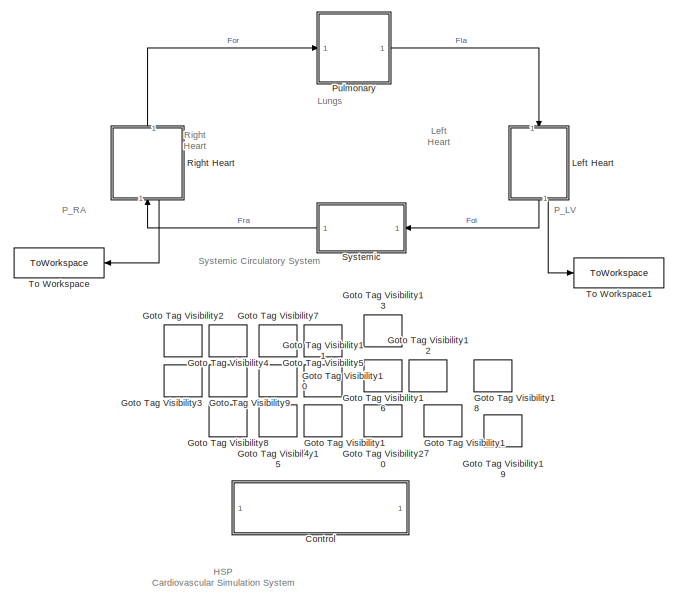
[diagram: root canvas - part 1/10, top left region]
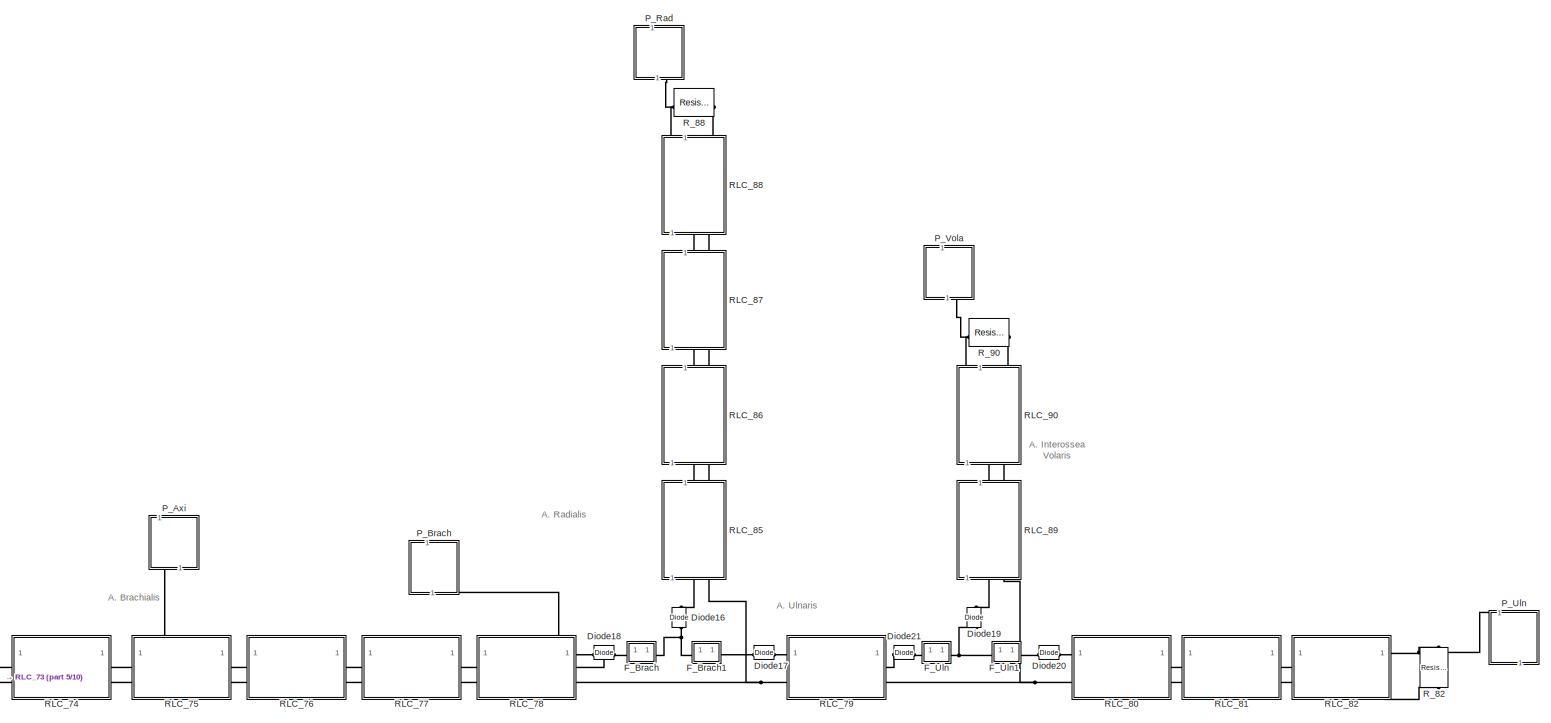
[diagram: root canvas - part 2/10, top right region]
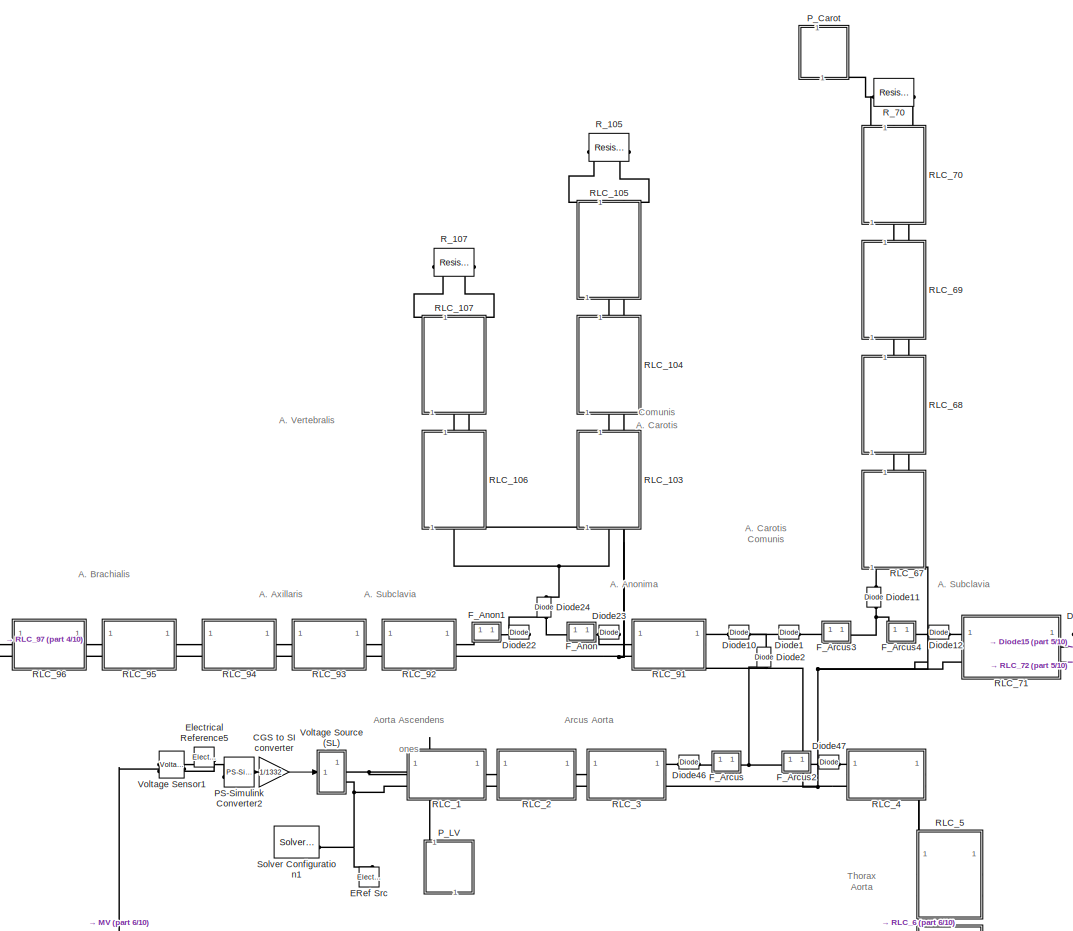
[diagram: root canvas - part 3/10, top center region]
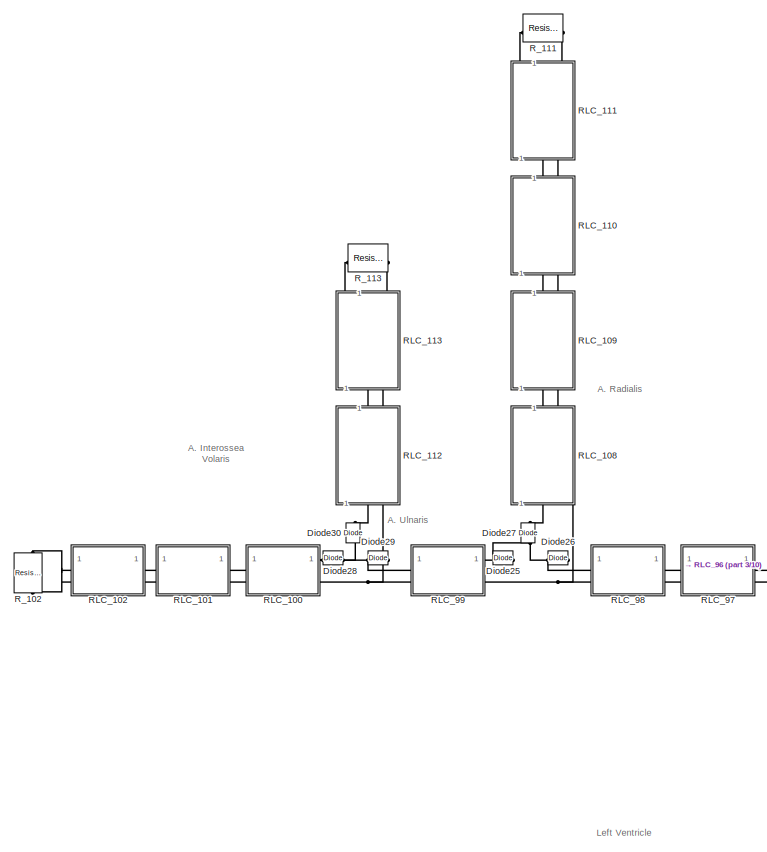
[diagram: root canvas - part 4/10, top left region]
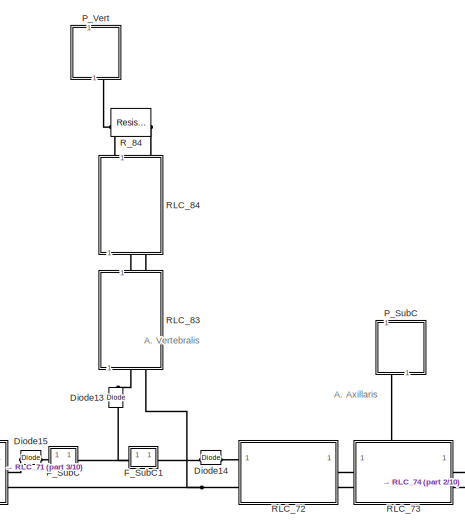
[diagram: root canvas - part 5/10, top center region]
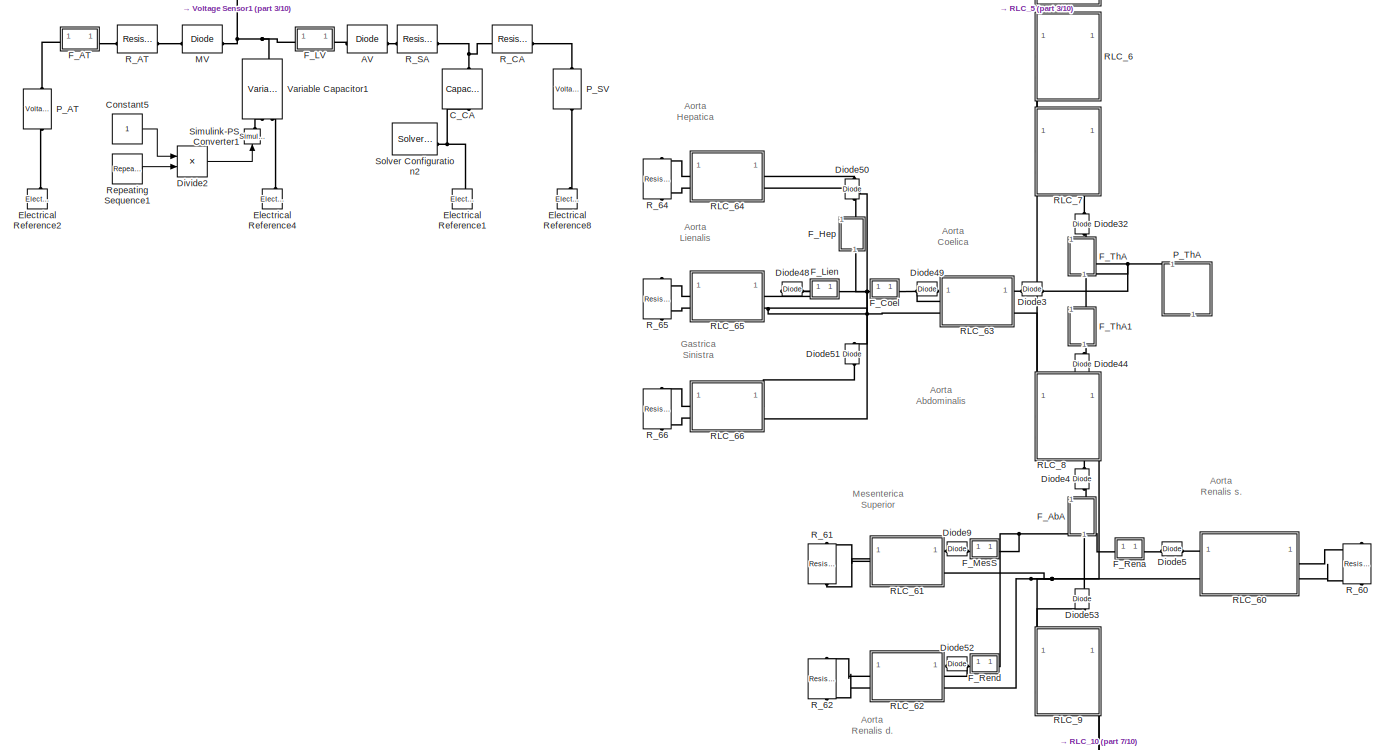
[diagram: root canvas - part 6/10, central region]
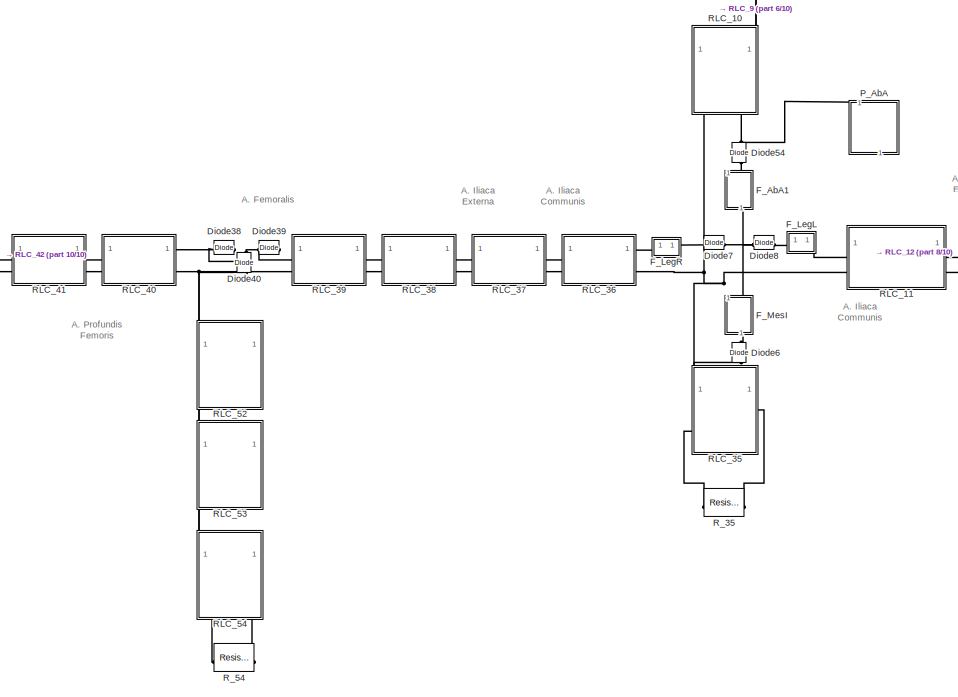
[diagram: root canvas - part 7/10, bottom center region]
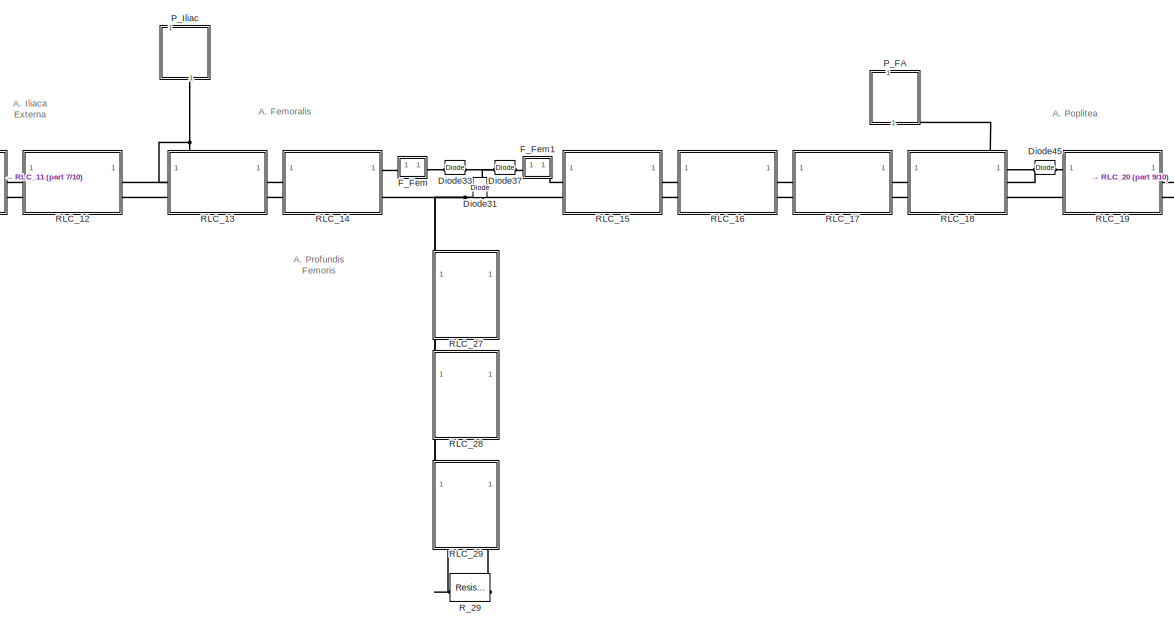
[diagram: root canvas - part 8/10, bottom center region]
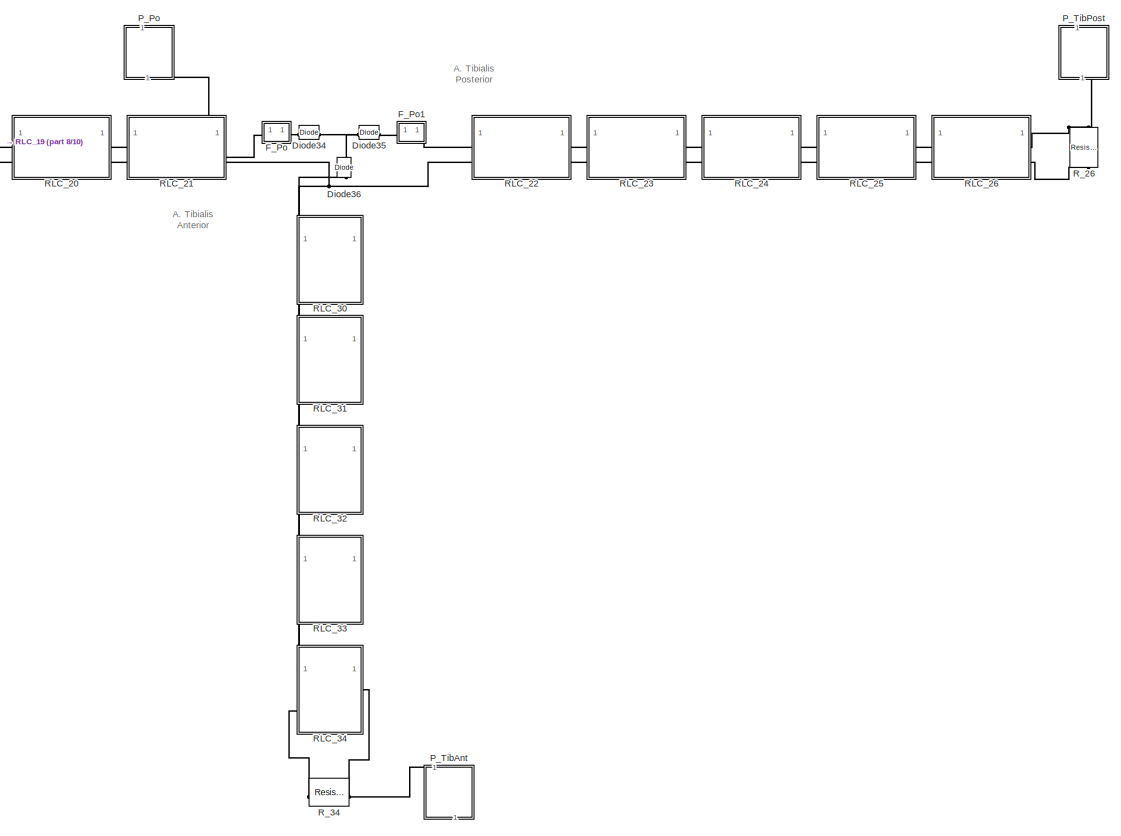
[diagram: root canvas - part 9/10, bottom right region]
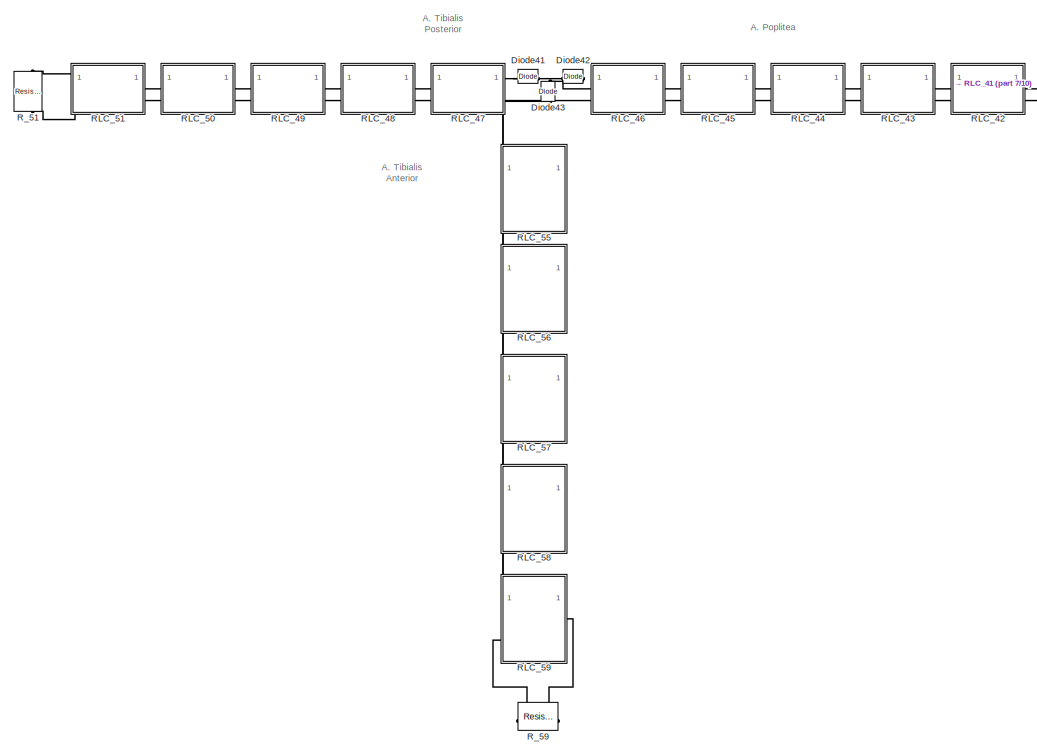
[diagram: root canvas - part 10/10, bottom left region]
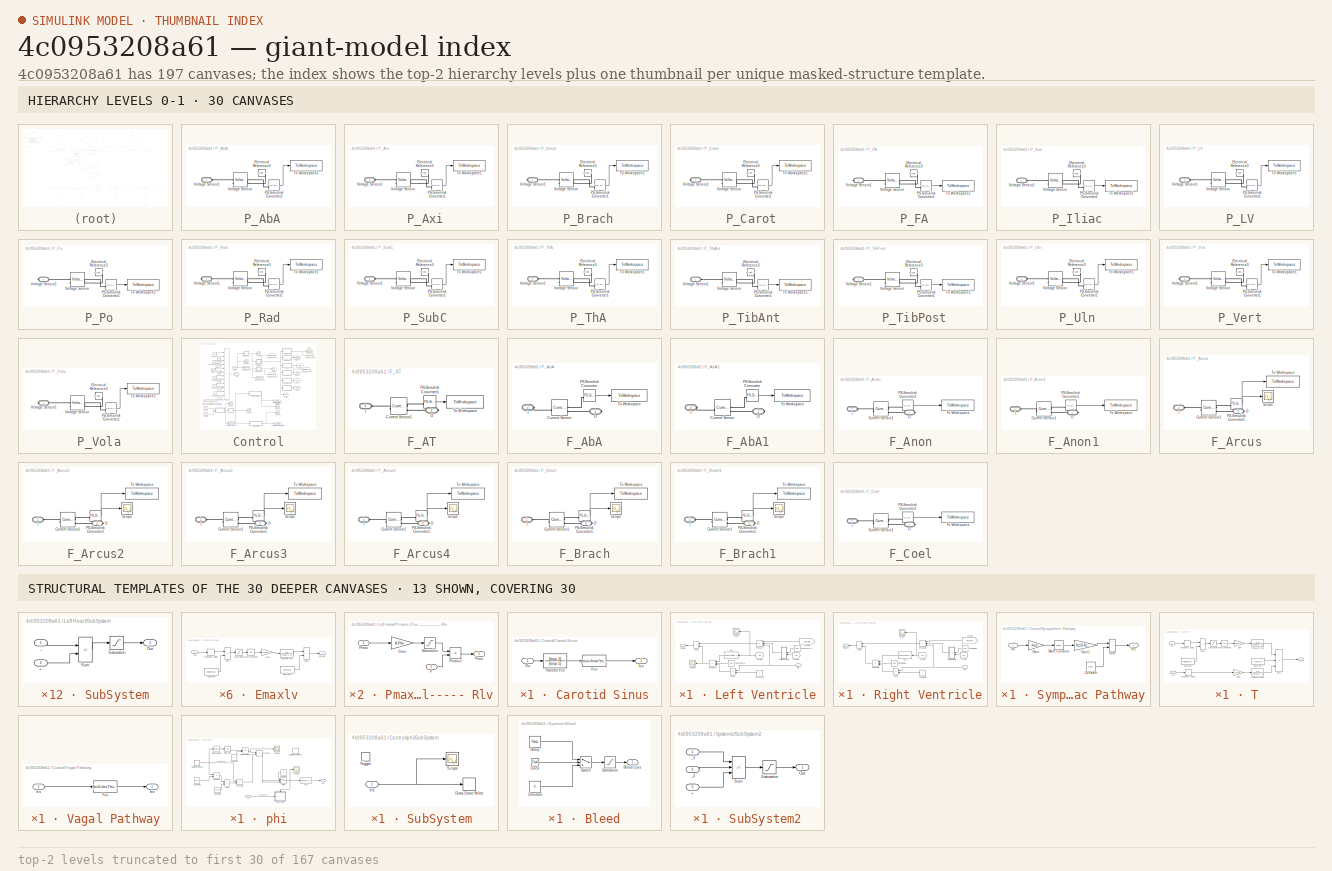
[diagram: thumbnail index - top-2 hierarchy levels (167 canvases (first 30 of 167 shown)) + 13 structural-template representatives of the remaining 30 canvases]
MODEL slx_4c0953208a61
KIND model
CONFIG AbsTol = auto
CONFIG EnableMultiTasking = off
CONFIG FixedStep = sample_time
CONFIG InitFcn = init_fcn_noordergraaf_rideout
CONFIG MaxStep = auto
CONFIG MinStep = auto
CONFIG RelTol = 1e-3
CONFIG SampleTimeConstraint = Unconstrained
CONFIG SolverName = FixedStepAuto
CONFIG StartTime = 0.0
CONFIG StopFcn = stop_fcn_noordergraaf_rideout
CONFIG StopTime = stop_time
BLOCK [SubSystem]  P_AbA
  NameLocation = top
  PortSchema = {"entries":[{"content":{"sides":[{"content":{"connectorIds":[]},"type":"ConnectorPlacement.EquallySpacedRectSide","uuid":"a76c572b-3baf-4a16-ab2f-87d419d93200"},{"content":{"connectorIds":[],"side":"RIGHT"},"type":"ConnectorPlacement.EquallySpacedRectSide","uuid":"88de64cb-36a9-4b54-8774-bd24fb5aa84a"},{"content":{"connectorIds":["LConn1"],"side":"TOP"},"type":"ConnectorPlacement.EquallySpacedRect...<+381ch>  <repeated x3 — deduplicated; at blocks: P_AbA, P_LV, P_ThA>
BLOCK [Reference]  P_AbA/Electrical Reference3  REF=fl_lib/Electrical/Electrical Elements/Electrical Reference
  NameLocation = top
  SourceBlock = fl_lib/Electrical/Electrical Elements/Electrical Reference
  SourceType = Electrical Reference
BLOCK [Reference]  P_AbA/PS-Simulink Converter1  REF=nesl_utility/PS-Simulink
Converter
  NameLocation = top
  SourceBlock = nesl_utility/PS-Simulink\nConverter
  SourceType = PS-Simulink\nConverter
BLOCK [ToWorkspace]  P_AbA/To Workspace1
  FixptAsFi = on
  MaxDataPoints = inf
  SampleTime = -1
  SaveFormat = Timeseries
  VariableName = P_AbA
BLOCK [Reference]  P_AbA/Voltage Sensor  REF=fl_lib/Electrical/Electrical Sensors/Voltage Sensor
  NameLocation = top
  SourceBlock = fl_lib/Electrical/Electrical Sensors/Voltage Sensor
  SourceType = Voltage Sensor
BLOCK [PMIOPort]  P_AbA/Voltage Sensor1
  Side = Left
BLOCK [SubSystem]  P_Axi
  NameLocation = top
  PortSchema = {"entries":[{"content":{"sides":[{"content":{"connectorIds":[]},"type":"ConnectorPlacement.EquallySpacedRectSide","uuid":"a76c572b-3baf-4a16-ab2f-87d419d93200"},{"content":{"connectorIds":[],"side":"RIGHT"},"type":"ConnectorPlacement.EquallySpacedRectSide","uuid":"88de64cb-36a9-4b54-8774-bd24fb5aa84a"},{"content":{"connectorIds":["LConn1"],"side":"TOP"},"type":"ConnectorPlacement.EquallySpacedRect...<+525ch>  <repeated x4 — deduplicated; at blocks: P_Axi, P_Iliac, P_SubC, P_Uln>
BLOCK [Reference]  P_Axi/Electrical Reference3  REF=fl_lib/Electrical/Electrical Elements/Electrical Reference
  NameLocation = top
  SourceBlock = fl_lib/Electrical/Electrical Elements/Electrical Reference
  SourceType = Electrical Reference
BLOCK [Reference]  P_Axi/PS-Simulink Converter1  REF=nesl_utility/PS-Simulink
Converter
  NameLocation = top
  SourceBlock = nesl_utility/PS-Simulink\nConverter
  SourceType = PS-Simulink\nConverter
BLOCK [ToWorkspace]  P_Axi/To Workspace1
  FixptAsFi = on
  MaxDataPoints = inf
  SampleTime = -1
  SaveFormat = Timeseries
  VariableName = P_Axi
BLOCK [Reference]  P_Axi/Voltage Sensor  REF=fl_lib/Electrical/Electrical Sensors/Voltage Sensor
  NameLocation = top
  SourceBlock = fl_lib/Electrical/Electrical Sensors/Voltage Sensor
  SourceType = Voltage Sensor
BLOCK [PMIOPort]  P_Axi/Voltage Sensor1
  Side = Left
BLOCK [SubSystem]  P_Brach
  NameLocation = top
  PortSchema = {"entries":[{"content":{"sides":[{"content":{"connectorIds":[]},"type":"ConnectorPlacement.EquallySpacedRectSide","uuid":"a76c572b-3baf-4a16-ab2f-87d419d93200"},{"content":{"connectorIds":[],"side":"RIGHT"},"type":"ConnectorPlacement.EquallySpacedRectSide","uuid":"88de64cb-36a9-4b54-8774-bd24fb5aa84a"},{"content":{"connectorIds":[],"side":"TOP"},"type":"ConnectorPlacement.EquallySpacedRectSide","u...<+525ch>  <repeated x3 — deduplicated; at blocks: P_Brach, P_FA, P_Po>
BLOCK [Reference]  P_Brach/Electrical Reference3  REF=fl_lib/Electrical/Electrical Elements/Electrical Reference
  NameLocation = top
  SourceBlock = fl_lib/Electrical/Electrical Elements/Electrical Reference
  SourceType = Electrical Reference
BLOCK [Reference]  P_Brach/PS-Simulink Converter1  REF=nesl_utility/PS-Simulink
Converter
  NameLocation = top
  SourceBlock = nesl_utility/PS-Simulink\nConverter
  SourceType = PS-Simulink\nConverter
BLOCK [ToWorkspace]  P_Brach/To Workspace1
  FixptAsFi = on
  MaxDataPoints = inf
  SampleTime = -1
  SaveFormat = Timeseries
  VariableName = P_Brach
BLOCK [Reference]  P_Brach/Voltage Sensor  REF=fl_lib/Electrical/Electrical Sensors/Voltage Sensor
  NameLocation = top
  SourceBlock = fl_lib/Electrical/Electrical Sensors/Voltage Sensor
  SourceType = Voltage Sensor
BLOCK [PMIOPort]  P_Brach/Voltage Sensor1
  Side = Right
BLOCK [SubSystem]  P_Carot
  NameLocation = top
BLOCK [Reference]  P_Carot/Electrical Reference3  REF=fl_lib/Electrical/Electrical Elements/Electrical Reference
  NameLocation = top
  SourceBlock = fl_lib/Electrical/Electrical Elements/Electrical Reference
  SourceType = Electrical Reference
BLOCK [Reference]  P_Carot/PS-Simulink Converter1  REF=nesl_utility/PS-Simulink
Converter
  NameLocation = top
  SourceBlock = nesl_utility/PS-Simulink\nConverter
  SourceType = PS-Simulink\nConverter
BLOCK [ToWorkspace]  P_Carot/To Workspace1
  FixptAsFi = on
  MaxDataPoints = inf
  SampleTime = -1
  SaveFormat = Timeseries
  VariableName = P_Carot
BLOCK [Reference]  P_Carot/Voltage Sensor  REF=fl_lib/Electrical/Electrical Sensors/Voltage Sensor
  NameLocation = top
  SourceBlock = fl_lib/Electrical/Electrical Sensors/Voltage Sensor
  SourceType = Voltage Sensor
BLOCK [PMIOPort]  P_Carot/Voltage Sensor1
  Side = Right
BLOCK [SubSystem]  P_FA
  NameLocation = top
BLOCK [Reference]  P_FA/Electrical Reference3  REF=fl_lib/Electrical/Electrical Elements/Electrical Reference
  NameLocation = top
  SourceBlock = fl_lib/Electrical/Electrical Elements/Electrical Reference
  SourceType = Electrical Reference
BLOCK [Reference]  P_FA/PS-Simulink Converter1  REF=nesl_utility/PS-Simulink
Converter
  NameLocation = top
  SourceBlock = nesl_utility/PS-Simulink\nConverter
  SourceType = PS-Simulink\nConverter
BLOCK [ToWorkspace]  P_FA/To Workspace1
  FixptAsFi = on
  MaxDataPoints = inf
  SampleTime = -1
  SaveFormat = Timeseries
  VariableName = P_FA
BLOCK [Reference]  P_FA/Voltage Sensor  REF=fl_lib/Electrical/Electrical Sensors/Voltage Sensor
  NameLocation = top
  SourceBlock = fl_lib/Electrical/Electrical Sensors/Voltage Sensor
  SourceType = Voltage Sensor
BLOCK [PMIOPort]  P_FA/Voltage Sensor1
  Side = Right
BLOCK [SubSystem]  P_Iliac
  NameLocation = top
BLOCK [Reference]  P_Iliac/Electrical Reference3  REF=fl_lib/Electrical/Electrical Elements/Electrical Reference
  NameLocation = top
  SourceBlock = fl_lib/Electrical/Electrical Elements/Electrical Reference
  SourceType = Electrical Reference
BLOCK [Reference]  P_Iliac/PS-Simulink Converter1  REF=nesl_utility/PS-Simulink
Converter
  NameLocation = top
  SourceBlock = nesl_utility/PS-Simulink\nConverter
  SourceType = PS-Simulink\nConverter
BLOCK [ToWorkspace]  P_Iliac/To Workspace1
  FixptAsFi = on
  MaxDataPoints = inf
  SampleTime = -1
  SaveFormat = Timeseries
  VariableName = P_Iliac
BLOCK [Reference]  P_Iliac/Voltage Sensor  REF=fl_lib/Electrical/Electrical Sensors/Voltage Sensor
  NameLocation = top
  SourceBlock = fl_lib/Electrical/Electrical Sensors/Voltage Sensor
  SourceType = Voltage Sensor
BLOCK [PMIOPort]  P_Iliac/Voltage Sensor1
  Side = Left
BLOCK [SubSystem]  P_LV
  NameLocation = top
BLOCK [Reference]  P_LV/Electrical Reference3  REF=fl_lib/Electrical/Electrical Elements/Electrical Reference
  NameLocation = top
  SourceBlock = fl_lib/Electrical/Electrical Elements/Electrical Reference
  SourceType = Electrical Reference
BLOCK [Reference]  P_LV/PS-Simulink Converter1  REF=nesl_utility/PS-Simulink
Converter
  NameLocation = top
  SourceBlock = nesl_utility/PS-Simulink\nConverter
  SourceType = PS-Simulink\nConverter
BLOCK [ToWorkspace]  P_LV/To Workspace1
  FixptAsFi = on
  MaxDataPoints = inf
  SampleTime = -1
  SaveFormat = Timeseries
  VariableName = P_LV
BLOCK [Reference]  P_LV/Voltage Sensor  REF=fl_lib/Electrical/Electrical Sensors/Voltage Sensor
  NameLocation = top
  SourceBlock = fl_lib/Electrical/Electrical Sensors/Voltage Sensor
  SourceType = Voltage Sensor
BLOCK [PMIOPort]  P_LV/Voltage Sensor1
  Side = Left
BLOCK [SubSystem]  P_Po
  NameLocation = top
BLOCK [Reference]  P_Po/Electrical Reference3  REF=fl_lib/Electrical/Electrical Elements/Electrical Reference
  NameLocation = top
  SourceBlock = fl_lib/Electrical/Electrical Elements/Electrical Reference
  SourceType = Electrical Reference
BLOCK [Reference]  P_Po/PS-Simulink Converter1  REF=nesl_utility/PS-Simulink
Converter
  NameLocation = top
  SourceBlock = nesl_utility/PS-Simulink\nConverter
  SourceType = PS-Simulink\nConverter
BLOCK [ToWorkspace]  P_Po/To Workspace1
  FixptAsFi = on
  MaxDataPoints = inf
  SampleTime = -1
  SaveFormat = Timeseries
  VariableName = P_Po
BLOCK [Reference]  P_Po/Voltage Sensor  REF=fl_lib/Electrical/Electrical Sensors/Voltage Sensor
  NameLocation = top
  SourceBlock = fl_lib/Electrical/Electrical Sensors/Voltage Sensor
  SourceType = Voltage Sensor
BLOCK [PMIOPort]  P_Po/Voltage Sensor1
  Side = Right
BLOCK [SubSystem]  P_Rad
  NameLocation = top
BLOCK [Reference]  P_Rad/Electrical Reference3  REF=fl_lib/Electrical/Electrical Elements/Electrical Reference
  NameLocation = top
  SourceBlock = fl_lib/Electrical/Electrical Elements/Electrical Reference
  SourceType = Electrical Reference
BLOCK [Reference]  P_Rad/PS-Simulink Converter1  REF=nesl_utility/PS-Simulink
Converter
  NameLocation = top
  SourceBlock = nesl_utility/PS-Simulink\nConverter
  SourceType = PS-Simulink\nConverter
BLOCK [ToWorkspace]  P_Rad/To Workspace1
  FixptAsFi = on
  MaxDataPoints = inf
  SampleTime = -1
  SaveFormat = Timeseries
  VariableName = P_Rad
BLOCK [Reference]  P_Rad/Voltage Sensor  REF=fl_lib/Electrical/Electrical Sensors/Voltage Sensor
  NameLocation = top
  SourceBlock = fl_lib/Electrical/Electrical Sensors/Voltage Sensor
  SourceType = Voltage Sensor
BLOCK [PMIOPort]  P_Rad/Voltage Sensor1
  Side = Right
BLOCK [SubSystem]  P_SubC
  NameLocation = top
BLOCK [Reference]  P_SubC/Electrical Reference3  REF=fl_lib/Electrical/Electrical Elements/Electrical Reference
  NameLocation = top
  SourceBlock = fl_lib/Electrical/Electrical Elements/Electrical Reference
  SourceType = Electrical Reference
BLOCK [Reference]  P_SubC/PS-Simulink Converter1  REF=nesl_utility/PS-Simulink
Converter
  NameLocation = top
  SourceBlock = nesl_utility/PS-Simulink\nConverter
  SourceType = PS-Simulink\nConverter
BLOCK [ToWorkspace]  P_SubC/To Workspace1
  FixptAsFi = on
  MaxDataPoints = inf
  SampleTime = -1
  SaveFormat = Timeseries
  VariableName = P_SubC
BLOCK [Reference]  P_SubC/Voltage Sensor  REF=fl_lib/Electrical/Electrical Sensors/Voltage Sensor
  NameLocation = top
  SourceBlock = fl_lib/Electrical/Electrical Sensors/Voltage Sensor
  SourceType = Voltage Sensor
BLOCK [PMIOPort]  P_SubC/Voltage Sensor1
  Side = Left
BLOCK [SubSystem]  P_ThA
  NameLocation = top
BLOCK [Reference]  P_ThA/Electrical Reference3  REF=fl_lib/Electrical/Electrical Elements/Electrical Reference
  NameLocation = top
  SourceBlock = fl_lib/Electrical/Electrical Elements/Electrical Reference
  SourceType = Electrical Reference
BLOCK [Reference]  P_ThA/PS-Simulink Converter1  REF=nesl_utility/PS-Simulink
Converter
  NameLocation = top
  SourceBlock = nesl_utility/PS-Simulink\nConverter
  SourceType = PS-Simulink\nConverter
BLOCK [ToWorkspace]  P_ThA/To Workspace1
  FixptAsFi = on
  MaxDataPoints = inf
  SampleTime = -1
  SaveFormat = Timeseries
  VariableName = P_ThA
BLOCK [Reference]  P_ThA/Voltage Sensor  REF=fl_lib/Electrical/Electrical Sensors/Voltage Sensor
  NameLocation = top
  SourceBlock = fl_lib/Electrical/Electrical Sensors/Voltage Sensor
  SourceType = Voltage Sensor
BLOCK [PMIOPort]  P_ThA/Voltage Sensor1
  Side = Left
BLOCK [SubSystem]  P_TibAnt
  NameLocation = top
  PortSchema = {"entries":[{"content":{"sides":[{"content":{"connectorIds":[]},"type":"ConnectorPlacement.EquallySpacedRectSide","uuid":"efa007d6-45f4-4edc-b08d-571edfadacea"},{"content":{"connectorIds":[],"side":"RIGHT"},"type":"ConnectorPlacement.EquallySpacedRectSide","uuid":"9590d5ff-e9bb-4f62-8234-4beabe73ec5b"},{"content":{"connectorIds":["LConn1"],"side":"TOP"},"type":"ConnectorPlacement.EquallySpacedRect...<+237ch>
BLOCK [Reference]  P_TibAnt/Electrical Reference3  REF=fl_lib/Electrical/Electrical Elements/Electrical Reference
  NameLocation = top
  SourceBlock = fl_lib/Electrical/Electrical Elements/Electrical Reference
  SourceType = Electrical Reference
BLOCK [Reference]  P_TibAnt/PS-Simulink Converter1  REF=nesl_utility/PS-Simulink
Converter
  NameLocation = top
  SourceBlock = nesl_utility/PS-Simulink\nConverter
  SourceType = PS-Simulink\nConverter
BLOCK [ToWorkspace]  P_TibAnt/To Workspace1
  FixptAsFi = on
  MaxDataPoints = inf
  SampleTime = -1
  SaveFormat = Timeseries
  VariableName = P_TibAnt
BLOCK [Reference]  P_TibAnt/Voltage Sensor  REF=fl_lib/Electrical/Electrical Sensors/Voltage Sensor
  NameLocation = top
  SourceBlock = fl_lib/Electrical/Electrical Sensors/Voltage Sensor
  SourceType = Voltage Sensor
BLOCK [PMIOPort]  P_TibAnt/Voltage Sensor1
  Side = Left
BLOCK [SubSystem]  P_TibPost
  NameLocation = top
BLOCK [Reference]  P_TibPost/Electrical Reference3  REF=fl_lib/Electrical/Electrical Elements/Electrical Reference
  NameLocation = top
  SourceBlock = fl_lib/Electrical/Electrical Elements/Electrical Reference
  SourceType = Electrical Reference
BLOCK [Reference]  P_TibPost/PS-Simulink Converter1  REF=nesl_utility/PS-Simulink
Converter
  NameLocation = top
  SourceBlock = nesl_utility/PS-Simulink\nConverter
  SourceType = PS-Simulink\nConverter
BLOCK [ToWorkspace]  P_TibPost/To Workspace1
  FixptAsFi = on
  MaxDataPoints = inf
  SampleTime = -1
  SaveFormat = Timeseries
  VariableName = P_TibPost
BLOCK [Reference]  P_TibPost/Voltage Sensor  REF=fl_lib/Electrical/Electrical Sensors/Voltage Sensor
  NameLocation = top
  SourceBlock = fl_lib/Electrical/Electrical Sensors/Voltage Sensor
  SourceType = Voltage Sensor
BLOCK [PMIOPort]  P_TibPost/Voltage Sensor1
  Side = Right
BLOCK [SubSystem]  P_Uln
  NameLocation = top
BLOCK [Reference]  P_Uln/Electrical Reference3  REF=fl_lib/Electrical/Electrical Elements/Electrical Reference
  NameLocation = top
  SourceBlock = fl_lib/Electrical/Electrical Elements/Electrical Reference
  SourceType = Electrical Reference
BLOCK [Reference]  P_Uln/PS-Simulink Converter1  REF=nesl_utility/PS-Simulink
Converter
  NameLocation = top
  SourceBlock = nesl_utility/PS-Simulink\nConverter
  SourceType = PS-Simulink\nConverter
BLOCK [ToWorkspace]  P_Uln/To Workspace1
  FixptAsFi = on
  MaxDataPoints = inf
  SampleTime = -1
  SaveFormat = Timeseries
  VariableName = P_Uln
BLOCK [Reference]  P_Uln/Voltage Sensor  REF=fl_lib/Electrical/Electrical Sensors/Voltage Sensor
  NameLocation = top
  SourceBlock = fl_lib/Electrical/Electrical Sensors/Voltage Sensor
  SourceType = Voltage Sensor
BLOCK [PMIOPort]  P_Uln/Voltage Sensor1
  Side = Left
BLOCK [SubSystem]  P_Vert
  NameLocation = top
BLOCK [Reference]  P_Vert/Electrical Reference3  REF=fl_lib/Electrical/Electrical Elements/Electrical Reference
  NameLocation = top
  SourceBlock = fl_lib/Electrical/Electrical Elements/Electrical Reference
  SourceType = Electrical Reference
BLOCK [Reference]  P_Vert/PS-Simulink Converter1  REF=nesl_utility/PS-Simulink
Converter
  NameLocation = top
  SourceBlock = nesl_utility/PS-Simulink\nConverter
  SourceType = PS-Simulink\nConverter
BLOCK [ToWorkspace]  P_Vert/To Workspace1
  FixptAsFi = on
  MaxDataPoints = inf
  SampleTime = -1
  SaveFormat = Timeseries
  VariableName = P_Vert
BLOCK [Reference]  P_Vert/Voltage Sensor  REF=fl_lib/Electrical/Electrical Sensors/Voltage Sensor
  NameLocation = top
  SourceBlock = fl_lib/Electrical/Electrical Sensors/Voltage Sensor
  SourceType = Voltage Sensor
BLOCK [PMIOPort]  P_Vert/Voltage Sensor1
  Side = Right
BLOCK [SubSystem]  P_Vola
  NameLocation = top
BLOCK [Reference]  P_Vola/Electrical Reference3  REF=fl_lib/Electrical/Electrical Elements/Electrical Reference
  NameLocation = top
  SourceBlock = fl_lib/Electrical/Electrical Elements/Electrical Reference
  SourceType = Electrical Reference
BLOCK [Reference]  P_Vola/PS-Simulink Converter1  REF=nesl_utility/PS-Simulink
Converter
  NameLocation = top
  SourceBlock = nesl_utility/PS-Simulink\nConverter
  SourceType = PS-Simulink\nConverter
BLOCK [ToWorkspace]  P_Vola/To Workspace1
  FixptAsFi = on
  MaxDataPoints = inf
  SampleTime = -1
  SaveFormat = Timeseries
  VariableName = P_Vola
BLOCK [Reference]  P_Vola/Voltage Sensor  REF=fl_lib/Electrical/Electrical Sensors/Voltage Sensor
  NameLocation = top
  SourceBlock = fl_lib/Electrical/Electrical Sensors/Voltage Sensor
  SourceType = Voltage Sensor
BLOCK [PMIOPort]  P_Vola/Voltage Sensor1
  Side = Right
BLOCK [Reference] AV  REF=fl_lib/Electrical/Electrical Elements/Diode
  NameLocation = top
  SourceBlock = fl_lib/Electrical/Electrical Elements/Diode
  SourceType = Diode
BLOCK [Gain] CGS to SI converter
  Gain = 1/1332
  NameLocation = top
BLOCK [Reference] C_CA  REF=fl_lib/Electrical/Electrical Elements/Capacitor
  NameLocation = left
  SourceBlock = fl_lib/Electrical/Electrical Elements/Capacitor
  SourceType = Capacitor
BLOCK [Constant] Constant5
  SampleTime = sample_time
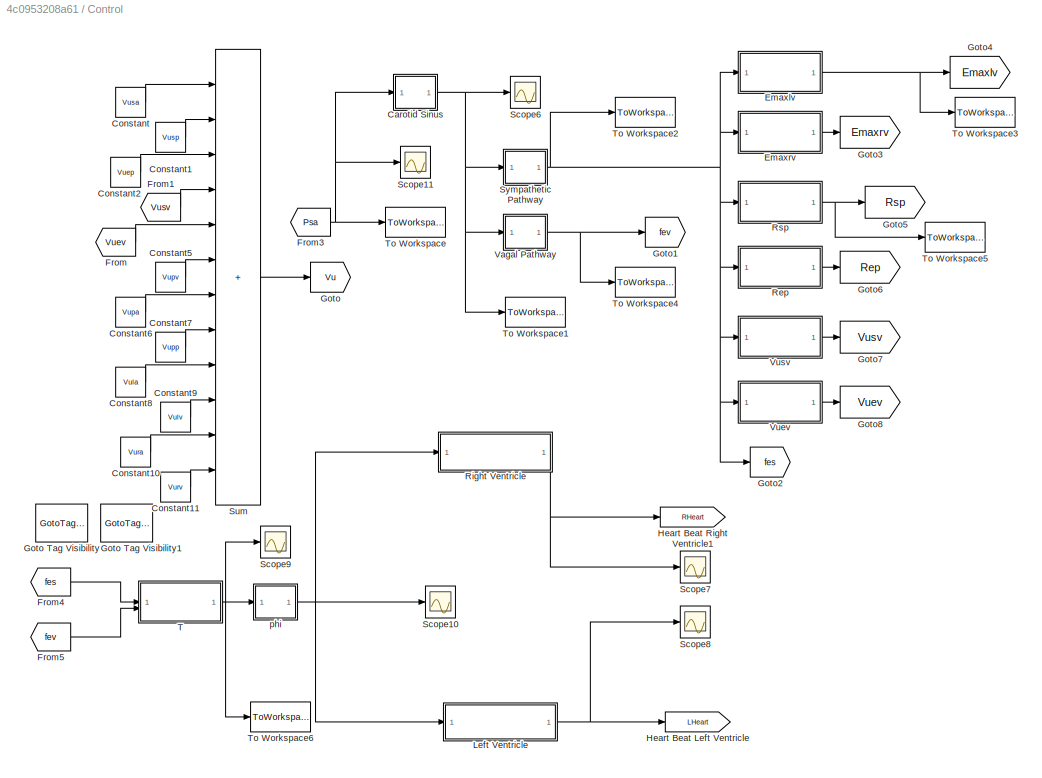
BLOCK [SubSystem] Control
  Commented = on
BLOCK [SubSystem] Control/Carotid Sinus
BLOCK [Fcn] Control/Carotid Sinus/Fcn
  Expr = (fmin+fmax*exp((u-Pn)/ka))/(1+exp((u-Pn)/ka))
BLOCK [Inport] Control/Carotid Sinus/Pin
BLOCK [TransferFcn] Control/Carotid Sinus/Transfer Fcn
  Denominator = [toup 1]
  Numerator = [touz 1]
BLOCK [Outport] Control/Carotid Sinus/fcs
BLOCK [Constant] Control/Constant
  Value = Vusa
BLOCK [Constant] Control/Constant1
  Value = Vusp
BLOCK [Constant] Control/Constant10
  Value = Vura
BLOCK [Constant] Control/Constant11
  Value = Vurv
BLOCK [Constant] Control/Constant2
  Value = Vuep
BLOCK [Constant] Control/Constant5
  Value = Vupv
BLOCK [Constant] Control/Constant6
  Value = Vupa
BLOCK [Constant] Control/Constant7
  Value = Vupp
BLOCK [Constant] Control/Constant8
  Value = Vula
BLOCK [Constant] Control/Constant9
  Value = Vulv
BLOCK [SubSystem] Control/Emaxlv
BLOCK [Constant] Control/Emaxlv/Constant
  Value = fesmin-1
BLOCK [Constant] Control/Emaxlv/Constant1
  Value = initx(1)
BLOCK [Outport] Control/Emaxlv/Emaxlv
BLOCK [Gain] Control/Emaxlv/Gain
  Gain = Gx(1)
  SaturateOnIntegerOverflow = on
BLOCK [Math] Control/Emaxlv/Math Function
  Operator = log
BLOCK [Saturate] Control/Emaxlv/Saturation
  LowerLimit = 1
  UpperLimit = inf
BLOCK [Sum] Control/Emaxlv/Sum
  IconShape = rectangular
  Inputs = |+-
  SaturateOnIntegerOverflow = on
BLOCK [Sum] Control/Emaxlv/Sum1
  IconShape = rectangular
  Inputs = |++
  SaturateOnIntegerOverflow = on
BLOCK [TransferFcn] Control/Emaxlv/Transfer Fcn
  Denominator = [toux(1) 1]
BLOCK [TransportDelay] Control/Emaxlv/Transport Delay
  DelayTime = Dx(1)
BLOCK [Inport] Control/Emaxlv/fes
BLOCK [SubSystem] Control/Emaxrv
BLOCK [Constant] Control/Emaxrv/Constant
  Value = fesmin-1
BLOCK [Constant] Control/Emaxrv/Constant1
  Value = initx(2)
BLOCK [Outport] Control/Emaxrv/Emaxrv
BLOCK [Gain] Control/Emaxrv/Gain
  Gain = Gx(2)
  SaturateOnIntegerOverflow = on
BLOCK [Math] Control/Emaxrv/Math Function
  Operator = log
BLOCK [Saturate] Control/Emaxrv/Saturation
  LowerLimit = 1
  UpperLimit = inf
BLOCK [Sum] Control/Emaxrv/Sum
  IconShape = rectangular
  Inputs = |+-
  SaturateOnIntegerOverflow = on
BLOCK [Sum] Control/Emaxrv/Sum1
  IconShape = rectangular
  Inputs = |++
  SaturateOnIntegerOverflow = on
BLOCK [TransferFcn] Control/Emaxrv/Transfer Fcn
  Denominator = [toux(2) 1]
BLOCK [TransportDelay] Control/Emaxrv/Transport Delay
  DelayTime = Dx(2)
BLOCK [Inport] Control/Emaxrv/fes
BLOCK [From] Control/From
  CloseFcn = tagdialog Close
  GotoTag = Vuev
  TagVisibility = scoped
BLOCK [From] Control/From1
  CloseFcn = tagdialog Close
  GotoTag = Vusv
  TagVisibility = scoped
BLOCK [From] Control/From3
  CloseFcn = tagdialog Close
  GotoTag = Psa
  TagVisibility = scoped
BLOCK [From] Control/From4
  CloseFcn = tagdialog Close
  GotoTag = fes
BLOCK [From] Control/From5
  CloseFcn = tagdialog Close
  GotoTag = fev
BLOCK [Goto] Control/Goto
  GotoTag = Vu
  TagVisibility = scoped
BLOCK [GotoTagVisibility] Control/Goto Tag Visibility
  GotoTag = Emaxrv
BLOCK [GotoTagVisibility] Control/Goto Tag Visibility1
  GotoTag = Emaxlv
BLOCK [Goto] Control/Goto1
  GotoTag = fev
BLOCK [Goto] Control/Goto2
  GotoTag = fes
BLOCK [Goto] Control/Goto3
  GotoTag = Emaxrv
  TagVisibility = scoped
BLOCK [Goto] Control/Goto4
  GotoTag = Emaxlv
  TagVisibility = scoped
BLOCK [Goto] Control/Goto5
  GotoTag = Rsp
  TagVisibility = scoped
BLOCK [Goto] Control/Goto6
  GotoTag = Rep
  TagVisibility = scoped
BLOCK [Goto] Control/Goto7
  GotoTag = Vusv
  TagVisibility = scoped
BLOCK [Goto] Control/Goto8
  GotoTag = Vuev
  TagVisibility = scoped
BLOCK [Goto] Control/Heart Beat Left Ventricle
  GotoTag = LHeart
  NameLocation = top
  TagVisibility = scoped
BLOCK [Goto] Control/Heart Beat Right Ventricle1
  GotoTag = RHeart
  NameLocation = top
  TagVisibility = scoped
BLOCK [SubSystem] Control/Left Ventricle
BLOCK [Constant] Control/Left Ventricle/Constant13
  NameLocation = top
  Value = Vulv
BLOCK [Constant] Control/Left Ventricle/Constant14
  NameLocation = top
  Value = P0lv
BLOCK [Constant] Control/Left Ventricle/Constant6
BLOCK [Fcn] Control/Left Ventricle/Fcn
  Expr = exp(u*KElv)-1
BLOCK [From] Control/Left Ventricle/From2
  CloseFcn = tagdialog Close
  GotoTag = Vlv
  NameLocation = top
  TagVisibility = scoped
BLOCK [From] Control/Left Ventricle/From3
  CloseFcn = tagdialog Close
  GotoTag = Emaxlv
  NameLocation = top
  TagVisibility = scoped
BLOCK [From] Control/Left Ventricle/From6
  CloseFcn = tagdialog Close
  GotoTag = Vlv
  NameLocation = top
  TagVisibility = scoped
BLOCK [Outport] Control/Left Ventricle/Pmaxlv
BLOCK [Product] Control/Left Ventricle/Product4
  Inputs = 3
  NameLocation = top
  SaturateOnIntegerOverflow = on
BLOCK [Product] Control/Left Ventricle/Product5
  Inputs = 3
  NameLocation = top
  SaturateOnIntegerOverflow = on
BLOCK [Scope] Control/Left Ventricle/Scope
  Floating = off
  NumInputPorts = 1
  ScopeSpecificationString = C++SS(StrPVP('Location','[348, 275, 672, 514]'),StrPVP('Open','off'),StrPVP('TickLabels','OneTimeTick'),StrPVP('ZoomMode','xonly'),MxPVP('AxesTitles',54,'struct(''axes1'',''%<SignalLabel>'')'),StrPVP('Grid','on'),StrPVP('TimeRange','auto'),StrPVP('YMin','0'),StrPVP('YMax','250'),StrPVP('SaveToWorkspace','off'),StrPVP('SaveName','ScopeData'),StrPVP('DataFormat','StructureWithTime'),StrPVP('LimitDat...<+144ch>
BLOCK [Scope] Control/Left Ventricle/Scope1
  Floating = off
  NumInputPorts = 1
  ScopeSpecificationString = C++SS(StrPVP('Location','[348, 275, 672, 514]'),StrPVP('Open','off'),StrPVP('TickLabels','OneTimeTick'),StrPVP('ZoomMode','xonly'),MxPVP('AxesTitles',54,'struct(''axes1'',''%<SignalLabel>'')'),StrPVP('Grid','on'),StrPVP('TimeRange','auto'),StrPVP('YMin','0'),StrPVP('YMax','35'),StrPVP('SaveToWorkspace','off'),StrPVP('SaveName','ScopeData1'),StrPVP('DataFormat','StructureWithTime'),StrPVP('LimitDat...<+144ch>
BLOCK [SubSystem] Control/Left Ventricle/SubSystem1
  NameLocation = top
BLOCK [Inport] Control/Left Ventricle/SubSystem1/+
  Port = 2
BLOCK [Outport] Control/Left Ventricle/SubSystem1/Out
BLOCK [Saturate] Control/Left Ventricle/SubSystem1/Saturation
  LowerLimit = 0
  UpperLimit = 10000
BLOCK [Sum] Control/Left Ventricle/SubSystem1/Sum
  IconShape = rectangular
  Inputs = |-+
  SaturateOnIntegerOverflow = on
BLOCK [Inport] Control/Left Ventricle/SubSystem1/_
BLOCK [Sum] Control/Left Ventricle/Sum2
  IconShape = rectangular
  SaturateOnIntegerOverflow = on
BLOCK [Sum] Control/Left Ventricle/Sum3
  IconShape = rectangular
  Inputs = -+
  SaturateOnIntegerOverflow = on
BLOCK [Inport] Control/Left Ventricle/phi
BLOCK [SubSystem] Control/Rep
BLOCK [Constant] Control/Rep/Constant
  Value = fesmin-1
BLOCK [Constant] Control/Rep/Constant1
  Value = initx(4)
BLOCK [Gain] Control/Rep/Gain
  Gain = Gx(4)
  SaturateOnIntegerOverflow = on
BLOCK [Math] Control/Rep/Math Function
  Operator = log
BLOCK [Outport] Control/Rep/Rep
BLOCK [Saturate] Control/Rep/Saturation
  LowerLimit = 1
  UpperLimit = inf
BLOCK [Sum] Control/Rep/Sum
  IconShape = rectangular
  Inputs = |+-
  SaturateOnIntegerOverflow = on
BLOCK [Sum] Control/Rep/Sum1
  IconShape = rectangular
  Inputs = |++
  SaturateOnIntegerOverflow = on
BLOCK [TransferFcn] Control/Rep/Transfer Fcn
  Denominator = [toux(4) 1]
BLOCK [TransportDelay] Control/Rep/Transport Delay
  DelayTime = Dx(4)
BLOCK [Inport] Control/Rep/fes
BLOCK [SubSystem] Control/Right Ventricle
BLOCK [Constant] Control/Right Ventricle/Constant13
  NameLocation = top
  Value = Vurv
BLOCK [Constant] Control/Right Ventricle/Constant14
  NameLocation = top
  Value = P0rv
BLOCK [Constant] Control/Right Ventricle/Constant6
BLOCK [Fcn] Control/Right Ventricle/Fcn
  Expr = exp(u*KErv)-1
BLOCK [From] Control/Right Ventricle/From2
  CloseFcn = tagdialog Close
  GotoTag = Vrv
  NameLocation = top
  TagVisibility = scoped
BLOCK [From] Control/Right Ventricle/From3
  CloseFcn = tagdialog Close
  GotoTag = Emaxrv
  NameLocation = top
  TagVisibility = scoped
BLOCK [From] Control/Right Ventricle/From6
  CloseFcn = tagdialog Close
  GotoTag = Vrv
  NameLocation = top
  TagVisibility = scoped
BLOCK [Outport] Control/Right Ventricle/Pmaxrv
BLOCK [Product] Control/Right Ventricle/Product4
  Inputs = 3
  NameLocation = top
  SaturateOnIntegerOverflow = on
BLOCK [Product] Control/Right Ventricle/Product5
  Inputs = 3
  NameLocation = top
  SaturateOnIntegerOverflow = on
BLOCK [Scope] Control/Right Ventricle/Scope
  Floating = off
  NumInputPorts = 1
  ScopeSpecificationString = C++SS(StrPVP('Location','[274, 301, 598, 540]'),StrPVP('Open','off'),StrPVP('TickLabels','OneTimeTick'),StrPVP('ZoomMode','xonly'),MxPVP('AxesTitles',54,'struct(''axes1'',''%<SignalLabel>'')'),StrPVP('Grid','on'),StrPVP('TimeRange','auto'),StrPVP('YMin','45'),StrPVP('YMax','85'),StrPVP('SaveToWorkspace','off'),StrPVP('SaveName','ScopeData'),StrPVP('DataFormat','StructureWithTime'),StrPVP('LimitDat...<+144ch>
BLOCK [SubSystem] Control/Right Ventricle/SubSystem1
  NameLocation = top
BLOCK [Inport] Control/Right Ventricle/SubSystem1/+
  Port = 2
BLOCK [Outport] Control/Right Ventricle/SubSystem1/Out
BLOCK [Saturate] Control/Right Ventricle/SubSystem1/Saturation
  LowerLimit = 0
  UpperLimit = 10000
BLOCK [Sum] Control/Right Ventricle/SubSystem1/Sum
  IconShape = rectangular
  Inputs = |-+
  SaturateOnIntegerOverflow = on
BLOCK [Inport] Control/Right Ventricle/SubSystem1/_
BLOCK [Sum] Control/Right Ventricle/Sum2
  IconShape = rectangular
  SaturateOnIntegerOverflow = on
BLOCK [Sum] Control/Right Ventricle/Sum3
  IconShape = rectangular
  Inputs = -+
  SaturateOnIntegerOverflow = on
BLOCK [Inport] Control/Right Ventricle/phi
BLOCK [SubSystem] Control/Rsp
BLOCK [Constant] Control/Rsp/Constant
  Value = fesmin-1
BLOCK [Constant] Control/Rsp/Constant1
  Value = initx(3)
BLOCK [Gain] Control/Rsp/Gain
  Gain = Gx(3)
  SaturateOnIntegerOverflow = on
BLOCK [Math] Control/Rsp/Math Function
  Operator = log
BLOCK [Outport] Control/Rsp/Rsp
BLOCK [Saturate] Control/Rsp/Saturation
  LowerLimit = 1
  UpperLimit = inf
BLOCK [Sum] Control/Rsp/Sum
  IconShape = rectangular
  Inputs = |+-
  SaturateOnIntegerOverflow = on
BLOCK [Sum] Control/Rsp/Sum1
  IconShape = rectangular
  Inputs = |++
  SaturateOnIntegerOverflow = on
BLOCK [TransferFcn] Control/Rsp/Transfer Fcn
  Denominator = [toux(3) 1]
BLOCK [TransportDelay] Control/Rsp/Transport Delay
  DelayTime = Dx(3)
BLOCK [Inport] Control/Rsp/fes
BLOCK [Scope] Control/Scope10
  Floating = off
  NumInputPorts = 1
  ScopeSpecificationString = Simulink.scopes.TimeScopeBlockCfg('CurrentConfiguration', extmgr.ConfigurationSet(extmgr.Configuration('Core','General UI',true),extmgr.Configuration('Core','Source UI',true),extmgr.Configuration('Sources','WiredSimulink',true,'DataLoggingSaveFormat','StructureWithTime','DataLoggingLimitDataPoints',true,'DataLoggingDecimation','1','DataLoggingDecimateData',true),extmgr.Configuration('Visuals','Tim...<+1710ch>
BLOCK [Scope] Control/Scope11
  Floating = off
  NumInputPorts = 1
  ScopeSpecificationString = C++SS(StrPVP('Location','[5, 58, 805, 601]'),StrPVP('Open','off'),StrPVP('TickLabels','OneTimeTick'),StrPVP('ZoomMode','xonly'),MxPVP('AxesTitles',54,'struct(''axes1'',''%<SignalLabel>'')'),StrPVP('Grid','on'),StrPVP('TimeRange','auto'),StrPVP('YMin','0'),StrPVP('YMax','150'),StrPVP('SaveToWorkspace','off'),StrPVP('SaveName','ScopeData'),StrPVP('DataFormat','StructureWithTime'),StrPVP('LimitDataPo...<+141ch>
BLOCK [Scope] Control/Scope6
  Floating = off
  NumInputPorts = 1
  ScopeSpecificationString = Simulink.scopes.TimeScopeBlockCfg('CurrentConfiguration', extmgr.ConfigurationSet(extmgr.Configuration('Core','General UI',true),extmgr.Configuration('Core','Source UI',true),extmgr.Configuration('Sources','WiredSimulink',true,'DataLoggingSaveFormat','StructureWithTime','DataLoggingLimitDataPoints',true,'DataLoggingDecimation','1','DataLoggingDecimateData',true),extmgr.Configuration('Visuals','Tim...<+1709ch>
BLOCK [Scope] Control/Scope7
  Floating = off
  NumInputPorts = 1
  ScopeSpecificationString = Simulink.scopes.TimeScopeBlockCfg('CurrentConfiguration', extmgr.ConfigurationSet(extmgr.Configuration('Core','General UI',true),extmgr.Configuration('Core','Source UI',true),extmgr.Configuration('Sources','WiredSimulink',true,'DataLoggingSaveFormat','StructureWithTime','DataLoggingLimitDataPoints',true,'DataLoggingDecimation','1','DataLoggingDecimateData',true),extmgr.Configuration('Visuals','Tim...<+1734ch>
BLOCK [Scope] Control/Scope8
  Floating = off
  NumInputPorts = 1
  ScopeSpecificationString = Simulink.scopes.TimeScopeBlockCfg('CurrentConfiguration', extmgr.ConfigurationSet(extmgr.Configuration('Core','General UI',true),extmgr.Configuration('Core','Source UI',true),extmgr.Configuration('Sources','WiredSimulink',true,'DataLoggingSaveFormat','StructureWithTime','DataLoggingLimitDataPoints',true,'DataLoggingDecimation','1','DataLoggingDecimateData',true),extmgr.Configuration('Visuals','Tim...<+1720ch>
BLOCK [Scope] Control/Scope9
  Floating = off
  NumInputPorts = 1
  ScopeSpecificationString = Simulink.scopes.TimeScopeBlockCfg('CurrentConfiguration', extmgr.ConfigurationSet(extmgr.Configuration('Core','General UI',true),extmgr.Configuration('Core','Source UI',true),extmgr.Configuration('Sources','WiredSimulink',true,'DataLoggingSaveFormat','StructureWithTime','DataLoggingLimitDataPoints',true,'DataLoggingDecimation','1','DataLoggingDecimateData',true),extmgr.Configuration('Visuals','Tim...<+1704ch>
BLOCK [Sum] Control/Sum
  IconShape = rectangular
  Inputs = |++++++++++++
  SaturateOnIntegerOverflow = on
BLOCK [SubSystem] Control/Sympathetic Pathway
BLOCK [Constant] Control/Sympathetic Pathway/Constant
  Value = fes1
BLOCK [Gain] Control/Sympathetic Pathway/Gain
  Gain = -kes
  SaturateOnIntegerOverflow = on
BLOCK [Gain] Control/Sympathetic Pathway/Gain1
  Gain = fes0-fes1
  SaturateOnIntegerOverflow = on
BLOCK [Math] Control/Sympathetic Pathway/Math Function
BLOCK [Sum] Control/Sympathetic Pathway/Sum
  IconShape = rectangular
  Inputs = |++
  SaturateOnIntegerOverflow = on
BLOCK [Inport] Control/Sympathetic Pathway/fcs
BLOCK [Outport] Control/Sympathetic Pathway/fes
BLOCK [SubSystem] Control/T
BLOCK [Constant] Control/T/Constant
  Value = fesmin-1
BLOCK [Constant] Control/T/Constant1
  Value = initx(7)
BLOCK [Gain] Control/T/Gain
  Gain = Gx(7)
  SaturateOnIntegerOverflow = on
BLOCK [Gain] Control/T/Gain1
  Gain = Gx(8)
  SaturateOnIntegerOverflow = on
BLOCK [Math] Control/T/Math Function
  Operator = log
BLOCK [Saturate] Control/T/Saturation
  LowerLimit = 1
  UpperLimit = inf
BLOCK [Sum] Control/T/Sum
  IconShape = rectangular
  Inputs = |+-
  SaturateOnIntegerOverflow = on
BLOCK [Sum] Control/T/Sum1
  IconShape = rectangular
  Inputs = |+++
  SaturateOnIntegerOverflow = on
BLOCK [Outport] Control/T/T
BLOCK [TransferFcn] Control/T/Transfer Fcn
  Denominator = [toux(7) 1]
BLOCK [TransferFcn] Control/T/Transfer Fcn1
  Denominator = [toux(8) 1]
BLOCK [TransportDelay] Control/T/Transport Delay
  DelayTime = Dx(7)
BLOCK [TransportDelay] Control/T/Transport Delay1
  DelayTime = Dx(8)
BLOCK [Inport] Control/T/fes
BLOCK [Inport] Control/T/fev
  Port = 2
BLOCK [ToWorkspace] Control/To Workspace
  MaxDataPoints = inf
  SampleTime = -1
  VariableName = Psa
BLOCK [ToWorkspace] Control/To Workspace1
  MaxDataPoints = inf
  SampleTime = -1
  VariableName = fcs
BLOCK [ToWorkspace] Control/To Workspace2
  MaxDataPoints = inf
  SampleTime = -1
  VariableName = fes
BLOCK [ToWorkspace] Control/To Workspace3
  MaxDataPoints = inf
  SampleTime = -1
  VariableName = wEmaxlv
BLOCK [ToWorkspace] Control/To Workspace4
  MaxDataPoints = inf
  SampleTime = -1
  VariableName = fev
BLOCK [ToWorkspace] Control/To Workspace5
  MaxDataPoints = inf
  SampleTime = -1
  VariableName = wRsp
BLOCK [ToWorkspace] Control/To Workspace6
  MaxDataPoints = inf
  SampleTime = -1
  VariableName = wT
BLOCK [SubSystem] Control/Vagal Pathway
BLOCK [Fcn] Control/Vagal Pathway/Fcn
  Expr = (fev0+fev1*exp((u-fcs0)/kev))/(1+exp((u-fcs0)/kev))
BLOCK [Inport] Control/Vagal Pathway/fcs
BLOCK [Outport] Control/Vagal Pathway/fev
BLOCK [SubSystem] Control/Vuev
BLOCK [Constant] Control/Vuev/Constant
  Value = fesmin-1
BLOCK [Constant] Control/Vuev/Constant1
  Value = initx(6)
BLOCK [Gain] Control/Vuev/Gain
  Gain = Gx(6)
  SaturateOnIntegerOverflow = on
BLOCK [Math] Control/Vuev/Math Function
  Operator = log
BLOCK [Saturate] Control/Vuev/Saturation
  LowerLimit = 1
  UpperLimit = inf
BLOCK [Sum] Control/Vuev/Sum
  IconShape = rectangular
  Inputs = |+-
  SaturateOnIntegerOverflow = on
BLOCK [Sum] Control/Vuev/Sum1
  IconShape = rectangular
  Inputs = |++
  SaturateOnIntegerOverflow = on
BLOCK [TransferFcn] Control/Vuev/Transfer Fcn
  Denominator = [toux(6) 1]
BLOCK [TransportDelay] Control/Vuev/Transport Delay
  DelayTime = Dx(6)
BLOCK [Outport] Control/Vuev/Vuev
BLOCK [Inport] Control/Vuev/fes
BLOCK [SubSystem] Control/Vusv
BLOCK [Constant] Control/Vusv/Constant
  Value = fesmin-1
BLOCK [Constant] Control/Vusv/Constant1
  Value = initx(5)
BLOCK [Gain] Control/Vusv/Gain
  Gain = Gx(5)
  SaturateOnIntegerOverflow = on
BLOCK [Math] Control/Vusv/Math Function
  Operator = log
BLOCK [Saturate] Control/Vusv/Saturation
  LowerLimit = 1
  UpperLimit = inf
BLOCK [Sum] Control/Vusv/Sum
  IconShape = rectangular
  Inputs = |+-
  SaturateOnIntegerOverflow = on
BLOCK [Sum] Control/Vusv/Sum1
  IconShape = rectangular
  Inputs = |++
  SaturateOnIntegerOverflow = on
BLOCK [TransferFcn] Control/Vusv/Transfer Fcn
  Denominator = [toux(5) 1]
BLOCK [TransportDelay] Control/Vusv/Transport Delay
  DelayTime = Dx(5)
BLOCK [Outport] Control/Vusv/Vusv
BLOCK [Inport] Control/Vusv/fes
BLOCK [SubSystem] Control/phi
BLOCK [Constant] Control/phi/Constant3
  Value = 0
BLOCK [Constant] Control/phi/Constant4
  Value = ksys
BLOCK [Constant] Control/phi/Constant5
  Value = Tsys0
BLOCK [Constant] Control/phi/Constant6
BLOCK [DataStoreMemory] Control/phi/Data Store Memory
  InitialValue = initx(7)
  ShowAdditionalParam = off
BLOCK [DataStoreRead] Control/phi/Data Store Read
  IndexOptions = Index vector (dialog)
  Indices = 1
  OutputSizes = 1
  SampleTime = 0
BLOCK [Fcn] Control/phi/Fcn1
  Expr = sin(pi*u)^2
BLOCK [Integrator] Control/phi/Integrator
BLOCK [Math] Control/phi/Math Function2
  Operator = rem
BLOCK [Math] Control/phi/Math Function3
  Operator = reciprocal
BLOCK [Product] Control/phi/Product
  SaturateOnIntegerOverflow = on
BLOCK [Product] Control/phi/Product2
  Inputs = /*
  SaturateOnIntegerOverflow = on
BLOCK [Product] Control/phi/Product3
  Inputs = */
  SaturateOnIntegerOverflow = on
BLOCK [Scope] Control/phi/Scope
  Floating = off
  NumInputPorts = 1
  ScopeSpecificationString = C++SS(StrPVP('Location','[5, 30, 805, 573]'),StrPVP('Open','off'),StrPVP('TickLabels','OneTimeTick'),StrPVP('ZoomMode','xonly'),MxPVP('AxesTitles',54,'struct(''axes1'',''%<SignalLabel>'')'),StrPVP('Grid','on'),StrPVP('TimeRange','auto'),StrPVP('YMin','0'),StrPVP('YMax','1'),StrPVP('SaveToWorkspace','off'),StrPVP('SaveName','ScopeData'),StrPVP('DataFormat','StructureWithTime'),StrPVP('LimitDataPoin...<+139ch>
BLOCK [Scope] Control/phi/Scope1
  Floating = off
  NumInputPorts = 1
  ScopeSpecificationString = C++SS(StrPVP('Location','[5, 30, 805, 573]'),StrPVP('Open','off'),StrPVP('TickLabels','OneTimeTick'),StrPVP('ZoomMode','xonly'),MxPVP('AxesTitles',54,'struct(''axes1'',''%<SignalLabel>'')'),StrPVP('Grid','on'),StrPVP('TimeRange','auto'),StrPVP('YMin','5.55112e-017'),StrPVP('YMax','1'),StrPVP('SaveToWorkspace','off'),StrPVP('SaveName','ScopeData'),StrPVP('DataFormat','StructureWithTime'),StrPVP('Li...<+150ch>
BLOCK [SubSystem] Control/phi/SubSystem
  TreatAsAtomicUnit = on
BLOCK [DataStoreWrite] Control/phi/SubSystem/Data Store Write
  IndexOptions = Index vector (dialog)
  Indices = 1
  OutputSizes = 1
BLOCK [Inport] Control/phi/SubSystem/In1
BLOCK [Scope] Control/phi/SubSystem/Scope
  Floating = off
  NumInputPorts = 1
  ScopeSpecificationString = C++SS(StrPVP('Location','[1, 23, 801, 566]'),StrPVP('Open','off'),StrPVP('TickLabels','OneTimeTick'),StrPVP('ZoomMode','on'),MxPVP('AxesTitles',54,'struct(''axes1'',''%<SignalLabel>'')'),StrPVP('Grid','on'),StrPVP('TimeRange','auto'),StrPVP('YMin','-5'),StrPVP('YMax','5'),StrPVP('SaveToWorkspace','off'),StrPVP('SaveName','ScopeData'),StrPVP('DataFormat','StructureWithTime'),StrPVP('LimitDataPoints...<+137ch>
BLOCK [TriggerPort] Control/phi/SubSystem/Trigger
  VariantControl = (inherit)
BLOCK [Sum] Control/phi/Sum1
  IconShape = rectangular
  Inputs = -+
  SaturateOnIntegerOverflow = on
BLOCK [Switch] Control/phi/Switch
  Threshold = 1
BLOCK [Inport] Control/phi/T
BLOCK [Outport] Control/phi/phi
BLOCK [Reference] Diode1  REF=ee_lib/Semiconductors &
Converters/Diode
  SourceBlock = ee_lib/Semiconductors &\nConverters/Diode
  SourceType = Diode
BLOCK [Reference] Diode10  REF=ee_lib/Semiconductors &
Converters/Diode
  NameLocation = top
  SourceBlock = ee_lib/Semiconductors &\nConverters/Diode
  SourceType = Diode
BLOCK [Reference] Diode11  REF=ee_lib/Semiconductors &
Converters/Diode
  NameLocation = right
  SourceBlock = ee_lib/Semiconductors &\nConverters/Diode
  SourceType = Diode
BLOCK [Reference] Diode12  REF=ee_lib/Semiconductors &
Converters/Diode
  SourceBlock = ee_lib/Semiconductors &\nConverters/Diode
  SourceType = Diode
BLOCK [Reference] Diode13  REF=ee_lib/Semiconductors &
Converters/Diode
  NameLocation = right
  SourceBlock = ee_lib/Semiconductors &\nConverters/Diode
  SourceType = Diode
BLOCK [Reference] Diode14  REF=ee_lib/Semiconductors &
Converters/Diode
  SourceBlock = ee_lib/Semiconductors &\nConverters/Diode
  SourceType = Diode
BLOCK [Reference] Diode15  REF=ee_lib/Semiconductors &
Converters/Diode
  SourceBlock = ee_lib/Semiconductors &\nConverters/Diode
  SourceType = Diode
BLOCK [Reference] Diode16  REF=ee_lib/Semiconductors &
Converters/Diode
  NameLocation = right
  SourceBlock = ee_lib/Semiconductors &\nConverters/Diode
  SourceType = Diode
BLOCK [Reference] Diode17  REF=ee_lib/Semiconductors &
Converters/Diode
  SourceBlock = ee_lib/Semiconductors &\nConverters/Diode
  SourceType = Diode
BLOCK [Reference] Diode18  REF=ee_lib/Semiconductors &
Converters/Diode
  SourceBlock = ee_lib/Semiconductors &\nConverters/Diode
  SourceType = Diode
BLOCK [Reference] Diode19  REF=ee_lib/Semiconductors &
Converters/Diode
  NameLocation = right
  SourceBlock = ee_lib/Semiconductors &\nConverters/Diode
  SourceType = Diode
BLOCK [Reference] Diode2  REF=ee_lib/Semiconductors &
Converters/Diode
  NameLocation = right
  SourceBlock = ee_lib/Semiconductors &\nConverters/Diode
  SourceType = Diode
BLOCK [Reference] Diode20  REF=ee_lib/Semiconductors &
Converters/Diode
  SourceBlock = ee_lib/Semiconductors &\nConverters/Diode
  SourceType = Diode
BLOCK [Reference] Diode21  REF=ee_lib/Semiconductors &
Converters/Diode
  SourceBlock = ee_lib/Semiconductors &\nConverters/Diode
  SourceType = Diode
BLOCK [Reference] Diode22  REF=ee_lib/Semiconductors &
Converters/Diode
  NameLocation = top
  SourceBlock = ee_lib/Semiconductors &\nConverters/Diode
  SourceType = Diode
BLOCK [Reference] Diode23  REF=ee_lib/Semiconductors &
Converters/Diode
  NameLocation = top
  SourceBlock = ee_lib/Semiconductors &\nConverters/Diode
  SourceType = Diode
BLOCK [Reference] Diode24  REF=ee_lib/Semiconductors &
Converters/Diode
  NameLocation = right
  SourceBlock = ee_lib/Semiconductors &\nConverters/Diode
  SourceType = Diode
BLOCK [Reference] Diode25  REF=ee_lib/Semiconductors &
Converters/Diode
  NameLocation = top
  SourceBlock = ee_lib/Semiconductors &\nConverters/Diode
  SourceType = Diode
BLOCK [Reference] Diode26  REF=ee_lib/Semiconductors &
Converters/Diode
  NameLocation = top
  SourceBlock = ee_lib/Semiconductors &\nConverters/Diode
  SourceType = Diode
BLOCK [Reference] Diode27  REF=ee_lib/Semiconductors &
Converters/Diode
  NameLocation = right
  SourceBlock = ee_lib/Semiconductors &\nConverters/Diode
  SourceType = Diode
BLOCK [Reference] Diode28  REF=ee_lib/Semiconductors &
Converters/Diode
  NameLocation = top
  SourceBlock = ee_lib/Semiconductors &\nConverters/Diode
  SourceType = Diode
BLOCK [Reference] Diode29  REF=ee_lib/Semiconductors &
Converters/Diode
  NameLocation = top
  SourceBlock = ee_lib/Semiconductors &\nConverters/Diode
  SourceType = Diode
BLOCK [Reference] Diode3  REF=ee_lib/Semiconductors &
Converters/Diode
  NameLocation = top
  SourceBlock = ee_lib/Semiconductors &\nConverters/Diode
  SourceType = Diode
BLOCK [Reference] Diode30  REF=ee_lib/Semiconductors &
Converters/Diode
  NameLocation = right
  SourceBlock = ee_lib/Semiconductors &\nConverters/Diode
  SourceType = Diode
BLOCK [Reference] Diode31  REF=ee_lib/Semiconductors &
Converters/Diode
  NameLocation = left
  SourceBlock = ee_lib/Semiconductors &\nConverters/Diode
  SourceType = Diode
BLOCK [Reference] Diode32  REF=ee_lib/Semiconductors &
Converters/Diode
  NameLocation = left
  SourceBlock = ee_lib/Semiconductors &\nConverters/Diode
  SourceType = Diode
BLOCK [Reference] Diode33  REF=ee_lib/Semiconductors &
Converters/Diode
  SourceBlock = ee_lib/Semiconductors &\nConverters/Diode
  SourceType = Diode
BLOCK [Reference] Diode34  REF=ee_lib/Semiconductors &
Converters/Diode
  SourceBlock = ee_lib/Semiconductors &\nConverters/Diode
  SourceType = Diode
BLOCK [Reference] Diode35  REF=ee_lib/Semiconductors &
Converters/Diode
  SourceBlock = ee_lib/Semiconductors &\nConverters/Diode
  SourceType = Diode
BLOCK [Reference] Diode36  REF=ee_lib/Semiconductors &
Converters/Diode
  NameLocation = left
  SourceBlock = ee_lib/Semiconductors &\nConverters/Diode
  SourceType = Diode
BLOCK [Reference] Diode37  REF=ee_lib/Semiconductors &
Converters/Diode
  SourceBlock = ee_lib/Semiconductors &\nConverters/Diode
  SourceType = Diode
BLOCK [Reference] Diode38  REF=ee_lib/Semiconductors &
Converters/Diode
  NameLocation = top
  SourceBlock = ee_lib/Semiconductors &\nConverters/Diode
  SourceType = Diode
BLOCK [Reference] Diode39  REF=ee_lib/Semiconductors &
Converters/Diode
  NameLocation = top
  SourceBlock = ee_lib/Semiconductors &\nConverters/Diode
  SourceType = Diode
BLOCK [Reference] Diode4  REF=ee_lib/Semiconductors &
Converters/Diode
  NameLocation = left
  SourceBlock = ee_lib/Semiconductors &\nConverters/Diode
  SourceType = Diode
BLOCK [Reference] Diode40  REF=ee_lib/Semiconductors &
Converters/Diode
  NameLocation = left
  SourceBlock = ee_lib/Semiconductors &\nConverters/Diode
  SourceType = Diode
BLOCK [Reference] Diode41  REF=ee_lib/Semiconductors &
Converters/Diode
  NameLocation = top
  SourceBlock = ee_lib/Semiconductors &\nConverters/Diode
  SourceType = Diode
BLOCK [Reference] Diode42  REF=ee_lib/Semiconductors &
Converters/Diode
  NameLocation = top
  SourceBlock = ee_lib/Semiconductors &\nConverters/Diode
  SourceType = Diode
BLOCK [Reference] Diode43  REF=ee_lib/Semiconductors &
Converters/Diode
  NameLocation = left
  SourceBlock = ee_lib/Semiconductors &\nConverters/Diode
  SourceType = Diode
BLOCK [Reference] Diode44  REF=ee_lib/Semiconductors &
Converters/Diode
  NameLocation = left
  SourceBlock = ee_lib/Semiconductors &\nConverters/Diode
  SourceType = Diode
BLOCK [Reference] Diode45  REF=ee_lib/Semiconductors &
Converters/Diode
  SourceBlock = ee_lib/Semiconductors &\nConverters/Diode
  SourceType = Diode
BLOCK [Reference] Diode46  REF=ee_lib/Semiconductors &
Converters/Diode
  SourceBlock = ee_lib/Semiconductors &\nConverters/Diode
  SourceType = Diode
BLOCK [Reference] Diode47  REF=ee_lib/Semiconductors &
Converters/Diode
  SourceBlock = ee_lib/Semiconductors &\nConverters/Diode
  SourceType = Diode
BLOCK [Reference] Diode48  REF=ee_lib/Semiconductors &
Converters/Diode
  NameLocation = top
  SourceBlock = ee_lib/Semiconductors &\nConverters/Diode
  SourceType = Diode
BLOCK [Reference] Diode49  REF=ee_lib/Semiconductors &
Converters/Diode
  NameLocation = top
  SourceBlock = ee_lib/Semiconductors &\nConverters/Diode
  SourceType = Diode
BLOCK [Reference] Diode5  REF=ee_lib/Semiconductors &
Converters/Diode
  SourceBlock = ee_lib/Semiconductors &\nConverters/Diode
  SourceType = Diode
BLOCK [Reference] Diode50  REF=ee_lib/Semiconductors &
Converters/Diode
  NameLocation = right
  SourceBlock = ee_lib/Semiconductors &\nConverters/Diode
  SourceType = Diode
BLOCK [Reference] Diode51  REF=ee_lib/Semiconductors &
Converters/Diode
  NameLocation = left
  SourceBlock = ee_lib/Semiconductors &\nConverters/Diode
  SourceType = Diode
BLOCK [Reference] Diode52  REF=ee_lib/Semiconductors &
Converters/Diode
  NameLocation = top
  SourceBlock = ee_lib/Semiconductors &\nConverters/Diode
  SourceType = Diode
BLOCK [Reference] Diode53  REF=ee_lib/Semiconductors &
Converters/Diode
  NameLocation = left
  SourceBlock = ee_lib/Semiconductors &\nConverters/Diode
  SourceType = Diode
BLOCK [Reference] Diode54  REF=ee_lib/Semiconductors &
Converters/Diode
  NameLocation = left
  SourceBlock = ee_lib/Semiconductors &\nConverters/Diode
  SourceType = Diode
BLOCK [Reference] Diode6  REF=ee_lib/Semiconductors &
Converters/Diode
  NameLocation = left
  SourceBlock = ee_lib/Semiconductors &\nConverters/Diode
  SourceType = Diode
BLOCK [Reference] Diode7  REF=ee_lib/Semiconductors &
Converters/Diode
  NameLocation = top
  SourceBlock = ee_lib/Semiconductors &\nConverters/Diode
  SourceType = Diode
BLOCK [Reference] Diode8  REF=ee_lib/Semiconductors &
Converters/Diode
  SourceBlock = ee_lib/Semiconductors &\nConverters/Diode
  SourceType = Diode
BLOCK [Reference] Diode9  REF=ee_lib/Semiconductors &
Converters/Diode
  NameLocation = top
  SourceBlock = ee_lib/Semiconductors &\nConverters/Diode
  SourceType = Diode
BLOCK [Product] Divide2
  Inputs = */
BLOCK [Reference] ERef Src  REF=fl_lib/Electrical/Electrical Elements/Electrical Reference
  NameLocation = right
  SourceBlock = fl_lib/Electrical/Electrical Elements/Electrical Reference
  SourceType = Electrical Reference
BLOCK [Reference] Electrical Reference1  REF=fl_lib/Electrical/Electrical Elements/Electrical Reference
  NameLocation = right
  SourceBlock = fl_lib/Electrical/Electrical Elements/Electrical Reference
  SourceType = Electrical Reference
BLOCK [Reference] Electrical Reference2  REF=fl_lib/Electrical/Electrical Elements/Electrical Reference
  NameLocation = right
  SourceBlock = fl_lib/Electrical/Electrical Elements/Electrical Reference
  SourceType = Electrical Reference
BLOCK [Reference] Electrical Reference4  REF=fl_lib/Electrical/Electrical Elements/Electrical Reference
  NameLocation = right
  SourceBlock = fl_lib/Electrical/Electrical Elements/Electrical Reference
  SourceType = Electrical Reference
BLOCK [Reference] Electrical Reference5  REF=fl_lib/Electrical/Electrical Elements/Electrical Reference
  NameLocation = top
  SourceBlock = fl_lib/Electrical/Electrical Elements/Electrical Reference
  SourceType = Electrical Reference
BLOCK [Reference] Electrical Reference8  REF=fl_lib/Electrical/Electrical Elements/Electrical Reference
  NameLocation = right
  SourceBlock = fl_lib/Electrical/Electrical Elements/Electrical Reference
  SourceType = Electrical Reference
BLOCK [SubSystem] F_AT
BLOCK [Reference] F_AT/Current Sensor1  REF=fl_lib/Electrical/Electrical Sensors/Current Sensor
  SourceBlock = fl_lib/Electrical/Electrical Sensors/Current Sensor
  SourceType = Current Sensor
BLOCK [PMIOPort] F_AT/I
  Side = Left
BLOCK [PMIOPort] F_AT/O
  Port = 2
  Side = Right
BLOCK [Reference] F_AT/PS-Simulink Converter1  REF=nesl_utility/PS-Simulink
Converter
  NameLocation = top
  SourceBlock = nesl_utility/PS-Simulink\nConverter
  SourceType = PS-Simulink\nConverter
BLOCK [ToWorkspace] F_AT/To Workspace
  FixptAsFi = on
  MaxDataPoints = inf
  SampleTime = -1
  SaveFormat = Timeseries
  VariableName = F_AT
BLOCK [SubSystem] F_AbA
  NameLocation = right
BLOCK [Reference] F_AbA/Current Sensor  REF=fl_lib/Electrical/Electrical Sensors/Current Sensor
  SourceBlock = fl_lib/Electrical/Electrical Sensors/Current Sensor
  SourceType = Current Sensor
BLOCK [PMIOPort] F_AbA/I
  Port = 2
  Side = Left
BLOCK [PMIOPort] F_AbA/O
  Side = Right
BLOCK [Reference] F_AbA/PS-Simulink Converter  REF=nesl_utility/PS-Simulink
Converter
  NameLocation = top
  SourceBlock = nesl_utility/PS-Simulink\nConverter
  SourceType = PS-Simulink\nConverter
BLOCK [ToWorkspace] F_AbA/To Workspace
  FixptAsFi = on
  MaxDataPoints = inf
  SampleTime = -1
  SaveFormat = Timeseries
  VariableName = F_AbA
BLOCK [SubSystem] F_AbA1
  NameLocation = right
BLOCK [Reference] F_AbA1/Current Sensor  REF=fl_lib/Electrical/Electrical Sensors/Current Sensor
  SourceBlock = fl_lib/Electrical/Electrical Sensors/Current Sensor
  SourceType = Current Sensor
BLOCK [PMIOPort] F_AbA1/I
  Port = 2
  Side = Left
BLOCK [PMIOPort] F_AbA1/O
  Side = Right
BLOCK [Reference] F_AbA1/PS-Simulink Converter  REF=nesl_utility/PS-Simulink
Converter
  NameLocation = top
  SourceBlock = nesl_utility/PS-Simulink\nConverter
  SourceType = PS-Simulink\nConverter
BLOCK [ToWorkspace] F_AbA1/To Workspace
  FixptAsFi = on
  MaxDataPoints = inf
  SampleTime = -1
  SaveFormat = Timeseries
  VariableName = F_AbA1
BLOCK [SubSystem] F_Anon
BLOCK [Reference] F_Anon/Current Sensor1  REF=fl_lib/Electrical/Electrical Sensors/Current Sensor
  SourceBlock = fl_lib/Electrical/Electrical Sensors/Current Sensor
  SourceType = Current Sensor
BLOCK [PMIOPort] F_Anon/I
  Side = Left
BLOCK [PMIOPort] F_Anon/O
  Port = 2
  Side = Right
BLOCK [Reference] F_Anon/PS-Simulink Converter1  REF=nesl_utility/PS-Simulink
Converter
  NameLocation = top
  SourceBlock = nesl_utility/PS-Simulink\nConverter
  SourceType = PS-Simulink\nConverter
BLOCK [ToWorkspace] F_Anon/To Workspace
  FixptAsFi = on
  MaxDataPoints = inf
  SampleTime = -1
  SaveFormat = Timeseries
  VariableName = F_Anon
BLOCK [SubSystem] F_Anon1
BLOCK [Reference] F_Anon1/Current Sensor1  REF=fl_lib/Electrical/Electrical Sensors/Current Sensor
  SourceBlock = fl_lib/Electrical/Electrical Sensors/Current Sensor
  SourceType = Current Sensor
BLOCK [PMIOPort] F_Anon1/I
  Side = Left
BLOCK [PMIOPort] F_Anon1/O
  Port = 2
  Side = Right
BLOCK [Reference] F_Anon1/PS-Simulink Converter1  REF=nesl_utility/PS-Simulink
Converter
  NameLocation = top
  SourceBlock = nesl_utility/PS-Simulink\nConverter
  SourceType = PS-Simulink\nConverter
BLOCK [ToWorkspace] F_Anon1/To Workspace
  FixptAsFi = on
  MaxDataPoints = inf
  SampleTime = -1
  SaveFormat = Timeseries
  VariableName = F_Anon1
BLOCK [SubSystem] F_Arcus
  NameLocation = top
BLOCK [Reference] F_Arcus/Current Sensor1  REF=fl_lib/Electrical/Electrical Sensors/Current Sensor
  SourceBlock = fl_lib/Electrical/Electrical Sensors/Current Sensor
  SourceType = Current Sensor
BLOCK [PMIOPort] F_Arcus/I
  Side = Left
BLOCK [PMIOPort] F_Arcus/O
  Port = 2
  Side = Right
BLOCK [Reference] F_Arcus/PS-Simulink Converter1  REF=nesl_utility/PS-Simulink
Converter
  NameLocation = top
  SourceBlock = nesl_utility/PS-Simulink\nConverter
  SourceType = PS-Simulink\nConverter
BLOCK [Scope] F_Arcus/Scope
  Floating = off
  NumInputPorts = 1
  ScopeSpecificationString = Simulink.scopes.TimeScopeBlockCfg('CurrentConfiguration', extmgr.ConfigurationSet(extmgr.Configuration('Core','General UI',true),extmgr.Configuration('Core','Source UI',true),extmgr.Configuration('Sources','WiredSimulink',true,'DataLoggingVariableName','ScopeData1'),extmgr.Configuration('Visuals','Time Domain',true),extmgr.Configuration('Tools','Plot Navigation',true),extmgr.Configuration('Tools',...<+40ch>  <repeated x15 — deduplicated; at blocks: Scope>
BLOCK [ToWorkspace] F_Arcus/To Workspace
  FixptAsFi = on
  MaxDataPoints = inf
  SampleTime = -1
  SaveFormat = Timeseries
  VariableName = F_Arcus
BLOCK [SubSystem] F_Arcus2
  NameLocation = top
BLOCK [Reference] F_Arcus2/Current Sensor1  REF=fl_lib/Electrical/Electrical Sensors/Current Sensor
  SourceBlock = fl_lib/Electrical/Electrical Sensors/Current Sensor
  SourceType = Current Sensor
BLOCK [PMIOPort] F_Arcus2/I
  Side = Left
BLOCK [PMIOPort] F_Arcus2/O
  Port = 2
  Side = Right
BLOCK [Reference] F_Arcus2/PS-Simulink Converter1  REF=nesl_utility/PS-Simulink
Converter
  NameLocation = top
  SourceBlock = nesl_utility/PS-Simulink\nConverter
  SourceType = PS-Simulink\nConverter
BLOCK [Scope] F_Arcus2/Scope
  Floating = off
  NumInputPorts = 1
BLOCK [ToWorkspace] F_Arcus2/To Workspace
  FixptAsFi = on
  MaxDataPoints = inf
  SampleTime = -1
  SaveFormat = Timeseries
  VariableName = F_Arcus2
BLOCK [SubSystem] F_Arcus3
BLOCK [Reference] F_Arcus3/Current Sensor1  REF=fl_lib/Electrical/Electrical Sensors/Current Sensor
  SourceBlock = fl_lib/Electrical/Electrical Sensors/Current Sensor
  SourceType = Current Sensor
BLOCK [PMIOPort] F_Arcus3/I
  Side = Left
BLOCK [PMIOPort] F_Arcus3/O
  Port = 2
  Side = Right
BLOCK [Reference] F_Arcus3/PS-Simulink Converter1  REF=nesl_utility/PS-Simulink
Converter
  NameLocation = top
  SourceBlock = nesl_utility/PS-Simulink\nConverter
  SourceType = PS-Simulink\nConverter
BLOCK [Scope] F_Arcus3/Scope
  Floating = off
  NumInputPorts = 1
  ScopeSpecificationString = Simulink.scopes.TimeScopeBlockCfg('CurrentConfiguration', extmgr.ConfigurationSet(extmgr.Configuration('Core','General UI',true),extmgr.Configuration('Core','Source UI',true),extmgr.Configuration('Sources','WiredSimulink',true,'DataLoggingVariableName','ScopeData1'),extmgr.Configuration('Visuals','Time Domain',true,'SerializedDisplays',{struct('MinYLimReal','-0.0289','MaxYLimReal','0.0812','YLabel...<+1415ch>
BLOCK [ToWorkspace] F_Arcus3/To Workspace
  FixptAsFi = on
  MaxDataPoints = inf
  SampleTime = -1
  SaveFormat = Timeseries
  VariableName = F_Arcus3
BLOCK [SubSystem] F_Arcus4
  NameLocation = top
BLOCK [Reference] F_Arcus4/Current Sensor1  REF=fl_lib/Electrical/Electrical Sensors/Current Sensor
  SourceBlock = fl_lib/Electrical/Electrical Sensors/Current Sensor
  SourceType = Current Sensor
BLOCK [PMIOPort] F_Arcus4/I
  Side = Left
BLOCK [PMIOPort] F_Arcus4/O
  Port = 2
  Side = Right
BLOCK [Reference] F_Arcus4/PS-Simulink Converter1  REF=nesl_utility/PS-Simulink
Converter
  NameLocation = top
  SourceBlock = nesl_utility/PS-Simulink\nConverter
  SourceType = PS-Simulink\nConverter
BLOCK [Scope] F_Arcus4/Scope
  Floating = off
  NumInputPorts = 1
BLOCK [ToWorkspace] F_Arcus4/To Workspace
  FixptAsFi = on
  MaxDataPoints = inf
  SampleTime = -1
  SaveFormat = Timeseries
  VariableName = F_Arcus4
BLOCK [SubSystem] F_Brach
  NameLocation = top
BLOCK [Reference] F_Brach/Current Sensor1  REF=fl_lib/Electrical/Electrical Sensors/Current Sensor
  SourceBlock = fl_lib/Electrical/Electrical Sensors/Current Sensor
  SourceType = Current Sensor
BLOCK [PMIOPort] F_Brach/I
  Side = Left
BLOCK [PMIOPort] F_Brach/O
  Port = 2
  Side = Right
BLOCK [Reference] F_Brach/PS-Simulink Converter1  REF=nesl_utility/PS-Simulink
Converter
  NameLocation = top
  SourceBlock = nesl_utility/PS-Simulink\nConverter
  SourceType = PS-Simulink\nConverter
BLOCK [Scope] F_Brach/Scope
  Floating = off
  NumInputPorts = 1
BLOCK [ToWorkspace] F_Brach/To Workspace
  FixptAsFi = on
  MaxDataPoints = inf
  SampleTime = -1
  SaveFormat = Timeseries
  VariableName = F_Brach
BLOCK [SubSystem] F_Brach1
  NameLocation = top
BLOCK [Reference] F_Brach1/Current Sensor1  REF=fl_lib/Electrical/Electrical Sensors/Current Sensor
  SourceBlock = fl_lib/Electrical/Electrical Sensors/Current Sensor
  SourceType = Current Sensor
BLOCK [PMIOPort] F_Brach1/I
  Side = Left
BLOCK [PMIOPort] F_Brach1/O
  Port = 2
  Side = Right
BLOCK [Reference] F_Brach1/PS-Simulink Converter1  REF=nesl_utility/PS-Simulink
Converter
  NameLocation = top
  SourceBlock = nesl_utility/PS-Simulink\nConverter
  SourceType = PS-Simulink\nConverter
BLOCK [Scope] F_Brach1/Scope
  Floating = off
  NumInputPorts = 1
BLOCK [ToWorkspace] F_Brach1/To Workspace
  FixptAsFi = on
  MaxDataPoints = inf
  SampleTime = -1
  SaveFormat = Timeseries
  VariableName = F_Brach1
BLOCK [SubSystem] F_Coel
  NameLocation = top
BLOCK [Reference] F_Coel/Current Sensor1  REF=fl_lib/Electrical/Electrical Sensors/Current Sensor
  SourceBlock = fl_lib/Electrical/Electrical Sensors/Current Sensor
  SourceType = Current Sensor
BLOCK [PMIOPort] F_Coel/I
  Side = Left
BLOCK [PMIOPort] F_Coel/O
  Port = 2
  Side = Right
BLOCK [Reference] F_Coel/PS-Simulink Converter1  REF=nesl_utility/PS-Simulink
Converter
  NameLocation = top
  SourceBlock = nesl_utility/PS-Simulink\nConverter
  SourceType = PS-Simulink\nConverter
BLOCK [ToWorkspace] F_Coel/To Workspace
  FixptAsFi = on
  MaxDataPoints = inf
  SampleTime = -1
  SaveFormat = Timeseries
  VariableName = F_Coel
BLOCK [SubSystem] F_Fem
BLOCK [Reference] F_Fem/Current Sensor1  REF=fl_lib/Electrical/Electrical Sensors/Current Sensor
  SourceBlock = fl_lib/Electrical/Electrical Sensors/Current Sensor
  SourceType = Current Sensor
BLOCK [PMIOPort] F_Fem/I
  Side = Left
BLOCK [PMIOPort] F_Fem/O
  Port = 2
  Side = Right
BLOCK [Reference] F_Fem/PS-Simulink Converter1  REF=nesl_utility/PS-Simulink
Converter
  NameLocation = top
  SourceBlock = nesl_utility/PS-Simulink\nConverter
  SourceType = PS-Simulink\nConverter
BLOCK [Scope] F_Fem/Scope
  Floating = off
  NumInputPorts = 1
BLOCK [ToWorkspace] F_Fem/To Workspace
  FixptAsFi = on
  MaxDataPoints = inf
  SampleTime = -1
  SaveFormat = Timeseries
  VariableName = F_Fem
BLOCK [SubSystem] F_Fem1
BLOCK [Reference] F_Fem1/Current Sensor1  REF=fl_lib/Electrical/Electrical Sensors/Current Sensor
  SourceBlock = fl_lib/Electrical/Electrical Sensors/Current Sensor
  SourceType = Current Sensor
BLOCK [PMIOPort] F_Fem1/I
  Side = Left
BLOCK [PMIOPort] F_Fem1/O
  Port = 2
  Side = Right
BLOCK [Reference] F_Fem1/PS-Simulink Converter1  REF=nesl_utility/PS-Simulink
Converter
  NameLocation = top
  SourceBlock = nesl_utility/PS-Simulink\nConverter
  SourceType = PS-Simulink\nConverter
BLOCK [Scope] F_Fem1/Scope
  Floating = off
  NumInputPorts = 1
BLOCK [ToWorkspace] F_Fem1/To Workspace
  FixptAsFi = on
  MaxDataPoints = inf
  SampleTime = -1
  SaveFormat = Timeseries
  VariableName = F_Fem1
BLOCK [SubSystem] F_Hep
  NameLocation = right
BLOCK [Reference] F_Hep/Current Sensor  REF=fl_lib/Electrical/Electrical Sensors/Current Sensor
  SourceBlock = fl_lib/Electrical/Electrical Sensors/Current Sensor
  SourceType = Current Sensor
BLOCK [PMIOPort] F_Hep/I
  Port = 2
  Side = Left
BLOCK [PMIOPort] F_Hep/O
  Side = Right
BLOCK [Reference] F_Hep/PS-Simulink Converter  REF=nesl_utility/PS-Simulink
Converter
  NameLocation = top
  SourceBlock = nesl_utility/PS-Simulink\nConverter
  SourceType = PS-Simulink\nConverter
BLOCK [ToWorkspace] F_Hep/To Workspace
  FixptAsFi = on
  MaxDataPoints = inf
  SampleTime = -1
  SaveFormat = Timeseries
  VariableName = F_Hep
BLOCK [SubSystem] F_LV
BLOCK [Reference] F_LV/Current Sensor1  REF=fl_lib/Electrical/Electrical Sensors/Current Sensor
  SourceBlock = fl_lib/Electrical/Electrical Sensors/Current Sensor
  SourceType = Current Sensor
BLOCK [PMIOPort] F_LV/I
  Side = Left
BLOCK [PMIOPort] F_LV/O
  Port = 2
  Side = Right
BLOCK [Reference] F_LV/PS-Simulink Converter1  REF=nesl_utility/PS-Simulink
Converter
  NameLocation = top
  SourceBlock = nesl_utility/PS-Simulink\nConverter
  SourceType = PS-Simulink\nConverter
BLOCK [ToWorkspace] F_LV/To Workspace
  FixptAsFi = on
  MaxDataPoints = inf
  SampleTime = -1
  SaveFormat = Timeseries
  VariableName = F_LV
BLOCK [SubSystem] F_LegL
BLOCK [Reference] F_LegL/Current Sensor1  REF=fl_lib/Electrical/Electrical Sensors/Current Sensor
  SourceBlock = fl_lib/Electrical/Electrical Sensors/Current Sensor
  SourceType = Current Sensor
BLOCK [PMIOPort] F_LegL/I
  Side = Left
BLOCK [PMIOPort] F_LegL/O
  Port = 2
  Side = Right
BLOCK [Reference] F_LegL/PS-Simulink Converter1  REF=nesl_utility/PS-Simulink
Converter
  NameLocation = top
  SourceBlock = nesl_utility/PS-Simulink\nConverter
  SourceType = PS-Simulink\nConverter
BLOCK [Scope] F_LegL/Scope
  Floating = off
  NumInputPorts = 1
BLOCK [ToWorkspace] F_LegL/To Workspace
  FixptAsFi = on
  MaxDataPoints = inf
  SampleTime = -1
  SaveFormat = Timeseries
  VariableName = F_LegL
BLOCK [SubSystem] F_LegR
  NameLocation = top
BLOCK [Reference] F_LegR/Current Sensor1  REF=fl_lib/Electrical/Electrical Sensors/Current Sensor
  SourceBlock = fl_lib/Electrical/Electrical Sensors/Current Sensor
  SourceType = Current Sensor
BLOCK [PMIOPort] F_LegR/I
  Side = Left
BLOCK [PMIOPort] F_LegR/O
  Port = 2
  Side = Right
BLOCK [Reference] F_LegR/PS-Simulink Converter1  REF=nesl_utility/PS-Simulink
Converter
  NameLocation = top
  SourceBlock = nesl_utility/PS-Simulink\nConverter
  SourceType = PS-Simulink\nConverter
BLOCK [ToWorkspace] F_LegR/To Workspace
  FixptAsFi = on
  MaxDataPoints = inf
  SampleTime = -1
  SaveFormat = Timeseries
  VariableName = F_LegR
BLOCK [SubSystem] F_Lien
  NameLocation = top
BLOCK [Reference] F_Lien/Current Sensor1  REF=fl_lib/Electrical/Electrical Sensors/Current Sensor
  SourceBlock = fl_lib/Electrical/Electrical Sensors/Current Sensor
  SourceType = Current Sensor
BLOCK [PMIOPort] F_Lien/I
  Side = Left
BLOCK [PMIOPort] F_Lien/O
  Port = 2
  Side = Right
BLOCK [Reference] F_Lien/PS-Simulink Converter1  REF=nesl_utility/PS-Simulink
Converter
  NameLocation = top
  SourceBlock = nesl_utility/PS-Simulink\nConverter
  SourceType = PS-Simulink\nConverter
BLOCK [ToWorkspace] F_Lien/To Workspace
  FixptAsFi = on
  MaxDataPoints = inf
  SampleTime = -1
  SaveFormat = Timeseries
  VariableName = F_Lien
BLOCK [SubSystem] F_MesI
  NameLocation = right
BLOCK [Reference] F_MesI/Current Sensor  REF=fl_lib/Electrical/Electrical Sensors/Current Sensor
  SourceBlock = fl_lib/Electrical/Electrical Sensors/Current Sensor
  SourceType = Current Sensor
BLOCK [PMIOPort] F_MesI/I
  Port = 2
  Side = Left
BLOCK [PMIOPort] F_MesI/O
  Side = Right
BLOCK [Reference] F_MesI/PS-Simulink Converter  REF=nesl_utility/PS-Simulink
Converter
  NameLocation = top
  SourceBlock = nesl_utility/PS-Simulink\nConverter
  SourceType = PS-Simulink\nConverter
BLOCK [ToWorkspace] F_MesI/To Workspace
  FixptAsFi = on
  MaxDataPoints = inf
  SampleTime = -1
  SaveFormat = Timeseries
  VariableName = F_MesI
BLOCK [SubSystem] F_MesS
  NameLocation = top
BLOCK [Reference] F_MesS/Current Sensor1  REF=fl_lib/Electrical/Electrical Sensors/Current Sensor
  SourceBlock = fl_lib/Electrical/Electrical Sensors/Current Sensor
  SourceType = Current Sensor
BLOCK [PMIOPort] F_MesS/I
  Side = Left
BLOCK [PMIOPort] F_MesS/O
  Port = 2
  Side = Right
BLOCK [Reference] F_MesS/PS-Simulink Converter1  REF=nesl_utility/PS-Simulink
Converter
  NameLocation = top
  SourceBlock = nesl_utility/PS-Simulink\nConverter
  SourceType = PS-Simulink\nConverter
BLOCK [ToWorkspace] F_MesS/To Workspace
  FixptAsFi = on
  MaxDataPoints = inf
  SampleTime = -1
  SaveFormat = Timeseries
  VariableName = F_MesS
BLOCK [SubSystem] F_Po
BLOCK [Reference] F_Po/Current Sensor1  REF=fl_lib/Electrical/Electrical Sensors/Current Sensor
  SourceBlock = fl_lib/Electrical/Electrical Sensors/Current Sensor
  SourceType = Current Sensor
BLOCK [PMIOPort] F_Po/I
  Side = Left
BLOCK [PMIOPort] F_Po/O
  Port = 2
  Side = Right
BLOCK [Reference] F_Po/PS-Simulink Converter1  REF=nesl_utility/PS-Simulink
Converter
  NameLocation = top
  SourceBlock = nesl_utility/PS-Simulink\nConverter
  SourceType = PS-Simulink\nConverter
BLOCK [Scope] F_Po/Scope
  Floating = off
  NumInputPorts = 1
BLOCK [ToWorkspace] F_Po/To Workspace
  FixptAsFi = on
  MaxDataPoints = inf
  SampleTime = -1
  SaveFormat = Timeseries
  VariableName = F_Po
BLOCK [SubSystem] F_Po1
BLOCK [Reference] F_Po1/Current Sensor1  REF=fl_lib/Electrical/Electrical Sensors/Current Sensor
  SourceBlock = fl_lib/Electrical/Electrical Sensors/Current Sensor
  SourceType = Current Sensor
BLOCK [PMIOPort] F_Po1/I
  Side = Left
BLOCK [PMIOPort] F_Po1/O
  Port = 2
  Side = Right
BLOCK [Reference] F_Po1/PS-Simulink Converter1  REF=nesl_utility/PS-Simulink
Converter
  NameLocation = top
  SourceBlock = nesl_utility/PS-Simulink\nConverter
  SourceType = PS-Simulink\nConverter
BLOCK [Scope] F_Po1/Scope
  Floating = off
  NumInputPorts = 1
BLOCK [ToWorkspace] F_Po1/To Workspace
  FixptAsFi = on
  MaxDataPoints = inf
  SampleTime = -1
  SaveFormat = Timeseries
  VariableName = F_Po1
BLOCK [SubSystem] F_Rena
BLOCK [Reference] F_Rena/Current Sensor1  REF=fl_lib/Electrical/Electrical Sensors/Current Sensor
  SourceBlock = fl_lib/Electrical/Electrical Sensors/Current Sensor
  SourceType = Current Sensor
BLOCK [PMIOPort] F_Rena/I
  Side = Left
BLOCK [PMIOPort] F_Rena/O
  Port = 2
  Side = Right
BLOCK [Reference] F_Rena/PS-Simulink Converter1  REF=nesl_utility/PS-Simulink
Converter
  NameLocation = top
  SourceBlock = nesl_utility/PS-Simulink\nConverter
  SourceType = PS-Simulink\nConverter
BLOCK [Scope] F_Rena/Scope
  Floating = off
  NumInputPorts = 1
BLOCK [ToWorkspace] F_Rena/To Workspace
  FixptAsFi = on
  MaxDataPoints = inf
  SampleTime = -1
  SaveFormat = Timeseries
  VariableName = F_Rena
BLOCK [SubSystem] F_Rend
  NameLocation = top
BLOCK [Reference] F_Rend/Current Sensor1  REF=fl_lib/Electrical/Electrical Sensors/Current Sensor
  SourceBlock = fl_lib/Electrical/Electrical Sensors/Current Sensor
  SourceType = Current Sensor
BLOCK [PMIOPort] F_Rend/I
  Side = Left
BLOCK [PMIOPort] F_Rend/O
  Port = 2
  Side = Right
BLOCK [Reference] F_Rend/PS-Simulink Converter1  REF=nesl_utility/PS-Simulink
Converter
  NameLocation = top
  SourceBlock = nesl_utility/PS-Simulink\nConverter
  SourceType = PS-Simulink\nConverter
BLOCK [ToWorkspace] F_Rend/To Workspace
  FixptAsFi = on
  MaxDataPoints = inf
  SampleTime = -1
  SaveFormat = Timeseries
  VariableName = F_Rend
BLOCK [SubSystem] F_SubC
  NameLocation = top
BLOCK [Reference] F_SubC/Current Sensor1  REF=fl_lib/Electrical/Electrical Sensors/Current Sensor
  SourceBlock = fl_lib/Electrical/Electrical Sensors/Current Sensor
  SourceType = Current Sensor
BLOCK [PMIOPort] F_SubC/I
  Side = Left
BLOCK [PMIOPort] F_SubC/O
  Port = 2
  Side = Right
BLOCK [Reference] F_SubC/PS-Simulink Converter1  REF=nesl_utility/PS-Simulink
Converter
  NameLocation = top
  SourceBlock = nesl_utility/PS-Simulink\nConverter
  SourceType = PS-Simulink\nConverter
BLOCK [Scope] F_SubC/Scope
  Floating = off
  NumInputPorts = 1
BLOCK [ToWorkspace] F_SubC/To Workspace
  FixptAsFi = on
  MaxDataPoints = inf
  SampleTime = -1
  SaveFormat = Timeseries
  VariableName = F_SubC
BLOCK [SubSystem] F_SubC1
BLOCK [Reference] F_SubC1/Current Sensor1  REF=fl_lib/Electrical/Electrical Sensors/Current Sensor
  SourceBlock = fl_lib/Electrical/Electrical Sensors/Current Sensor
  SourceType = Current Sensor
BLOCK [PMIOPort] F_SubC1/I
  Side = Left
BLOCK [PMIOPort] F_SubC1/O
  Port = 2
  Side = Right
BLOCK [Reference] F_SubC1/PS-Simulink Converter1  REF=nesl_utility/PS-Simulink
Converter
  NameLocation = top
  SourceBlock = nesl_utility/PS-Simulink\nConverter
  SourceType = PS-Simulink\nConverter
BLOCK [Scope] F_SubC1/Scope
  Floating = off
  NumInputPorts = 1
BLOCK [ToWorkspace] F_SubC1/To Workspace
  FixptAsFi = on
  MaxDataPoints = inf
  SampleTime = -1
  SaveFormat = Timeseries
  VariableName = F_SubC1
BLOCK [SubSystem] F_ThA
  NameLocation = right
BLOCK [Reference] F_ThA/Current Sensor  REF=fl_lib/Electrical/Electrical Sensors/Current Sensor
  SourceBlock = fl_lib/Electrical/Electrical Sensors/Current Sensor
  SourceType = Current Sensor
BLOCK [PMIOPort] F_ThA/I
  Port = 2
  Side = Left
BLOCK [PMIOPort] F_ThA/O
  Side = Right
BLOCK [Reference] F_ThA/PS-Simulink Converter  REF=nesl_utility/PS-Simulink
Converter
  NameLocation = top
  SourceBlock = nesl_utility/PS-Simulink\nConverter
  SourceType = PS-Simulink\nConverter
BLOCK [ToWorkspace] F_ThA/To Workspace
  FixptAsFi = on
  MaxDataPoints = inf
  SampleTime = -1
  SaveFormat = Timeseries
  VariableName = F_ThA
BLOCK [SubSystem] F_ThA1
  NameLocation = right
BLOCK [Reference] F_ThA1/Current Sensor  REF=fl_lib/Electrical/Electrical Sensors/Current Sensor
  SourceBlock = fl_lib/Electrical/Electrical Sensors/Current Sensor
  SourceType = Current Sensor
BLOCK [PMIOPort] F_ThA1/I
  Port = 2
  Side = Left
BLOCK [PMIOPort] F_ThA1/O
  Side = Right
BLOCK [Reference] F_ThA1/PS-Simulink Converter  REF=nesl_utility/PS-Simulink
Converter
  NameLocation = top
  SourceBlock = nesl_utility/PS-Simulink\nConverter
  SourceType = PS-Simulink\nConverter
BLOCK [ToWorkspace] F_ThA1/To Workspace
  FixptAsFi = on
  MaxDataPoints = inf
  SampleTime = -1
  SaveFormat = Timeseries
  VariableName = F_ThA1
BLOCK [SubSystem] F_Uln
  NameLocation = top
BLOCK [Reference] F_Uln/Current Sensor1  REF=fl_lib/Electrical/Electrical Sensors/Current Sensor
  SourceBlock = fl_lib/Electrical/Electrical Sensors/Current Sensor
  SourceType = Current Sensor
BLOCK [PMIOPort] F_Uln/I
  Side = Left
BLOCK [PMIOPort] F_Uln/O
  Port = 2
  Side = Right
BLOCK [Reference] F_Uln/PS-Simulink Converter1  REF=nesl_utility/PS-Simulink
Converter
  NameLocation = top
  SourceBlock = nesl_utility/PS-Simulink\nConverter
  SourceType = PS-Simulink\nConverter
BLOCK [Scope] F_Uln/Scope
  Floating = off
  NumInputPorts = 1
BLOCK [ToWorkspace] F_Uln/To Workspace
  FixptAsFi = on
  MaxDataPoints = inf
  SampleTime = -1
  SaveFormat = Timeseries
  VariableName = F_Uln
BLOCK [SubSystem] F_Uln1
  NameLocation = top
BLOCK [Reference] F_Uln1/Current Sensor1  REF=fl_lib/Electrical/Electrical Sensors/Current Sensor
  SourceBlock = fl_lib/Electrical/Electrical Sensors/Current Sensor
  SourceType = Current Sensor
BLOCK [PMIOPort] F_Uln1/I
  Side = Left
BLOCK [PMIOPort] F_Uln1/O
  Port = 2
  Side = Right
BLOCK [Reference] F_Uln1/PS-Simulink Converter1  REF=nesl_utility/PS-Simulink
Converter
  NameLocation = top
  SourceBlock = nesl_utility/PS-Simulink\nConverter
  SourceType = PS-Simulink\nConverter
BLOCK [Scope] F_Uln1/Scope
  Floating = off
  NumInputPorts = 1
BLOCK [ToWorkspace] F_Uln1/To Workspace
  FixptAsFi = on
  MaxDataPoints = inf
  SampleTime = -1
  SaveFormat = Timeseries
  VariableName = F_Uln1
BLOCK [GotoTagVisibility] Goto Tag Visibility10
  GotoTag = Vrv
BLOCK [GotoTagVisibility] Goto Tag Visibility11
  GotoTag = Vlv
BLOCK [GotoTagVisibility] Goto Tag Visibility12
  GotoTag = Vu
BLOCK [GotoTagVisibility] Goto Tag Visibility13
  GotoTag = Vpp
BLOCK [GotoTagVisibility] Goto Tag Visibility14
  GotoTag = LHeart
BLOCK [GotoTagVisibility] Goto Tag Visibility15
  GotoTag = RHeart
BLOCK [GotoTagVisibility] Goto Tag Visibility16
  GotoTag = Vpv
BLOCK [GotoTagVisibility] Goto Tag Visibility17
  GotoTag = Rsp
BLOCK [GotoTagVisibility] Goto Tag Visibility18
  GotoTag = Rep
BLOCK [GotoTagVisibility] Goto Tag Visibility19
  GotoTag = Vusv
BLOCK [GotoTagVisibility] Goto Tag Visibility2
  GotoTag = Ppa
BLOCK [GotoTagVisibility] Goto Tag Visibility20
  GotoTag = Vuev
BLOCK [GotoTagVisibility] Goto Tag Visibility3
  GotoTag = Vpa
BLOCK [GotoTagVisibility] Goto Tag Visibility4
  GotoTag = Pla
BLOCK [GotoTagVisibility] Goto Tag Visibility5
  GotoTag = Vla
BLOCK [GotoTagVisibility] Goto Tag Visibility7
  GotoTag = Vra
BLOCK [GotoTagVisibility] Goto Tag Visibility8
  GotoTag = Pra
BLOCK [GotoTagVisibility] Goto Tag Visibility9
  GotoTag = Psa
BLOCK [SubSystem] Left Heart
  Commented = on
  NameLocation = left
  PortSchema = {"entries":[{"content":{"sides":[{"content":{"connectorIds":["In1"]},"type":"ConnectorPlacement.EquallySpacedRectSide","uuid":"147da59e-7dba-45f9-a683-60812c0d159b"},{"content":{"connectorIds":["Out1","Out2"],"side":"RIGHT"},"type":"ConnectorPlacement.EquallySpacedRectSide","uuid":"58dd3fe0-934b-451a-ade0-3b8a45e5e398"},{"content":{"connectorIds":[],"side":"TOP"},"type":"ConnectorPlacement.Equally...<+397ch>
BLOCK [Constant] Left Heart/Constant2
  Value = Vula
BLOCK [Constant] Left Heart/Constant3
  Value = Vulv
BLOCK [From] Left Heart/From
  CloseFcn = tagdialog Close
  GotoTag = Psa
  TagVisibility = scoped
BLOCK [From] Left Heart/From1
  CloseFcn = tagdialog Close
  GotoTag = LHeart
  TagVisibility = scoped
BLOCK [From] Left Heart/From2
  CloseFcn = tagdialog Close
  GotoTag = LHeart
  TagVisibility = scoped
BLOCK [From] Left Heart/From3
  CloseFcn = tagdialog Close
  GotoTag = Psa
  NameLocation = top
  TagVisibility = scoped
BLOCK [Gain] Left Heart/Gain
  Gain = 1/Cla
  SaturateOnIntegerOverflow = on
BLOCK [Gain] Left Heart/Gain2
  Gain = 1/Rla
  SaturateOnIntegerOverflow = on
BLOCK [Goto] Left Heart/Goto
  GotoTag = Pla
  TagVisibility = scoped
BLOCK [Goto] Left Heart/Goto1
  GotoTag = Vlv
  TagVisibility = scoped
BLOCK [Goto] Left Heart/Goto2
  GotoTag = Vla
  TagVisibility = scoped
BLOCK [Inport] Left Heart/In1
BLOCK [Integrator] Left Heart/Integrator
BLOCK [Integrator] Left Heart/Integrator1
BLOCK [Outport] Left Heart/Out1
BLOCK [Outport] Left Heart/P_LA
  Port = 2
BLOCK [Outport] Left Heart/P_LV
  Port = 3
BLOCK [SubSystem] Left Heart/Pmaxlv--Psa ---------------------- Rlv
BLOCK [Outport] Left Heart/Pmaxlv--Psa ---------------------- Rlv/Flow
BLOCK [Gain] Left Heart/Pmaxlv--Psa ---------------------- Rlv/Gain
  Gain = KRlv
  SaturateOnIntegerOverflow = on
BLOCK [Inport] Left Heart/Pmaxlv--Psa ---------------------- Rlv/P
  Port = 2
BLOCK [Inport] Left Heart/Pmaxlv--Psa ---------------------- Rlv/Pmax
BLOCK [Product] Left Heart/Pmaxlv--Psa ---------------------- Rlv/Product
  Inputs = /*
  SaturateOnIntegerOverflow = on
BLOCK [Saturate] Left Heart/Pmaxlv--Psa ---------------------- Rlv/Saturation
  LowerLimit = 0.01
  UpperLimit = inf
BLOCK [Scope] Left Heart/Scope1
  Floating = off
  NumInputPorts = 2
  ScopeSpecificationString = Simulink.scopes.TimeScopeBlockCfg('CurrentConfiguration', extmgr.ConfigurationSet(extmgr.Configuration('Core','General UI',true),extmgr.Configuration('Core','Source UI',true),extmgr.Configuration('Sources','WiredSimulink',true,'DataLoggingVariableName','ScopeData3'),extmgr.Configuration('Visuals','Time Domain',true,'SerializedDisplays',{struct('MinYLimReal','-12.41924','MaxYLimReal','111.77315','Y...<+2092ch>
BLOCK [SubSystem] Left Heart/SubSystem
BLOCK [Inport] Left Heart/SubSystem/+
  Port = 2
BLOCK [Outport] Left Heart/SubSystem/Out
BLOCK [Saturate] Left Heart/SubSystem/Saturation
  LowerLimit = 0
  UpperLimit = 10000
BLOCK [Sum] Left Heart/SubSystem/Sum
  IconShape = rectangular
  Inputs = |-+
  SaturateOnIntegerOverflow = on
BLOCK [Inport] Left Heart/SubSystem/_
BLOCK [SubSystem] Left Heart/SubSystem1
BLOCK [Inport] Left Heart/SubSystem1/+
  Port = 2
BLOCK [Outport] Left Heart/SubSystem1/Out
BLOCK [Saturate] Left Heart/SubSystem1/Saturation
  LowerLimit = 0
  UpperLimit = 10000
BLOCK [Sum] Left Heart/SubSystem1/Sum
  IconShape = rectangular
  Inputs = |-+
  SaturateOnIntegerOverflow = on
BLOCK [Inport] Left Heart/SubSystem1/_
BLOCK [Sum] Left Heart/Sum
  IconShape = rectangular
  Inputs = |+-
  SaturateOnIntegerOverflow = on
BLOCK [Sum] Left Heart/Sum1
  IconShape = rectangular
  Inputs = |+-
  SaturateOnIntegerOverflow = on
BLOCK [Sum] Left Heart/Sum3
  IconShape = rectangular
  Inputs = +-
  SaturateOnIntegerOverflow = on
BLOCK [Sum] Left Heart/Sum4
  IconShape = rectangular
  Inputs = +-
  SaturateOnIntegerOverflow = on
BLOCK [Switch] Left Heart/Switch2
BLOCK [ToWorkspace] Left Heart/To Workspace
  MaxDataPoints = inf
  SampleTime = -1
  VariableName = PLeft
BLOCK [ToWorkspace] Left Heart/To Workspace1
  MaxDataPoints = inf
  SampleTime = -1
  VariableName = VLeft
BLOCK [ToWorkspace] Left Heart/To Workspace2
  MaxDataPoints = inf
  SampleTime = -1
  VariableName = Fol
BLOCK [Saturate] Left Heart/aortic valve
  LowerLimit = 0
  UpperLimit = inf
BLOCK [Saturate] Left Heart/mitral valve
  LowerLimit = 0
  UpperLimit = inf
BLOCK [Reference] MV  REF=fl_lib/Electrical/Electrical Elements/Diode
  NameLocation = top
  SourceBlock = fl_lib/Electrical/Electrical Elements/Diode
  SourceType = Diode
BLOCK [Reference] PS-Simulink Converter2  REF=nesl_utility/PS-Simulink
Converter
  NameLocation = top
  SourceBlock = nesl_utility/PS-Simulink\nConverter
  SourceType = PS-Simulink\nConverter
BLOCK [Reference] P_AT  REF=ee_lib/Sources/Voltage Source
  NameLocation = left
  SourceBlock = ee_lib/Sources/Voltage Source
  SourceType = Voltage Source
BLOCK [Reference] P_SV  REF=ee_lib/Sources/Voltage Source
  NameLocation = left
  SourceBlock = ee_lib/Sources/Voltage Source
  SourceType = Voltage Source
BLOCK [SubSystem] Pulmonary
  Commented = on
BLOCK [Constant] Pulmonary/Constant
  Value = Vupa
BLOCK [Constant] Pulmonary/Constant1
  Value = Vupp
BLOCK [Constant] Pulmonary/Constant3
  Value = Vupv
BLOCK [Inport] Pulmonary/For
BLOCK [From] Pulmonary/From
  CloseFcn = tagdialog Close
  GotoTag = Pla
  TagVisibility = scoped
BLOCK [Gain] Pulmonary/Gain
  Gain = 1/Cpa
  SaturateOnIntegerOverflow = on
BLOCK [Gain] Pulmonary/Gain1
  Gain = 1/Lpa
  SaturateOnIntegerOverflow = on
BLOCK [Gain] Pulmonary/Gain2
  Gain = Rpa
  SaturateOnIntegerOverflow = on
BLOCK [Gain] Pulmonary/Gain4
  Gain = 1/Rpp
  SaturateOnIntegerOverflow = on
BLOCK [Gain] Pulmonary/Gain5
  Gain = 1/Cpp
  SaturateOnIntegerOverflow = on
BLOCK [Gain] Pulmonary/Gain6
  Gain = 1/Cpv
  SaturateOnIntegerOverflow = on
BLOCK [Gain] Pulmonary/Gain7
  Gain = 1/Rpv
  SaturateOnIntegerOverflow = on
BLOCK [Goto] Pulmonary/Goto
  GotoTag = Ppa
  TagVisibility = scoped
BLOCK [Goto] Pulmonary/Goto1
  GotoTag = Vpa
  TagVisibility = scoped
BLOCK [Goto] Pulmonary/Goto2
  GotoTag = Vpp
  TagVisibility = scoped
BLOCK [Goto] Pulmonary/Goto3
  GotoTag = Vpv
  TagVisibility = scoped
BLOCK [Integrator] Pulmonary/Integrator
  InitialCondition = 100
BLOCK [Integrator] Pulmonary/Integrator1
BLOCK [Integrator] Pulmonary/Integrator2
  InitialCondition = 100
BLOCK [Integrator] Pulmonary/Integrator3
BLOCK [Outport] Pulmonary/Out1
BLOCK [SubSystem] Pulmonary/SubSystem
BLOCK [Inport] Pulmonary/SubSystem/+
  Port = 2
BLOCK [Outport] Pulmonary/SubSystem/Out
BLOCK [Saturate] Pulmonary/SubSystem/Saturation
  LowerLimit = 0
  UpperLimit = 10000
BLOCK [Sum] Pulmonary/SubSystem/Sum
  IconShape = rectangular
  Inputs = |-+
  SaturateOnIntegerOverflow = on
BLOCK [Inport] Pulmonary/SubSystem/_
BLOCK [SubSystem] Pulmonary/SubSystem1
BLOCK [Inport] Pulmonary/SubSystem1/+
  Port = 2
BLOCK [Outport] Pulmonary/SubSystem1/Out
BLOCK [Saturate] Pulmonary/SubSystem1/Saturation
  LowerLimit = 0
  UpperLimit = 10000
BLOCK [Sum] Pulmonary/SubSystem1/Sum
  IconShape = rectangular
  Inputs = |-+
  SaturateOnIntegerOverflow = on
BLOCK [Inport] Pulmonary/SubSystem1/_
BLOCK [SubSystem] Pulmonary/SubSystem2
BLOCK [Inport] Pulmonary/SubSystem2/+
  Port = 2
BLOCK [Outport] Pulmonary/SubSystem2/Out
BLOCK [Saturate] Pulmonary/SubSystem2/Saturation
  LowerLimit = 0
  UpperLimit = 10000
BLOCK [Sum] Pulmonary/SubSystem2/Sum
  IconShape = rectangular
  Inputs = |-+
  SaturateOnIntegerOverflow = on
BLOCK [Inport] Pulmonary/SubSystem2/_
BLOCK [Sum] Pulmonary/Sum
  IconShape = rectangular
  Inputs = |+-
  SaturateOnIntegerOverflow = on
BLOCK [Sum] Pulmonary/Sum1
  IconShape = rectangular
  Inputs = |-+-
  SaturateOnIntegerOverflow = on
BLOCK [Sum] Pulmonary/Sum2
  IconShape = rectangular
  Inputs = |+-
  SaturateOnIntegerOverflow = on
BLOCK [Sum] Pulmonary/Sum3
  IconShape = rectangular
  Inputs = |+-
  SaturateOnIntegerOverflow = on
BLOCK [Sum] Pulmonary/Sum4
  IconShape = rectangular
  Inputs = |+-
  SaturateOnIntegerOverflow = on
BLOCK [Sum] Pulmonary/Sum5
  IconShape = rectangular
  Inputs = |+-
  SaturateOnIntegerOverflow = on
BLOCK [ToWorkspace] Pulmonary/To Workspace1
  MaxDataPoints = inf
  SampleTime = -1
  VariableName = wPv
BLOCK [SubSystem] RLC_1
BLOCK [Reference] RLC_1/Capacitor  REF=ee_lib/Passive/Capacitor
  NameLocation = left
  SourceBlock = ee_lib/Passive/Capacitor
  SourceType = Capacitor
BLOCK [PMIOPort] RLC_1/In_A
  Side = Left
BLOCK [PMIOPort] RLC_1/In_B
  Port = 2
  Side = Left
BLOCK [Reference] RLC_1/Inductor  REF=ee_lib/Passive/Inductor
  SourceBlock = ee_lib/Passive/Inductor
  SourceType = Inductor
BLOCK [PMIOPort] RLC_1/Out_A
  Port = 3
  Side = Right
BLOCK [PMIOPort] RLC_1/Out_B
  Port = 4
  Side = Right
BLOCK [Reference] RLC_1/Resistor  REF=ee_lib/Passive/Resistor
  SourceBlock = ee_lib/Passive/Resistor
  SourceType = Resistor
BLOCK [SubSystem] RLC_10
  NameLocation = right
  PortSchema = {"entries":[{"content":{"sides":[{"content":{"connectorIds":[]},"type":"ConnectorPlacement.EquallySpacedRectSide","uuid":"60dc27b1-37aa-45ee-bf60-4a562adeaebe"},{"content":{"connectorIds":[],"side":"RIGHT"},"type":"ConnectorPlacement.EquallySpacedRectSide","uuid":"71f27a35-0868-434d-9527-40ce9dc69a44"},{"content":{"connectorIds":["LConn1","LConn2"],"side":"TOP"},"type":"ConnectorPlacement.EquallyS...<+407ch>  <repeated x23 — deduplicated; at blocks: RLC_10, RLC_27, RLC_28, RLC_29, RLC_30, RLC_31, RLC_32, RLC_33, RLC_34, RLC_35, RLC_5, RLC_52, RLC_53, RLC_54, RLC_55, RLC_56, +7 more>
BLOCK [Reference] RLC_10/Capacitor  REF=ee_lib/Passive/Capacitor
  NameLocation = top
  SourceBlock = ee_lib/Passive/Capacitor
  SourceType = Capacitor
BLOCK [PMIOPort] RLC_10/In_A
  NameLocation = left
  Port = 2
  Side = Left
BLOCK [PMIOPort] RLC_10/In_B
  NameLocation = left
  Side = Left
BLOCK [Reference] RLC_10/Inductor  REF=ee_lib/Passive/Inductor
  NameLocation = left
  SourceBlock = ee_lib/Passive/Inductor
  SourceType = Inductor
BLOCK [PMIOPort] RLC_10/Out_A
  NameLocation = right
  Port = 4
  Side = Right
BLOCK [PMIOPort] RLC_10/Out_B
  NameLocation = right
  Port = 3
  Side = Right
BLOCK [Reference] RLC_10/Resistor1  REF=ee_lib/Passive/Resistor
  NameLocation = left
  SourceBlock = ee_lib/Passive/Resistor
  SourceType = Resistor
BLOCK [SubSystem] RLC_100
BLOCK [Reference] RLC_100/Capacitor  REF=ee_lib/Passive/Capacitor
  NameLocation = left
  SourceBlock = ee_lib/Passive/Capacitor
  SourceType = Capacitor
BLOCK [PMIOPort] RLC_100/In_A
  Port = 3
  Side = Right
BLOCK [PMIOPort] RLC_100/In_B
  Port = 4
  Side = Right
BLOCK [Reference] RLC_100/Inductor  REF=ee_lib/Passive/Inductor
  SourceBlock = ee_lib/Passive/Inductor
  SourceType = Inductor
BLOCK [PMIOPort] RLC_100/Out_A
  Side = Left
BLOCK [PMIOPort] RLC_100/Out_B
  Port = 2
  Side = Left
BLOCK [Reference] RLC_100/Resistor1  REF=ee_lib/Passive/Resistor
  SourceBlock = ee_lib/Passive/Resistor
  SourceType = Resistor
BLOCK [SubSystem] RLC_101
BLOCK [Reference] RLC_101/Capacitor  REF=ee_lib/Passive/Capacitor
  NameLocation = left
  SourceBlock = ee_lib/Passive/Capacitor
  SourceType = Capacitor
BLOCK [PMIOPort] RLC_101/In_A
  Port = 3
  Side = Right
BLOCK [PMIOPort] RLC_101/In_B
  Port = 4
  Side = Right
BLOCK [Reference] RLC_101/Inductor  REF=ee_lib/Passive/Inductor
  SourceBlock = ee_lib/Passive/Inductor
  SourceType = Inductor
BLOCK [PMIOPort] RLC_101/Out_A
  Side = Left
BLOCK [PMIOPort] RLC_101/Out_B
  Port = 2
  Side = Left
BLOCK [Reference] RLC_101/Resistor1  REF=ee_lib/Passive/Resistor
  SourceBlock = ee_lib/Passive/Resistor
  SourceType = Resistor
BLOCK [SubSystem] RLC_102
BLOCK [Reference] RLC_102/Capacitor  REF=ee_lib/Passive/Capacitor
  NameLocation = left
  SourceBlock = ee_lib/Passive/Capacitor
  SourceType = Capacitor
BLOCK [PMIOPort] RLC_102/In_A
  Port = 3
  Side = Right
BLOCK [PMIOPort] RLC_102/In_B
  Port = 4
  Side = Right
BLOCK [Reference] RLC_102/Inductor  REF=ee_lib/Passive/Inductor
  SourceBlock = ee_lib/Passive/Inductor
  SourceType = Inductor
BLOCK [PMIOPort] RLC_102/Out_A
  Side = Left
BLOCK [PMIOPort] RLC_102/Out_B
  Port = 2
  Side = Left
BLOCK [Reference] RLC_102/Resistor1  REF=ee_lib/Passive/Resistor
  SourceBlock = ee_lib/Passive/Resistor
  SourceType = Resistor
BLOCK [SubSystem] RLC_103
  NameLocation = right
BLOCK [Reference] RLC_103/Capacitor  REF=ee_lib/Passive/Capacitor
  NameLocation = left
  SourceBlock = ee_lib/Passive/Capacitor
  SourceType = Capacitor
BLOCK [PMIOPort] RLC_103/In_A
  Side = Left
BLOCK [PMIOPort] RLC_103/In_B
  Port = 4
  Side = Left
BLOCK [Reference] RLC_103/Inductor  REF=ee_lib/Passive/Inductor
  SourceBlock = ee_lib/Passive/Inductor
  SourceType = Inductor
BLOCK [PMIOPort] RLC_103/Out_A
  Port = 2
  Side = Right
BLOCK [PMIOPort] RLC_103/Out_B
  Port = 3
  Side = Right
BLOCK [Reference] RLC_103/Resistor1  REF=ee_lib/Passive/Resistor
  SourceBlock = ee_lib/Passive/Resistor
  SourceType = Resistor
BLOCK [SubSystem] RLC_104
  NameLocation = right
BLOCK [Reference] RLC_104/Capacitor  REF=ee_lib/Passive/Capacitor
  NameLocation = left
  SourceBlock = ee_lib/Passive/Capacitor
  SourceType = Capacitor
BLOCK [PMIOPort] RLC_104/In_A
  Side = Left
BLOCK [PMIOPort] RLC_104/In_B
  Port = 4
  Side = Left
BLOCK [Reference] RLC_104/Inductor  REF=ee_lib/Passive/Inductor
  SourceBlock = ee_lib/Passive/Inductor
  SourceType = Inductor
BLOCK [PMIOPort] RLC_104/Out_A
  Port = 2
  Side = Right
BLOCK [PMIOPort] RLC_104/Out_B
  Port = 3
  Side = Right
BLOCK [Reference] RLC_104/Resistor1  REF=ee_lib/Passive/Resistor
  SourceBlock = ee_lib/Passive/Resistor
  SourceType = Resistor
BLOCK [SubSystem] RLC_105
  NameLocation = right
BLOCK [Reference] RLC_105/Capacitor  REF=ee_lib/Passive/Capacitor
  NameLocation = left
  SourceBlock = ee_lib/Passive/Capacitor
  SourceType = Capacitor
BLOCK [PMIOPort] RLC_105/In_A
  Side = Left
BLOCK [PMIOPort] RLC_105/In_B
  Port = 4
  Side = Left
BLOCK [Reference] RLC_105/Inductor  REF=ee_lib/Passive/Inductor
  SourceBlock = ee_lib/Passive/Inductor
  SourceType = Inductor
BLOCK [PMIOPort] RLC_105/Out_A
  Port = 2
  Side = Right
BLOCK [PMIOPort] RLC_105/Out_B
  Port = 3
  Side = Right
BLOCK [Reference] RLC_105/Resistor1  REF=ee_lib/Passive/Resistor
  SourceBlock = ee_lib/Passive/Resistor
  SourceType = Resistor
BLOCK [SubSystem] RLC_106
  NameLocation = right
BLOCK [Reference] RLC_106/Capacitor  REF=ee_lib/Passive/Capacitor
  NameLocation = left
  SourceBlock = ee_lib/Passive/Capacitor
  SourceType = Capacitor
BLOCK [PMIOPort] RLC_106/In_A
  Side = Left
BLOCK [PMIOPort] RLC_106/In_B
  Port = 4
  Side = Left
BLOCK [Reference] RLC_106/Inductor  REF=ee_lib/Passive/Inductor
  SourceBlock = ee_lib/Passive/Inductor
  SourceType = Inductor
BLOCK [PMIOPort] RLC_106/Out_A
  Port = 2
  Side = Right
BLOCK [PMIOPort] RLC_106/Out_B
  Port = 3
  Side = Right
BLOCK [Reference] RLC_106/Resistor1  REF=ee_lib/Passive/Resistor
  SourceBlock = ee_lib/Passive/Resistor
  SourceType = Resistor
BLOCK [SubSystem] RLC_107
  NameLocation = right
BLOCK [Reference] RLC_107/Capacitor  REF=ee_lib/Passive/Capacitor
  NameLocation = left
  SourceBlock = ee_lib/Passive/Capacitor
  SourceType = Capacitor
BLOCK [PMIOPort] RLC_107/In_A
  Side = Left
BLOCK [PMIOPort] RLC_107/In_B
  Port = 4
  Side = Left
BLOCK [Reference] RLC_107/Inductor  REF=ee_lib/Passive/Inductor
  SourceBlock = ee_lib/Passive/Inductor
  SourceType = Inductor
BLOCK [PMIOPort] RLC_107/Out_A
  Port = 2
  Side = Right
BLOCK [PMIOPort] RLC_107/Out_B
  Port = 3
  Side = Right
BLOCK [Reference] RLC_107/Resistor1  REF=ee_lib/Passive/Resistor
  SourceBlock = ee_lib/Passive/Resistor
  SourceType = Resistor
BLOCK [SubSystem] RLC_108
  NameLocation = right
BLOCK [Reference] RLC_108/Capacitor  REF=ee_lib/Passive/Capacitor
  NameLocation = left
  SourceBlock = ee_lib/Passive/Capacitor
  SourceType = Capacitor
BLOCK [PMIOPort] RLC_108/In_A
  Side = Left
BLOCK [PMIOPort] RLC_108/In_B
  Port = 4
  Side = Left
BLOCK [Reference] RLC_108/Inductor  REF=ee_lib/Passive/Inductor
  SourceBlock = ee_lib/Passive/Inductor
  SourceType = Inductor
BLOCK [PMIOPort] RLC_108/Out_A
  Port = 2
  Side = Right
BLOCK [PMIOPort] RLC_108/Out_B
  Port = 3
  Side = Right
BLOCK [Reference] RLC_108/Resistor1  REF=ee_lib/Passive/Resistor
  SourceBlock = ee_lib/Passive/Resistor
  SourceType = Resistor
BLOCK [SubSystem] RLC_109
  NameLocation = right
BLOCK [Reference] RLC_109/Capacitor  REF=ee_lib/Passive/Capacitor
  NameLocation = left
  SourceBlock = ee_lib/Passive/Capacitor
  SourceType = Capacitor
BLOCK [PMIOPort] RLC_109/In_A
  Side = Left
BLOCK [PMIOPort] RLC_109/In_B
  Port = 4
  Side = Left
BLOCK [Reference] RLC_109/Inductor  REF=ee_lib/Passive/Inductor
  SourceBlock = ee_lib/Passive/Inductor
  SourceType = Inductor
BLOCK [PMIOPort] RLC_109/Out_A
  Port = 2
  Side = Right
BLOCK [PMIOPort] RLC_109/Out_B
  Port = 3
  Side = Right
BLOCK [Reference] RLC_109/Resistor1  REF=ee_lib/Passive/Resistor
  SourceBlock = ee_lib/Passive/Resistor
  SourceType = Resistor
BLOCK [SubSystem] RLC_11
BLOCK [Reference] RLC_11/Capacitor  REF=ee_lib/Passive/Capacitor
  NameLocation = left
  SourceBlock = ee_lib/Passive/Capacitor
  SourceType = Capacitor
BLOCK [PMIOPort] RLC_11/In_A
  Side = Left
BLOCK [PMIOPort] RLC_11/In_B
  Port = 4
  Side = Left
BLOCK [Reference] RLC_11/Inductor  REF=ee_lib/Passive/Inductor
  SourceBlock = ee_lib/Passive/Inductor
  SourceType = Inductor
BLOCK [PMIOPort] RLC_11/Out_A
  Port = 2
  Side = Right
BLOCK [PMIOPort] RLC_11/Out_B
  Port = 3
  Side = Right
BLOCK [Reference] RLC_11/Resistor1  REF=ee_lib/Passive/Resistor
  SourceBlock = ee_lib/Passive/Resistor
  SourceType = Resistor
BLOCK [SubSystem] RLC_110
  NameLocation = right
BLOCK [Reference] RLC_110/Capacitor  REF=ee_lib/Passive/Capacitor
  NameLocation = left
  SourceBlock = ee_lib/Passive/Capacitor
  SourceType = Capacitor
BLOCK [PMIOPort] RLC_110/In_A
  Side = Left
BLOCK [PMIOPort] RLC_110/In_B
  Port = 4
  Side = Left
BLOCK [Reference] RLC_110/Inductor  REF=ee_lib/Passive/Inductor
  SourceBlock = ee_lib/Passive/Inductor
  SourceType = Inductor
BLOCK [PMIOPort] RLC_110/Out_A
  Port = 2
  Side = Right
BLOCK [PMIOPort] RLC_110/Out_B
  Port = 3
  Side = Right
BLOCK [Reference] RLC_110/Resistor1  REF=ee_lib/Passive/Resistor
  SourceBlock = ee_lib/Passive/Resistor
  SourceType = Resistor
BLOCK [SubSystem] RLC_111
  NameLocation = right
BLOCK [Reference] RLC_111/Capacitor  REF=ee_lib/Passive/Capacitor
  NameLocation = left
  SourceBlock = ee_lib/Passive/Capacitor
  SourceType = Capacitor
BLOCK [PMIOPort] RLC_111/In_A
  Side = Left
BLOCK [PMIOPort] RLC_111/In_B
  Port = 4
  Side = Left
BLOCK [Reference] RLC_111/Inductor  REF=ee_lib/Passive/Inductor
  SourceBlock = ee_lib/Passive/Inductor
  SourceType = Inductor
BLOCK [PMIOPort] RLC_111/Out_A
  Port = 2
  Side = Right
BLOCK [PMIOPort] RLC_111/Out_B
  Port = 3
  Side = Right
BLOCK [Reference] RLC_111/Resistor1  REF=ee_lib/Passive/Resistor
  SourceBlock = ee_lib/Passive/Resistor
  SourceType = Resistor
BLOCK [SubSystem] RLC_112
  NameLocation = right
BLOCK [Reference] RLC_112/Capacitor  REF=ee_lib/Passive/Capacitor
  NameLocation = left
  SourceBlock = ee_lib/Passive/Capacitor
  SourceType = Capacitor
BLOCK [PMIOPort] RLC_112/In_A
  Side = Left
BLOCK [PMIOPort] RLC_112/In_B
  Port = 4
  Side = Left
BLOCK [Reference] RLC_112/Inductor  REF=ee_lib/Passive/Inductor
  SourceBlock = ee_lib/Passive/Inductor
  SourceType = Inductor
BLOCK [PMIOPort] RLC_112/Out_A
  Port = 2
  Side = Right
BLOCK [PMIOPort] RLC_112/Out_B
  Port = 3
  Side = Right
BLOCK [Reference] RLC_112/Resistor1  REF=ee_lib/Passive/Resistor
  SourceBlock = ee_lib/Passive/Resistor
  SourceType = Resistor
BLOCK [SubSystem] RLC_113
  NameLocation = right
BLOCK [Reference] RLC_113/Capacitor  REF=ee_lib/Passive/Capacitor
  NameLocation = left
  SourceBlock = ee_lib/Passive/Capacitor
  SourceType = Capacitor
BLOCK [PMIOPort] RLC_113/In_A
  Side = Left
BLOCK [PMIOPort] RLC_113/In_B
  Port = 4
  Side = Left
BLOCK [Reference] RLC_113/Inductor  REF=ee_lib/Passive/Inductor
  SourceBlock = ee_lib/Passive/Inductor
  SourceType = Inductor
BLOCK [PMIOPort] RLC_113/Out_A
  Port = 2
  Side = Right
BLOCK [PMIOPort] RLC_113/Out_B
  Port = 3
  Side = Right
BLOCK [Reference] RLC_113/Resistor1  REF=ee_lib/Passive/Resistor
  SourceBlock = ee_lib/Passive/Resistor
  SourceType = Resistor
BLOCK [SubSystem] RLC_12
BLOCK [Reference] RLC_12/Capacitor  REF=ee_lib/Passive/Capacitor
  NameLocation = left
  SourceBlock = ee_lib/Passive/Capacitor
  SourceType = Capacitor
BLOCK [PMIOPort] RLC_12/In_A
  Side = Left
BLOCK [PMIOPort] RLC_12/In_B
  Port = 4
  Side = Left
BLOCK [Reference] RLC_12/Inductor  REF=ee_lib/Passive/Inductor
  SourceBlock = ee_lib/Passive/Inductor
  SourceType = Inductor
BLOCK [PMIOPort] RLC_12/Out_A
  Port = 2
  Side = Right
BLOCK [PMIOPort] RLC_12/Out_B
  Port = 3
  Side = Right
BLOCK [Reference] RLC_12/Resistor1  REF=ee_lib/Passive/Resistor
  SourceBlock = ee_lib/Passive/Resistor
  SourceType = Resistor
BLOCK [SubSystem] RLC_13
BLOCK [Reference] RLC_13/Capacitor  REF=ee_lib/Passive/Capacitor
  NameLocation = left
  SourceBlock = ee_lib/Passive/Capacitor
  SourceType = Capacitor
BLOCK [PMIOPort] RLC_13/In_A
  Side = Left
BLOCK [PMIOPort] RLC_13/In_B
  Port = 4
  Side = Left
BLOCK [Reference] RLC_13/Inductor  REF=ee_lib/Passive/Inductor
  SourceBlock = ee_lib/Passive/Inductor
  SourceType = Inductor
BLOCK [PMIOPort] RLC_13/Out_A
  Port = 2
  Side = Right
BLOCK [PMIOPort] RLC_13/Out_B
  Port = 3
  Side = Right
BLOCK [Reference] RLC_13/Resistor1  REF=ee_lib/Passive/Resistor
  SourceBlock = ee_lib/Passive/Resistor
  SourceType = Resistor
BLOCK [SubSystem] RLC_14
BLOCK [Reference] RLC_14/Capacitor  REF=ee_lib/Passive/Capacitor
  NameLocation = left
  SourceBlock = ee_lib/Passive/Capacitor
  SourceType = Capacitor
BLOCK [PMIOPort] RLC_14/In_A
  Side = Left
BLOCK [PMIOPort] RLC_14/In_B
  Port = 4
  Side = Left
BLOCK [Reference] RLC_14/Inductor  REF=ee_lib/Passive/Inductor
  SourceBlock = ee_lib/Passive/Inductor
  SourceType = Inductor
BLOCK [PMIOPort] RLC_14/Out_A
  Port = 2
  Side = Right
BLOCK [PMIOPort] RLC_14/Out_B
  Port = 3
  Side = Right
BLOCK [Reference] RLC_14/Resistor1  REF=ee_lib/Passive/Resistor
  SourceBlock = ee_lib/Passive/Resistor
  SourceType = Resistor
BLOCK [SubSystem] RLC_15
BLOCK [Reference] RLC_15/Capacitor  REF=ee_lib/Passive/Capacitor
  NameLocation = left
  SourceBlock = ee_lib/Passive/Capacitor
  SourceType = Capacitor
BLOCK [PMIOPort] RLC_15/In_A
  Side = Left
BLOCK [PMIOPort] RLC_15/In_B
  Port = 4
  Side = Left
BLOCK [Reference] RLC_15/Inductor  REF=ee_lib/Passive/Inductor
  SourceBlock = ee_lib/Passive/Inductor
  SourceType = Inductor
BLOCK [PMIOPort] RLC_15/Out_A
  Port = 2
  Side = Right
BLOCK [PMIOPort] RLC_15/Out_B
  Port = 3
  Side = Right
BLOCK [Reference] RLC_15/Resistor1  REF=ee_lib/Passive/Resistor
  SourceBlock = ee_lib/Passive/Resistor
  SourceType = Resistor
BLOCK [SubSystem] RLC_16
BLOCK [Reference] RLC_16/Capacitor  REF=ee_lib/Passive/Capacitor
  NameLocation = left
  SourceBlock = ee_lib/Passive/Capacitor
  SourceType = Capacitor
BLOCK [PMIOPort] RLC_16/In_A
  Side = Left
BLOCK [PMIOPort] RLC_16/In_B
  Port = 4
  Side = Left
BLOCK [Reference] RLC_16/Inductor  REF=ee_lib/Passive/Inductor
  SourceBlock = ee_lib/Passive/Inductor
  SourceType = Inductor
BLOCK [PMIOPort] RLC_16/Out_A
  Port = 2
  Side = Right
BLOCK [PMIOPort] RLC_16/Out_B
  Port = 3
  Side = Right
BLOCK [Reference] RLC_16/Resistor1  REF=ee_lib/Passive/Resistor
  SourceBlock = ee_lib/Passive/Resistor
  SourceType = Resistor
BLOCK [SubSystem] RLC_17
BLOCK [Reference] RLC_17/Capacitor  REF=ee_lib/Passive/Capacitor
  NameLocation = left
  SourceBlock = ee_lib/Passive/Capacitor
  SourceType = Capacitor
BLOCK [PMIOPort] RLC_17/In_A
  Side = Left
BLOCK [PMIOPort] RLC_17/In_B
  Port = 4
  Side = Left
BLOCK [Reference] RLC_17/Inductor  REF=ee_lib/Passive/Inductor
  SourceBlock = ee_lib/Passive/Inductor
  SourceType = Inductor
BLOCK [PMIOPort] RLC_17/Out_A
  Port = 2
  Side = Right
BLOCK [PMIOPort] RLC_17/Out_B
  Port = 3
  Side = Right
BLOCK [Reference] RLC_17/Resistor1  REF=ee_lib/Passive/Resistor
  SourceBlock = ee_lib/Passive/Resistor
  SourceType = Resistor
BLOCK [SubSystem] RLC_18
BLOCK [Reference] RLC_18/Capacitor  REF=ee_lib/Passive/Capacitor
  NameLocation = left
  SourceBlock = ee_lib/Passive/Capacitor
  SourceType = Capacitor
BLOCK [PMIOPort] RLC_18/In_A
  Side = Left
BLOCK [PMIOPort] RLC_18/In_B
  Port = 4
  Side = Left
BLOCK [Reference] RLC_18/Inductor  REF=ee_lib/Passive/Inductor
  SourceBlock = ee_lib/Passive/Inductor
  SourceType = Inductor
BLOCK [PMIOPort] RLC_18/Out_A
  Port = 2
  Side = Right
BLOCK [PMIOPort] RLC_18/Out_B
  Port = 3
  Side = Right
BLOCK [Reference] RLC_18/Resistor1  REF=ee_lib/Passive/Resistor
  SourceBlock = ee_lib/Passive/Resistor
  SourceType = Resistor
BLOCK [SubSystem] RLC_19
BLOCK [Reference] RLC_19/Capacitor  REF=ee_lib/Passive/Capacitor
  NameLocation = left
  SourceBlock = ee_lib/Passive/Capacitor
  SourceType = Capacitor
BLOCK [PMIOPort] RLC_19/In_A
  Side = Left
BLOCK [PMIOPort] RLC_19/In_B
  Port = 4
  Side = Left
BLOCK [Reference] RLC_19/Inductor  REF=ee_lib/Passive/Inductor
  SourceBlock = ee_lib/Passive/Inductor
  SourceType = Inductor
BLOCK [PMIOPort] RLC_19/Out_A
  Port = 2
  Side = Right
BLOCK [PMIOPort] RLC_19/Out_B
  Port = 3
  Side = Right
BLOCK [Reference] RLC_19/Resistor1  REF=ee_lib/Passive/Resistor
  SourceBlock = ee_lib/Passive/Resistor
  SourceType = Resistor
BLOCK [SubSystem] RLC_2
BLOCK [Reference] RLC_2/Capacitor  REF=ee_lib/Passive/Capacitor
  NameLocation = left
  SourceBlock = ee_lib/Passive/Capacitor
  SourceType = Capacitor
BLOCK [PMIOPort] RLC_2/In_A
  Side = Left
BLOCK [PMIOPort] RLC_2/In_B
  Port = 2
  Side = Left
BLOCK [Reference] RLC_2/Inductor  REF=ee_lib/Passive/Inductor
  SourceBlock = ee_lib/Passive/Inductor
  SourceType = Inductor
BLOCK [PMIOPort] RLC_2/Out_A
  Port = 3
  Side = Right
BLOCK [PMIOPort] RLC_2/Out_B
  Port = 4
  Side = Right
BLOCK [Reference] RLC_2/Resistor  REF=ee_lib/Passive/Resistor
  SourceBlock = ee_lib/Passive/Resistor
  SourceType = Resistor
BLOCK [SubSystem] RLC_20
BLOCK [Reference] RLC_20/Capacitor  REF=ee_lib/Passive/Capacitor
  NameLocation = left
  SourceBlock = ee_lib/Passive/Capacitor
  SourceType = Capacitor
BLOCK [PMIOPort] RLC_20/In_A
  Side = Left
BLOCK [PMIOPort] RLC_20/In_B
  Port = 4
  Side = Left
BLOCK [Reference] RLC_20/Inductor  REF=ee_lib/Passive/Inductor
  SourceBlock = ee_lib/Passive/Inductor
  SourceType = Inductor
BLOCK [PMIOPort] RLC_20/Out_A
  Port = 2
  Side = Right
BLOCK [PMIOPort] RLC_20/Out_B
  Port = 3
  Side = Right
BLOCK [Reference] RLC_20/Resistor1  REF=ee_lib/Passive/Resistor
  SourceBlock = ee_lib/Passive/Resistor
  SourceType = Resistor
BLOCK [SubSystem] RLC_21
BLOCK [Reference] RLC_21/Capacitor  REF=ee_lib/Passive/Capacitor
  NameLocation = left
  SourceBlock = ee_lib/Passive/Capacitor
  SourceType = Capacitor
BLOCK [PMIOPort] RLC_21/In_A
  Side = Left
BLOCK [PMIOPort] RLC_21/In_B
  Port = 4
  Side = Left
BLOCK [Reference] RLC_21/Inductor  REF=ee_lib/Passive/Inductor
  SourceBlock = ee_lib/Passive/Inductor
  SourceType = Inductor
BLOCK [PMIOPort] RLC_21/Out_A
  Port = 2
  Side = Right
BLOCK [PMIOPort] RLC_21/Out_B
  Port = 3
  Side = Right
BLOCK [Reference] RLC_21/Resistor1  REF=ee_lib/Passive/Resistor
  SourceBlock = ee_lib/Passive/Resistor
  SourceType = Resistor
BLOCK [SubSystem] RLC_22
BLOCK [Reference] RLC_22/Capacitor  REF=ee_lib/Passive/Capacitor
  NameLocation = left
  SourceBlock = ee_lib/Passive/Capacitor
  SourceType = Capacitor
BLOCK [PMIOPort] RLC_22/In_A
  Side = Left
BLOCK [PMIOPort] RLC_22/In_B
  Port = 4
  Side = Left
BLOCK [Reference] RLC_22/Inductor  REF=ee_lib/Passive/Inductor
  SourceBlock = ee_lib/Passive/Inductor
  SourceType = Inductor
BLOCK [PMIOPort] RLC_22/Out_A
  Port = 2
  Side = Right
BLOCK [PMIOPort] RLC_22/Out_B
  Port = 3
  Side = Right
BLOCK [Reference] RLC_22/Resistor1  REF=ee_lib/Passive/Resistor
  SourceBlock = ee_lib/Passive/Resistor
  SourceType = Resistor
BLOCK [SubSystem] RLC_23
BLOCK [Reference] RLC_23/Capacitor  REF=ee_lib/Passive/Capacitor
  NameLocation = left
  SourceBlock = ee_lib/Passive/Capacitor
  SourceType = Capacitor
BLOCK [PMIOPort] RLC_23/In_A
  Side = Left
BLOCK [PMIOPort] RLC_23/In_B
  Port = 4
  Side = Left
BLOCK [Reference] RLC_23/Inductor  REF=ee_lib/Passive/Inductor
  SourceBlock = ee_lib/Passive/Inductor
  SourceType = Inductor
BLOCK [PMIOPort] RLC_23/Out_A
  Port = 2
  Side = Right
BLOCK [PMIOPort] RLC_23/Out_B
  Port = 3
  Side = Right
BLOCK [Reference] RLC_23/Resistor1  REF=ee_lib/Passive/Resistor
  SourceBlock = ee_lib/Passive/Resistor
  SourceType = Resistor
BLOCK [SubSystem] RLC_24
BLOCK [Reference] RLC_24/Capacitor  REF=ee_lib/Passive/Capacitor
  NameLocation = left
  SourceBlock = ee_lib/Passive/Capacitor
  SourceType = Capacitor
BLOCK [PMIOPort] RLC_24/In_A
  Side = Left
BLOCK [PMIOPort] RLC_24/In_B
  Port = 4
  Side = Left
BLOCK [Reference] RLC_24/Inductor  REF=ee_lib/Passive/Inductor
  SourceBlock = ee_lib/Passive/Inductor
  SourceType = Inductor
BLOCK [PMIOPort] RLC_24/Out_A
  Port = 2
  Side = Right
BLOCK [PMIOPort] RLC_24/Out_B
  Port = 3
  Side = Right
BLOCK [Reference] RLC_24/Resistor1  REF=ee_lib/Passive/Resistor
  SourceBlock = ee_lib/Passive/Resistor
  SourceType = Resistor
BLOCK [SubSystem] RLC_25
BLOCK [Reference] RLC_25/Capacitor  REF=ee_lib/Passive/Capacitor
  NameLocation = left
  SourceBlock = ee_lib/Passive/Capacitor
  SourceType = Capacitor
BLOCK [PMIOPort] RLC_25/In_A
  Side = Left
BLOCK [PMIOPort] RLC_25/In_B
  Port = 4
  Side = Left
BLOCK [Reference] RLC_25/Inductor  REF=ee_lib/Passive/Inductor
  SourceBlock = ee_lib/Passive/Inductor
  SourceType = Inductor
BLOCK [PMIOPort] RLC_25/Out_A
  Port = 2
  Side = Right
BLOCK [PMIOPort] RLC_25/Out_B
  Port = 3
  Side = Right
BLOCK [Reference] RLC_25/Resistor1  REF=ee_lib/Passive/Resistor
  SourceBlock = ee_lib/Passive/Resistor
  SourceType = Resistor
BLOCK [SubSystem] RLC_26
BLOCK [Reference] RLC_26/Capacitor  REF=ee_lib/Passive/Capacitor
  NameLocation = left
  SourceBlock = ee_lib/Passive/Capacitor
  SourceType = Capacitor
BLOCK [PMIOPort] RLC_26/In_A
  Side = Left
BLOCK [PMIOPort] RLC_26/In_B
  Port = 4
  Side = Left
BLOCK [Reference] RLC_26/Inductor  REF=ee_lib/Passive/Inductor
  SourceBlock = ee_lib/Passive/Inductor
  SourceType = Inductor
BLOCK [PMIOPort] RLC_26/Out_A
  Port = 2
  Side = Right
BLOCK [PMIOPort] RLC_26/Out_B
  Port = 3
  Side = Right
BLOCK [Reference] RLC_26/Resistor1  REF=ee_lib/Passive/Resistor
  SourceBlock = ee_lib/Passive/Resistor
  SourceType = Resistor
BLOCK [SubSystem] RLC_27
  NameLocation = right
BLOCK [Reference] RLC_27/Capacitor  REF=ee_lib/Passive/Capacitor
  NameLocation = top
  SourceBlock = ee_lib/Passive/Capacitor
  SourceType = Capacitor
BLOCK [PMIOPort] RLC_27/In_A
  NameLocation = left
  Port = 2
  Side = Left
BLOCK [PMIOPort] RLC_27/In_B
  NameLocation = left
  Side = Left
BLOCK [Reference] RLC_27/Inductor  REF=ee_lib/Passive/Inductor
  NameLocation = left
  SourceBlock = ee_lib/Passive/Inductor
  SourceType = Inductor
BLOCK [PMIOPort] RLC_27/Out_A
  NameLocation = right
  Port = 4
  Side = Right
BLOCK [PMIOPort] RLC_27/Out_B
  NameLocation = right
  Port = 3
  Side = Right
BLOCK [Reference] RLC_27/Resistor1  REF=ee_lib/Passive/Resistor
  NameLocation = left
  SourceBlock = ee_lib/Passive/Resistor
  SourceType = Resistor
BLOCK [SubSystem] RLC_28
  NameLocation = right
BLOCK [Reference] RLC_28/Capacitor  REF=ee_lib/Passive/Capacitor
  NameLocation = top
  SourceBlock = ee_lib/Passive/Capacitor
  SourceType = Capacitor
BLOCK [PMIOPort] RLC_28/In_A
  NameLocation = left
  Port = 2
  Side = Left
BLOCK [PMIOPort] RLC_28/In_B
  NameLocation = left
  Side = Left
BLOCK [Reference] RLC_28/Inductor  REF=ee_lib/Passive/Inductor
  NameLocation = left
  SourceBlock = ee_lib/Passive/Inductor
  SourceType = Inductor
BLOCK [PMIOPort] RLC_28/Out_A
  NameLocation = right
  Port = 4
  Side = Right
BLOCK [PMIOPort] RLC_28/Out_B
  NameLocation = right
  Port = 3
  Side = Right
BLOCK [Reference] RLC_28/Resistor1  REF=ee_lib/Passive/Resistor
  NameLocation = left
  SourceBlock = ee_lib/Passive/Resistor
  SourceType = Resistor
BLOCK [SubSystem] RLC_29
  NameLocation = right
BLOCK [Reference] RLC_29/Capacitor  REF=ee_lib/Passive/Capacitor
  NameLocation = top
  SourceBlock = ee_lib/Passive/Capacitor
  SourceType = Capacitor
BLOCK [PMIOPort] RLC_29/In_A
  NameLocation = left
  Port = 2
  Side = Left
BLOCK [PMIOPort] RLC_29/In_B
  NameLocation = left
  Side = Left
BLOCK [Reference] RLC_29/Inductor  REF=ee_lib/Passive/Inductor
  NameLocation = left
  SourceBlock = ee_lib/Passive/Inductor
  SourceType = Inductor
BLOCK [PMIOPort] RLC_29/Out_A
  NameLocation = right
  Port = 4
  Side = Right
BLOCK [PMIOPort] RLC_29/Out_B
  NameLocation = right
  Port = 3
  Side = Right
BLOCK [Reference] RLC_29/Resistor1  REF=ee_lib/Passive/Resistor
  NameLocation = left
  SourceBlock = ee_lib/Passive/Resistor
  SourceType = Resistor
BLOCK [SubSystem] RLC_3
BLOCK [Reference] RLC_3/Capacitor  REF=ee_lib/Passive/Capacitor
  NameLocation = left
  SourceBlock = ee_lib/Passive/Capacitor
  SourceType = Capacitor
BLOCK [PMIOPort] RLC_3/In_A
  Side = Left
BLOCK [PMIOPort] RLC_3/In_B
  Port = 2
  Side = Left
BLOCK [Reference] RLC_3/Inductor  REF=ee_lib/Passive/Inductor
  SourceBlock = ee_lib/Passive/Inductor
  SourceType = Inductor
BLOCK [PMIOPort] RLC_3/Out_A
  Port = 3
  Side = Right
BLOCK [PMIOPort] RLC_3/Out_B
  Port = 4
  Side = Right
BLOCK [Reference] RLC_3/Resistor  REF=ee_lib/Passive/Resistor
  SourceBlock = ee_lib/Passive/Resistor
  SourceType = Resistor
BLOCK [SubSystem] RLC_30
  NameLocation = right
BLOCK [Reference] RLC_30/Capacitor  REF=ee_lib/Passive/Capacitor
  NameLocation = top
  SourceBlock = ee_lib/Passive/Capacitor
  SourceType = Capacitor
BLOCK [PMIOPort] RLC_30/In_A
  NameLocation = left
  Port = 2
  Side = Left
BLOCK [PMIOPort] RLC_30/In_B
  NameLocation = left
  Side = Left
BLOCK [Reference] RLC_30/Inductor  REF=ee_lib/Passive/Inductor
  NameLocation = left
  SourceBlock = ee_lib/Passive/Inductor
  SourceType = Inductor
BLOCK [PMIOPort] RLC_30/Out_A
  NameLocation = right
  Port = 4
  Side = Right
BLOCK [PMIOPort] RLC_30/Out_B
  NameLocation = right
  Port = 3
  Side = Right
BLOCK [Reference] RLC_30/Resistor1  REF=ee_lib/Passive/Resistor
  NameLocation = left
  SourceBlock = ee_lib/Passive/Resistor
  SourceType = Resistor
BLOCK [SubSystem] RLC_31
  NameLocation = right
BLOCK [Reference] RLC_31/Capacitor  REF=ee_lib/Passive/Capacitor
  NameLocation = top
  SourceBlock = ee_lib/Passive/Capacitor
  SourceType = Capacitor
BLOCK [PMIOPort] RLC_31/In_A
  NameLocation = left
  Port = 2
  Side = Left
BLOCK [PMIOPort] RLC_31/In_B
  NameLocation = left
  Side = Left
BLOCK [Reference] RLC_31/Inductor  REF=ee_lib/Passive/Inductor
  NameLocation = left
  SourceBlock = ee_lib/Passive/Inductor
  SourceType = Inductor
BLOCK [PMIOPort] RLC_31/Out_A
  NameLocation = right
  Port = 4
  Side = Right
BLOCK [PMIOPort] RLC_31/Out_B
  NameLocation = right
  Port = 3
  Side = Right
BLOCK [Reference] RLC_31/Resistor1  REF=ee_lib/Passive/Resistor
  NameLocation = left
  SourceBlock = ee_lib/Passive/Resistor
  SourceType = Resistor
BLOCK [SubSystem] RLC_32
  NameLocation = right
BLOCK [Reference] RLC_32/Capacitor  REF=ee_lib/Passive/Capacitor
  NameLocation = top
  SourceBlock = ee_lib/Passive/Capacitor
  SourceType = Capacitor
BLOCK [PMIOPort] RLC_32/In_A
  NameLocation = left
  Port = 2
  Side = Left
BLOCK [PMIOPort] RLC_32/In_B
  NameLocation = left
  Side = Left
BLOCK [Reference] RLC_32/Inductor  REF=ee_lib/Passive/Inductor
  NameLocation = left
  SourceBlock = ee_lib/Passive/Inductor
  SourceType = Inductor
BLOCK [PMIOPort] RLC_32/Out_A
  NameLocation = right
  Port = 4
  Side = Right
BLOCK [PMIOPort] RLC_32/Out_B
  NameLocation = right
  Port = 3
  Side = Right
BLOCK [Reference] RLC_32/Resistor1  REF=ee_lib/Passive/Resistor
  NameLocation = left
  SourceBlock = ee_lib/Passive/Resistor
  SourceType = Resistor
BLOCK [SubSystem] RLC_33
  NameLocation = right
BLOCK [Reference] RLC_33/Capacitor  REF=ee_lib/Passive/Capacitor
  NameLocation = top
  SourceBlock = ee_lib/Passive/Capacitor
  SourceType = Capacitor
BLOCK [PMIOPort] RLC_33/In_A
  NameLocation = left
  Port = 2
  Side = Left
BLOCK [PMIOPort] RLC_33/In_B
  NameLocation = left
  Side = Left
BLOCK [Reference] RLC_33/Inductor  REF=ee_lib/Passive/Inductor
  NameLocation = left
  SourceBlock = ee_lib/Passive/Inductor
  SourceType = Inductor
BLOCK [PMIOPort] RLC_33/Out_A
  NameLocation = right
  Port = 4
  Side = Right
BLOCK [PMIOPort] RLC_33/Out_B
  NameLocation = right
  Port = 3
  Side = Right
BLOCK [Reference] RLC_33/Resistor1  REF=ee_lib/Passive/Resistor
  NameLocation = left
  SourceBlock = ee_lib/Passive/Resistor
  SourceType = Resistor
BLOCK [SubSystem] RLC_34
  NameLocation = right
BLOCK [Reference] RLC_34/Capacitor  REF=ee_lib/Passive/Capacitor
  NameLocation = top
  SourceBlock = ee_lib/Passive/Capacitor
  SourceType = Capacitor
BLOCK [PMIOPort] RLC_34/In_A
  NameLocation = left
  Port = 2
  Side = Left
BLOCK [PMIOPort] RLC_34/In_B
  NameLocation = left
  Side = Left
BLOCK [Reference] RLC_34/Inductor  REF=ee_lib/Passive/Inductor
  NameLocation = left
  SourceBlock = ee_lib/Passive/Inductor
  SourceType = Inductor
BLOCK [PMIOPort] RLC_34/Out_A
  NameLocation = right
  Port = 4
  Side = Right
BLOCK [PMIOPort] RLC_34/Out_B
  NameLocation = right
  Port = 3
  Side = Right
BLOCK [Reference] RLC_34/Resistor1  REF=ee_lib/Passive/Resistor
  NameLocation = left
  SourceBlock = ee_lib/Passive/Resistor
  SourceType = Resistor
BLOCK [SubSystem] RLC_35
  NameLocation = right
BLOCK [Reference] RLC_35/Capacitor  REF=ee_lib/Passive/Capacitor
  NameLocation = top
  SourceBlock = ee_lib/Passive/Capacitor
  SourceType = Capacitor
BLOCK [PMIOPort] RLC_35/In_A
  NameLocation = left
  Port = 2
  Side = Left
BLOCK [PMIOPort] RLC_35/In_B
  NameLocation = left
  Side = Left
BLOCK [Reference] RLC_35/Inductor  REF=ee_lib/Passive/Inductor
  NameLocation = left
  SourceBlock = ee_lib/Passive/Inductor
  SourceType = Inductor
BLOCK [PMIOPort] RLC_35/Out_A
  NameLocation = right
  Port = 4
  Side = Right
BLOCK [PMIOPort] RLC_35/Out_B
  NameLocation = right
  Port = 3
  Side = Right
BLOCK [Reference] RLC_35/Resistor1  REF=ee_lib/Passive/Resistor
  NameLocation = left
  SourceBlock = ee_lib/Passive/Resistor
  SourceType = Resistor
BLOCK [SubSystem] RLC_36
BLOCK [Reference] RLC_36/Capacitor  REF=ee_lib/Passive/Capacitor
  NameLocation = left
  SourceBlock = ee_lib/Passive/Capacitor
  SourceType = Capacitor
BLOCK [PMIOPort] RLC_36/In_A
  Port = 3
  Side = Right
BLOCK [PMIOPort] RLC_36/In_B
  Port = 4
  Side = Right
BLOCK [Reference] RLC_36/Inductor  REF=ee_lib/Passive/Inductor
  SourceBlock = ee_lib/Passive/Inductor
  SourceType = Inductor
BLOCK [PMIOPort] RLC_36/Out_A
  Side = Left
BLOCK [PMIOPort] RLC_36/Out_B
  Port = 2
  Side = Left
BLOCK [Reference] RLC_36/Resistor1  REF=ee_lib/Passive/Resistor
  SourceBlock = ee_lib/Passive/Resistor
  SourceType = Resistor
BLOCK [SubSystem] RLC_37
BLOCK [Reference] RLC_37/Capacitor  REF=ee_lib/Passive/Capacitor
  NameLocation = left
  SourceBlock = ee_lib/Passive/Capacitor
  SourceType = Capacitor
BLOCK [PMIOPort] RLC_37/In_A
  Port = 3
  Side = Right
BLOCK [PMIOPort] RLC_37/In_B
  Port = 4
  Side = Right
BLOCK [Reference] RLC_37/Inductor  REF=ee_lib/Passive/Inductor
  SourceBlock = ee_lib/Passive/Inductor
  SourceType = Inductor
BLOCK [PMIOPort] RLC_37/Out_A
  Side = Left
BLOCK [PMIOPort] RLC_37/Out_B
  Port = 2
  Side = Left
BLOCK [Reference] RLC_37/Resistor1  REF=ee_lib/Passive/Resistor
  SourceBlock = ee_lib/Passive/Resistor
  SourceType = Resistor
BLOCK [SubSystem] RLC_38
BLOCK [Reference] RLC_38/Capacitor  REF=ee_lib/Passive/Capacitor
  NameLocation = left
  SourceBlock = ee_lib/Passive/Capacitor
  SourceType = Capacitor
BLOCK [PMIOPort] RLC_38/In_A
  Port = 3
  Side = Right
BLOCK [PMIOPort] RLC_38/In_B
  Port = 4
  Side = Right
BLOCK [Reference] RLC_38/Inductor  REF=ee_lib/Passive/Inductor
  SourceBlock = ee_lib/Passive/Inductor
  SourceType = Inductor
BLOCK [PMIOPort] RLC_38/Out_A
  Side = Left
BLOCK [PMIOPort] RLC_38/Out_B
  Port = 2
  Side = Left
BLOCK [Reference] RLC_38/Resistor1  REF=ee_lib/Passive/Resistor
  SourceBlock = ee_lib/Passive/Resistor
  SourceType = Resistor
BLOCK [SubSystem] RLC_39
BLOCK [Reference] RLC_39/Capacitor  REF=ee_lib/Passive/Capacitor
  NameLocation = left
  SourceBlock = ee_lib/Passive/Capacitor
  SourceType = Capacitor
BLOCK [PMIOPort] RLC_39/In_A
  Port = 3
  Side = Right
BLOCK [PMIOPort] RLC_39/In_B
  Port = 4
  Side = Right
BLOCK [Reference] RLC_39/Inductor  REF=ee_lib/Passive/Inductor
  SourceBlock = ee_lib/Passive/Inductor
  SourceType = Inductor
BLOCK [PMIOPort] RLC_39/Out_A
  Side = Left
BLOCK [PMIOPort] RLC_39/Out_B
  Port = 2
  Side = Left
BLOCK [Reference] RLC_39/Resistor1  REF=ee_lib/Passive/Resistor
  SourceBlock = ee_lib/Passive/Resistor
  SourceType = Resistor
BLOCK [SubSystem] RLC_4
BLOCK [Reference] RLC_4/Capacitor  REF=ee_lib/Passive/Capacitor
  NameLocation = left
  SourceBlock = ee_lib/Passive/Capacitor
  SourceType = Capacitor
BLOCK [PMIOPort] RLC_4/In_A
  Side = Left
BLOCK [PMIOPort] RLC_4/In_B
  Port = 2
  Side = Left
BLOCK [Reference] RLC_4/Inductor  REF=ee_lib/Passive/Inductor
  SourceBlock = ee_lib/Passive/Inductor
  SourceType = Inductor
BLOCK [PMIOPort] RLC_4/Out_A
  Port = 3
  Side = Right
BLOCK [PMIOPort] RLC_4/Out_B
  Port = 4
  Side = Right
BLOCK [Reference] RLC_4/Resistor  REF=ee_lib/Passive/Resistor
  SourceBlock = ee_lib/Passive/Resistor
  SourceType = Resistor
BLOCK [SubSystem] RLC_40
BLOCK [Reference] RLC_40/Capacitor  REF=ee_lib/Passive/Capacitor
  NameLocation = left
  SourceBlock = ee_lib/Passive/Capacitor
  SourceType = Capacitor
BLOCK [PMIOPort] RLC_40/In_A
  Port = 3
  Side = Right
BLOCK [PMIOPort] RLC_40/In_B
  Port = 4
  Side = Right
BLOCK [Reference] RLC_40/Inductor  REF=ee_lib/Passive/Inductor
  SourceBlock = ee_lib/Passive/Inductor
  SourceType = Inductor
BLOCK [PMIOPort] RLC_40/Out_A
  Side = Left
BLOCK [PMIOPort] RLC_40/Out_B
  Port = 2
  Side = Left
BLOCK [Reference] RLC_40/Resistor1  REF=ee_lib/Passive/Resistor
  SourceBlock = ee_lib/Passive/Resistor
  SourceType = Resistor
BLOCK [SubSystem] RLC_41
BLOCK [Reference] RLC_41/Capacitor  REF=ee_lib/Passive/Capacitor
  NameLocation = left
  SourceBlock = ee_lib/Passive/Capacitor
  SourceType = Capacitor
BLOCK [PMIOPort] RLC_41/In_A
  Port = 3
  Side = Right
BLOCK [PMIOPort] RLC_41/In_B
  Port = 4
  Side = Right
BLOCK [Reference] RLC_41/Inductor  REF=ee_lib/Passive/Inductor
  SourceBlock = ee_lib/Passive/Inductor
  SourceType = Inductor
BLOCK [PMIOPort] RLC_41/Out_A
  Side = Left
BLOCK [PMIOPort] RLC_41/Out_B
  Port = 2
  Side = Left
BLOCK [Reference] RLC_41/Resistor1  REF=ee_lib/Passive/Resistor
  SourceBlock = ee_lib/Passive/Resistor
  SourceType = Resistor
BLOCK [SubSystem] RLC_42
BLOCK [Reference] RLC_42/Capacitor  REF=ee_lib/Passive/Capacitor
  NameLocation = left
  SourceBlock = ee_lib/Passive/Capacitor
  SourceType = Capacitor
BLOCK [PMIOPort] RLC_42/In_A
  Port = 3
  Side = Right
BLOCK [PMIOPort] RLC_42/In_B
  Port = 4
  Side = Right
BLOCK [Reference] RLC_42/Inductor  REF=ee_lib/Passive/Inductor
  SourceBlock = ee_lib/Passive/Inductor
  SourceType = Inductor
BLOCK [PMIOPort] RLC_42/Out_A
  Side = Left
BLOCK [PMIOPort] RLC_42/Out_B
  Port = 2
  Side = Left
BLOCK [Reference] RLC_42/Resistor1  REF=ee_lib/Passive/Resistor
  SourceBlock = ee_lib/Passive/Resistor
  SourceType = Resistor
BLOCK [SubSystem] RLC_43
BLOCK [Reference] RLC_43/Capacitor  REF=ee_lib/Passive/Capacitor
  NameLocation = left
  SourceBlock = ee_lib/Passive/Capacitor
  SourceType = Capacitor
BLOCK [PMIOPort] RLC_43/In_A
  Port = 3
  Side = Right
BLOCK [PMIOPort] RLC_43/In_B
  Port = 4
  Side = Right
BLOCK [Reference] RLC_43/Inductor  REF=ee_lib/Passive/Inductor
  SourceBlock = ee_lib/Passive/Inductor
  SourceType = Inductor
BLOCK [PMIOPort] RLC_43/Out_A
  Side = Left
BLOCK [PMIOPort] RLC_43/Out_B
  Port = 2
  Side = Left
BLOCK [Reference] RLC_43/Resistor1  REF=ee_lib/Passive/Resistor
  SourceBlock = ee_lib/Passive/Resistor
  SourceType = Resistor
BLOCK [SubSystem] RLC_44
BLOCK [Reference] RLC_44/Capacitor  REF=ee_lib/Passive/Capacitor
  NameLocation = left
  SourceBlock = ee_lib/Passive/Capacitor
  SourceType = Capacitor
BLOCK [PMIOPort] RLC_44/In_A
  Port = 3
  Side = Right
BLOCK [PMIOPort] RLC_44/In_B
  Port = 4
  Side = Right
BLOCK [Reference] RLC_44/Inductor  REF=ee_lib/Passive/Inductor
  SourceBlock = ee_lib/Passive/Inductor
  SourceType = Inductor
BLOCK [PMIOPort] RLC_44/Out_A
  Side = Left
BLOCK [PMIOPort] RLC_44/Out_B
  Port = 2
  Side = Left
BLOCK [Reference] RLC_44/Resistor1  REF=ee_lib/Passive/Resistor
  SourceBlock = ee_lib/Passive/Resistor
  SourceType = Resistor
BLOCK [SubSystem] RLC_45
BLOCK [Reference] RLC_45/Capacitor  REF=ee_lib/Passive/Capacitor
  NameLocation = left
  SourceBlock = ee_lib/Passive/Capacitor
  SourceType = Capacitor
BLOCK [PMIOPort] RLC_45/In_A
  Port = 3
  Side = Right
BLOCK [PMIOPort] RLC_45/In_B
  Port = 4
  Side = Right
BLOCK [Reference] RLC_45/Inductor  REF=ee_lib/Passive/Inductor
  SourceBlock = ee_lib/Passive/Inductor
  SourceType = Inductor
BLOCK [PMIOPort] RLC_45/Out_A
  Side = Left
BLOCK [PMIOPort] RLC_45/Out_B
  Port = 2
  Side = Left
BLOCK [Reference] RLC_45/Resistor1  REF=ee_lib/Passive/Resistor
  SourceBlock = ee_lib/Passive/Resistor
  SourceType = Resistor
BLOCK [SubSystem] RLC_46
BLOCK [Reference] RLC_46/Capacitor  REF=ee_lib/Passive/Capacitor
  NameLocation = left
  SourceBlock = ee_lib/Passive/Capacitor
  SourceType = Capacitor
BLOCK [PMIOPort] RLC_46/In_A
  Port = 3
  Side = Right
BLOCK [PMIOPort] RLC_46/In_B
  Port = 4
  Side = Right
BLOCK [Reference] RLC_46/Inductor  REF=ee_lib/Passive/Inductor
  SourceBlock = ee_lib/Passive/Inductor
  SourceType = Inductor
BLOCK [PMIOPort] RLC_46/Out_A
  Side = Left
BLOCK [PMIOPort] RLC_46/Out_B
  Port = 2
  Side = Left
BLOCK [Reference] RLC_46/Resistor1  REF=ee_lib/Passive/Resistor
  SourceBlock = ee_lib/Passive/Resistor
  SourceType = Resistor
BLOCK [SubSystem] RLC_47
BLOCK [Reference] RLC_47/Capacitor  REF=ee_lib/Passive/Capacitor
  NameLocation = left
  SourceBlock = ee_lib/Passive/Capacitor
  SourceType = Capacitor
BLOCK [PMIOPort] RLC_47/In_A
  Port = 3
  Side = Right
BLOCK [PMIOPort] RLC_47/In_B
  Port = 4
  Side = Right
BLOCK [Reference] RLC_47/Inductor  REF=ee_lib/Passive/Inductor
  SourceBlock = ee_lib/Passive/Inductor
  SourceType = Inductor
BLOCK [PMIOPort] RLC_47/Out_A
  Side = Left
BLOCK [PMIOPort] RLC_47/Out_B
  Port = 2
  Side = Left
BLOCK [Reference] RLC_47/Resistor1  REF=ee_lib/Passive/Resistor
  SourceBlock = ee_lib/Passive/Resistor
  SourceType = Resistor
BLOCK [SubSystem] RLC_48
BLOCK [Reference] RLC_48/Capacitor  REF=ee_lib/Passive/Capacitor
  NameLocation = left
  SourceBlock = ee_lib/Passive/Capacitor
  SourceType = Capacitor
BLOCK [PMIOPort] RLC_48/In_A
  Port = 3
  Side = Right
BLOCK [PMIOPort] RLC_48/In_B
  Port = 4
  Side = Right
BLOCK [Reference] RLC_48/Inductor  REF=ee_lib/Passive/Inductor
  SourceBlock = ee_lib/Passive/Inductor
  SourceType = Inductor
BLOCK [PMIOPort] RLC_48/Out_A
  Side = Left
BLOCK [PMIOPort] RLC_48/Out_B
  Port = 2
  Side = Left
BLOCK [Reference] RLC_48/Resistor1  REF=ee_lib/Passive/Resistor
  SourceBlock = ee_lib/Passive/Resistor
  SourceType = Resistor
BLOCK [SubSystem] RLC_49
BLOCK [Reference] RLC_49/Capacitor  REF=ee_lib/Passive/Capacitor
  NameLocation = left
  SourceBlock = ee_lib/Passive/Capacitor
  SourceType = Capacitor
BLOCK [PMIOPort] RLC_49/In_A
  Port = 3
  Side = Right
BLOCK [PMIOPort] RLC_49/In_B
  Port = 4
  Side = Right
BLOCK [Reference] RLC_49/Inductor  REF=ee_lib/Passive/Inductor
  SourceBlock = ee_lib/Passive/Inductor
  SourceType = Inductor
BLOCK [PMIOPort] RLC_49/Out_A
  Side = Left
BLOCK [PMIOPort] RLC_49/Out_B
  Port = 2
  Side = Left
BLOCK [Reference] RLC_49/Resistor1  REF=ee_lib/Passive/Resistor
  SourceBlock = ee_lib/Passive/Resistor
  SourceType = Resistor
BLOCK [SubSystem] RLC_5
  NameLocation = right
BLOCK [Reference] RLC_5/Capacitor  REF=ee_lib/Passive/Capacitor
  NameLocation = top
  SourceBlock = ee_lib/Passive/Capacitor
  SourceType = Capacitor
BLOCK [PMIOPort] RLC_5/In_A
  NameLocation = left
  Port = 2
  Side = Left
BLOCK [PMIOPort] RLC_5/In_B
  NameLocation = left
  Side = Left
BLOCK [Reference] RLC_5/Inductor  REF=ee_lib/Passive/Inductor
  NameLocation = left
  SourceBlock = ee_lib/Passive/Inductor
  SourceType = Inductor
BLOCK [PMIOPort] RLC_5/Out_A
  NameLocation = right
  Port = 4
  Side = Right
BLOCK [PMIOPort] RLC_5/Out_B
  NameLocation = right
  Port = 3
  Side = Right
BLOCK [Reference] RLC_5/Resistor1  REF=ee_lib/Passive/Resistor
  NameLocation = left
  SourceBlock = ee_lib/Passive/Resistor
  SourceType = Resistor
BLOCK [SubSystem] RLC_50
BLOCK [Reference] RLC_50/Capacitor  REF=ee_lib/Passive/Capacitor
  NameLocation = left
  SourceBlock = ee_lib/Passive/Capacitor
  SourceType = Capacitor
BLOCK [PMIOPort] RLC_50/In_A
  Port = 3
  Side = Right
BLOCK [PMIOPort] RLC_50/In_B
  Port = 4
  Side = Right
BLOCK [Reference] RLC_50/Inductor  REF=ee_lib/Passive/Inductor
  SourceBlock = ee_lib/Passive/Inductor
  SourceType = Inductor
BLOCK [PMIOPort] RLC_50/Out_A
  Side = Left
BLOCK [PMIOPort] RLC_50/Out_B
  Port = 2
  Side = Left
BLOCK [Reference] RLC_50/Resistor1  REF=ee_lib/Passive/Resistor
  SourceBlock = ee_lib/Passive/Resistor
  SourceType = Resistor
BLOCK [SubSystem] RLC_51
BLOCK [Reference] RLC_51/Capacitor  REF=ee_lib/Passive/Capacitor
  NameLocation = left
  SourceBlock = ee_lib/Passive/Capacitor
  SourceType = Capacitor
BLOCK [PMIOPort] RLC_51/In_A
  Port = 3
  Side = Right
BLOCK [PMIOPort] RLC_51/In_B
  Port = 4
  Side = Right
BLOCK [Reference] RLC_51/Inductor  REF=ee_lib/Passive/Inductor
  SourceBlock = ee_lib/Passive/Inductor
  SourceType = Inductor
BLOCK [PMIOPort] RLC_51/Out_A
  Side = Left
BLOCK [PMIOPort] RLC_51/Out_B
  Port = 2
  Side = Left
BLOCK [Reference] RLC_51/Resistor1  REF=ee_lib/Passive/Resistor
  SourceBlock = ee_lib/Passive/Resistor
  SourceType = Resistor
BLOCK [SubSystem] RLC_52
  NameLocation = right
BLOCK [Reference] RLC_52/Capacitor  REF=ee_lib/Passive/Capacitor
  NameLocation = top
  SourceBlock = ee_lib/Passive/Capacitor
  SourceType = Capacitor
BLOCK [PMIOPort] RLC_52/In_A
  NameLocation = left
  Port = 2
  Side = Left
BLOCK [PMIOPort] RLC_52/In_B
  NameLocation = left
  Side = Left
BLOCK [Reference] RLC_52/Inductor  REF=ee_lib/Passive/Inductor
  NameLocation = left
  SourceBlock = ee_lib/Passive/Inductor
  SourceType = Inductor
BLOCK [PMIOPort] RLC_52/Out_A
  NameLocation = right
  Port = 4
  Side = Right
BLOCK [PMIOPort] RLC_52/Out_B
  NameLocation = right
  Port = 3
  Side = Right
BLOCK [Reference] RLC_52/Resistor1  REF=ee_lib/Passive/Resistor
  NameLocation = left
  SourceBlock = ee_lib/Passive/Resistor
  SourceType = Resistor
BLOCK [SubSystem] RLC_53
  NameLocation = right
BLOCK [Reference] RLC_53/Capacitor  REF=ee_lib/Passive/Capacitor
  NameLocation = top
  SourceBlock = ee_lib/Passive/Capacitor
  SourceType = Capacitor
BLOCK [PMIOPort] RLC_53/In_A
  NameLocation = left
  Port = 2
  Side = Left
BLOCK [PMIOPort] RLC_53/In_B
  NameLocation = left
  Side = Left
BLOCK [Reference] RLC_53/Inductor  REF=ee_lib/Passive/Inductor
  NameLocation = left
  SourceBlock = ee_lib/Passive/Inductor
  SourceType = Inductor
BLOCK [PMIOPort] RLC_53/Out_A
  NameLocation = right
  Port = 4
  Side = Right
BLOCK [PMIOPort] RLC_53/Out_B
  NameLocation = right
  Port = 3
  Side = Right
BLOCK [Reference] RLC_53/Resistor1  REF=ee_lib/Passive/Resistor
  NameLocation = left
  SourceBlock = ee_lib/Passive/Resistor
  SourceType = Resistor
BLOCK [SubSystem] RLC_54
  NameLocation = right
BLOCK [Reference] RLC_54/Capacitor  REF=ee_lib/Passive/Capacitor
  NameLocation = top
  SourceBlock = ee_lib/Passive/Capacitor
  SourceType = Capacitor
BLOCK [PMIOPort] RLC_54/In_A
  NameLocation = left
  Port = 2
  Side = Left
BLOCK [PMIOPort] RLC_54/In_B
  NameLocation = left
  Side = Left
BLOCK [Reference] RLC_54/Inductor  REF=ee_lib/Passive/Inductor
  NameLocation = left
  SourceBlock = ee_lib/Passive/Inductor
  SourceType = Inductor
BLOCK [PMIOPort] RLC_54/Out_A
  NameLocation = right
  Port = 4
  Side = Right
BLOCK [PMIOPort] RLC_54/Out_B
  NameLocation = right
  Port = 3
  Side = Right
BLOCK [Reference] RLC_54/Resistor1  REF=ee_lib/Passive/Resistor
  NameLocation = left
  SourceBlock = ee_lib/Passive/Resistor
  SourceType = Resistor
BLOCK [SubSystem] RLC_55
  NameLocation = right
BLOCK [Reference] RLC_55/Capacitor  REF=ee_lib/Passive/Capacitor
  NameLocation = top
  SourceBlock = ee_lib/Passive/Capacitor
  SourceType = Capacitor
BLOCK [PMIOPort] RLC_55/In_A
  NameLocation = left
  Port = 2
  Side = Left
BLOCK [PMIOPort] RLC_55/In_B
  NameLocation = left
  Side = Left
BLOCK [Reference] RLC_55/Inductor  REF=ee_lib/Passive/Inductor
  NameLocation = left
  SourceBlock = ee_lib/Passive/Inductor
  SourceType = Inductor
BLOCK [PMIOPort] RLC_55/Out_A
  NameLocation = right
  Port = 4
  Side = Right
BLOCK [PMIOPort] RLC_55/Out_B
  NameLocation = right
  Port = 3
  Side = Right
BLOCK [Reference] RLC_55/Resistor1  REF=ee_lib/Passive/Resistor
  NameLocation = left
  SourceBlock = ee_lib/Passive/Resistor
  SourceType = Resistor
BLOCK [SubSystem] RLC_56
  NameLocation = right
BLOCK [Reference] RLC_56/Capacitor  REF=ee_lib/Passive/Capacitor
  NameLocation = top
  SourceBlock = ee_lib/Passive/Capacitor
  SourceType = Capacitor
BLOCK [PMIOPort] RLC_56/In_A
  NameLocation = left
  Port = 2
  Side = Left
BLOCK [PMIOPort] RLC_56/In_B
  NameLocation = left
  Side = Left
BLOCK [Reference] RLC_56/Inductor  REF=ee_lib/Passive/Inductor
  NameLocation = left
  SourceBlock = ee_lib/Passive/Inductor
  SourceType = Inductor
BLOCK [PMIOPort] RLC_56/Out_A
  NameLocation = right
  Port = 4
  Side = Right
BLOCK [PMIOPort] RLC_56/Out_B
  NameLocation = right
  Port = 3
  Side = Right
BLOCK [Reference] RLC_56/Resistor1  REF=ee_lib/Passive/Resistor
  NameLocation = left
  SourceBlock = ee_lib/Passive/Resistor
  SourceType = Resistor
BLOCK [SubSystem] RLC_57
  NameLocation = right
BLOCK [Reference] RLC_57/Capacitor  REF=ee_lib/Passive/Capacitor
  NameLocation = top
  SourceBlock = ee_lib/Passive/Capacitor
  SourceType = Capacitor
BLOCK [PMIOPort] RLC_57/In_A
  NameLocation = left
  Port = 2
  Side = Left
BLOCK [PMIOPort] RLC_57/In_B
  NameLocation = left
  Side = Left
BLOCK [Reference] RLC_57/Inductor  REF=ee_lib/Passive/Inductor
  NameLocation = left
  SourceBlock = ee_lib/Passive/Inductor
  SourceType = Inductor
BLOCK [PMIOPort] RLC_57/Out_A
  NameLocation = right
  Port = 4
  Side = Right
BLOCK [PMIOPort] RLC_57/Out_B
  NameLocation = right
  Port = 3
  Side = Right
BLOCK [Reference] RLC_57/Resistor1  REF=ee_lib/Passive/Resistor
  NameLocation = left
  SourceBlock = ee_lib/Passive/Resistor
  SourceType = Resistor
BLOCK [SubSystem] RLC_58
  NameLocation = right
BLOCK [Reference] RLC_58/Capacitor  REF=ee_lib/Passive/Capacitor
  NameLocation = top
  SourceBlock = ee_lib/Passive/Capacitor
  SourceType = Capacitor
BLOCK [PMIOPort] RLC_58/In_A
  NameLocation = left
  Port = 2
  Side = Left
BLOCK [PMIOPort] RLC_58/In_B
  NameLocation = left
  Side = Left
BLOCK [Reference] RLC_58/Inductor  REF=ee_lib/Passive/Inductor
  NameLocation = left
  SourceBlock = ee_lib/Passive/Inductor
  SourceType = Inductor
BLOCK [PMIOPort] RLC_58/Out_A
  NameLocation = right
  Port = 4
  Side = Right
BLOCK [PMIOPort] RLC_58/Out_B
  NameLocation = right
  Port = 3
  Side = Right
BLOCK [Reference] RLC_58/Resistor1  REF=ee_lib/Passive/Resistor
  NameLocation = left
  SourceBlock = ee_lib/Passive/Resistor
  SourceType = Resistor
BLOCK [SubSystem] RLC_59
  NameLocation = right
BLOCK [Reference] RLC_59/Capacitor  REF=ee_lib/Passive/Capacitor
  NameLocation = top
  SourceBlock = ee_lib/Passive/Capacitor
  SourceType = Capacitor
BLOCK [PMIOPort] RLC_59/In_A
  NameLocation = left
  Port = 2
  Side = Left
BLOCK [PMIOPort] RLC_59/In_B
  NameLocation = left
  Side = Left
BLOCK [Reference] RLC_59/Inductor  REF=ee_lib/Passive/Inductor
  NameLocation = left
  SourceBlock = ee_lib/Passive/Inductor
  SourceType = Inductor
BLOCK [PMIOPort] RLC_59/Out_A
  NameLocation = right
  Port = 4
  Side = Right
BLOCK [PMIOPort] RLC_59/Out_B
  NameLocation = right
  Port = 3
  Side = Right
BLOCK [Reference] RLC_59/Resistor1  REF=ee_lib/Passive/Resistor
  NameLocation = left
  SourceBlock = ee_lib/Passive/Resistor
  SourceType = Resistor
BLOCK [SubSystem] RLC_6
  NameLocation = right
BLOCK [Reference] RLC_6/Capacitor  REF=ee_lib/Passive/Capacitor
  NameLocation = top
  SourceBlock = ee_lib/Passive/Capacitor
  SourceType = Capacitor
BLOCK [PMIOPort] RLC_6/In_A
  NameLocation = left
  Port = 2
  Side = Left
BLOCK [PMIOPort] RLC_6/In_B
  NameLocation = left
  Side = Left
BLOCK [Reference] RLC_6/Inductor  REF=ee_lib/Passive/Inductor
  NameLocation = left
  SourceBlock = ee_lib/Passive/Inductor
  SourceType = Inductor
BLOCK [PMIOPort] RLC_6/Out_A
  NameLocation = right
  Port = 4
  Side = Right
BLOCK [PMIOPort] RLC_6/Out_B
  NameLocation = right
  Port = 3
  Side = Right
BLOCK [Reference] RLC_6/Resistor1  REF=ee_lib/Passive/Resistor
  NameLocation = left
  SourceBlock = ee_lib/Passive/Resistor
  SourceType = Resistor
BLOCK [SubSystem] RLC_60
BLOCK [Reference] RLC_60/Capacitor  REF=ee_lib/Passive/Capacitor
  NameLocation = left
  SourceBlock = ee_lib/Passive/Capacitor
  SourceType = Capacitor
BLOCK [PMIOPort] RLC_60/In_A
  Side = Left
BLOCK [PMIOPort] RLC_60/In_B
  Port = 4
  Side = Left
BLOCK [Reference] RLC_60/Inductor  REF=ee_lib/Passive/Inductor
  SourceBlock = ee_lib/Passive/Inductor
  SourceType = Inductor
BLOCK [PMIOPort] RLC_60/Out_A
  Port = 2
  Side = Right
BLOCK [PMIOPort] RLC_60/Out_B
  Port = 3
  Side = Right
BLOCK [Reference] RLC_60/Resistor1  REF=ee_lib/Passive/Resistor
  SourceBlock = ee_lib/Passive/Resistor
  SourceType = Resistor
BLOCK [SubSystem] RLC_61
BLOCK [Reference] RLC_61/Capacitor  REF=ee_lib/Passive/Capacitor
  NameLocation = left
  SourceBlock = ee_lib/Passive/Capacitor
  SourceType = Capacitor
BLOCK [PMIOPort] RLC_61/In_A
  Port = 3
  Side = Right
BLOCK [PMIOPort] RLC_61/In_B
  Port = 4
  Side = Right
BLOCK [Reference] RLC_61/Inductor  REF=ee_lib/Passive/Inductor
  SourceBlock = ee_lib/Passive/Inductor
  SourceType = Inductor
BLOCK [PMIOPort] RLC_61/Out_A
  Side = Left
BLOCK [PMIOPort] RLC_61/Out_B
  Port = 2
  Side = Left
BLOCK [Reference] RLC_61/Resistor1  REF=ee_lib/Passive/Resistor
  SourceBlock = ee_lib/Passive/Resistor
  SourceType = Resistor
BLOCK [SubSystem] RLC_62
BLOCK [Reference] RLC_62/Capacitor  REF=ee_lib/Passive/Capacitor
  NameLocation = left
  SourceBlock = ee_lib/Passive/Capacitor
  SourceType = Capacitor
BLOCK [PMIOPort] RLC_62/In_A
  Port = 3
  Side = Right
BLOCK [PMIOPort] RLC_62/In_B
  Port = 4
  Side = Right
BLOCK [Reference] RLC_62/Inductor  REF=ee_lib/Passive/Inductor
  SourceBlock = ee_lib/Passive/Inductor
  SourceType = Inductor
BLOCK [PMIOPort] RLC_62/Out_A
  Side = Left
BLOCK [PMIOPort] RLC_62/Out_B
  Port = 2
  Side = Left
BLOCK [Reference] RLC_62/Resistor1  REF=ee_lib/Passive/Resistor
  SourceBlock = ee_lib/Passive/Resistor
  SourceType = Resistor
BLOCK [SubSystem] RLC_63
BLOCK [Reference] RLC_63/Capacitor  REF=ee_lib/Passive/Capacitor
  NameLocation = left
  SourceBlock = ee_lib/Passive/Capacitor
  SourceType = Capacitor
BLOCK [PMIOPort] RLC_63/In_A
  Port = 3
  Side = Right
BLOCK [PMIOPort] RLC_63/In_B
  Port = 4
  Side = Right
BLOCK [Reference] RLC_63/Inductor  REF=ee_lib/Passive/Inductor
  SourceBlock = ee_lib/Passive/Inductor
  SourceType = Inductor
BLOCK [PMIOPort] RLC_63/Out_A
  Side = Left
BLOCK [PMIOPort] RLC_63/Out_B
  Port = 2
  Side = Left
BLOCK [Reference] RLC_63/Resistor1  REF=ee_lib/Passive/Resistor
  SourceBlock = ee_lib/Passive/Resistor
  SourceType = Resistor
BLOCK [SubSystem] RLC_64
BLOCK [Reference] RLC_64/Capacitor  REF=ee_lib/Passive/Capacitor
  NameLocation = left
  SourceBlock = ee_lib/Passive/Capacitor
  SourceType = Capacitor
BLOCK [PMIOPort] RLC_64/In_A
  Port = 3
  Side = Right
BLOCK [PMIOPort] RLC_64/In_B
  Port = 4
  Side = Right
BLOCK [Reference] RLC_64/Inductor  REF=ee_lib/Passive/Inductor
  SourceBlock = ee_lib/Passive/Inductor
  SourceType = Inductor
BLOCK [PMIOPort] RLC_64/Out_A
  Side = Left
BLOCK [PMIOPort] RLC_64/Out_B
  Port = 2
  Side = Left
BLOCK [Reference] RLC_64/Resistor1  REF=ee_lib/Passive/Resistor
  SourceBlock = ee_lib/Passive/Resistor
  SourceType = Resistor
BLOCK [SubSystem] RLC_65
BLOCK [Reference] RLC_65/Capacitor  REF=ee_lib/Passive/Capacitor
  NameLocation = left
  SourceBlock = ee_lib/Passive/Capacitor
  SourceType = Capacitor
BLOCK [PMIOPort] RLC_65/In_A
  Port = 3
  Side = Right
BLOCK [PMIOPort] RLC_65/In_B
  Port = 4
  Side = Right
BLOCK [Reference] RLC_65/Inductor  REF=ee_lib/Passive/Inductor
  SourceBlock = ee_lib/Passive/Inductor
  SourceType = Inductor
BLOCK [PMIOPort] RLC_65/Out_A
  Side = Left
BLOCK [PMIOPort] RLC_65/Out_B
  Port = 2
  Side = Left
BLOCK [Reference] RLC_65/Resistor1  REF=ee_lib/Passive/Resistor
  SourceBlock = ee_lib/Passive/Resistor
  SourceType = Resistor
BLOCK [SubSystem] RLC_66
BLOCK [Reference] RLC_66/Capacitor  REF=ee_lib/Passive/Capacitor
  NameLocation = left
  SourceBlock = ee_lib/Passive/Capacitor
  SourceType = Capacitor
BLOCK [PMIOPort] RLC_66/In_A
  Port = 3
  Side = Right
BLOCK [PMIOPort] RLC_66/In_B
  Port = 4
  Side = Right
BLOCK [Reference] RLC_66/Inductor  REF=ee_lib/Passive/Inductor
  SourceBlock = ee_lib/Passive/Inductor
  SourceType = Inductor
BLOCK [PMIOPort] RLC_66/Out_A
  Side = Left
BLOCK [PMIOPort] RLC_66/Out_B
  Port = 2
  Side = Left
BLOCK [Reference] RLC_66/Resistor1  REF=ee_lib/Passive/Resistor
  SourceBlock = ee_lib/Passive/Resistor
  SourceType = Resistor
BLOCK [SubSystem] RLC_67
  NameLocation = right
BLOCK [Reference] RLC_67/Capacitor  REF=ee_lib/Passive/Capacitor
  NameLocation = left
  SourceBlock = ee_lib/Passive/Capacitor
  SourceType = Capacitor
BLOCK [PMIOPort] RLC_67/In_A
  Side = Left
BLOCK [PMIOPort] RLC_67/In_B
  Port = 4
  Side = Left
BLOCK [Reference] RLC_67/Inductor  REF=ee_lib/Passive/Inductor
  SourceBlock = ee_lib/Passive/Inductor
  SourceType = Inductor
BLOCK [PMIOPort] RLC_67/Out_A
  Port = 2
  Side = Right
BLOCK [PMIOPort] RLC_67/Out_B
  Port = 3
  Side = Right
BLOCK [Reference] RLC_67/Resistor1  REF=ee_lib/Passive/Resistor
  SourceBlock = ee_lib/Passive/Resistor
  SourceType = Resistor
BLOCK [SubSystem] RLC_68
  NameLocation = right
BLOCK [Reference] RLC_68/Capacitor  REF=ee_lib/Passive/Capacitor
  NameLocation = left
  SourceBlock = ee_lib/Passive/Capacitor
  SourceType = Capacitor
BLOCK [PMIOPort] RLC_68/In_A
  Side = Left
BLOCK [PMIOPort] RLC_68/In_B
  Port = 4
  Side = Left
BLOCK [Reference] RLC_68/Inductor  REF=ee_lib/Passive/Inductor
  SourceBlock = ee_lib/Passive/Inductor
  SourceType = Inductor
BLOCK [PMIOPort] RLC_68/Out_A
  Port = 2
  Side = Right
BLOCK [PMIOPort] RLC_68/Out_B
  Port = 3
  Side = Right
BLOCK [Reference] RLC_68/Resistor1  REF=ee_lib/Passive/Resistor
  SourceBlock = ee_lib/Passive/Resistor
  SourceType = Resistor
BLOCK [SubSystem] RLC_69
  NameLocation = right
BLOCK [Reference] RLC_69/Capacitor  REF=ee_lib/Passive/Capacitor
  NameLocation = left
  SourceBlock = ee_lib/Passive/Capacitor
  SourceType = Capacitor
BLOCK [PMIOPort] RLC_69/In_A
  Side = Left
BLOCK [PMIOPort] RLC_69/In_B
  Port = 4
  Side = Left
BLOCK [Reference] RLC_69/Inductor  REF=ee_lib/Passive/Inductor
  SourceBlock = ee_lib/Passive/Inductor
  SourceType = Inductor
BLOCK [PMIOPort] RLC_69/Out_A
  Port = 2
  Side = Right
BLOCK [PMIOPort] RLC_69/Out_B
  Port = 3
  Side = Right
BLOCK [Reference] RLC_69/Resistor1  REF=ee_lib/Passive/Resistor
  SourceBlock = ee_lib/Passive/Resistor
  SourceType = Resistor
BLOCK [SubSystem] RLC_7
  NameLocation = right
BLOCK [Reference] RLC_7/Capacitor  REF=ee_lib/Passive/Capacitor
  NameLocation = top
  SourceBlock = ee_lib/Passive/Capacitor
  SourceType = Capacitor
BLOCK [PMIOPort] RLC_7/In_A
  NameLocation = left
  Port = 2
  Side = Left
BLOCK [PMIOPort] RLC_7/In_B
  NameLocation = left
  Side = Left
BLOCK [Reference] RLC_7/Inductor  REF=ee_lib/Passive/Inductor
  NameLocation = left
  SourceBlock = ee_lib/Passive/Inductor
  SourceType = Inductor
BLOCK [PMIOPort] RLC_7/Out_A
  NameLocation = right
  Port = 4
  Side = Right
BLOCK [PMIOPort] RLC_7/Out_B
  NameLocation = right
  Port = 3
  Side = Right
BLOCK [Reference] RLC_7/Resistor1  REF=ee_lib/Passive/Resistor
  NameLocation = left
  SourceBlock = ee_lib/Passive/Resistor
  SourceType = Resistor
BLOCK [SubSystem] RLC_70
  NameLocation = right
BLOCK [Reference] RLC_70/Capacitor  REF=ee_lib/Passive/Capacitor
  NameLocation = left
  SourceBlock = ee_lib/Passive/Capacitor
  SourceType = Capacitor
BLOCK [PMIOPort] RLC_70/In_A
  Side = Left
BLOCK [PMIOPort] RLC_70/In_B
  Port = 4
  Side = Left
BLOCK [Reference] RLC_70/Inductor  REF=ee_lib/Passive/Inductor
  SourceBlock = ee_lib/Passive/Inductor
  SourceType = Inductor
BLOCK [PMIOPort] RLC_70/Out_A
  Port = 2
  Side = Right
BLOCK [PMIOPort] RLC_70/Out_B
  Port = 3
  Side = Right
BLOCK [Reference] RLC_70/Resistor1  REF=ee_lib/Passive/Resistor
  SourceBlock = ee_lib/Passive/Resistor
  SourceType = Resistor
BLOCK [SubSystem] RLC_71
BLOCK [Reference] RLC_71/Capacitor  REF=ee_lib/Passive/Capacitor
  NameLocation = left
  SourceBlock = ee_lib/Passive/Capacitor
  SourceType = Capacitor
BLOCK [PMIOPort] RLC_71/In_A
  Side = Left
BLOCK [PMIOPort] RLC_71/In_B
  Port = 4
  Side = Left
BLOCK [Reference] RLC_71/Inductor  REF=ee_lib/Passive/Inductor
  SourceBlock = ee_lib/Passive/Inductor
  SourceType = Inductor
BLOCK [PMIOPort] RLC_71/Out_A
  Port = 2
  Side = Right
BLOCK [PMIOPort] RLC_71/Out_B
  Port = 3
  Side = Right
BLOCK [Reference] RLC_71/Resistor1  REF=ee_lib/Passive/Resistor
  SourceBlock = ee_lib/Passive/Resistor
  SourceType = Resistor
BLOCK [SubSystem] RLC_72
BLOCK [Reference] RLC_72/Capacitor  REF=ee_lib/Passive/Capacitor
  NameLocation = left
  SourceBlock = ee_lib/Passive/Capacitor
  SourceType = Capacitor
BLOCK [PMIOPort] RLC_72/In_A
  Side = Left
BLOCK [PMIOPort] RLC_72/In_B
  Port = 4
  Side = Left
BLOCK [Reference] RLC_72/Inductor  REF=ee_lib/Passive/Inductor
  SourceBlock = ee_lib/Passive/Inductor
  SourceType = Inductor
BLOCK [PMIOPort] RLC_72/Out_A
  Port = 2
  Side = Right
BLOCK [PMIOPort] RLC_72/Out_B
  Port = 3
  Side = Right
BLOCK [Reference] RLC_72/Resistor1  REF=ee_lib/Passive/Resistor
  SourceBlock = ee_lib/Passive/Resistor
  SourceType = Resistor
BLOCK [SubSystem] RLC_73
BLOCK [Reference] RLC_73/Capacitor  REF=ee_lib/Passive/Capacitor
  NameLocation = left
  SourceBlock = ee_lib/Passive/Capacitor
  SourceType = Capacitor
BLOCK [PMIOPort] RLC_73/In_A
  Side = Left
BLOCK [PMIOPort] RLC_73/In_B
  Port = 4
  Side = Left
BLOCK [Reference] RLC_73/Inductor  REF=ee_lib/Passive/Inductor
  SourceBlock = ee_lib/Passive/Inductor
  SourceType = Inductor
BLOCK [PMIOPort] RLC_73/Out_A
  Port = 2
  Side = Right
BLOCK [PMIOPort] RLC_73/Out_B
  Port = 3
  Side = Right
BLOCK [Reference] RLC_73/Resistor1  REF=ee_lib/Passive/Resistor
  SourceBlock = ee_lib/Passive/Resistor
  SourceType = Resistor
BLOCK [SubSystem] RLC_74
BLOCK [Reference] RLC_74/Capacitor  REF=ee_lib/Passive/Capacitor
  NameLocation = left
  SourceBlock = ee_lib/Passive/Capacitor
  SourceType = Capacitor
BLOCK [PMIOPort] RLC_74/In_A
  Side = Left
BLOCK [PMIOPort] RLC_74/In_B
  Port = 4
  Side = Left
BLOCK [Reference] RLC_74/Inductor  REF=ee_lib/Passive/Inductor
  SourceBlock = ee_lib/Passive/Inductor
  SourceType = Inductor
BLOCK [PMIOPort] RLC_74/Out_A
  Port = 2
  Side = Right
BLOCK [PMIOPort] RLC_74/Out_B
  Port = 3
  Side = Right
BLOCK [Reference] RLC_74/Resistor1  REF=ee_lib/Passive/Resistor
  SourceBlock = ee_lib/Passive/Resistor
  SourceType = Resistor
BLOCK [SubSystem] RLC_75
BLOCK [Reference] RLC_75/Capacitor  REF=ee_lib/Passive/Capacitor
  NameLocation = left
  SourceBlock = ee_lib/Passive/Capacitor
  SourceType = Capacitor
BLOCK [PMIOPort] RLC_75/In_A
  Side = Left
BLOCK [PMIOPort] RLC_75/In_B
  Port = 4
  Side = Left
BLOCK [Reference] RLC_75/Inductor  REF=ee_lib/Passive/Inductor
  SourceBlock = ee_lib/Passive/Inductor
  SourceType = Inductor
BLOCK [PMIOPort] RLC_75/Out_A
  Port = 2
  Side = Right
BLOCK [PMIOPort] RLC_75/Out_B
  Port = 3
  Side = Right
BLOCK [Reference] RLC_75/Resistor1  REF=ee_lib/Passive/Resistor
  SourceBlock = ee_lib/Passive/Resistor
  SourceType = Resistor
BLOCK [SubSystem] RLC_76
BLOCK [Reference] RLC_76/Capacitor  REF=ee_lib/Passive/Capacitor
  NameLocation = left
  SourceBlock = ee_lib/Passive/Capacitor
  SourceType = Capacitor
BLOCK [PMIOPort] RLC_76/In_A
  Side = Left
BLOCK [PMIOPort] RLC_76/In_B
  Port = 4
  Side = Left
BLOCK [Reference] RLC_76/Inductor  REF=ee_lib/Passive/Inductor
  SourceBlock = ee_lib/Passive/Inductor
  SourceType = Inductor
BLOCK [PMIOPort] RLC_76/Out_A
  Port = 2
  Side = Right
BLOCK [PMIOPort] RLC_76/Out_B
  Port = 3
  Side = Right
BLOCK [Reference] RLC_76/Resistor1  REF=ee_lib/Passive/Resistor
  SourceBlock = ee_lib/Passive/Resistor
  SourceType = Resistor
BLOCK [SubSystem] RLC_77
BLOCK [Reference] RLC_77/Capacitor  REF=ee_lib/Passive/Capacitor
  NameLocation = left
  SourceBlock = ee_lib/Passive/Capacitor
  SourceType = Capacitor
BLOCK [PMIOPort] RLC_77/In_A
  Side = Left
BLOCK [PMIOPort] RLC_77/In_B
  Port = 4
  Side = Left
BLOCK [Reference] RLC_77/Inductor  REF=ee_lib/Passive/Inductor
  SourceBlock = ee_lib/Passive/Inductor
  SourceType = Inductor
BLOCK [PMIOPort] RLC_77/Out_A
  Port = 2
  Side = Right
BLOCK [PMIOPort] RLC_77/Out_B
  Port = 3
  Side = Right
BLOCK [Reference] RLC_77/Resistor1  REF=ee_lib/Passive/Resistor
  SourceBlock = ee_lib/Passive/Resistor
  SourceType = Resistor
BLOCK [SubSystem] RLC_78
BLOCK [Reference] RLC_78/Capacitor  REF=ee_lib/Passive/Capacitor
  NameLocation = left
  SourceBlock = ee_lib/Passive/Capacitor
  SourceType = Capacitor
BLOCK [PMIOPort] RLC_78/In_A
  Side = Left
BLOCK [PMIOPort] RLC_78/In_B
  Port = 4
  Side = Left
BLOCK [Reference] RLC_78/Inductor  REF=ee_lib/Passive/Inductor
  SourceBlock = ee_lib/Passive/Inductor
  SourceType = Inductor
BLOCK [PMIOPort] RLC_78/Out_A
  Port = 2
  Side = Right
BLOCK [PMIOPort] RLC_78/Out_B
  Port = 3
  Side = Right
BLOCK [Reference] RLC_78/Resistor1  REF=ee_lib/Passive/Resistor
  SourceBlock = ee_lib/Passive/Resistor
  SourceType = Resistor
BLOCK [SubSystem] RLC_79
BLOCK [Reference] RLC_79/Capacitor  REF=ee_lib/Passive/Capacitor
  NameLocation = left
  SourceBlock = ee_lib/Passive/Capacitor
  SourceType = Capacitor
BLOCK [PMIOPort] RLC_79/In_A
  Side = Left
BLOCK [PMIOPort] RLC_79/In_B
  Port = 4
  Side = Left
BLOCK [Reference] RLC_79/Inductor  REF=ee_lib/Passive/Inductor
  SourceBlock = ee_lib/Passive/Inductor
  SourceType = Inductor
BLOCK [PMIOPort] RLC_79/Out_A
  Port = 2
  Side = Right
BLOCK [PMIOPort] RLC_79/Out_B
  Port = 3
  Side = Right
BLOCK [Reference] RLC_79/Resistor1  REF=ee_lib/Passive/Resistor
  SourceBlock = ee_lib/Passive/Resistor
  SourceType = Resistor
BLOCK [SubSystem] RLC_8
  NameLocation = right
BLOCK [Reference] RLC_8/Capacitor  REF=ee_lib/Passive/Capacitor
  NameLocation = top
  SourceBlock = ee_lib/Passive/Capacitor
  SourceType = Capacitor
BLOCK [PMIOPort] RLC_8/In_A
  NameLocation = left
  Port = 2
  Side = Left
BLOCK [PMIOPort] RLC_8/In_B
  NameLocation = left
  Side = Left
BLOCK [Reference] RLC_8/Inductor  REF=ee_lib/Passive/Inductor
  NameLocation = left
  SourceBlock = ee_lib/Passive/Inductor
  SourceType = Inductor
BLOCK [PMIOPort] RLC_8/Out_A
  NameLocation = right
  Port = 4
  Side = Right
BLOCK [PMIOPort] RLC_8/Out_B
  NameLocation = right
  Port = 3
  Side = Right
BLOCK [Reference] RLC_8/Resistor1  REF=ee_lib/Passive/Resistor
  NameLocation = left
  SourceBlock = ee_lib/Passive/Resistor
  SourceType = Resistor
BLOCK [SubSystem] RLC_80
BLOCK [Reference] RLC_80/Capacitor  REF=ee_lib/Passive/Capacitor
  NameLocation = left
  SourceBlock = ee_lib/Passive/Capacitor
  SourceType = Capacitor
BLOCK [PMIOPort] RLC_80/In_A
  Side = Left
BLOCK [PMIOPort] RLC_80/In_B
  Port = 4
  Side = Left
BLOCK [Reference] RLC_80/Inductor  REF=ee_lib/Passive/Inductor
  SourceBlock = ee_lib/Passive/Inductor
  SourceType = Inductor
BLOCK [PMIOPort] RLC_80/Out_A
  Port = 2
  Side = Right
BLOCK [PMIOPort] RLC_80/Out_B
  Port = 3
  Side = Right
BLOCK [Reference] RLC_80/Resistor1  REF=ee_lib/Passive/Resistor
  SourceBlock = ee_lib/Passive/Resistor
  SourceType = Resistor
BLOCK [SubSystem] RLC_81
BLOCK [Reference] RLC_81/Capacitor  REF=ee_lib/Passive/Capacitor
  NameLocation = left
  SourceBlock = ee_lib/Passive/Capacitor
  SourceType = Capacitor
BLOCK [PMIOPort] RLC_81/In_A
  Side = Left
BLOCK [PMIOPort] RLC_81/In_B
  Port = 4
  Side = Left
BLOCK [Reference] RLC_81/Inductor  REF=ee_lib/Passive/Inductor
  SourceBlock = ee_lib/Passive/Inductor
  SourceType = Inductor
BLOCK [PMIOPort] RLC_81/Out_A
  Port = 2
  Side = Right
BLOCK [PMIOPort] RLC_81/Out_B
  Port = 3
  Side = Right
BLOCK [Reference] RLC_81/Resistor1  REF=ee_lib/Passive/Resistor
  SourceBlock = ee_lib/Passive/Resistor
  SourceType = Resistor
BLOCK [SubSystem] RLC_82
BLOCK [Reference] RLC_82/Capacitor  REF=ee_lib/Passive/Capacitor
  NameLocation = left
  SourceBlock = ee_lib/Passive/Capacitor
  SourceType = Capacitor
BLOCK [PMIOPort] RLC_82/In_A
  Side = Left
BLOCK [PMIOPort] RLC_82/In_B
  Port = 4
  Side = Left
BLOCK [Reference] RLC_82/Inductor  REF=ee_lib/Passive/Inductor
  SourceBlock = ee_lib/Passive/Inductor
  SourceType = Inductor
BLOCK [PMIOPort] RLC_82/Out_A
  Port = 2
  Side = Right
BLOCK [PMIOPort] RLC_82/Out_B
  Port = 3
  Side = Right
BLOCK [Reference] RLC_82/Resistor1  REF=ee_lib/Passive/Resistor
  SourceBlock = ee_lib/Passive/Resistor
  SourceType = Resistor
BLOCK [SubSystem] RLC_83
  NameLocation = right
BLOCK [Reference] RLC_83/Capacitor  REF=ee_lib/Passive/Capacitor
  NameLocation = left
  SourceBlock = ee_lib/Passive/Capacitor
  SourceType = Capacitor
BLOCK [PMIOPort] RLC_83/In_A
  Side = Left
BLOCK [PMIOPort] RLC_83/In_B
  Port = 4
  Side = Left
BLOCK [Reference] RLC_83/Inductor  REF=ee_lib/Passive/Inductor
  SourceBlock = ee_lib/Passive/Inductor
  SourceType = Inductor
BLOCK [PMIOPort] RLC_83/Out_A
  Port = 2
  Side = Right
BLOCK [PMIOPort] RLC_83/Out_B
  Port = 3
  Side = Right
BLOCK [Reference] RLC_83/Resistor1  REF=ee_lib/Passive/Resistor
  SourceBlock = ee_lib/Passive/Resistor
  SourceType = Resistor
BLOCK [SubSystem] RLC_84
  NameLocation = right
BLOCK [Reference] RLC_84/Capacitor  REF=ee_lib/Passive/Capacitor
  NameLocation = left
  SourceBlock = ee_lib/Passive/Capacitor
  SourceType = Capacitor
BLOCK [PMIOPort] RLC_84/In_A
  Side = Left
BLOCK [PMIOPort] RLC_84/In_B
  Port = 4
  Side = Left
BLOCK [Reference] RLC_84/Inductor  REF=ee_lib/Passive/Inductor
  SourceBlock = ee_lib/Passive/Inductor
  SourceType = Inductor
BLOCK [PMIOPort] RLC_84/Out_A
  Port = 2
  Side = Right
BLOCK [PMIOPort] RLC_84/Out_B
  Port = 3
  Side = Right
BLOCK [Reference] RLC_84/Resistor1  REF=ee_lib/Passive/Resistor
  SourceBlock = ee_lib/Passive/Resistor
  SourceType = Resistor
BLOCK [SubSystem] RLC_85
  NameLocation = right
BLOCK [Reference] RLC_85/Capacitor  REF=ee_lib/Passive/Capacitor
  NameLocation = left
  SourceBlock = ee_lib/Passive/Capacitor
  SourceType = Capacitor
BLOCK [PMIOPort] RLC_85/In_A
  Side = Left
BLOCK [PMIOPort] RLC_85/In_B
  Port = 4
  Side = Left
BLOCK [Reference] RLC_85/Inductor  REF=ee_lib/Passive/Inductor
  SourceBlock = ee_lib/Passive/Inductor
  SourceType = Inductor
BLOCK [PMIOPort] RLC_85/Out_A
  Port = 2
  Side = Right
BLOCK [PMIOPort] RLC_85/Out_B
  Port = 3
  Side = Right
BLOCK [Reference] RLC_85/Resistor1  REF=ee_lib/Passive/Resistor
  SourceBlock = ee_lib/Passive/Resistor
  SourceType = Resistor
BLOCK [SubSystem] RLC_86
  NameLocation = right
BLOCK [Reference] RLC_86/Capacitor  REF=ee_lib/Passive/Capacitor
  NameLocation = left
  SourceBlock = ee_lib/Passive/Capacitor
  SourceType = Capacitor
BLOCK [PMIOPort] RLC_86/In_A
  Side = Left
BLOCK [PMIOPort] RLC_86/In_B
  Port = 4
  Side = Left
BLOCK [Reference] RLC_86/Inductor  REF=ee_lib/Passive/Inductor
  SourceBlock = ee_lib/Passive/Inductor
  SourceType = Inductor
BLOCK [PMIOPort] RLC_86/Out_A
  Port = 2
  Side = Right
BLOCK [PMIOPort] RLC_86/Out_B
  Port = 3
  Side = Right
BLOCK [Reference] RLC_86/Resistor1  REF=ee_lib/Passive/Resistor
  SourceBlock = ee_lib/Passive/Resistor
  SourceType = Resistor
BLOCK [SubSystem] RLC_87
  NameLocation = right
BLOCK [Reference] RLC_87/Capacitor  REF=ee_lib/Passive/Capacitor
  NameLocation = left
  SourceBlock = ee_lib/Passive/Capacitor
  SourceType = Capacitor
BLOCK [PMIOPort] RLC_87/In_A
  Side = Left
BLOCK [PMIOPort] RLC_87/In_B
  Port = 4
  Side = Left
BLOCK [Reference] RLC_87/Inductor  REF=ee_lib/Passive/Inductor
  SourceBlock = ee_lib/Passive/Inductor
  SourceType = Inductor
BLOCK [PMIOPort] RLC_87/Out_A
  Port = 2
  Side = Right
BLOCK [PMIOPort] RLC_87/Out_B
  Port = 3
  Side = Right
BLOCK [Reference] RLC_87/Resistor1  REF=ee_lib/Passive/Resistor
  SourceBlock = ee_lib/Passive/Resistor
  SourceType = Resistor
BLOCK [SubSystem] RLC_88
  NameLocation = right
BLOCK [Reference] RLC_88/Capacitor  REF=ee_lib/Passive/Capacitor
  NameLocation = left
  SourceBlock = ee_lib/Passive/Capacitor
  SourceType = Capacitor
BLOCK [PMIOPort] RLC_88/In_A
  Side = Left
BLOCK [PMIOPort] RLC_88/In_B
  Port = 4
  Side = Left
BLOCK [Reference] RLC_88/Inductor  REF=ee_lib/Passive/Inductor
  SourceBlock = ee_lib/Passive/Inductor
  SourceType = Inductor
BLOCK [PMIOPort] RLC_88/Out_A
  Port = 2
  Side = Right
BLOCK [PMIOPort] RLC_88/Out_B
  Port = 3
  Side = Right
BLOCK [Reference] RLC_88/Resistor1  REF=ee_lib/Passive/Resistor
  SourceBlock = ee_lib/Passive/Resistor
  SourceType = Resistor
BLOCK [SubSystem] RLC_89
  NameLocation = right
BLOCK [Reference] RLC_89/Capacitor  REF=ee_lib/Passive/Capacitor
  NameLocation = left
  SourceBlock = ee_lib/Passive/Capacitor
  SourceType = Capacitor
BLOCK [PMIOPort] RLC_89/In_A
  Side = Left
BLOCK [PMIOPort] RLC_89/In_B
  Port = 4
  Side = Left
BLOCK [Reference] RLC_89/Inductor  REF=ee_lib/Passive/Inductor
  SourceBlock = ee_lib/Passive/Inductor
  SourceType = Inductor
BLOCK [PMIOPort] RLC_89/Out_A
  Port = 2
  Side = Right
BLOCK [PMIOPort] RLC_89/Out_B
  Port = 3
  Side = Right
BLOCK [Reference] RLC_89/Resistor1  REF=ee_lib/Passive/Resistor
  SourceBlock = ee_lib/Passive/Resistor
  SourceType = Resistor
BLOCK [SubSystem] RLC_9
  NameLocation = right
BLOCK [Reference] RLC_9/Capacitor  REF=ee_lib/Passive/Capacitor
  NameLocation = top
  SourceBlock = ee_lib/Passive/Capacitor
  SourceType = Capacitor
BLOCK [PMIOPort] RLC_9/In_A
  NameLocation = left
  Port = 2
  Side = Left
BLOCK [PMIOPort] RLC_9/In_B
  NameLocation = left
  Side = Left
BLOCK [Reference] RLC_9/Inductor  REF=ee_lib/Passive/Inductor
  NameLocation = left
  SourceBlock = ee_lib/Passive/Inductor
  SourceType = Inductor
BLOCK [PMIOPort] RLC_9/Out_A
  NameLocation = right
  Port = 4
  Side = Right
BLOCK [PMIOPort] RLC_9/Out_B
  NameLocation = right
  Port = 3
  Side = Right
BLOCK [Reference] RLC_9/Resistor1  REF=ee_lib/Passive/Resistor
  NameLocation = left
  SourceBlock = ee_lib/Passive/Resistor
  SourceType = Resistor
BLOCK [SubSystem] RLC_90
  NameLocation = right
BLOCK [Reference] RLC_90/Capacitor  REF=ee_lib/Passive/Capacitor
  NameLocation = left
  SourceBlock = ee_lib/Passive/Capacitor
  SourceType = Capacitor
BLOCK [PMIOPort] RLC_90/In_A
  Side = Left
BLOCK [PMIOPort] RLC_90/In_B
  Port = 4
  Side = Left
BLOCK [Reference] RLC_90/Inductor  REF=ee_lib/Passive/Inductor
  SourceBlock = ee_lib/Passive/Inductor
  SourceType = Inductor
BLOCK [PMIOPort] RLC_90/Out_A
  Port = 2
  Side = Right
BLOCK [PMIOPort] RLC_90/Out_B
  Port = 3
  Side = Right
BLOCK [Reference] RLC_90/Resistor1  REF=ee_lib/Passive/Resistor
  SourceBlock = ee_lib/Passive/Resistor
  SourceType = Resistor
BLOCK [SubSystem] RLC_91
BLOCK [Reference] RLC_91/Capacitor  REF=ee_lib/Passive/Capacitor
  NameLocation = left
  SourceBlock = ee_lib/Passive/Capacitor
  SourceType = Capacitor
BLOCK [PMIOPort] RLC_91/In_A
  Port = 3
  Side = Right
BLOCK [PMIOPort] RLC_91/In_B
  Port = 4
  Side = Right
BLOCK [Reference] RLC_91/Inductor  REF=ee_lib/Passive/Inductor
  SourceBlock = ee_lib/Passive/Inductor
  SourceType = Inductor
BLOCK [PMIOPort] RLC_91/Out_A
  Side = Left
BLOCK [PMIOPort] RLC_91/Out_B
  Port = 2
  Side = Left
BLOCK [Reference] RLC_91/Resistor1  REF=ee_lib/Passive/Resistor
  SourceBlock = ee_lib/Passive/Resistor
  SourceType = Resistor
BLOCK [SubSystem] RLC_92
BLOCK [Reference] RLC_92/Capacitor  REF=ee_lib/Passive/Capacitor
  NameLocation = left
  SourceBlock = ee_lib/Passive/Capacitor
  SourceType = Capacitor
BLOCK [PMIOPort] RLC_92/In_A
  Port = 3
  Side = Right
BLOCK [PMIOPort] RLC_92/In_B
  Port = 4
  Side = Right
BLOCK [Reference] RLC_92/Inductor  REF=ee_lib/Passive/Inductor
  SourceBlock = ee_lib/Passive/Inductor
  SourceType = Inductor
BLOCK [PMIOPort] RLC_92/Out_A
  Side = Left
BLOCK [PMIOPort] RLC_92/Out_B
  Port = 2
  Side = Left
BLOCK [Reference] RLC_92/Resistor1  REF=ee_lib/Passive/Resistor
  SourceBlock = ee_lib/Passive/Resistor
  SourceType = Resistor
BLOCK [SubSystem] RLC_93
BLOCK [Reference] RLC_93/Capacitor  REF=ee_lib/Passive/Capacitor
  NameLocation = left
  SourceBlock = ee_lib/Passive/Capacitor
  SourceType = Capacitor
BLOCK [PMIOPort] RLC_93/In_A
  Port = 3
  Side = Right
BLOCK [PMIOPort] RLC_93/In_B
  Port = 4
  Side = Right
BLOCK [Reference] RLC_93/Inductor  REF=ee_lib/Passive/Inductor
  SourceBlock = ee_lib/Passive/Inductor
  SourceType = Inductor
BLOCK [PMIOPort] RLC_93/Out_A
  Side = Left
BLOCK [PMIOPort] RLC_93/Out_B
  Port = 2
  Side = Left
BLOCK [Reference] RLC_93/Resistor1  REF=ee_lib/Passive/Resistor
  SourceBlock = ee_lib/Passive/Resistor
  SourceType = Resistor
BLOCK [SubSystem] RLC_94
BLOCK [Reference] RLC_94/Capacitor  REF=ee_lib/Passive/Capacitor
  NameLocation = left
  SourceBlock = ee_lib/Passive/Capacitor
  SourceType = Capacitor
BLOCK [PMIOPort] RLC_94/In_A
  Port = 3
  Side = Right
BLOCK [PMIOPort] RLC_94/In_B
  Port = 4
  Side = Right
BLOCK [Reference] RLC_94/Inductor  REF=ee_lib/Passive/Inductor
  SourceBlock = ee_lib/Passive/Inductor
  SourceType = Inductor
BLOCK [PMIOPort] RLC_94/Out_A
  Side = Left
BLOCK [PMIOPort] RLC_94/Out_B
  Port = 2
  Side = Left
BLOCK [Reference] RLC_94/Resistor1  REF=ee_lib/Passive/Resistor
  SourceBlock = ee_lib/Passive/Resistor
  SourceType = Resistor
BLOCK [SubSystem] RLC_95
BLOCK [Reference] RLC_95/Capacitor  REF=ee_lib/Passive/Capacitor
  NameLocation = left
  SourceBlock = ee_lib/Passive/Capacitor
  SourceType = Capacitor
BLOCK [PMIOPort] RLC_95/In_A
  Port = 3
  Side = Right
BLOCK [PMIOPort] RLC_95/In_B
  Port = 4
  Side = Right
BLOCK [Reference] RLC_95/Inductor  REF=ee_lib/Passive/Inductor
  SourceBlock = ee_lib/Passive/Inductor
  SourceType = Inductor
BLOCK [PMIOPort] RLC_95/Out_A
  Side = Left
BLOCK [PMIOPort] RLC_95/Out_B
  Port = 2
  Side = Left
BLOCK [Reference] RLC_95/Resistor1  REF=ee_lib/Passive/Resistor
  SourceBlock = ee_lib/Passive/Resistor
  SourceType = Resistor
BLOCK [SubSystem] RLC_96
BLOCK [Reference] RLC_96/Capacitor  REF=ee_lib/Passive/Capacitor
  NameLocation = left
  SourceBlock = ee_lib/Passive/Capacitor
  SourceType = Capacitor
BLOCK [PMIOPort] RLC_96/In_A
  Port = 3
  Side = Right
BLOCK [PMIOPort] RLC_96/In_B
  Port = 4
  Side = Right
BLOCK [Reference] RLC_96/Inductor  REF=ee_lib/Passive/Inductor
  SourceBlock = ee_lib/Passive/Inductor
  SourceType = Inductor
BLOCK [PMIOPort] RLC_96/Out_A
  Side = Left
BLOCK [PMIOPort] RLC_96/Out_B
  Port = 2
  Side = Left
BLOCK [Reference] RLC_96/Resistor1  REF=ee_lib/Passive/Resistor
  SourceBlock = ee_lib/Passive/Resistor
  SourceType = Resistor
BLOCK [SubSystem] RLC_97
BLOCK [Reference] RLC_97/Capacitor  REF=ee_lib/Passive/Capacitor
  NameLocation = left
  SourceBlock = ee_lib/Passive/Capacitor
  SourceType = Capacitor
BLOCK [PMIOPort] RLC_97/In_A
  Port = 3
  Side = Right
BLOCK [PMIOPort] RLC_97/In_B
  Port = 4
  Side = Right
BLOCK [Reference] RLC_97/Inductor  REF=ee_lib/Passive/Inductor
  SourceBlock = ee_lib/Passive/Inductor
  SourceType = Inductor
BLOCK [PMIOPort] RLC_97/Out_A
  Side = Left
BLOCK [PMIOPort] RLC_97/Out_B
  Port = 2
  Side = Left
BLOCK [Reference] RLC_97/Resistor1  REF=ee_lib/Passive/Resistor
  SourceBlock = ee_lib/Passive/Resistor
  SourceType = Resistor
BLOCK [SubSystem] RLC_98
BLOCK [Reference] RLC_98/Capacitor  REF=ee_lib/Passive/Capacitor
  NameLocation = left
  SourceBlock = ee_lib/Passive/Capacitor
  SourceType = Capacitor
BLOCK [PMIOPort] RLC_98/In_A
  Port = 3
  Side = Right
BLOCK [PMIOPort] RLC_98/In_B
  Port = 4
  Side = Right
BLOCK [Reference] RLC_98/Inductor  REF=ee_lib/Passive/Inductor
  SourceBlock = ee_lib/Passive/Inductor
  SourceType = Inductor
BLOCK [PMIOPort] RLC_98/Out_A
  Side = Left
BLOCK [PMIOPort] RLC_98/Out_B
  Port = 2
  Side = Left
BLOCK [Reference] RLC_98/Resistor1  REF=ee_lib/Passive/Resistor
  SourceBlock = ee_lib/Passive/Resistor
  SourceType = Resistor
BLOCK [SubSystem] RLC_99
BLOCK [Reference] RLC_99/Capacitor  REF=ee_lib/Passive/Capacitor
  NameLocation = left
  SourceBlock = ee_lib/Passive/Capacitor
  SourceType = Capacitor
BLOCK [PMIOPort] RLC_99/In_A
  Port = 3
  Side = Right
BLOCK [PMIOPort] RLC_99/In_B
  Port = 4
  Side = Right
BLOCK [Reference] RLC_99/Inductor  REF=ee_lib/Passive/Inductor
  SourceBlock = ee_lib/Passive/Inductor
  SourceType = Inductor
BLOCK [PMIOPort] RLC_99/Out_A
  Side = Left
BLOCK [PMIOPort] RLC_99/Out_B
  Port = 2
  Side = Left
BLOCK [Reference] RLC_99/Resistor1  REF=ee_lib/Passive/Resistor
  SourceBlock = ee_lib/Passive/Resistor
  SourceType = Resistor
BLOCK [Reference] R_102  REF=ee_lib/Passive/Resistor
  NameLocation = left
  SourceBlock = ee_lib/Passive/Resistor
  SourceType = Resistor
BLOCK [Reference] R_105  REF=ee_lib/Passive/Resistor
  NameLocation = top
  SourceBlock = ee_lib/Passive/Resistor
  SourceType = Resistor
BLOCK [Reference] R_107  REF=ee_lib/Passive/Resistor
  NameLocation = top
  SourceBlock = ee_lib/Passive/Resistor
  SourceType = Resistor
BLOCK [Reference] R_111  REF=ee_lib/Passive/Resistor
  NameLocation = top
  SourceBlock = ee_lib/Passive/Resistor
  SourceType = Resistor
BLOCK [Reference] R_113  REF=ee_lib/Passive/Resistor
  NameLocation = top
  SourceBlock = ee_lib/Passive/Resistor
  SourceType = Resistor
BLOCK [Reference] R_26  REF=ee_lib/Passive/Resistor
  NameLocation = right
  SourceBlock = ee_lib/Passive/Resistor
  SourceType = Resistor
BLOCK [Reference] R_29  REF=ee_lib/Passive/Resistor
  SourceBlock = ee_lib/Passive/Resistor
  SourceType = Resistor
BLOCK [Reference] R_34  REF=ee_lib/Passive/Resistor
  SourceBlock = ee_lib/Passive/Resistor
  SourceType = Resistor
BLOCK [Reference] R_35  REF=ee_lib/Passive/Resistor
  SourceBlock = ee_lib/Passive/Resistor
  SourceType = Resistor
BLOCK [Reference] R_51  REF=ee_lib/Passive/Resistor
  NameLocation = left
  SourceBlock = ee_lib/Passive/Resistor
  SourceType = Resistor
BLOCK [Reference] R_54  REF=ee_lib/Passive/Resistor
  SourceBlock = ee_lib/Passive/Resistor
  SourceType = Resistor
BLOCK [Reference] R_59  REF=ee_lib/Passive/Resistor
  SourceBlock = ee_lib/Passive/Resistor
  SourceType = Resistor
BLOCK [Reference] R_60  REF=ee_lib/Passive/Resistor
  NameLocation = right
  SourceBlock = ee_lib/Passive/Resistor
  SourceType = Resistor
BLOCK [Reference] R_61  REF=ee_lib/Passive/Resistor
  NameLocation = left
  SourceBlock = ee_lib/Passive/Resistor
  SourceType = Resistor
BLOCK [Reference] R_62  REF=ee_lib/Passive/Resistor
  NameLocation = left
  SourceBlock = ee_lib/Passive/Resistor
  SourceType = Resistor
BLOCK [Reference] R_64  REF=ee_lib/Passive/Resistor
  NameLocation = left
  SourceBlock = ee_lib/Passive/Resistor
  SourceType = Resistor
BLOCK [Reference] R_65  REF=ee_lib/Passive/Resistor
  NameLocation = left
  SourceBlock = ee_lib/Passive/Resistor
  SourceType = Resistor
BLOCK [Reference] R_66  REF=ee_lib/Passive/Resistor
  NameLocation = left
  SourceBlock = ee_lib/Passive/Resistor
  SourceType = Resistor
BLOCK [Reference] R_70  REF=ee_lib/Passive/Resistor
  NameLocation = top
  SourceBlock = ee_lib/Passive/Resistor
  SourceType = Resistor
BLOCK [Reference] R_82  REF=ee_lib/Passive/Resistor
  NameLocation = right
  SourceBlock = ee_lib/Passive/Resistor
  SourceType = Resistor
BLOCK [Reference] R_84  REF=ee_lib/Passive/Resistor
  NameLocation = top
  SourceBlock = ee_lib/Passive/Resistor
  SourceType = Resistor
BLOCK [Reference] R_88  REF=ee_lib/Passive/Resistor
  NameLocation = top
  SourceBlock = ee_lib/Passive/Resistor
  SourceType = Resistor
BLOCK [Reference] R_90  REF=ee_lib/Passive/Resistor
  NameLocation = top
  SourceBlock = ee_lib/Passive/Resistor
  SourceType = Resistor
BLOCK [Reference] R_AT  REF=fl_lib/Electrical/Electrical Elements/Resistor
  NameLocation = top
  SourceBlock = fl_lib/Electrical/Electrical Elements/Resistor
  SourceType = Resistor
BLOCK [Reference] R_CA  REF=fl_lib/Electrical/Electrical Elements/Resistor
  NameLocation = top
  SourceBlock = fl_lib/Electrical/Electrical Elements/Resistor
  SourceType = Resistor
BLOCK [Reference] R_SA  REF=fl_lib/Electrical/Electrical Elements/Resistor
  NameLocation = top
  SourceBlock = fl_lib/Electrical/Electrical Elements/Resistor
  SourceType = Resistor
BLOCK [Reference] Repeating Sequence1  REF=simulink/Sources/Repeating
Sequence
  SourceBlock = simulink/Sources/Repeating\nSequence
  SourceType = Repeating table
BLOCK [SubSystem] Right Heart
  Commented = on
  NameLocation = left
  PortSchema = {"entries":[{"content":{"sides":[{"content":{"connectorIds":["Out2","In1"]},"type":"ConnectorPlacement.EquallySpacedRectSide","uuid":"0076640c-7872-4654-872b-6773ba9ccdf0"},{"content":{"connectorIds":["Out1"],"side":"RIGHT"},"type":"ConnectorPlacement.EquallySpacedRectSide","uuid":"a7d9c697-4886-47e8-9a5f-b03010fca99a"},{"content":{"connectorIds":[],"side":"TOP"},"type":"ConnectorPlacement.Equally...<+391ch>
BLOCK [Constant] Right Heart/Constant2
  Value = Vura
BLOCK [Constant] Right Heart/Constant3
  Value = Vurv
BLOCK [From] Right Heart/From
  CloseFcn = tagdialog Close
  GotoTag = Ppa
  TagVisibility = scoped
BLOCK [From] Right Heart/From1
  CloseFcn = tagdialog Close
  GotoTag = RHeart
  TagVisibility = scoped
BLOCK [From] Right Heart/From2
  CloseFcn = tagdialog Close
  GotoTag = Ppa
  TagVisibility = scoped
BLOCK [From] Right Heart/From3
  CloseFcn = tagdialog Close
  GotoTag = RHeart
  TagVisibility = scoped
BLOCK [Gain] Right Heart/Gain
  Gain = 1/Cra
  SaturateOnIntegerOverflow = on
BLOCK [Gain] Right Heart/Gain2
  Gain = 1/Rra
  SaturateOnIntegerOverflow = on
BLOCK [Goto] Right Heart/Goto
  GotoTag = Pra
  TagVisibility = scoped
BLOCK [Goto] Right Heart/Goto1
  GotoTag = Vrv
  TagVisibility = scoped
BLOCK [Goto] Right Heart/Goto2
  GotoTag = Vra
  TagVisibility = scoped
BLOCK [Inport] Right Heart/In1
BLOCK [Integrator] Right Heart/Integrator
BLOCK [Integrator] Right Heart/Integrator1
BLOCK [Outport] Right Heart/Out1
BLOCK [Outport] Right Heart/P_RV
  Port = 2
BLOCK [SubSystem] Right Heart/Pmaxrv--Ppa ---------------------- Rrv
BLOCK [Outport] Right Heart/Pmaxrv--Ppa ---------------------- Rrv/Flow
BLOCK [Gain] Right Heart/Pmaxrv--Ppa ---------------------- Rrv/Gain
  Gain = KRrv
  SaturateOnIntegerOverflow = on
BLOCK [Inport] Right Heart/Pmaxrv--Ppa ---------------------- Rrv/P
  Port = 2
BLOCK [Inport] Right Heart/Pmaxrv--Ppa ---------------------- Rrv/Pmax
BLOCK [Product] Right Heart/Pmaxrv--Ppa ---------------------- Rrv/Product
  Inputs = /*
  SaturateOnIntegerOverflow = on
BLOCK [Saturate] Right Heart/Pmaxrv--Ppa ---------------------- Rrv/Saturation
  LowerLimit = 0.01
  UpperLimit = inf
BLOCK [Scope] Right Heart/Scope
  Floating = off
  NumInputPorts = 1
  ScopeSpecificationString = C++SS(StrPVP('Location','[5, 34, 805, 610]'),StrPVP('Open','off'),StrPVP('TickLabels','OneTimeTick'),StrPVP('ZoomMode','on'),MxPVP('AxesTitles',54,'struct(''axes1'',''%<SignalLabel>'')'),StrPVP('Grid','on'),StrPVP('TimeRange','auto'),StrPVP('YMin','125'),StrPVP('YMax','160'),StrPVP('SaveToWorkspace','off'),StrPVP('SaveName','ScopeData'),StrPVP('DataFormat','StructureWithTime'),StrPVP('LimitDataPoi...<+140ch>
BLOCK [Scope] Right Heart/Scope1
  Floating = off
  NumInputPorts = 2
  ScopeSpecificationString = Simulink.scopes.TimeScopeBlockCfg('CurrentConfiguration', extmgr.ConfigurationSet(extmgr.Configuration('Core','General UI',true),extmgr.Configuration('Core','Source UI',true),extmgr.Configuration('Sources','WiredSimulink',true,'DataLoggingVariableName','ScopeData2'),extmgr.Configuration('Visuals','Time Domain',true,'SerializedDisplays',{struct('MinYLimReal','-6.22993','MaxYLimReal','56.06936','YLa...<+2064ch>
BLOCK [SubSystem] Right Heart/SubSystem
BLOCK [Inport] Right Heart/SubSystem/+
  Port = 2
BLOCK [Outport] Right Heart/SubSystem/Out
BLOCK [Saturate] Right Heart/SubSystem/Saturation
  LowerLimit = 0
  UpperLimit = 10000
BLOCK [Sum] Right Heart/SubSystem/Sum
  IconShape = rectangular
  Inputs = |-+
  SaturateOnIntegerOverflow = on
BLOCK [Inport] Right Heart/SubSystem/_
BLOCK [SubSystem] Right Heart/SubSystem1
BLOCK [Inport] Right Heart/SubSystem1/+
  Port = 2
BLOCK [Outport] Right Heart/SubSystem1/Out
BLOCK [Saturate] Right Heart/SubSystem1/Saturation
  LowerLimit = 0
  UpperLimit = 10000
BLOCK [Sum] Right Heart/SubSystem1/Sum
  IconShape = rectangular
  Inputs = |-+
  SaturateOnIntegerOverflow = on
BLOCK [Inport] Right Heart/SubSystem1/_
BLOCK [Sum] Right Heart/Sum
  IconShape = rectangular
  Inputs = |+-
  SaturateOnIntegerOverflow = on
BLOCK [Sum] Right Heart/Sum1
  IconShape = rectangular
  Inputs = |+-
  SaturateOnIntegerOverflow = on
BLOCK [Sum] Right Heart/Sum3
  IconShape = rectangular
  Inputs = +-
  SaturateOnIntegerOverflow = on
BLOCK [Sum] Right Heart/Sum4
  IconShape = rectangular
  Inputs = +-
  SaturateOnIntegerOverflow = on
BLOCK [Switch] Right Heart/Switch2
BLOCK [Saturate] Right Heart/pulmonary valve
  LowerLimit = 0
  UpperLimit = inf
BLOCK [Saturate] Right Heart/tricuspid valve
  LowerLimit = 0
  UpperLimit = inf
BLOCK [Reference] Simulink-PS Converter1  REF=nesl_utility/Simulink-PS
Converter
  NameLocation = right
  SourceBlock = nesl_utility/Simulink-PS\nConverter
  SourceType = Simulink-PS\nConverter
BLOCK [Reference] Solver Configuration1  REF=nesl_utility/Solver
Configuration
  SourceBlock = nesl_utility/Solver\nConfiguration
  SourceType = Solver\nConfiguration
BLOCK [Reference] Solver Configuration2  REF=nesl_utility/Solver
Configuration
  SourceBlock = nesl_utility/Solver\nConfiguration
  SourceType = Solver\nConfiguration
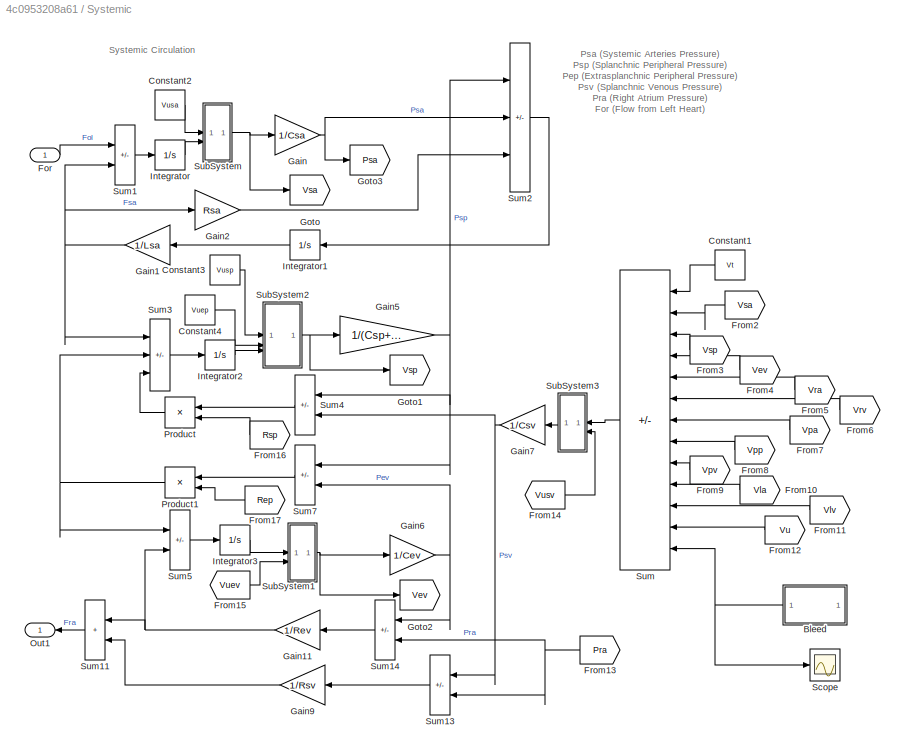
BLOCK [SubSystem] Systemic
  Commented = on
BLOCK [SubSystem] Systemic/Bleed
BLOCK [Outport] Systemic/Bleed/Blood Loss
BLOCK [Clock] Systemic/Bleed/Clock
BLOCK [Constant] Systemic/Bleed/Constant
  Value = 0
BLOCK [Reference] Systemic/Bleed/Ramp  REF=simulink/Sources/Ramp
  SourceBlock = simulink/Sources/Ramp
  SourceType = Ramp
BLOCK [Saturate] Systemic/Bleed/Saturation
  LowerLimit = 0
  UpperLimit = ulimit
BLOCK [Switch] Systemic/Bleed/Switch
  Threshold = tstart
BLOCK [Constant] Systemic/Constant1
  Value = Vt
BLOCK [Constant] Systemic/Constant2
  Value = Vusa
BLOCK [Constant] Systemic/Constant3
  Value = Vusp
BLOCK [Constant] Systemic/Constant4
  Value = Vuep
BLOCK [Inport] Systemic/For
BLOCK [From] Systemic/From10
  CloseFcn = tagdialog Close
  GotoTag = Vla
  TagVisibility = scoped
BLOCK [From] Systemic/From11
  CloseFcn = tagdialog Close
  GotoTag = Vlv
  TagVisibility = scoped
BLOCK [From] Systemic/From12
  CloseFcn = tagdialog Close
  GotoTag = Vu
  TagVisibility = scoped
BLOCK [From] Systemic/From13
  CloseFcn = tagdialog Close
  GotoTag = Pra
  TagVisibility = scoped
BLOCK [From] Systemic/From14
  CloseFcn = tagdialog Close
  GotoTag = Vusv
  TagVisibility = scoped
BLOCK [From] Systemic/From15
  CloseFcn = tagdialog Close
  GotoTag = Vuev
  TagVisibility = scoped
BLOCK [From] Systemic/From16
  CloseFcn = tagdialog Close
  GotoTag = Rsp
  TagVisibility = scoped
BLOCK [From] Systemic/From17
  CloseFcn = tagdialog Close
  GotoTag = Rep
  TagVisibility = scoped
BLOCK [From] Systemic/From2
  CloseFcn = tagdialog Close
  GotoTag = Vsa
BLOCK [From] Systemic/From3
  CloseFcn = tagdialog Close
  GotoTag = Vsp
BLOCK [From] Systemic/From4
  CloseFcn = tagdialog Close
  GotoTag = Vev
BLOCK [From] Systemic/From5
  CloseFcn = tagdialog Close
  GotoTag = Vra
  TagVisibility = scoped
BLOCK [From] Systemic/From6
  CloseFcn = tagdialog Close
  GotoTag = Vrv
  TagVisibility = scoped
BLOCK [From] Systemic/From7
  CloseFcn = tagdialog Close
  GotoTag = Vpa
  TagVisibility = scoped
BLOCK [From] Systemic/From8
  CloseFcn = tagdialog Close
  GotoTag = Vpp
  TagVisibility = scoped
BLOCK [From] Systemic/From9
  CloseFcn = tagdialog Close
  GotoTag = Vpv
  TagVisibility = scoped
BLOCK [Gain] Systemic/Gain
  Gain = 1/Csa
  SaturateOnIntegerOverflow = on
BLOCK [Gain] Systemic/Gain1
  Gain = 1/Lsa
  SaturateOnIntegerOverflow = on
BLOCK [Gain] Systemic/Gain11
  Gain = 1/Rev
  SaturateOnIntegerOverflow = on
BLOCK [Gain] Systemic/Gain2
  Gain = Rsa
  SaturateOnIntegerOverflow = on
BLOCK [Gain] Systemic/Gain5
  Gain = 1/(Csp+Cep)
  SaturateOnIntegerOverflow = on
BLOCK [Gain] Systemic/Gain6
  Gain = 1/Cev
  SaturateOnIntegerOverflow = on
BLOCK [Gain] Systemic/Gain7
  Gain = 1/Csv
  SaturateOnIntegerOverflow = on
BLOCK [Gain] Systemic/Gain9
  Gain = 1/Rsv
  SaturateOnIntegerOverflow = on
BLOCK [Goto] Systemic/Goto
  GotoTag = Vsa
BLOCK [Goto] Systemic/Goto1
  GotoTag = Vsp
BLOCK [Goto] Systemic/Goto2
  GotoTag = Vev
BLOCK [Goto] Systemic/Goto3
  GotoTag = Psa
  TagVisibility = scoped
BLOCK [Integrator] Systemic/Integrator
BLOCK [Integrator] Systemic/Integrator1
BLOCK [Integrator] Systemic/Integrator2
BLOCK [Integrator] Systemic/Integrator3
BLOCK [Outport] Systemic/Out1
BLOCK [Product] Systemic/Product
  Inputs = */
  SaturateOnIntegerOverflow = on
BLOCK [Product] Systemic/Product1
  Inputs = */
  SaturateOnIntegerOverflow = on
BLOCK [Scope] Systemic/Scope
  Floating = off
  NumInputPorts = 1
  ScopeSpecificationString = C++SS(StrPVP('Location','[5, 58, 805, 601]'),StrPVP('Open','off'),StrPVP('TickLabels','OneTimeTick'),StrPVP('ZoomMode','on'),MxPVP('AxesTitles',54,'struct(''axes1'',''%<SignalLabel>'')'),StrPVP('Grid','on'),StrPVP('TimeRange','auto'),StrPVP('YMin','0'),StrPVP('YMax','200'),StrPVP('SaveToWorkspace','off'),StrPVP('SaveName','ScopeData'),StrPVP('DataFormat','StructureWithTime'),StrPVP('LimitDataPoint...<+138ch>
BLOCK [SubSystem] Systemic/SubSystem
BLOCK [Inport] Systemic/SubSystem/+
  Port = 2
BLOCK [Outport] Systemic/SubSystem/Out
BLOCK [Saturate] Systemic/SubSystem/Saturation
  LowerLimit = 0
  UpperLimit = 10000
BLOCK [Sum] Systemic/SubSystem/Sum
  IconShape = rectangular
  Inputs = |-+
  SaturateOnIntegerOverflow = on
BLOCK [Inport] Systemic/SubSystem/_
BLOCK [SubSystem] Systemic/SubSystem1
BLOCK [Inport] Systemic/SubSystem1/+
BLOCK [Outport] Systemic/SubSystem1/Out
BLOCK [Saturate] Systemic/SubSystem1/Saturation
  LowerLimit = 0
  UpperLimit = 10000
BLOCK [Sum] Systemic/SubSystem1/Sum
  IconShape = rectangular
  Inputs = |+-
  SaturateOnIntegerOverflow = on
BLOCK [Inport] Systemic/SubSystem1/_
  Port = 2
BLOCK [SubSystem] Systemic/SubSystem2
BLOCK [Inport] Systemic/SubSystem2/+
  Port = 3
BLOCK [Outport] Systemic/SubSystem2/Out
BLOCK [Saturate] Systemic/SubSystem2/Saturation
  LowerLimit = 0
  UpperLimit = 10000
BLOCK [Sum] Systemic/SubSystem2/Sum
  IconShape = rectangular
  Inputs = |--+
  SaturateOnIntegerOverflow = on
BLOCK [Inport] Systemic/SubSystem2/_1
BLOCK [Inport] Systemic/SubSystem2/_2
  Port = 2
BLOCK [SubSystem] Systemic/SubSystem3
BLOCK [Inport] Systemic/SubSystem3/+
BLOCK [Outport] Systemic/SubSystem3/Out
BLOCK [Saturate] Systemic/SubSystem3/Saturation
  LowerLimit = 0
  UpperLimit = 10000
BLOCK [Sum] Systemic/SubSystem3/Sum
  IconShape = rectangular
  Inputs = |+-
  SaturateOnIntegerOverflow = on
BLOCK [Inport] Systemic/SubSystem3/_
  Port = 2
BLOCK [Sum] Systemic/Sum
  IconShape = rectangular
  Inputs = |+------------
  SaturateOnIntegerOverflow = on
BLOCK [Sum] Systemic/Sum1
  IconShape = rectangular
  Inputs = |+-
  SaturateOnIntegerOverflow = on
BLOCK [Sum] Systemic/Sum11
  IconShape = rectangular
  Inputs = |++
  SaturateOnIntegerOverflow = on
BLOCK [Sum] Systemic/Sum13
  IconShape = rectangular
  Inputs = |+-
  SaturateOnIntegerOverflow = on
BLOCK [Sum] Systemic/Sum14
  IconShape = rectangular
  Inputs = |+-
  SaturateOnIntegerOverflow = on
BLOCK [Sum] Systemic/Sum2
  IconShape = rectangular
  Inputs = |-+-
  SaturateOnIntegerOverflow = on
BLOCK [Sum] Systemic/Sum3
  IconShape = rectangular
  Inputs = |+--
  SaturateOnIntegerOverflow = on
BLOCK [Sum] Systemic/Sum4
  IconShape = rectangular
  Inputs = |+-
  SaturateOnIntegerOverflow = on
BLOCK [Sum] Systemic/Sum5
  IconShape = rectangular
  Inputs = |+-
  SaturateOnIntegerOverflow = on
BLOCK [Sum] Systemic/Sum7
  IconShape = rectangular
  Inputs = |+-
  SaturateOnIntegerOverflow = on
BLOCK [ToWorkspace] To Workspace
  Commented = on
  FixptAsFi = on
  MaxDataPoints = inf
  NameLocation = top
  SampleTime = -1
  SaveFormat = Timeseries
  VariableName = P_RV
BLOCK [ToWorkspace] To Workspace1
  Commented = on
  FixptAsFi = on
  MaxDataPoints = inf
  SampleTime = -1
  SaveFormat = Timeseries
  VariableName = P_LA
BLOCK [Reference] Variable Capacitor1  REF=ee_lib/Passive/Variable Capacitor
  NameLocation = right
  SourceBlock = ee_lib/Passive/Variable Capacitor
  SourceType = Variable Capacitor
BLOCK [Reference] Voltage Sensor1  REF=fl_lib/Electrical/Electrical Sensors/Voltage Sensor
  NameLocation = top
  SourceBlock = fl_lib/Electrical/Electrical Sensors/Voltage Sensor
  SourceType = Voltage Sensor
BLOCK [SubSystem] Voltage Source (SL)
  CopyFcn = set_param(gcb,'LinkStatus','none')
BLOCK [PMIOPort] Voltage Source (SL)/+
  NameLocation = right
  Side = Right
BLOCK [PMIOPort] Voltage Source (SL)/-
  NameLocation = right
  Port = 2
  Side = Right
BLOCK [Reference] Voltage Source (SL)/Controlled Voltage Source  REF=fl_lib/Electrical/Electrical Sources/Controlled Voltage
Source
  NameLocation = right
  SourceBlock = fl_lib/Electrical/Electrical Sources/Controlled Voltage\nSource
  SourceType = Controlled Voltage\nSource
BLOCK [Inport] Voltage Source (SL)/S
BLOCK [Reference] Voltage Source (SL)/Simulink-PS Converter  REF=nesl_utility/Simulink-PS
Converter
  SourceBlock = nesl_utility/Simulink-PS\nConverter
  SourceType = Simulink-PS\nConverter
ANNOTATION (root): Left Heart
ANNOTATION (root): A. Anonima
ANNOTATION (root): A. Axillaris
ANNOTATION (root): A. Brachialis
ANNOTATION (root): A. Carotis Comunis
ANNOTATION (root): A. Femoralis
ANNOTATION (root): A. Iliaca Communis
ANNOTATION (root): A. Iliaca Externa
ANNOTATION (root): A. Interossea Volaris
ANNOTATION (root): A. Poplitea
ANNOTATION (root): A. Profundis Femoris
ANNOTATION (root): A. Radialis
ANNOTATION (root): A. Subclavia
ANNOTATION (root): A. Tibialis Anterior
ANNOTATION (root): A. Tibialis Posterior
ANNOTATION (root): A. Ulnaris
ANNOTATION (root): A. Vertebralis
ANNOTATION (root): Aorta Renalis d.
ANNOTATION (root): Aorta Renalis s.
ANNOTATION (root): Aorta Ascendens
ANNOTATION (root): Aorta Abdominalis
ANNOTATION (root): Aorta Coelica
ANNOTATION (root): Aorta Hepatica
ANNOTATION (root): Aorta Lienalis
ANNOTATION (root): Arcus Aorta
ANNOTATION (root): Gastrica Sinistra
ANNOTATION (root): Mesenterica Superior
ANNOTATION (root): Thorax Aorta
ANNOTATION (root): Systemic Circulatory System
ANNOTATION (root): Lungs
ANNOTATION (root): Right Heart
ANNOTATION (root): P_LV
ANNOTATION (root): P_RA
ANNOTATION (root): ones
ANNOTATION (root): HSP Cardiovascular Simulation System
ANNOTATION (root): Left Ventricle
ANNOTATION Left Heart: Left Heart
ANNOTATION Left Heart: Pmaxlv
ANNOTATION Left Heart: Vula (Left Atrium Unstressed Volume) Vulv (Left Ventricle Unstressed Volume) Vlv (Left Ventricle Volume) Vla (Left Atrium Volume) Pla (Left Atrium Pressure) Plv (Left Ventricle Pressure) Fla (Flow into Left Atrium) Fil (Flow into Left Ventricle) Fol (Flow out of Left Ventricle) LHeart (Left Ventricle Function)
ANNOTATION Pulmonary: Ppa (Pulmonary Arteries Pressure) Ppp (Pulmonary Peripheral Pressure) Ppv (Pulmonary Veins Pressure) Pla (Left Atrium Pressure) For (Flow from Right Heart) Fpa (Flow to Pulmonary Aorta) Fla (Flow to Left Atrium) Vupa (Pulmonary Arteries Unstressed Volume) Vupp (Pulmonary Peripheral Unstressed Volume) Vupv (Pulmonary Veins Unstressed Volume)
ANNOTATION Pulmonary: Pulmonary Circulation
ANNOTATION Right Heart: Right Heart
ANNOTATION Right Heart: Vura (Right Atrium Unstressed Volume) Vurv (Right Ventricle Unstressed Volume) Vrv (Right Ventricle Volume) Vra (Right Atrium Volume) Pra (Right Atrium Pressure) Prv (Right Ventricle Pressure) Fra (Flow into Right Atrium) Fir (Flow into Right Ventricle) For (Flow out of Right Ventricle) LHeart (Left Ventricle Function)
ANNOTATION Systemic: Psa (Systemic Arteries Pressure) Psp (Splanchnic Peripheral Pressure) Pep (Extrasplanchnic Peripheral Pressure) Psv (Splanchnic Venous Pressure) Pra (Right Atrium Pressure) For (Flow from Left Heart) Fsa (Flow to Systemic Aorta) Fil (Flow to Left Atrium) Fra (Flow to Right Atrium) Vusa (Systemic Arteries Unstressed Volume) Vusp (Extrasplanchnic Venous Unstressed Volume) Vuep (Splanchnic Venous Uns...<+106ch>
ANNOTATION Systemic: Systemic Circulation
LINE  P_AbA/PS-Simulink Converter1:1 ->  P_AbA/To Workspace1:1
LINE  P_Axi/PS-Simulink Converter1:1 ->  P_Axi/To Workspace1:1
LINE  P_Brach/PS-Simulink Converter1:1 ->  P_Brach/To Workspace1:1
LINE  P_Carot/PS-Simulink Converter1:1 ->  P_Carot/To Workspace1:1
LINE  P_FA/PS-Simulink Converter1:1 ->  P_FA/To Workspace1:1
LINE  P_Iliac/PS-Simulink Converter1:1 ->  P_Iliac/To Workspace1:1
LINE  P_LV/PS-Simulink Converter1:1 ->  P_LV/To Workspace1:1
LINE  P_Po/PS-Simulink Converter1:1 ->  P_Po/To Workspace1:1
LINE  P_Rad/PS-Simulink Converter1:1 ->  P_Rad/To Workspace1:1
LINE  P_SubC/PS-Simulink Converter1:1 ->  P_SubC/To Workspace1:1
LINE  P_ThA/PS-Simulink Converter1:1 ->  P_ThA/To Workspace1:1
LINE  P_TibAnt/PS-Simulink Converter1:1 ->  P_TibAnt/To Workspace1:1
LINE  P_TibPost/PS-Simulink Converter1:1 ->  P_TibPost/To Workspace1:1
LINE  P_Uln/PS-Simulink Converter1:1 ->  P_Uln/To Workspace1:1
LINE  P_Vert/PS-Simulink Converter1:1 ->  P_Vert/To Workspace1:1
LINE  P_Vola/PS-Simulink Converter1:1 ->  P_Vola/To Workspace1:1
LINE CGS to SI converter:1 -> Voltage Source (SL):1
LINE Constant5:1 -> Divide2:1
LINE Control/Carotid Sinus/Fcn:1 -> Control/Carotid Sinus/fcs:1
LINE Control/Carotid Sinus/Pin:1 -> Control/Carotid Sinus/Transfer Fcn:1
LINE Control/Carotid Sinus/Transfer Fcn:1 -> Control/Carotid Sinus/Fcn:1
NET Control/Carotid Sinus:1 -> Control/Scope6:1, Control/Sympathetic Pathway:1, Control/To Workspace1:1, Control/Vagal Pathway:1
LINE Control/Constant10:1 -> Control/Sum:11
LINE Control/Constant11:1 -> Control/Sum:12
LINE Control/Constant1:1 -> Control/Sum:2
LINE Control/Constant2:1 -> Control/Sum:3
LINE Control/Constant5:1 -> Control/Sum:6
LINE Control/Constant6:1 -> Control/Sum:7
LINE Control/Constant7:1 -> Control/Sum:8
LINE Control/Constant8:1 -> Control/Sum:9
LINE Control/Constant9:1 -> Control/Sum:10
LINE Control/Constant:1 -> Control/Sum:1
LINE Control/Emaxlv/Constant1:1 -> Control/Emaxlv/Sum1:2
LINE Control/Emaxlv/Constant:1 -> Control/Emaxlv/Sum:2
LINE Control/Emaxlv/Gain:1 -> Control/Emaxlv/Transfer Fcn:1
LINE Control/Emaxlv/Math Function:1 -> Control/Emaxlv/Gain:1
LINE Control/Emaxlv/Saturation:1 -> Control/Emaxlv/Math Function:1
LINE Control/Emaxlv/Sum1:1 -> Control/Emaxlv/Emaxlv:1
LINE Control/Emaxlv/Sum:1 -> Control/Emaxlv/Saturation:1
LINE Control/Emaxlv/Transfer Fcn:1 -> Control/Emaxlv/Sum1:1
LINE Control/Emaxlv/Transport Delay:1 -> Control/Emaxlv/Sum:1
LINE Control/Emaxlv/fes:1 -> Control/Emaxlv/Transport Delay:1
NET Control/Emaxlv:1 -> Control/Goto4:1, Control/To Workspace3:1
LINE Control/Emaxrv/Constant1:1 -> Control/Emaxrv/Sum1:2
LINE Control/Emaxrv/Constant:1 -> Control/Emaxrv/Sum:2
LINE Control/Emaxrv/Gain:1 -> Control/Emaxrv/Transfer Fcn:1
LINE Control/Emaxrv/Math Function:1 -> Control/Emaxrv/Gain:1
LINE Control/Emaxrv/Saturation:1 -> Control/Emaxrv/Math Function:1
LINE Control/Emaxrv/Sum1:1 -> Control/Emaxrv/Emaxrv:1
LINE Control/Emaxrv/Sum:1 -> Control/Emaxrv/Saturation:1
LINE Control/Emaxrv/Transfer Fcn:1 -> Control/Emaxrv/Sum1:1
LINE Control/Emaxrv/Transport Delay:1 -> Control/Emaxrv/Sum:1
LINE Control/Emaxrv/fes:1 -> Control/Emaxrv/Transport Delay:1
LINE Control/Emaxrv:1 -> Control/Goto3:1
LINE Control/From1:1 -> Control/Sum:4
NET Control/From3:1 -> Control/Carotid Sinus:1, Control/Scope11:1, Control/To Workspace:1
LINE Control/From4:1 -> Control/T:1
LINE Control/From5:1 -> Control/T:2
LINE Control/From:1 -> Control/Sum:5
LINE Control/Left Ventricle/Constant13:1 -> Control/Left Ventricle/SubSystem1:1
LINE Control/Left Ventricle/Constant14:1 -> Control/Left Ventricle/Product5:2
LINE Control/Left Ventricle/Constant6:1 -> Control/Left Ventricle/Sum3:2
LINE Control/Left Ventricle/Fcn:1 -> Control/Left Ventricle/Product5:1
LINE Control/Left Ventricle/From2:1 -> Control/Left Ventricle/SubSystem1:2
LINE Control/Left Ventricle/From3:1 -> Control/Left Ventricle/Product4:1
NET Control/Left Ventricle/From6:1 -> Control/Left Ventricle/Fcn:1, Control/Left Ventricle/Scope:1
LINE Control/Left Ventricle/Product4:1 -> Control/Left Ventricle/Sum2:1
NET Control/Left Ventricle/Product5:1 -> Control/Left Ventricle/Scope1:1, Control/Left Ventricle/Sum2:2
LINE Control/Left Ventricle/SubSystem1/+:1 -> Control/Left Ventricle/SubSystem1/Sum:2
LINE Control/Left Ventricle/SubSystem1/Saturation:1 -> Control/Left Ventricle/SubSystem1/Out:1
LINE Control/Left Ventricle/SubSystem1/Sum:1 -> Control/Left Ventricle/SubSystem1/Saturation:1
LINE Control/Left Ventricle/SubSystem1/_:1 -> Control/Left Ventricle/SubSystem1/Sum:1
LINE Control/Left Ventricle/SubSystem1:1 -> Control/Left Ventricle/Product4:2
LINE Control/Left Ventricle/Sum2:1 -> Control/Left Ventricle/Pmaxlv:1
LINE Control/Left Ventricle/Sum3:1 -> Control/Left Ventricle/Product5:3
NET Control/Left Ventricle/phi:1 -> Control/Left Ventricle/Product4:3, Control/Left Ventricle/Sum3:1
NET Control/Left Ventricle:1 -> Control/Heart Beat Left Ventricle:1, Control/Scope8:1
LINE Control/Rep/Constant1:1 -> Control/Rep/Sum1:2
LINE Control/Rep/Constant:1 -> Control/Rep/Sum:2
LINE Control/Rep/Gain:1 -> Control/Rep/Transfer Fcn:1
LINE Control/Rep/Math Function:1 -> Control/Rep/Gain:1
LINE Control/Rep/Saturation:1 -> Control/Rep/Math Function:1
LINE Control/Rep/Sum1:1 -> Control/Rep/Rep:1
LINE Control/Rep/Sum:1 -> Control/Rep/Saturation:1
LINE Control/Rep/Transfer Fcn:1 -> Control/Rep/Sum1:1
LINE Control/Rep/Transport Delay:1 -> Control/Rep/Sum:1
LINE Control/Rep/fes:1 -> Control/Rep/Transport Delay:1
LINE Control/Rep:1 -> Control/Goto6:1
LINE Control/Right Ventricle/Constant13:1 -> Control/Right Ventricle/SubSystem1:1
LINE Control/Right Ventricle/Constant14:1 -> Control/Right Ventricle/Product5:2
LINE Control/Right Ventricle/Constant6:1 -> Control/Right Ventricle/Sum3:2
LINE Control/Right Ventricle/Fcn:1 -> Control/Right Ventricle/Product5:1
LINE Control/Right Ventricle/From2:1 -> Control/Right Ventricle/SubSystem1:2
LINE Control/Right Ventricle/From3:1 -> Control/Right Ventricle/Product4:1
NET Control/Right Ventricle/From6:1 -> Control/Right Ventricle/Fcn:1, Control/Right Ventricle/Scope:1
LINE Control/Right Ventricle/Product4:1 -> Control/Right Ventricle/Sum2:1
LINE Control/Right Ventricle/Product5:1 -> Control/Right Ventricle/Sum2:2
LINE Control/Right Ventricle/SubSystem1/+:1 -> Control/Right Ventricle/SubSystem1/Sum:2
LINE Control/Right Ventricle/SubSystem1/Saturation:1 -> Control/Right Ventricle/SubSystem1/Out:1
LINE Control/Right Ventricle/SubSystem1/Sum:1 -> Control/Right Ventricle/SubSystem1/Saturation:1
LINE Control/Right Ventricle/SubSystem1/_:1 -> Control/Right Ventricle/SubSystem1/Sum:1
LINE Control/Right Ventricle/SubSystem1:1 -> Control/Right Ventricle/Product4:2
LINE Control/Right Ventricle/Sum2:1 -> Control/Right Ventricle/Pmaxrv:1
LINE Control/Right Ventricle/Sum3:1 -> Control/Right Ventricle/Product5:3
NET Control/Right Ventricle/phi:1 -> Control/Right Ventricle/Product4:3, Control/Right Ventricle/Sum3:1
NET Control/Right Ventricle:1 -> Control/Heart Beat Right Ventricle1:1, Control/Scope7:1
LINE Control/Rsp/Constant1:1 -> Control/Rsp/Sum1:2
LINE Control/Rsp/Constant:1 -> Control/Rsp/Sum:2
LINE Control/Rsp/Gain:1 -> Control/Rsp/Transfer Fcn:1
LINE Control/Rsp/Math Function:1 -> Control/Rsp/Gain:1
LINE Control/Rsp/Saturation:1 -> Control/Rsp/Math Function:1
LINE Control/Rsp/Sum1:1 -> Control/Rsp/Rsp:1
LINE Control/Rsp/Sum:1 -> Control/Rsp/Saturation:1
LINE Control/Rsp/Transfer Fcn:1 -> Control/Rsp/Sum1:1
LINE Control/Rsp/Transport Delay:1 -> Control/Rsp/Sum:1
LINE Control/Rsp/fes:1 -> Control/Rsp/Transport Delay:1
NET Control/Rsp:1 -> Control/Goto5:1, Control/To Workspace5:1
LINE Control/Sum:1 -> Control/Goto:1
LINE Control/Sympathetic Pathway/Constant:1 -> Control/Sympathetic Pathway/Sum:2
LINE Control/Sympathetic Pathway/Gain1:1 -> Control/Sympathetic Pathway/Sum:1
LINE Control/Sympathetic Pathway/Gain:1 -> Control/Sympathetic Pathway/Math Function:1
LINE Control/Sympathetic Pathway/Math Function:1 -> Control/Sympathetic Pathway/Gain1:1
LINE Control/Sympathetic Pathway/Sum:1 -> Control/Sympathetic Pathway/fes:1
LINE Control/Sympathetic Pathway/fcs:1 -> Control/Sympathetic Pathway/Gain:1
NET Control/Sympathetic Pathway:1 -> Control/Emaxlv:1, Control/Emaxrv:1, Control/Goto2:1, Control/Rep:1, Control/Rsp:1, Control/To Workspace2:1, Control/Vuev:1, Control/Vusv:1
LINE Control/T/Constant1:1 -> Control/T/Sum1:2
LINE Control/T/Constant:1 -> Control/T/Sum:2
LINE Control/T/Gain1:1 -> Control/T/Transfer Fcn1:1
LINE Control/T/Gain:1 -> Control/T/Transfer Fcn:1
LINE Control/T/Math Function:1 -> Control/T/Gain:1
LINE Control/T/Saturation:1 -> Control/T/Math Function:1
LINE Control/T/Sum1:1 -> Control/T/T:1
LINE Control/T/Sum:1 -> Control/T/Saturation:1
LINE Control/T/Transfer Fcn1:1 -> Control/T/Sum1:3
LINE Control/T/Transfer Fcn:1 -> Control/T/Sum1:1
LINE Control/T/Transport Delay1:1 -> Control/T/Gain1:1
LINE Control/T/Transport Delay:1 -> Control/T/Sum:1
LINE Control/T/fes:1 -> Control/T/Transport Delay:1
LINE Control/T/fev:1 -> Control/T/Transport Delay1:1
NET Control/T:1 -> Control/Scope9:1, Control/To Workspace6:1, Control/phi:1
LINE Control/Vagal Pathway/Fcn:1 -> Control/Vagal Pathway/fev:1
LINE Control/Vagal Pathway/fcs:1 -> Control/Vagal Pathway/Fcn:1
NET Control/Vagal Pathway:1 -> Control/Goto1:1, Control/To Workspace4:1
LINE Control/Vuev/Constant1:1 -> Control/Vuev/Sum1:2
LINE Control/Vuev/Constant:1 -> Control/Vuev/Sum:2
LINE Control/Vuev/Gain:1 -> Control/Vuev/Transfer Fcn:1
LINE Control/Vuev/Math Function:1 -> Control/Vuev/Gain:1
LINE Control/Vuev/Saturation:1 -> Control/Vuev/Math Function:1
LINE Control/Vuev/Sum1:1 -> Control/Vuev/Vuev:1
LINE Control/Vuev/Sum:1 -> Control/Vuev/Saturation:1
LINE Control/Vuev/Transfer Fcn:1 -> Control/Vuev/Sum1:1
LINE Control/Vuev/Transport Delay:1 -> Control/Vuev/Sum:1
LINE Control/Vuev/fes:1 -> Control/Vuev/Transport Delay:1
LINE Control/Vuev:1 -> Control/Goto8:1
LINE Control/Vusv/Constant1:1 -> Control/Vusv/Sum1:2
LINE Control/Vusv/Constant:1 -> Control/Vusv/Sum:2
LINE Control/Vusv/Gain:1 -> Control/Vusv/Transfer Fcn:1
LINE Control/Vusv/Math Function:1 -> Control/Vusv/Gain:1
LINE Control/Vusv/Saturation:1 -> Control/Vusv/Math Function:1
LINE Control/Vusv/Sum1:1 -> Control/Vusv/Vusv:1
LINE Control/Vusv/Sum:1 -> Control/Vusv/Saturation:1
LINE Control/Vusv/Transfer Fcn:1 -> Control/Vusv/Sum1:1
LINE Control/Vusv/Transport Delay:1 -> Control/Vusv/Sum:1
LINE Control/Vusv/fes:1 -> Control/Vusv/Transport Delay:1
LINE Control/Vusv:1 -> Control/Goto7:1
LINE Control/phi/Constant3:1 -> Control/phi/Switch:1
LINE Control/phi/Constant4:1 -> Control/phi/Product2:2
LINE Control/phi/Constant5:1 -> Control/phi/Sum1:2
LINE Control/phi/Constant6:1 -> Control/phi/Math Function2:2
NET Control/phi/Data Store Read:1 -> Control/phi/Math Function3:1, Control/phi/Product2:1, Control/phi/Product3:1
LINE Control/phi/Fcn1:1 -> Control/phi/phi:1
LINE Control/phi/Integrator:1 -> Control/phi/Math Function2:1
NET Control/phi/Math Function2:1 -> Control/phi/Product:1, Control/phi/Scope1:1
LINE Control/phi/Math Function3:1 -> Control/phi/Integrator:1
LINE Control/phi/Product2:1 -> Control/phi/Sum1:1
LINE Control/phi/Product3:1 -> Control/phi/Product:2
NET Control/phi/Product:1 -> Control/phi/Switch:2, Control/phi/Switch:3
NET Control/phi/SubSystem/In1:1 -> Control/phi/SubSystem/Data Store Write:1, Control/phi/SubSystem/Scope:1
LINE Control/phi/Sum1:1 -> Control/phi/Product3:2
NET Control/phi/Switch:1 -> Control/phi/Fcn1:1, Control/phi/Scope:1, Control/phi/SubSystem:trigger
LINE Control/phi/T:1 -> Control/phi/SubSystem:1
NET Control/phi:1 -> Control/Left Ventricle:1, Control/Right Ventricle:1, Control/Scope10:1
LINE Divide2:1 -> Simulink-PS Converter1:1
LINE F_AT/PS-Simulink Converter1:1 -> F_AT/To Workspace:1
LINE F_AbA/PS-Simulink Converter:1 -> F_AbA/To Workspace:1
LINE F_AbA1/PS-Simulink Converter:1 -> F_AbA1/To Workspace:1
LINE F_Anon/PS-Simulink Converter1:1 -> F_Anon/To Workspace:1
LINE F_Anon1/PS-Simulink Converter1:1 -> F_Anon1/To Workspace:1
NET F_Arcus/PS-Simulink Converter1:1 -> F_Arcus/Scope:1, F_Arcus/To Workspace:1
NET F_Arcus2/PS-Simulink Converter1:1 -> F_Arcus2/Scope:1, F_Arcus2/To Workspace:1
NET F_Arcus3/PS-Simulink Converter1:1 -> F_Arcus3/Scope:1, F_Arcus3/To Workspace:1
NET F_Arcus4/PS-Simulink Converter1:1 -> F_Arcus4/Scope:1, F_Arcus4/To Workspace:1
NET F_Brach/PS-Simulink Converter1:1 -> F_Brach/Scope:1, F_Brach/To Workspace:1
NET F_Brach1/PS-Simulink Converter1:1 -> F_Brach1/Scope:1, F_Brach1/To Workspace:1
LINE F_Coel/PS-Simulink Converter1:1 -> F_Coel/To Workspace:1
NET F_Fem/PS-Simulink Converter1:1 -> F_Fem/Scope:1, F_Fem/To Workspace:1
NET F_Fem1/PS-Simulink Converter1:1 -> F_Fem1/Scope:1, F_Fem1/To Workspace:1
LINE F_Hep/PS-Simulink Converter:1 -> F_Hep/To Workspace:1
LINE F_LV/PS-Simulink Converter1:1 -> F_LV/To Workspace:1
NET F_LegL/PS-Simulink Converter1:1 -> F_LegL/Scope:1, F_LegL/To Workspace:1
LINE F_LegR/PS-Simulink Converter1:1 -> F_LegR/To Workspace:1
LINE F_Lien/PS-Simulink Converter1:1 -> F_Lien/To Workspace:1
LINE F_MesI/PS-Simulink Converter:1 -> F_MesI/To Workspace:1
LINE F_MesS/PS-Simulink Converter1:1 -> F_MesS/To Workspace:1
NET F_Po/PS-Simulink Converter1:1 -> F_Po/Scope:1, F_Po/To Workspace:1
NET F_Po1/PS-Simulink Converter1:1 -> F_Po1/Scope:1, F_Po1/To Workspace:1
NET F_Rena/PS-Simulink Converter1:1 -> F_Rena/Scope:1, F_Rena/To Workspace:1
LINE F_Rend/PS-Simulink Converter1:1 -> F_Rend/To Workspace:1
NET F_SubC/PS-Simulink Converter1:1 -> F_SubC/Scope:1, F_SubC/To Workspace:1
NET F_SubC1/PS-Simulink Converter1:1 -> F_SubC1/Scope:1, F_SubC1/To Workspace:1
LINE F_ThA/PS-Simulink Converter:1 -> F_ThA/To Workspace:1
LINE F_ThA1/PS-Simulink Converter:1 -> F_ThA1/To Workspace:1
NET F_Uln/PS-Simulink Converter1:1 -> F_Uln/Scope:1, F_Uln/To Workspace:1
NET F_Uln1/PS-Simulink Converter1:1 -> F_Uln1/Scope:1, F_Uln1/To Workspace:1
LINE Left Heart/Constant2:1 -> Left Heart/SubSystem:1
LINE Left Heart/Constant3:1 -> Left Heart/SubSystem1:1
LINE Left Heart/From1:1 -> Left Heart/Sum1:1
NET Left Heart/From2:1 -> Left Heart/Pmaxlv--Psa ---------------------- Rlv:1, Left Heart/Switch2:3
LINE Left Heart/From3:1 -> Left Heart/Switch2:1
LINE Left Heart/From:1 -> Left Heart/Sum1:2
NET Left Heart/Gain2:1 -> Left Heart/Sum4:1, Left Heart/Sum:2
NET Left Heart/Gain:1 -> Left Heart/Goto:1, Left Heart/P_LA:1, Left Heart/Sum3:1
LINE Left Heart/In1:1 -> Left Heart/Sum:1
LINE Left Heart/Integrator1:1 -> Left Heart/SubSystem1:2
LINE Left Heart/Integrator:1 -> Left Heart/SubSystem:2
LINE Left Heart/Pmaxlv--Psa ---------------------- Rlv/Gain:1 -> Left Heart/Pmaxlv--Psa ---------------------- Rlv/Saturation:1
LINE Left Heart/Pmaxlv--Psa ---------------------- Rlv/P:1 -> Left Heart/Pmaxlv--Psa ---------------------- Rlv/Product:2
LINE Left Heart/Pmaxlv--Psa ---------------------- Rlv/Pmax:1 -> Left Heart/Pmaxlv--Psa ---------------------- Rlv/Gain:1
LINE Left Heart/Pmaxlv--Psa ---------------------- Rlv/Product:1 -> Left Heart/Pmaxlv--Psa ---------------------- Rlv/Flow:1
LINE Left Heart/Pmaxlv--Psa ---------------------- Rlv/Saturation:1 -> Left Heart/Pmaxlv--Psa ---------------------- Rlv/Product:1
NET Left Heart/Pmaxlv--Psa ---------------------- Rlv:1 -> Left Heart/Out1:1, Left Heart/Scope1:2, Left Heart/Sum4:2, Left Heart/To Workspace2:1
LINE Left Heart/SubSystem/+:1 -> Left Heart/SubSystem/Sum:2
LINE Left Heart/SubSystem/Saturation:1 -> Left Heart/SubSystem/Out:1
LINE Left Heart/SubSystem/Sum:1 -> Left Heart/SubSystem/Saturation:1
LINE Left Heart/SubSystem/_:1 -> Left Heart/SubSystem/Sum:1
LINE Left Heart/SubSystem1/+:1 -> Left Heart/SubSystem1/Sum:2
LINE Left Heart/SubSystem1/Saturation:1 -> Left Heart/SubSystem1/Out:1
LINE Left Heart/SubSystem1/Sum:1 -> Left Heart/SubSystem1/Saturation:1
LINE Left Heart/SubSystem1/_:1 -> Left Heart/SubSystem1/Sum:1
NET Left Heart/SubSystem1:1 -> Left Heart/Goto1:1, Left Heart/To Workspace1:1
NET Left Heart/SubSystem:1 -> Left Heart/Gain:1, Left Heart/Goto2:1
NET Left Heart/Sum1:1 -> Left Heart/Switch2:2, Left Heart/aortic valve:1
LINE Left Heart/Sum3:1 -> Left Heart/mitral valve:1
LINE Left Heart/Sum4:1 -> Left Heart/Integrator1:1
LINE Left Heart/Sum:1 -> Left Heart/Integrator:1
NET Left Heart/Switch2:1 -> Left Heart/P_LV:1, Left Heart/Scope1:1, Left Heart/Sum3:2, Left Heart/To Workspace:1
LINE Left Heart/aortic valve:1 -> Left Heart/Pmaxlv--Psa ---------------------- Rlv:2
LINE Left Heart/mitral valve:1 -> Left Heart/Gain2:1
LINE Left Heart:1 -> Systemic:1
LINE Left Heart:2 -> To Workspace1:1
LINE PS-Simulink Converter2:1 -> CGS to SI converter:1
LINE Pulmonary/Constant1:1 -> Pulmonary/SubSystem1:1
LINE Pulmonary/Constant3:1 -> Pulmonary/SubSystem2:1
LINE Pulmonary/Constant:1 -> Pulmonary/SubSystem:1
LINE Pulmonary/For:1 -> Pulmonary/Sum:1
LINE Pulmonary/From:1 -> Pulmonary/Sum5:2
NET Pulmonary/Gain1:1 -> Pulmonary/Gain2:1, Pulmonary/Sum2:1, Pulmonary/Sum:2
LINE Pulmonary/Gain2:1 -> Pulmonary/Sum1:3
NET Pulmonary/Gain4:1 -> Pulmonary/Sum2:2, Pulmonary/Sum4:1
NET Pulmonary/Gain5:1 -> Pulmonary/Sum1:1, Pulmonary/Sum3:1
NET Pulmonary/Gain6:1 -> Pulmonary/Sum3:2, Pulmonary/Sum5:1, Pulmonary/To Workspace1:1
NET Pulmonary/Gain7:1 -> Pulmonary/Out1:1, Pulmonary/Sum4:2
NET Pulmonary/Gain:1 -> Pulmonary/Goto:1, Pulmonary/Sum1:2
LINE Pulmonary/Integrator1:1 -> Pulmonary/Gain1:1
LINE Pulmonary/Integrator2:1 -> Pulmonary/SubSystem1:2
LINE Pulmonary/Integrator3:1 -> Pulmonary/SubSystem2:2
LINE Pulmonary/Integrator:1 -> Pulmonary/SubSystem:2
LINE Pulmonary/SubSystem/+:1 -> Pulmonary/SubSystem/Sum:2
LINE Pulmonary/SubSystem/Saturation:1 -> Pulmonary/SubSystem/Out:1
LINE Pulmonary/SubSystem/Sum:1 -> Pulmonary/SubSystem/Saturation:1
LINE Pulmonary/SubSystem/_:1 -> Pulmonary/SubSystem/Sum:1
LINE Pulmonary/SubSystem1/+:1 -> Pulmonary/SubSystem1/Sum:2
LINE Pulmonary/SubSystem1/Saturation:1 -> Pulmonary/SubSystem1/Out:1
LINE Pulmonary/SubSystem1/Sum:1 -> Pulmonary/SubSystem1/Saturation:1
LINE Pulmonary/SubSystem1/_:1 -> Pulmonary/SubSystem1/Sum:1
NET Pulmonary/SubSystem1:1 -> Pulmonary/Gain5:1, Pulmonary/Goto2:1
LINE Pulmonary/SubSystem2/+:1 -> Pulmonary/SubSystem2/Sum:2
LINE Pulmonary/SubSystem2/Saturation:1 -> Pulmonary/SubSystem2/Out:1
LINE Pulmonary/SubSystem2/Sum:1 -> Pulmonary/SubSystem2/Saturation:1
LINE Pulmonary/SubSystem2/_:1 -> Pulmonary/SubSystem2/Sum:1
NET Pulmonary/SubSystem2:1 -> Pulmonary/Gain6:1, Pulmonary/Goto3:1
NET Pulmonary/SubSystem:1 -> Pulmonary/Gain:1, Pulmonary/Goto1:1
LINE Pulmonary/Sum1:1 -> Pulmonary/Integrator1:1
LINE Pulmonary/Sum2:1 -> Pulmonary/Integrator2:1
LINE Pulmonary/Sum3:1 -> Pulmonary/Gain4:1
LINE Pulmonary/Sum4:1 -> Pulmonary/Integrator3:1
LINE Pulmonary/Sum5:1 -> Pulmonary/Gain7:1
LINE Pulmonary/Sum:1 -> Pulmonary/Integrator:1
LINE Pulmonary:1 -> Left Heart:1
LINE Repeating Sequence1:1 -> Divide2:2
LINE Right Heart/Constant2:1 -> Right Heart/SubSystem:1
LINE Right Heart/Constant3:1 -> Right Heart/SubSystem1:1
LINE Right Heart/From1:1 -> Right Heart/Sum1:1
LINE Right Heart/From2:1 -> Right Heart/Switch2:1
NET Right Heart/From3:1 -> Right Heart/Pmaxrv--Ppa ---------------------- Rrv:1, Right Heart/Scope1:1, Right Heart/Switch2:3
LINE Right Heart/From:1 -> Right Heart/Sum1:2
NET Right Heart/Gain2:1 -> Right Heart/Sum4:1, Right Heart/Sum:2
NET Right Heart/Gain:1 -> Right Heart/Goto:1, Right Heart/Sum3:1
LINE Right Heart/In1:1 -> Right Heart/Sum:1
LINE Right Heart/Integrator1:1 -> Right Heart/SubSystem1:2
LINE Right Heart/Integrator:1 -> Right Heart/SubSystem:2
LINE Right Heart/Pmaxrv--Ppa ---------------------- Rrv/Gain:1 -> Right Heart/Pmaxrv--Ppa ---------------------- Rrv/Saturation:1
LINE Right Heart/Pmaxrv--Ppa ---------------------- Rrv/P:1 -> Right Heart/Pmaxrv--Ppa ---------------------- Rrv/Product:2
LINE Right Heart/Pmaxrv--Ppa ---------------------- Rrv/Pmax:1 -> Right Heart/Pmaxrv--Ppa ---------------------- Rrv/Gain:1
LINE Right Heart/Pmaxrv--Ppa ---------------------- Rrv/Product:1 -> Right Heart/Pmaxrv--Ppa ---------------------- Rrv/Flow:1
LINE Right Heart/Pmaxrv--Ppa ---------------------- Rrv/Saturation:1 -> Right Heart/Pmaxrv--Ppa ---------------------- Rrv/Product:1
NET Right Heart/Pmaxrv--Ppa ---------------------- Rrv:1 -> Right Heart/Out1:1, Right Heart/Scope1:2, Right Heart/Sum4:2
LINE Right Heart/SubSystem/+:1 -> Right Heart/SubSystem/Sum:2
LINE Right Heart/SubSystem/Saturation:1 -> Right Heart/SubSystem/Out:1
LINE Right Heart/SubSystem/Sum:1 -> Right Heart/SubSystem/Saturation:1
LINE Right Heart/SubSystem/_:1 -> Right Heart/SubSystem/Sum:1
LINE Right Heart/SubSystem1/+:1 -> Right Heart/SubSystem1/Sum:2
LINE Right Heart/SubSystem1/Saturation:1 -> Right Heart/SubSystem1/Out:1
LINE Right Heart/SubSystem1/Sum:1 -> Right Heart/SubSystem1/Saturation:1
LINE Right Heart/SubSystem1/_:1 -> Right Heart/SubSystem1/Sum:1
LINE Right Heart/SubSystem1:1 -> Right Heart/Goto1:1
NET Right Heart/SubSystem:1 -> Right Heart/Gain:1, Right Heart/Goto2:1
NET Right Heart/Sum1:1 -> Right Heart/Switch2:2, Right Heart/pulmonary valve:1
LINE Right Heart/Sum3:1 -> Right Heart/tricuspid valve:1
LINE Right Heart/Sum4:1 -> Right Heart/Integrator1:1
LINE Right Heart/Sum:1 -> Right Heart/Integrator:1
NET Right Heart/Switch2:1 -> Right Heart/P_RV:1, Right Heart/Scope:1, Right Heart/Sum3:2
LINE Right Heart/pulmonary valve:1 -> Right Heart/Pmaxrv--Ppa ---------------------- Rrv:2
LINE Right Heart/tricuspid valve:1 -> Right Heart/Gain2:1
LINE Right Heart:1 -> Pulmonary:1
LINE Right Heart:2 -> To Workspace:1
LINE Systemic/Bleed/Clock:1 -> Systemic/Bleed/Switch:2
LINE Systemic/Bleed/Constant:1 -> Systemic/Bleed/Switch:3
LINE Systemic/Bleed/Ramp:1 -> Systemic/Bleed/Switch:1
LINE Systemic/Bleed/Saturation:1 -> Systemic/Bleed/Blood Loss:1
LINE Systemic/Bleed/Switch:1 -> Systemic/Bleed/Saturation:1
NET Systemic/Bleed:1 -> Systemic/Scope:1, Systemic/Sum:13
LINE Systemic/Constant1:1 -> Systemic/Sum:1
LINE Systemic/Constant2:1 -> Systemic/SubSystem:1
LINE Systemic/Constant3:1 -> Systemic/SubSystem2:1
LINE Systemic/Constant4:1 -> Systemic/SubSystem2:2
LINE Systemic/For:1 -> Systemic/Sum1:1
LINE Systemic/From10:1 -> Systemic/Sum:10
LINE Systemic/From11:1 -> Systemic/Sum:11
LINE Systemic/From12:1 -> Systemic/Sum:12
NET Systemic/From13:1 -> Systemic/Sum13:2, Systemic/Sum14:2
LINE Systemic/From14:1 -> Systemic/SubSystem3:2
LINE Systemic/From15:1 -> Systemic/SubSystem1:2
LINE Systemic/From16:1 -> Systemic/Product:2
LINE Systemic/From17:1 -> Systemic/Product1:2
LINE Systemic/From2:1 -> Systemic/Sum:2
LINE Systemic/From3:1 -> Systemic/Sum:3
LINE Systemic/From4:1 -> Systemic/Sum:4
LINE Systemic/From5:1 -> Systemic/Sum:5
LINE Systemic/From6:1 -> Systemic/Sum:6
LINE Systemic/From7:1 -> Systemic/Sum:7
LINE Systemic/From8:1 -> Systemic/Sum:8
LINE Systemic/From9:1 -> Systemic/Sum:9
NET Systemic/Gain11:1 -> Systemic/Sum11:1, Systemic/Sum5:2
NET Systemic/Gain1:1 -> Systemic/Gain2:1, Systemic/Sum1:2, Systemic/Sum3:1
LINE Systemic/Gain2:1 -> Systemic/Sum2:3
NET Systemic/Gain5:1 -> Systemic/Sum2:1, Systemic/Sum4:1, Systemic/Sum7:1
NET Systemic/Gain6:1 -> Systemic/Sum14:1, Systemic/Sum7:2
NET Systemic/Gain7:1 -> Systemic/Sum13:1, Systemic/Sum4:2
LINE Systemic/Gain9:1 -> Systemic/Sum11:2
NET Systemic/Gain:1 -> Systemic/Goto3:1, Systemic/Sum2:2
LINE Systemic/Integrator1:1 -> Systemic/Gain1:1
LINE Systemic/Integrator2:1 -> Systemic/SubSystem2:3
LINE Systemic/Integrator3:1 -> Systemic/SubSystem1:1
LINE Systemic/Integrator:1 -> Systemic/SubSystem:2
NET Systemic/Product1:1 -> Systemic/Sum3:2, Systemic/Sum5:1
LINE Systemic/Product:1 -> Systemic/Sum3:3
LINE Systemic/SubSystem/+:1 -> Systemic/SubSystem/Sum:2
LINE Systemic/SubSystem/Saturation:1 -> Systemic/SubSystem/Out:1
LINE Systemic/SubSystem/Sum:1 -> Systemic/SubSystem/Saturation:1
LINE Systemic/SubSystem/_:1 -> Systemic/SubSystem/Sum:1
LINE Systemic/SubSystem1/+:1 -> Systemic/SubSystem1/Sum:1
LINE Systemic/SubSystem1/Saturation:1 -> Systemic/SubSystem1/Out:1
LINE Systemic/SubSystem1/Sum:1 -> Systemic/SubSystem1/Saturation:1
LINE Systemic/SubSystem1/_:1 -> Systemic/SubSystem1/Sum:2
NET Systemic/SubSystem1:1 -> Systemic/Gain6:1, Systemic/Goto2:1
LINE Systemic/SubSystem2/+:1 -> Systemic/SubSystem2/Sum:3
LINE Systemic/SubSystem2/Saturation:1 -> Systemic/SubSystem2/Out:1
LINE Systemic/SubSystem2/Sum:1 -> Systemic/SubSystem2/Saturation:1
LINE Systemic/SubSystem2/_1:1 -> Systemic/SubSystem2/Sum:1
LINE Systemic/SubSystem2/_2:1 -> Systemic/SubSystem2/Sum:2
NET Systemic/SubSystem2:1 -> Systemic/Gain5:1, Systemic/Goto1:1
LINE Systemic/SubSystem3/+:1 -> Systemic/SubSystem3/Sum:1
LINE Systemic/SubSystem3/Saturation:1 -> Systemic/SubSystem3/Out:1
LINE Systemic/SubSystem3/Sum:1 -> Systemic/SubSystem3/Saturation:1
LINE Systemic/SubSystem3/_:1 -> Systemic/SubSystem3/Sum:2
LINE Systemic/SubSystem3:1 -> Systemic/Gain7:1
NET Systemic/SubSystem:1 -> Systemic/Gain:1, Systemic/Goto:1
LINE Systemic/Sum11:1 -> Systemic/Out1:1
LINE Systemic/Sum13:1 -> Systemic/Gain9:1
LINE Systemic/Sum14:1 -> Systemic/Gain11:1
LINE Systemic/Sum1:1 -> Systemic/Integrator:1
LINE Systemic/Sum2:1 -> Systemic/Integrator1:1
LINE Systemic/Sum3:1 -> Systemic/Integrator2:1
LINE Systemic/Sum4:1 -> Systemic/Product:1
LINE Systemic/Sum5:1 -> Systemic/Integrator3:1
LINE Systemic/Sum7:1 -> Systemic/Product1:1
LINE Systemic/Sum:1 -> Systemic/SubSystem3:1
LINE Systemic:1 -> Right Heart:1
LINE Voltage Source (SL)/S:1 -> Voltage Source (SL)/Simulink-PS Converter:1
PLINE  P_AbA/Electrical Reference3:LConn1 --  P_AbA/Voltage Sensor:RConn2
PLINE  P_AbA/PS-Simulink Converter1:LConn1 --  P_AbA/Voltage Sensor:RConn1
PLINE  P_AbA/Voltage Sensor1:RConn1 --  P_AbA/Voltage Sensor:LConn1
PNET net1:  P_AbA:LConn1 -- Diode54:LConn1 -- RLC_10:RConn2
PLINE  P_Axi/Electrical Reference3:LConn1 --  P_Axi/Voltage Sensor:RConn2
PLINE  P_Axi/PS-Simulink Converter1:LConn1 --  P_Axi/Voltage Sensor:RConn1
PLINE  P_Axi/Voltage Sensor1:RConn1 --  P_Axi/Voltage Sensor:LConn1
PNET net2:  P_Axi:LConn1 -- RLC_74:RConn1 -- RLC_75:LConn1
PLINE  P_Brach/Electrical Reference3:LConn1 --  P_Brach/Voltage Sensor:RConn2
PLINE  P_Brach/PS-Simulink Converter1:LConn1 --  P_Brach/Voltage Sensor:RConn1
PLINE  P_Brach/Voltage Sensor1:RConn1 --  P_Brach/Voltage Sensor:LConn1
PNET net3:  P_Brach:RConn1 -- Diode18:LConn1 -- RLC_78:RConn1
PLINE  P_Carot/Electrical Reference3:LConn1 --  P_Carot/Voltage Sensor:RConn2
PLINE  P_Carot/PS-Simulink Converter1:LConn1 --  P_Carot/Voltage Sensor:RConn1
PLINE  P_Carot/Voltage Sensor1:RConn1 --  P_Carot/Voltage Sensor:LConn1
PNET net4:  P_Carot:RConn1 -- RLC_70:RConn1 -- R_70:RConn1
PLINE  P_FA/Electrical Reference3:LConn1 --  P_FA/Voltage Sensor:RConn2
PLINE  P_FA/PS-Simulink Converter1:LConn1 --  P_FA/Voltage Sensor:RConn1
PLINE  P_FA/Voltage Sensor1:RConn1 --  P_FA/Voltage Sensor:LConn1
PNET net5:  P_FA:RConn1 -- Diode45:LConn1 -- RLC_18:RConn1
PLINE  P_Iliac/Electrical Reference3:LConn1 --  P_Iliac/Voltage Sensor:RConn2
PLINE  P_Iliac/PS-Simulink Converter1:LConn1 --  P_Iliac/Voltage Sensor:RConn1
PLINE  P_Iliac/Voltage Sensor1:RConn1 --  P_Iliac/Voltage Sensor:LConn1
PNET net6:  P_Iliac:LConn1 -- RLC_12:RConn1 -- RLC_13:LConn1
PLINE  P_LV/Electrical Reference3:LConn1 --  P_LV/Voltage Sensor:RConn2
PLINE  P_LV/PS-Simulink Converter1:LConn1 --  P_LV/Voltage Sensor:RConn1
PLINE  P_LV/Voltage Sensor1:RConn1 --  P_LV/Voltage Sensor:LConn1
PNET net7:  P_LV:LConn1 -- RLC_1:LConn1 -- Voltage Source (SL):RConn1
PLINE  P_Po/Electrical Reference3:LConn1 --  P_Po/Voltage Sensor:RConn2
PLINE  P_Po/PS-Simulink Converter1:LConn1 --  P_Po/Voltage Sensor:RConn1
PLINE  P_Po/Voltage Sensor1:RConn1 --  P_Po/Voltage Sensor:LConn1
PNET net8:  P_Po:RConn1 -- F_Po:LConn1 -- RLC_21:RConn1
PLINE  P_Rad/Electrical Reference3:LConn1 --  P_Rad/Voltage Sensor:RConn2
PLINE  P_Rad/PS-Simulink Converter1:LConn1 --  P_Rad/Voltage Sensor:RConn1
PLINE  P_Rad/Voltage Sensor1:RConn1 --  P_Rad/Voltage Sensor:LConn1
PNET net9:  P_Rad:RConn1 -- RLC_88:RConn1 -- R_88:RConn1
PLINE  P_SubC/Electrical Reference3:LConn1 --  P_SubC/Voltage Sensor:RConn2
PLINE  P_SubC/PS-Simulink Converter1:LConn1 --  P_SubC/Voltage Sensor:RConn1
PLINE  P_SubC/Voltage Sensor1:RConn1 --  P_SubC/Voltage Sensor:LConn1
PNET net10:  P_SubC:LConn1 -- RLC_72:RConn1 -- RLC_73:LConn1
PLINE  P_ThA/Electrical Reference3:LConn1 --  P_ThA/Voltage Sensor:RConn2
PLINE  P_ThA/PS-Simulink Converter1:LConn1 --  P_ThA/Voltage Sensor:RConn1
PLINE  P_ThA/Voltage Sensor1:RConn1 --  P_ThA/Voltage Sensor:LConn1
PNET net11:  P_ThA:LConn1 -- Diode3:LConn1 -- F_ThA1:LConn1 -- F_ThA:RConn1
PLINE  P_TibAnt/Electrical Reference3:LConn1 --  P_TibAnt/Voltage Sensor:RConn2
PLINE  P_TibAnt/PS-Simulink Converter1:LConn1 --  P_TibAnt/Voltage Sensor:RConn1
PLINE  P_TibAnt/Voltage Sensor1:RConn1 --  P_TibAnt/Voltage Sensor:LConn1
PNET net12:  P_TibAnt:LConn1 -- RLC_34:RConn2 -- R_34:LConn1
PLINE  P_TibPost/Electrical Reference3:LConn1 --  P_TibPost/Voltage Sensor:RConn2
PLINE  P_TibPost/PS-Simulink Converter1:LConn1 --  P_TibPost/Voltage Sensor:RConn1
PLINE  P_TibPost/Voltage Sensor1:RConn1 --  P_TibPost/Voltage Sensor:LConn1
PNET net13:  P_TibPost:RConn1 -- RLC_26:RConn1 -- R_26:LConn1
PLINE  P_Uln/Electrical Reference3:LConn1 --  P_Uln/Voltage Sensor:RConn2
PLINE  P_Uln/PS-Simulink Converter1:LConn1 --  P_Uln/Voltage Sensor:RConn1
PLINE  P_Uln/Voltage Sensor1:RConn1 --  P_Uln/Voltage Sensor:LConn1
PNET net14:  P_Uln:LConn1 -- RLC_82:RConn1 -- R_82:LConn1
PLINE  P_Vert/Electrical Reference3:LConn1 --  P_Vert/Voltage Sensor:RConn2
PLINE  P_Vert/PS-Simulink Converter1:LConn1 --  P_Vert/Voltage Sensor:RConn1
PLINE  P_Vert/Voltage Sensor1:RConn1 --  P_Vert/Voltage Sensor:LConn1
PNET net15:  P_Vert:RConn1 -- RLC_84:RConn1 -- R_84:RConn1
PLINE  P_Vola/Electrical Reference3:LConn1 --  P_Vola/Voltage Sensor:RConn2
PLINE  P_Vola/PS-Simulink Converter1:LConn1 --  P_Vola/Voltage Sensor:RConn1
PLINE  P_Vola/Voltage Sensor1:RConn1 --  P_Vola/Voltage Sensor:LConn1
PNET net16:  P_Vola:RConn1 -- RLC_90:RConn1 -- R_90:RConn1
PLINE AV:LConn1 -- F_LV:RConn1
PLINE AV:RConn1 -- R_SA:LConn1
PNET net17: C_CA:LConn1 -- R_CA:LConn1 -- R_SA:RConn1
PNET net18: C_CA:RConn1 -- Electrical Reference1:LConn1 -- Solver Configuration2:RConn1
PNET net19: Diode10:LConn1 -- Diode1:LConn1 -- Diode2:RConn1
PLINE Diode10:RConn1 -- RLC_91:RConn1
PNET net20: Diode11:LConn1 -- F_Arcus3:RConn1 -- F_Arcus4:LConn1
PLINE Diode11:RConn1 -- RLC_67:LConn1
PLINE Diode12:LConn1 -- F_Arcus4:RConn1
PLINE Diode12:RConn1 -- RLC_71:LConn1
PNET net21: Diode13:LConn1 -- F_SubC1:LConn1 -- F_SubC:RConn1
PLINE Diode13:RConn1 -- RLC_83:LConn1
PLINE Diode14:LConn1 -- F_SubC1:RConn1
PLINE Diode14:RConn1 -- RLC_72:LConn1
PLINE Diode15:LConn1 -- RLC_71:RConn1
PLINE Diode15:RConn1 -- F_SubC:LConn1
PNET net22: Diode16:LConn1 -- F_Brach1:LConn1 -- F_Brach:RConn1
PLINE Diode16:RConn1 -- RLC_85:LConn1
PLINE Diode17:LConn1 -- F_Brach1:RConn1
PLINE Diode17:RConn1 -- RLC_79:LConn1
PLINE Diode18:RConn1 -- F_Brach:LConn1
PNET net23: Diode19:LConn1 -- F_Uln1:LConn1 -- F_Uln:RConn1
PLINE Diode19:RConn1 -- RLC_89:LConn1
PLINE Diode1:RConn1 -- F_Arcus3:LConn1
PLINE Diode20:LConn1 -- F_Uln1:RConn1
PLINE Diode20:RConn1 -- RLC_80:LConn1
PLINE Diode21:LConn1 -- RLC_79:RConn1
PLINE Diode21:RConn1 -- F_Uln:LConn1
PNET net24: Diode22:LConn1 -- Diode24:LConn1 -- F_Anon:RConn1
PLINE Diode22:RConn1 -- F_Anon1:LConn1
PLINE Diode23:LConn1 -- RLC_91:LConn1
PLINE Diode23:RConn1 -- F_Anon:LConn1
PNET net25: Diode24:RConn1 -- RLC_103:LConn1 -- RLC_106:LConn1
PNET net26: Diode25:LConn1 -- Diode26:RConn1 -- Diode27:LConn1
PLINE Diode25:RConn1 -- RLC_99:RConn1
PLINE Diode26:LConn1 -- RLC_98:LConn1
PLINE Diode27:RConn1 -- RLC_108:LConn1
PNET net27: Diode28:LConn1 -- Diode29:RConn1 -- Diode30:LConn1
PLINE Diode28:RConn1 -- RLC_100:RConn1
PLINE Diode29:LConn1 -- RLC_99:LConn1
PNET net28: Diode2:LConn1 -- F_Arcus2:LConn1 -- F_Arcus:RConn1
PLINE Diode30:RConn1 -- RLC_112:LConn1
PNET net29: Diode31:LConn1 -- Diode33:RConn1 -- Diode37:LConn1
PLINE Diode31:RConn1 -- RLC_27:LConn2
PLINE Diode32:LConn1 -- RLC_7:RConn2
PLINE Diode32:RConn1 -- F_ThA:LConn1
PLINE Diode33:LConn1 -- F_Fem:RConn1
PLINE Diode34:LConn1 -- F_Po:RConn1
PNET net30: Diode34:RConn1 -- Diode35:LConn1 -- Diode36:LConn1
PLINE Diode35:RConn1 -- F_Po1:LConn1
PLINE Diode36:RConn1 -- RLC_30:LConn2
PLINE Diode37:RConn1 -- F_Fem1:LConn1
PNET net31: Diode38:LConn1 -- Diode39:RConn1 -- Diode40:LConn1
PLINE Diode38:RConn1 -- RLC_40:RConn1
PLINE Diode39:LConn1 -- RLC_39:LConn1
PLINE Diode3:RConn1 -- RLC_63:RConn1
PLINE Diode40:RConn1 -- RLC_52:LConn2
PNET net32: Diode41:LConn1 -- Diode42:RConn1 -- Diode43:LConn1
PLINE Diode41:RConn1 -- RLC_47:RConn1
PLINE Diode42:LConn1 -- RLC_46:LConn1
PLINE Diode43:RConn1 -- RLC_55:LConn2
PLINE Diode44:LConn1 -- F_ThA1:RConn1
PLINE Diode44:RConn1 -- RLC_8:LConn2
PLINE Diode45:RConn1 -- RLC_19:LConn1
PLINE Diode46:LConn1 -- RLC_3:RConn1
PLINE Diode46:RConn1 -- F_Arcus:LConn1
PLINE Diode47:LConn1 -- F_Arcus2:RConn1
PLINE Diode47:RConn1 -- RLC_4:LConn1
PLINE Diode48:LConn1 -- F_Lien:RConn1
PLINE Diode48:RConn1 -- RLC_65:RConn1
PLINE Diode49:LConn1 -- RLC_63:LConn1
PLINE Diode49:RConn1 -- F_Coel:LConn1
PLINE Diode4:LConn1 -- RLC_8:RConn2
PLINE Diode4:RConn1 -- F_AbA:LConn1
PLINE Diode50:LConn1 -- F_Hep:LConn1
PLINE Diode50:RConn1 -- RLC_64:RConn1
PNET net33: Diode51:LConn1 -- F_Coel:RConn1 -- F_Hep:RConn1 -- F_Lien:LConn1
PLINE Diode51:RConn1 -- RLC_66:RConn1
PLINE Diode52:LConn1 -- F_Rend:RConn1
PLINE Diode52:RConn1 -- RLC_62:RConn1
PNET net34: Diode53:LConn1 -- F_AbA:RConn1 -- F_MesS:LConn1 -- F_Rena:LConn1 -- F_Rend:LConn1
PLINE Diode53:RConn1 -- RLC_9:LConn2
PLINE Diode54:RConn1 -- F_AbA1:LConn1
PLINE Diode5:LConn1 -- F_Rena:RConn1
PLINE Diode5:RConn1 -- RLC_60:LConn1
PLINE Diode6:LConn1 -- F_MesI:RConn1
PLINE Diode6:RConn1 -- RLC_35:LConn2
PNET net35: Diode7:LConn1 -- Diode8:LConn1 -- F_AbA1:RConn1 -- F_MesI:LConn1
PLINE Diode7:RConn1 -- F_LegR:LConn1
PLINE Diode8:RConn1 -- F_LegL:LConn1
PLINE Diode9:LConn1 -- F_MesS:RConn1
PLINE Diode9:RConn1 -- RLC_61:RConn1
PNET net36: ERef Src:LConn1 -- RLC_1:LConn2 -- Solver Configuration1:RConn1 -- Voltage Source (SL):RConn2
PLINE Electrical Reference2:LConn1 -- P_AT:RConn1
PLINE Electrical Reference4:LConn1 -- Variable Capacitor1:LConn2
PLINE Electrical Reference5:LConn1 -- Voltage Sensor1:RConn2
PLINE Electrical Reference8:LConn1 -- P_SV:RConn1
PLINE F_AT/Current Sensor1:LConn1 -- F_AT/I:RConn1
PLINE F_AT/Current Sensor1:RConn1 -- F_AT/PS-Simulink Converter1:LConn1
PLINE F_AT/Current Sensor1:RConn2 -- F_AT/O:RConn1
PLINE F_AT:LConn1 -- P_AT:LConn1
PLINE F_AT:RConn1 -- R_AT:LConn1
PLINE F_AbA/Current Sensor:LConn1 -- F_AbA/I:RConn1
PLINE F_AbA/Current Sensor:RConn1 -- F_AbA/PS-Simulink Converter:LConn1
PLINE F_AbA/Current Sensor:RConn2 -- F_AbA/O:RConn1
PLINE F_AbA1/Current Sensor:LConn1 -- F_AbA1/I:RConn1
PLINE F_AbA1/Current Sensor:RConn1 -- F_AbA1/PS-Simulink Converter:LConn1
PLINE F_AbA1/Current Sensor:RConn2 -- F_AbA1/O:RConn1
PLINE F_Anon/Current Sensor1:LConn1 -- F_Anon/I:RConn1
PLINE F_Anon/Current Sensor1:RConn1 -- F_Anon/PS-Simulink Converter1:LConn1
PLINE F_Anon/Current Sensor1:RConn2 -- F_Anon/O:RConn1
PLINE F_Anon1/Current Sensor1:LConn1 -- F_Anon1/I:RConn1
PLINE F_Anon1/Current Sensor1:RConn1 -- F_Anon1/PS-Simulink Converter1:LConn1
PLINE F_Anon1/Current Sensor1:RConn2 -- F_Anon1/O:RConn1
PLINE F_Anon1:RConn1 -- RLC_92:RConn1
PLINE F_Arcus/Current Sensor1:LConn1 -- F_Arcus/I:RConn1
PLINE F_Arcus/Current Sensor1:RConn1 -- F_Arcus/PS-Simulink Converter1:LConn1
PLINE F_Arcus/Current Sensor1:RConn2 -- F_Arcus/O:RConn1
PLINE F_Arcus2/Current Sensor1:LConn1 -- F_Arcus2/I:RConn1
PLINE F_Arcus2/Current Sensor1:RConn1 -- F_Arcus2/PS-Simulink Converter1:LConn1
PLINE F_Arcus2/Current Sensor1:RConn2 -- F_Arcus2/O:RConn1
PLINE F_Arcus3/Current Sensor1:LConn1 -- F_Arcus3/I:RConn1
PLINE F_Arcus3/Current Sensor1:RConn1 -- F_Arcus3/PS-Simulink Converter1:LConn1
PLINE F_Arcus3/Current Sensor1:RConn2 -- F_Arcus3/O:RConn1
PLINE F_Arcus4/Current Sensor1:LConn1 -- F_Arcus4/I:RConn1
PLINE F_Arcus4/Current Sensor1:RConn1 -- F_Arcus4/PS-Simulink Converter1:LConn1
PLINE F_Arcus4/Current Sensor1:RConn2 -- F_Arcus4/O:RConn1
PLINE F_Brach/Current Sensor1:LConn1 -- F_Brach/I:RConn1
PLINE F_Brach/Current Sensor1:RConn1 -- F_Brach/PS-Simulink Converter1:LConn1
PLINE F_Brach/Current Sensor1:RConn2 -- F_Brach/O:RConn1
PLINE F_Brach1/Current Sensor1:LConn1 -- F_Brach1/I:RConn1
PLINE F_Brach1/Current Sensor1:RConn1 -- F_Brach1/PS-Simulink Converter1:LConn1
PLINE F_Brach1/Current Sensor1:RConn2 -- F_Brach1/O:RConn1
PLINE F_Coel/Current Sensor1:LConn1 -- F_Coel/I:RConn1
PLINE F_Coel/Current Sensor1:RConn1 -- F_Coel/PS-Simulink Converter1:LConn1
PLINE F_Coel/Current Sensor1:RConn2 -- F_Coel/O:RConn1
PLINE F_Fem/Current Sensor1:LConn1 -- F_Fem/I:RConn1
PLINE F_Fem/Current Sensor1:RConn1 -- F_Fem/PS-Simulink Converter1:LConn1
PLINE F_Fem/Current Sensor1:RConn2 -- F_Fem/O:RConn1
PLINE F_Fem1/Current Sensor1:LConn1 -- F_Fem1/I:RConn1
PLINE F_Fem1/Current Sensor1:RConn1 -- F_Fem1/PS-Simulink Converter1:LConn1
PLINE F_Fem1/Current Sensor1:RConn2 -- F_Fem1/O:RConn1
PLINE F_Fem1:RConn1 -- RLC_15:LConn1
PLINE F_Fem:LConn1 -- RLC_14:RConn1
PLINE F_Hep/Current Sensor:LConn1 -- F_Hep/I:RConn1
PLINE F_Hep/Current Sensor:RConn1 -- F_Hep/PS-Simulink Converter:LConn1
PLINE F_Hep/Current Sensor:RConn2 -- F_Hep/O:RConn1
PLINE F_LV/Current Sensor1:LConn1 -- F_LV/I:RConn1
PLINE F_LV/Current Sensor1:RConn1 -- F_LV/PS-Simulink Converter1:LConn1
PLINE F_LV/Current Sensor1:RConn2 -- F_LV/O:RConn1
PNET net37: F_LV:LConn1 -- MV:RConn1 -- Variable Capacitor1:RConn1 -- Voltage Sensor1:LConn1
PLINE F_LegL/Current Sensor1:LConn1 -- F_LegL/I:RConn1
PLINE F_LegL/Current Sensor1:RConn1 -- F_LegL/PS-Simulink Converter1:LConn1
PLINE F_LegL/Current Sensor1:RConn2 -- F_LegL/O:RConn1
PLINE F_LegL:RConn1 -- RLC_11:LConn1
PLINE F_LegR/Current Sensor1:LConn1 -- F_LegR/I:RConn1
PLINE F_LegR/Current Sensor1:RConn1 -- F_LegR/PS-Simulink Converter1:LConn1
PLINE F_LegR/Current Sensor1:RConn2 -- F_LegR/O:RConn1
PLINE F_LegR:RConn1 -- RLC_36:RConn1
PLINE F_Lien/Current Sensor1:LConn1 -- F_Lien/I:RConn1
PLINE F_Lien/Current Sensor1:RConn1 -- F_Lien/PS-Simulink Converter1:LConn1
PLINE F_Lien/Current Sensor1:RConn2 -- F_Lien/O:RConn1
PLINE F_MesI/Current Sensor:LConn1 -- F_MesI/I:RConn1
PLINE F_MesI/Current Sensor:RConn1 -- F_MesI/PS-Simulink Converter:LConn1
PLINE F_MesI/Current Sensor:RConn2 -- F_MesI/O:RConn1
PLINE F_MesS/Current Sensor1:LConn1 -- F_MesS/I:RConn1
PLINE F_MesS/Current Sensor1:RConn1 -- F_MesS/PS-Simulink Converter1:LConn1
PLINE F_MesS/Current Sensor1:RConn2 -- F_MesS/O:RConn1
PLINE F_Po/Current Sensor1:LConn1 -- F_Po/I:RConn1
PLINE F_Po/Current Sensor1:RConn1 -- F_Po/PS-Simulink Converter1:LConn1
PLINE F_Po/Current Sensor1:RConn2 -- F_Po/O:RConn1
PLINE F_Po1/Current Sensor1:LConn1 -- F_Po1/I:RConn1
PLINE F_Po1/Current Sensor1:RConn1 -- F_Po1/PS-Simulink Converter1:LConn1
PLINE F_Po1/Current Sensor1:RConn2 -- F_Po1/O:RConn1
PLINE F_Po1:RConn1 -- RLC_22:LConn1
PLINE F_Rena/Current Sensor1:LConn1 -- F_Rena/I:RConn1
PLINE F_Rena/Current Sensor1:RConn1 -- F_Rena/PS-Simulink Converter1:LConn1
PLINE F_Rena/Current Sensor1:RConn2 -- F_Rena/O:RConn1
PLINE F_Rend/Current Sensor1:LConn1 -- F_Rend/I:RConn1
PLINE F_Rend/Current Sensor1:RConn1 -- F_Rend/PS-Simulink Converter1:LConn1
PLINE F_Rend/Current Sensor1:RConn2 -- F_Rend/O:RConn1
PLINE F_SubC/Current Sensor1:LConn1 -- F_SubC/I:RConn1
PLINE F_SubC/Current Sensor1:RConn1 -- F_SubC/PS-Simulink Converter1:LConn1
PLINE F_SubC/Current Sensor1:RConn2 -- F_SubC/O:RConn1
PLINE F_SubC1/Current Sensor1:LConn1 -- F_SubC1/I:RConn1
PLINE F_SubC1/Current Sensor1:RConn1 -- F_SubC1/PS-Simulink Converter1:LConn1
PLINE F_SubC1/Current Sensor1:RConn2 -- F_SubC1/O:RConn1
PLINE F_ThA/Current Sensor:LConn1 -- F_ThA/I:RConn1
PLINE F_ThA/Current Sensor:RConn1 -- F_ThA/PS-Simulink Converter:LConn1
PLINE F_ThA/Current Sensor:RConn2 -- F_ThA/O:RConn1
PLINE F_ThA1/Current Sensor:LConn1 -- F_ThA1/I:RConn1
PLINE F_ThA1/Current Sensor:RConn1 -- F_ThA1/PS-Simulink Converter:LConn1
PLINE F_ThA1/Current Sensor:RConn2 -- F_ThA1/O:RConn1
PLINE F_Uln/Current Sensor1:LConn1 -- F_Uln/I:RConn1
PLINE F_Uln/Current Sensor1:RConn1 -- F_Uln/PS-Simulink Converter1:LConn1
PLINE F_Uln/Current Sensor1:RConn2 -- F_Uln/O:RConn1
PLINE F_Uln1/Current Sensor1:LConn1 -- F_Uln1/I:RConn1
PLINE F_Uln1/Current Sensor1:RConn1 -- F_Uln1/PS-Simulink Converter1:LConn1
PLINE F_Uln1/Current Sensor1:RConn2 -- F_Uln1/O:RConn1
PLINE MV:LConn1 -- R_AT:RConn1
PLINE PS-Simulink Converter2:LConn1 -- Voltage Sensor1:RConn1
PLINE P_SV:LConn1 -- R_CA:RConn1
PNET net38: RLC_1/Capacitor:LConn1 -- RLC_1/Inductor:RConn1 -- RLC_1/Out_A:RConn1
PNET net39: RLC_1/Capacitor:RConn1 -- RLC_1/In_B:RConn1 -- RLC_1/Out_B:RConn1
PLINE RLC_1/In_A:RConn1 -- RLC_1/Resistor:LConn1
PLINE RLC_1/Inductor:LConn1 -- RLC_1/Resistor:RConn1
PNET net40: RLC_10/Capacitor:LConn1 -- RLC_10/Inductor:RConn1 -- RLC_10/Out_A:RConn1
PNET net41: RLC_10/Capacitor:RConn1 -- RLC_10/In_B:RConn1 -- RLC_10/Out_B:RConn1
PLINE RLC_10/In_A:RConn1 -- RLC_10/Resistor1:LConn1
PLINE RLC_10/Inductor:LConn1 -- RLC_10/Resistor1:RConn1
PNET net42: RLC_100/Capacitor:LConn1 -- RLC_100/Inductor:RConn1 -- RLC_100/Out_A:RConn1
PNET net43: RLC_100/Capacitor:RConn1 -- RLC_100/In_B:RConn1 -- RLC_100/Out_B:RConn1
PLINE RLC_100/In_A:RConn1 -- RLC_100/Resistor1:LConn1
PLINE RLC_100/Inductor:LConn1 -- RLC_100/Resistor1:RConn1
PLINE RLC_100:LConn1 -- RLC_101:RConn1
PLINE RLC_100:LConn2 -- RLC_101:RConn2
PNET net44: RLC_100:RConn2 -- RLC_112:LConn2 -- RLC_99:LConn2
PNET net45: RLC_101/Capacitor:LConn1 -- RLC_101/Inductor:RConn1 -- RLC_101/Out_A:RConn1
PNET net46: RLC_101/Capacitor:RConn1 -- RLC_101/In_B:RConn1 -- RLC_101/Out_B:RConn1
PLINE RLC_101/In_A:RConn1 -- RLC_101/Resistor1:LConn1
PLINE RLC_101/Inductor:LConn1 -- RLC_101/Resistor1:RConn1
PLINE RLC_101:LConn1 -- RLC_102:RConn1
PLINE RLC_101:LConn2 -- RLC_102:RConn2
PNET net47: RLC_102/Capacitor:LConn1 -- RLC_102/Inductor:RConn1 -- RLC_102/Out_A:RConn1
PNET net48: RLC_102/Capacitor:RConn1 -- RLC_102/In_B:RConn1 -- RLC_102/Out_B:RConn1
PLINE RLC_102/In_A:RConn1 -- RLC_102/Resistor1:LConn1
PLINE RLC_102/Inductor:LConn1 -- RLC_102/Resistor1:RConn1
PLINE RLC_102:LConn1 -- R_102:LConn1
PLINE RLC_102:LConn2 -- R_102:RConn1
PNET net49: RLC_103/Capacitor:LConn1 -- RLC_103/Inductor:RConn1 -- RLC_103/Out_A:RConn1
PNET net50: RLC_103/Capacitor:RConn1 -- RLC_103/In_B:RConn1 -- RLC_103/Out_B:RConn1
PLINE RLC_103/In_A:RConn1 -- RLC_103/Resistor1:LConn1
PLINE RLC_103/Inductor:LConn1 -- RLC_103/Resistor1:RConn1
PNET net51: RLC_103:LConn2 -- RLC_106:LConn2 -- RLC_91:LConn2 -- RLC_92:RConn2
PLINE RLC_103:RConn1 -- RLC_104:LConn1
PLINE RLC_103:RConn2 -- RLC_104:LConn2
PNET net52: RLC_104/Capacitor:LConn1 -- RLC_104/Inductor:RConn1 -- RLC_104/Out_A:RConn1
PNET net53: RLC_104/Capacitor:RConn1 -- RLC_104/In_B:RConn1 -- RLC_104/Out_B:RConn1
PLINE RLC_104/In_A:RConn1 -- RLC_104/Resistor1:LConn1
PLINE RLC_104/Inductor:LConn1 -- RLC_104/Resistor1:RConn1
PLINE RLC_104:RConn1 -- RLC_105:LConn1
PLINE RLC_104:RConn2 -- RLC_105:LConn2
PNET net54: RLC_105/Capacitor:LConn1 -- RLC_105/Inductor:RConn1 -- RLC_105/Out_A:RConn1
PNET net55: RLC_105/Capacitor:RConn1 -- RLC_105/In_B:RConn1 -- RLC_105/Out_B:RConn1
PLINE RLC_105/In_A:RConn1 -- RLC_105/Resistor1:LConn1
PLINE RLC_105/Inductor:LConn1 -- RLC_105/Resistor1:RConn1
PLINE RLC_105:RConn1 -- R_105:RConn1
PLINE RLC_105:RConn2 -- R_105:LConn1
PNET net56: RLC_106/Capacitor:LConn1 -- RLC_106/Inductor:RConn1 -- RLC_106/Out_A:RConn1
PNET net57: RLC_106/Capacitor:RConn1 -- RLC_106/In_B:RConn1 -- RLC_106/Out_B:RConn1
PLINE RLC_106/In_A:RConn1 -- RLC_106/Resistor1:LConn1
PLINE RLC_106/Inductor:LConn1 -- RLC_106/Resistor1:RConn1
PLINE RLC_106:RConn1 -- RLC_107:LConn1
PLINE RLC_106:RConn2 -- RLC_107:LConn2
PNET net58: RLC_107/Capacitor:LConn1 -- RLC_107/Inductor:RConn1 -- RLC_107/Out_A:RConn1
PNET net59: RLC_107/Capacitor:RConn1 -- RLC_107/In_B:RConn1 -- RLC_107/Out_B:RConn1
PLINE RLC_107/In_A:RConn1 -- RLC_107/Resistor1:LConn1
PLINE RLC_107/Inductor:LConn1 -- RLC_107/Resistor1:RConn1
PLINE RLC_107:RConn1 -- R_107:RConn1
PLINE RLC_107:RConn2 -- R_107:LConn1
PNET net60: RLC_108/Capacitor:LConn1 -- RLC_108/Inductor:RConn1 -- RLC_108/Out_A:RConn1
PNET net61: RLC_108/Capacitor:RConn1 -- RLC_108/In_B:RConn1 -- RLC_108/Out_B:RConn1
PLINE RLC_108/In_A:RConn1 -- RLC_108/Resistor1:LConn1
PLINE RLC_108/Inductor:LConn1 -- RLC_108/Resistor1:RConn1
PNET net62: RLC_108:LConn2 -- RLC_98:LConn2 -- RLC_99:RConn2
PLINE RLC_108:RConn1 -- RLC_109:LConn1
PLINE RLC_108:RConn2 -- RLC_109:LConn2
PNET net63: RLC_109/Capacitor:LConn1 -- RLC_109/Inductor:RConn1 -- RLC_109/Out_A:RConn1
PNET net64: RLC_109/Capacitor:RConn1 -- RLC_109/In_B:RConn1 -- RLC_109/Out_B:RConn1
PLINE RLC_109/In_A:RConn1 -- RLC_109/Resistor1:LConn1
PLINE RLC_109/Inductor:LConn1 -- RLC_109/Resistor1:RConn1
PLINE RLC_109:RConn1 -- RLC_110:LConn1
PLINE RLC_109:RConn2 -- RLC_110:LConn2
PLINE RLC_10:LConn1 -- RLC_9:RConn1
PLINE RLC_10:LConn2 -- RLC_9:RConn2
PNET net65: RLC_10:RConn1 -- RLC_11:LConn2 -- RLC_35:LConn1 -- RLC_36:RConn2
PNET net66: RLC_11/Capacitor:LConn1 -- RLC_11/Inductor:RConn1 -- RLC_11/Out_A:RConn1
PNET net67: RLC_11/Capacitor:RConn1 -- RLC_11/In_B:RConn1 -- RLC_11/Out_B:RConn1
PLINE RLC_11/In_A:RConn1 -- RLC_11/Resistor1:LConn1
PLINE RLC_11/Inductor:LConn1 -- RLC_11/Resistor1:RConn1
PNET net68: RLC_110/Capacitor:LConn1 -- RLC_110/Inductor:RConn1 -- RLC_110/Out_A:RConn1
PNET net69: RLC_110/Capacitor:RConn1 -- RLC_110/In_B:RConn1 -- RLC_110/Out_B:RConn1
PLINE RLC_110/In_A:RConn1 -- RLC_110/Resistor1:LConn1
PLINE RLC_110/Inductor:LConn1 -- RLC_110/Resistor1:RConn1
PLINE RLC_110:RConn1 -- RLC_111:LConn1
PLINE RLC_110:RConn2 -- RLC_111:LConn2
PNET net70: RLC_111/Capacitor:LConn1 -- RLC_111/Inductor:RConn1 -- RLC_111/Out_A:RConn1
PNET net71: RLC_111/Capacitor:RConn1 -- RLC_111/In_B:RConn1 -- RLC_111/Out_B:RConn1
PLINE RLC_111/In_A:RConn1 -- RLC_111/Resistor1:LConn1
PLINE RLC_111/Inductor:LConn1 -- RLC_111/Resistor1:RConn1
PLINE RLC_111:RConn1 -- R_111:RConn1
PLINE RLC_111:RConn2 -- R_111:LConn1
PNET net72: RLC_112/Capacitor:LConn1 -- RLC_112/Inductor:RConn1 -- RLC_112/Out_A:RConn1
PNET net73: RLC_112/Capacitor:RConn1 -- RLC_112/In_B:RConn1 -- RLC_112/Out_B:RConn1
PLINE RLC_112/In_A:RConn1 -- RLC_112/Resistor1:LConn1
PLINE RLC_112/Inductor:LConn1 -- RLC_112/Resistor1:RConn1
PLINE RLC_112:RConn1 -- RLC_113:LConn1
PLINE RLC_112:RConn2 -- RLC_113:LConn2
PNET net74: RLC_113/Capacitor:LConn1 -- RLC_113/Inductor:RConn1 -- RLC_113/Out_A:RConn1
PNET net75: RLC_113/Capacitor:RConn1 -- RLC_113/In_B:RConn1 -- RLC_113/Out_B:RConn1
PLINE RLC_113/In_A:RConn1 -- RLC_113/Resistor1:LConn1
PLINE RLC_113/Inductor:LConn1 -- RLC_113/Resistor1:RConn1
PLINE RLC_113:RConn1 -- R_113:RConn1
PLINE RLC_113:RConn2 -- R_113:LConn1
PLINE RLC_11:RConn1 -- RLC_12:LConn1
PLINE RLC_11:RConn2 -- RLC_12:LConn2
PNET net76: RLC_12/Capacitor:LConn1 -- RLC_12/Inductor:RConn1 -- RLC_12/Out_A:RConn1
PNET net77: RLC_12/Capacitor:RConn1 -- RLC_12/In_B:RConn1 -- RLC_12/Out_B:RConn1
PLINE RLC_12/In_A:RConn1 -- RLC_12/Resistor1:LConn1
PLINE RLC_12/Inductor:LConn1 -- RLC_12/Resistor1:RConn1
PLINE RLC_12:RConn2 -- RLC_13:LConn2
PNET net78: RLC_13/Capacitor:LConn1 -- RLC_13/Inductor:RConn1 -- RLC_13/Out_A:RConn1
PNET net79: RLC_13/Capacitor:RConn1 -- RLC_13/In_B:RConn1 -- RLC_13/Out_B:RConn1
PLINE RLC_13/In_A:RConn1 -- RLC_13/Resistor1:LConn1
PLINE RLC_13/Inductor:LConn1 -- RLC_13/Resistor1:RConn1
PLINE RLC_13:RConn1 -- RLC_14:LConn1
PLINE RLC_13:RConn2 -- RLC_14:LConn2
PNET net80: RLC_14/Capacitor:LConn1 -- RLC_14/Inductor:RConn1 -- RLC_14/Out_A:RConn1
PNET net81: RLC_14/Capacitor:RConn1 -- RLC_14/In_B:RConn1 -- RLC_14/Out_B:RConn1
PLINE RLC_14/In_A:RConn1 -- RLC_14/Resistor1:LConn1
PLINE RLC_14/Inductor:LConn1 -- RLC_14/Resistor1:RConn1
PNET net82: RLC_14:RConn2 -- RLC_15:LConn2 -- RLC_27:LConn1
PNET net83: RLC_15/Capacitor:LConn1 -- RLC_15/Inductor:RConn1 -- RLC_15/Out_A:RConn1
PNET net84: RLC_15/Capacitor:RConn1 -- RLC_15/In_B:RConn1 -- RLC_15/Out_B:RConn1
PLINE RLC_15/In_A:RConn1 -- RLC_15/Resistor1:LConn1
PLINE RLC_15/Inductor:LConn1 -- RLC_15/Resistor1:RConn1
PLINE RLC_15:RConn1 -- RLC_16:LConn1
PLINE RLC_15:RConn2 -- RLC_16:LConn2
PNET net85: RLC_16/Capacitor:LConn1 -- RLC_16/Inductor:RConn1 -- RLC_16/Out_A:RConn1
PNET net86: RLC_16/Capacitor:RConn1 -- RLC_16/In_B:RConn1 -- RLC_16/Out_B:RConn1
PLINE RLC_16/In_A:RConn1 -- RLC_16/Resistor1:LConn1
PLINE RLC_16/Inductor:LConn1 -- RLC_16/Resistor1:RConn1
PLINE RLC_16:RConn1 -- RLC_17:LConn1
PLINE RLC_16:RConn2 -- RLC_17:LConn2
PNET net87: RLC_17/Capacitor:LConn1 -- RLC_17/Inductor:RConn1 -- RLC_17/Out_A:RConn1
PNET net88: RLC_17/Capacitor:RConn1 -- RLC_17/In_B:RConn1 -- RLC_17/Out_B:RConn1
PLINE RLC_17/In_A:RConn1 -- RLC_17/Resistor1:LConn1
PLINE RLC_17/Inductor:LConn1 -- RLC_17/Resistor1:RConn1
PLINE RLC_17:RConn1 -- RLC_18:LConn1
PLINE RLC_17:RConn2 -- RLC_18:LConn2
PNET net89: RLC_18/Capacitor:LConn1 -- RLC_18/Inductor:RConn1 -- RLC_18/Out_A:RConn1
PNET net90: RLC_18/Capacitor:RConn1 -- RLC_18/In_B:RConn1 -- RLC_18/Out_B:RConn1
PLINE RLC_18/In_A:RConn1 -- RLC_18/Resistor1:LConn1
PLINE RLC_18/Inductor:LConn1 -- RLC_18/Resistor1:RConn1
PLINE RLC_18:RConn2 -- RLC_19:LConn2
PNET net91: RLC_19/Capacitor:LConn1 -- RLC_19/Inductor:RConn1 -- RLC_19/Out_A:RConn1
PNET net92: RLC_19/Capacitor:RConn1 -- RLC_19/In_B:RConn1 -- RLC_19/Out_B:RConn1
PLINE RLC_19/In_A:RConn1 -- RLC_19/Resistor1:LConn1
PLINE RLC_19/Inductor:LConn1 -- RLC_19/Resistor1:RConn1
PLINE RLC_19:RConn1 -- RLC_20:LConn1
PLINE RLC_19:RConn2 -- RLC_20:LConn2
PLINE RLC_1:RConn1 -- RLC_2:LConn1
PLINE RLC_1:RConn2 -- RLC_2:LConn2
PNET net93: RLC_2/Capacitor:LConn1 -- RLC_2/Inductor:RConn1 -- RLC_2/Out_A:RConn1
PNET net94: RLC_2/Capacitor:RConn1 -- RLC_2/In_B:RConn1 -- RLC_2/Out_B:RConn1
PLINE RLC_2/In_A:RConn1 -- RLC_2/Resistor:LConn1
PLINE RLC_2/Inductor:LConn1 -- RLC_2/Resistor:RConn1
PNET net95: RLC_20/Capacitor:LConn1 -- RLC_20/Inductor:RConn1 -- RLC_20/Out_A:RConn1
PNET net96: RLC_20/Capacitor:RConn1 -- RLC_20/In_B:RConn1 -- RLC_20/Out_B:RConn1
PLINE RLC_20/In_A:RConn1 -- RLC_20/Resistor1:LConn1
PLINE RLC_20/Inductor:LConn1 -- RLC_20/Resistor1:RConn1
PLINE RLC_20:RConn1 -- RLC_21:LConn1
PLINE RLC_20:RConn2 -- RLC_21:LConn2
PNET net97: RLC_21/Capacitor:LConn1 -- RLC_21/Inductor:RConn1 -- RLC_21/Out_A:RConn1
PNET net98: RLC_21/Capacitor:RConn1 -- RLC_21/In_B:RConn1 -- RLC_21/Out_B:RConn1
PLINE RLC_21/In_A:RConn1 -- RLC_21/Resistor1:LConn1
PLINE RLC_21/Inductor:LConn1 -- RLC_21/Resistor1:RConn1
PNET net99: RLC_21:RConn2 -- RLC_22:LConn2 -- RLC_30:LConn1
PNET net100: RLC_22/Capacitor:LConn1 -- RLC_22/Inductor:RConn1 -- RLC_22/Out_A:RConn1
PNET net101: RLC_22/Capacitor:RConn1 -- RLC_22/In_B:RConn1 -- RLC_22/Out_B:RConn1
PLINE RLC_22/In_A:RConn1 -- RLC_22/Resistor1:LConn1
PLINE RLC_22/Inductor:LConn1 -- RLC_22/Resistor1:RConn1
PLINE RLC_22:RConn1 -- RLC_23:LConn1
PLINE RLC_22:RConn2 -- RLC_23:LConn2
PNET net102: RLC_23/Capacitor:LConn1 -- RLC_23/Inductor:RConn1 -- RLC_23/Out_A:RConn1
PNET net103: RLC_23/Capacitor:RConn1 -- RLC_23/In_B:RConn1 -- RLC_23/Out_B:RConn1
PLINE RLC_23/In_A:RConn1 -- RLC_23/Resistor1:LConn1
PLINE RLC_23/Inductor:LConn1 -- RLC_23/Resistor1:RConn1
PLINE RLC_23:RConn1 -- RLC_24:LConn1
PLINE RLC_23:RConn2 -- RLC_24:LConn2
PNET net104: RLC_24/Capacitor:LConn1 -- RLC_24/Inductor:RConn1 -- RLC_24/Out_A:RConn1
PNET net105: RLC_24/Capacitor:RConn1 -- RLC_24/In_B:RConn1 -- RLC_24/Out_B:RConn1
PLINE RLC_24/In_A:RConn1 -- RLC_24/Resistor1:LConn1
PLINE RLC_24/Inductor:LConn1 -- RLC_24/Resistor1:RConn1
PLINE RLC_24:RConn1 -- RLC_25:LConn1
PLINE RLC_24:RConn2 -- RLC_25:LConn2
PNET net106: RLC_25/Capacitor:LConn1 -- RLC_25/Inductor:RConn1 -- RLC_25/Out_A:RConn1
PNET net107: RLC_25/Capacitor:RConn1 -- RLC_25/In_B:RConn1 -- RLC_25/Out_B:RConn1
PLINE RLC_25/In_A:RConn1 -- RLC_25/Resistor1:LConn1
PLINE RLC_25/Inductor:LConn1 -- RLC_25/Resistor1:RConn1
PLINE RLC_25:RConn1 -- RLC_26:LConn1
PLINE RLC_25:RConn2 -- RLC_26:LConn2
PNET net108: RLC_26/Capacitor:LConn1 -- RLC_26/Inductor:RConn1 -- RLC_26/Out_A:RConn1
PNET net109: RLC_26/Capacitor:RConn1 -- RLC_26/In_B:RConn1 -- RLC_26/Out_B:RConn1
PLINE RLC_26/In_A:RConn1 -- RLC_26/Resistor1:LConn1
PLINE RLC_26/Inductor:LConn1 -- RLC_26/Resistor1:RConn1
PLINE RLC_26:RConn2 -- R_26:RConn1
PNET net110: RLC_27/Capacitor:LConn1 -- RLC_27/Inductor:RConn1 -- RLC_27/Out_A:RConn1
PNET net111: RLC_27/Capacitor:RConn1 -- RLC_27/In_B:RConn1 -- RLC_27/Out_B:RConn1
PLINE RLC_27/In_A:RConn1 -- RLC_27/Resistor1:LConn1
PLINE RLC_27/Inductor:LConn1 -- RLC_27/Resistor1:RConn1
PLINE RLC_27:RConn1 -- RLC_28:LConn1
PLINE RLC_27:RConn2 -- RLC_28:LConn2
PNET net112: RLC_28/Capacitor:LConn1 -- RLC_28/Inductor:RConn1 -- RLC_28/Out_A:RConn1
PNET net113: RLC_28/Capacitor:RConn1 -- RLC_28/In_B:RConn1 -- RLC_28/Out_B:RConn1
PLINE RLC_28/In_A:RConn1 -- RLC_28/Resistor1:LConn1
PLINE RLC_28/Inductor:LConn1 -- RLC_28/Resistor1:RConn1
PLINE RLC_28:RConn1 -- RLC_29:LConn1
PLINE RLC_28:RConn2 -- RLC_29:LConn2
PNET net114: RLC_29/Capacitor:LConn1 -- RLC_29/Inductor:RConn1 -- RLC_29/Out_A:RConn1
PNET net115: RLC_29/Capacitor:RConn1 -- RLC_29/In_B:RConn1 -- RLC_29/Out_B:RConn1
PLINE RLC_29/In_A:RConn1 -- RLC_29/Resistor1:LConn1
PLINE RLC_29/Inductor:LConn1 -- RLC_29/Resistor1:RConn1
PLINE RLC_29:RConn1 -- R_29:RConn1
PLINE RLC_29:RConn2 -- R_29:LConn1
PLINE RLC_2:RConn1 -- RLC_3:LConn1
PLINE RLC_2:RConn2 -- RLC_3:LConn2
PNET net116: RLC_3/Capacitor:LConn1 -- RLC_3/Inductor:RConn1 -- RLC_3/Out_A:RConn1
PNET net117: RLC_3/Capacitor:RConn1 -- RLC_3/In_B:RConn1 -- RLC_3/Out_B:RConn1
PLINE RLC_3/In_A:RConn1 -- RLC_3/Resistor:LConn1
PLINE RLC_3/Inductor:LConn1 -- RLC_3/Resistor:RConn1
PNET net118: RLC_30/Capacitor:LConn1 -- RLC_30/Inductor:RConn1 -- RLC_30/Out_A:RConn1
PNET net119: RLC_30/Capacitor:RConn1 -- RLC_30/In_B:RConn1 -- RLC_30/Out_B:RConn1
PLINE RLC_30/In_A:RConn1 -- RLC_30/Resistor1:LConn1
PLINE RLC_30/Inductor:LConn1 -- RLC_30/Resistor1:RConn1
PLINE RLC_30:RConn1 -- RLC_31:LConn1
PLINE RLC_30:RConn2 -- RLC_31:LConn2
PNET net120: RLC_31/Capacitor:LConn1 -- RLC_31/Inductor:RConn1 -- RLC_31/Out_A:RConn1
PNET net121: RLC_31/Capacitor:RConn1 -- RLC_31/In_B:RConn1 -- RLC_31/Out_B:RConn1
PLINE RLC_31/In_A:RConn1 -- RLC_31/Resistor1:LConn1
PLINE RLC_31/Inductor:LConn1 -- RLC_31/Resistor1:RConn1
PLINE RLC_31:RConn1 -- RLC_32:LConn1
PLINE RLC_31:RConn2 -- RLC_32:LConn2
PNET net122: RLC_32/Capacitor:LConn1 -- RLC_32/Inductor:RConn1 -- RLC_32/Out_A:RConn1
PNET net123: RLC_32/Capacitor:RConn1 -- RLC_32/In_B:RConn1 -- RLC_32/Out_B:RConn1
PLINE RLC_32/In_A:RConn1 -- RLC_32/Resistor1:LConn1
PLINE RLC_32/Inductor:LConn1 -- RLC_32/Resistor1:RConn1
PLINE RLC_32:RConn1 -- RLC_33:LConn1
PLINE RLC_32:RConn2 -- RLC_33:LConn2
PNET net124: RLC_33/Capacitor:LConn1 -- RLC_33/Inductor:RConn1 -- RLC_33/Out_A:RConn1
PNET net125: RLC_33/Capacitor:RConn1 -- RLC_33/In_B:RConn1 -- RLC_33/Out_B:RConn1
PLINE RLC_33/In_A:RConn1 -- RLC_33/Resistor1:LConn1
PLINE RLC_33/Inductor:LConn1 -- RLC_33/Resistor1:RConn1
PLINE RLC_33:RConn1 -- RLC_34:LConn1
PLINE RLC_33:RConn2 -- RLC_34:LConn2
PNET net126: RLC_34/Capacitor:LConn1 -- RLC_34/Inductor:RConn1 -- RLC_34/Out_A:RConn1
PNET net127: RLC_34/Capacitor:RConn1 -- RLC_34/In_B:RConn1 -- RLC_34/Out_B:RConn1
PLINE RLC_34/In_A:RConn1 -- RLC_34/Resistor1:LConn1
PLINE RLC_34/Inductor:LConn1 -- RLC_34/Resistor1:RConn1
PLINE RLC_34:RConn1 -- R_34:RConn1
PNET net128: RLC_35/Capacitor:LConn1 -- RLC_35/Inductor:RConn1 -- RLC_35/Out_A:RConn1
PNET net129: RLC_35/Capacitor:RConn1 -- RLC_35/In_B:RConn1 -- RLC_35/Out_B:RConn1
PLINE RLC_35/In_A:RConn1 -- RLC_35/Resistor1:LConn1
PLINE RLC_35/Inductor:LConn1 -- RLC_35/Resistor1:RConn1
PLINE RLC_35:RConn1 -- R_35:RConn1
PLINE RLC_35:RConn2 -- R_35:LConn1
PNET net130: RLC_36/Capacitor:LConn1 -- RLC_36/Inductor:RConn1 -- RLC_36/Out_A:RConn1
PNET net131: RLC_36/Capacitor:RConn1 -- RLC_36/In_B:RConn1 -- RLC_36/Out_B:RConn1
PLINE RLC_36/In_A:RConn1 -- RLC_36/Resistor1:LConn1
PLINE RLC_36/Inductor:LConn1 -- RLC_36/Resistor1:RConn1
PLINE RLC_36:LConn1 -- RLC_37:RConn1
PLINE RLC_36:LConn2 -- RLC_37:RConn2
PNET net132: RLC_37/Capacitor:LConn1 -- RLC_37/Inductor:RConn1 -- RLC_37/Out_A:RConn1
PNET net133: RLC_37/Capacitor:RConn1 -- RLC_37/In_B:RConn1 -- RLC_37/Out_B:RConn1
PLINE RLC_37/In_A:RConn1 -- RLC_37/Resistor1:LConn1
PLINE RLC_37/Inductor:LConn1 -- RLC_37/Resistor1:RConn1
PLINE RLC_37:LConn1 -- RLC_38:RConn1
PLINE RLC_37:LConn2 -- RLC_38:RConn2
PNET net134: RLC_38/Capacitor:LConn1 -- RLC_38/Inductor:RConn1 -- RLC_38/Out_A:RConn1
PNET net135: RLC_38/Capacitor:RConn1 -- RLC_38/In_B:RConn1 -- RLC_38/Out_B:RConn1
PLINE RLC_38/In_A:RConn1 -- RLC_38/Resistor1:LConn1
PLINE RLC_38/Inductor:LConn1 -- RLC_38/Resistor1:RConn1
PLINE RLC_38:LConn1 -- RLC_39:RConn1
PLINE RLC_38:LConn2 -- RLC_39:RConn2
PNET net136: RLC_39/Capacitor:LConn1 -- RLC_39/Inductor:RConn1 -- RLC_39/Out_A:RConn1
PNET net137: RLC_39/Capacitor:RConn1 -- RLC_39/In_B:RConn1 -- RLC_39/Out_B:RConn1
PLINE RLC_39/In_A:RConn1 -- RLC_39/Resistor1:LConn1
PLINE RLC_39/Inductor:LConn1 -- RLC_39/Resistor1:RConn1
PNET net138: RLC_39:LConn2 -- RLC_40:RConn2 -- RLC_52:LConn1
PNET net139: RLC_3:RConn2 -- RLC_4:LConn2 -- RLC_67:LConn2 -- RLC_71:LConn2 -- RLC_91:RConn2
PNET net140: RLC_4/Capacitor:LConn1 -- RLC_4/Inductor:RConn1 -- RLC_4/Out_A:RConn1
PNET net141: RLC_4/Capacitor:RConn1 -- RLC_4/In_B:RConn1 -- RLC_4/Out_B:RConn1
PLINE RLC_4/In_A:RConn1 -- RLC_4/Resistor:LConn1
PLINE RLC_4/Inductor:LConn1 -- RLC_4/Resistor:RConn1
PNET net142: RLC_40/Capacitor:LConn1 -- RLC_40/Inductor:RConn1 -- RLC_40/Out_A:RConn1
PNET net143: RLC_40/Capacitor:RConn1 -- RLC_40/In_B:RConn1 -- RLC_40/Out_B:RConn1
PLINE RLC_40/In_A:RConn1 -- RLC_40/Resistor1:LConn1
PLINE RLC_40/Inductor:LConn1 -- RLC_40/Resistor1:RConn1
PLINE RLC_40:LConn1 -- RLC_41:RConn1
PLINE RLC_40:LConn2 -- RLC_41:RConn2
PNET net144: RLC_41/Capacitor:LConn1 -- RLC_41/Inductor:RConn1 -- RLC_41/Out_A:RConn1
PNET net145: RLC_41/Capacitor:RConn1 -- RLC_41/In_B:RConn1 -- RLC_41/Out_B:RConn1
PLINE RLC_41/In_A:RConn1 -- RLC_41/Resistor1:LConn1
PLINE RLC_41/Inductor:LConn1 -- RLC_41/Resistor1:RConn1
PLINE RLC_41:LConn1 -- RLC_42:RConn1
PLINE RLC_41:LConn2 -- RLC_42:RConn2
PNET net146: RLC_42/Capacitor:LConn1 -- RLC_42/Inductor:RConn1 -- RLC_42/Out_A:RConn1
PNET net147: RLC_42/Capacitor:RConn1 -- RLC_42/In_B:RConn1 -- RLC_42/Out_B:RConn1
PLINE RLC_42/In_A:RConn1 -- RLC_42/Resistor1:LConn1
PLINE RLC_42/Inductor:LConn1 -- RLC_42/Resistor1:RConn1
PLINE RLC_42:LConn1 -- RLC_43:RConn1
PLINE RLC_42:LConn2 -- RLC_43:RConn2
PNET net148: RLC_43/Capacitor:LConn1 -- RLC_43/Inductor:RConn1 -- RLC_43/Out_A:RConn1
PNET net149: RLC_43/Capacitor:RConn1 -- RLC_43/In_B:RConn1 -- RLC_43/Out_B:RConn1
PLINE RLC_43/In_A:RConn1 -- RLC_43/Resistor1:LConn1
PLINE RLC_43/Inductor:LConn1 -- RLC_43/Resistor1:RConn1
PLINE RLC_43:LConn1 -- RLC_44:RConn1
PLINE RLC_43:LConn2 -- RLC_44:RConn2
PNET net150: RLC_44/Capacitor:LConn1 -- RLC_44/Inductor:RConn1 -- RLC_44/Out_A:RConn1
PNET net151: RLC_44/Capacitor:RConn1 -- RLC_44/In_B:RConn1 -- RLC_44/Out_B:RConn1
PLINE RLC_44/In_A:RConn1 -- RLC_44/Resistor1:LConn1
PLINE RLC_44/Inductor:LConn1 -- RLC_44/Resistor1:RConn1
PLINE RLC_44:LConn1 -- RLC_45:RConn1
PLINE RLC_44:LConn2 -- RLC_45:RConn2
PNET net152: RLC_45/Capacitor:LConn1 -- RLC_45/Inductor:RConn1 -- RLC_45/Out_A:RConn1
PNET net153: RLC_45/Capacitor:RConn1 -- RLC_45/In_B:RConn1 -- RLC_45/Out_B:RConn1
PLINE RLC_45/In_A:RConn1 -- RLC_45/Resistor1:LConn1
PLINE RLC_45/Inductor:LConn1 -- RLC_45/Resistor1:RConn1
PLINE RLC_45:LConn1 -- RLC_46:RConn1
PLINE RLC_45:LConn2 -- RLC_46:RConn2
PNET net154: RLC_46/Capacitor:LConn1 -- RLC_46/Inductor:RConn1 -- RLC_46/Out_A:RConn1
PNET net155: RLC_46/Capacitor:RConn1 -- RLC_46/In_B:RConn1 -- RLC_46/Out_B:RConn1
PLINE RLC_46/In_A:RConn1 -- RLC_46/Resistor1:LConn1
PLINE RLC_46/Inductor:LConn1 -- RLC_46/Resistor1:RConn1
PNET net156: RLC_46:LConn2 -- RLC_47:RConn2 -- RLC_55:LConn1
PNET net157: RLC_47/Capacitor:LConn1 -- RLC_47/Inductor:RConn1 -- RLC_47/Out_A:RConn1
PNET net158: RLC_47/Capacitor:RConn1 -- RLC_47/In_B:RConn1 -- RLC_47/Out_B:RConn1
PLINE RLC_47/In_A:RConn1 -- RLC_47/Resistor1:LConn1
PLINE RLC_47/Inductor:LConn1 -- RLC_47/Resistor1:RConn1
PLINE RLC_47:LConn1 -- RLC_48:RConn1
PLINE RLC_47:LConn2 -- RLC_48:RConn2
PNET net159: RLC_48/Capacitor:LConn1 -- RLC_48/Inductor:RConn1 -- RLC_48/Out_A:RConn1
PNET net160: RLC_48/Capacitor:RConn1 -- RLC_48/In_B:RConn1 -- RLC_48/Out_B:RConn1
PLINE RLC_48/In_A:RConn1 -- RLC_48/Resistor1:LConn1
PLINE RLC_48/Inductor:LConn1 -- RLC_48/Resistor1:RConn1
PLINE RLC_48:LConn1 -- RLC_49:RConn1
PLINE RLC_48:LConn2 -- RLC_49:RConn2
PNET net161: RLC_49/Capacitor:LConn1 -- RLC_49/Inductor:RConn1 -- RLC_49/Out_A:RConn1
PNET net162: RLC_49/Capacitor:RConn1 -- RLC_49/In_B:RConn1 -- RLC_49/Out_B:RConn1
PLINE RLC_49/In_A:RConn1 -- RLC_49/Resistor1:LConn1
PLINE RLC_49/Inductor:LConn1 -- RLC_49/Resistor1:RConn1
PLINE RLC_49:LConn1 -- RLC_50:RConn1
PLINE RLC_49:LConn2 -- RLC_50:RConn2
PLINE RLC_4:RConn1 -- RLC_5:LConn2
PLINE RLC_4:RConn2 -- RLC_5:LConn1
PNET net163: RLC_5/Capacitor:LConn1 -- RLC_5/Inductor:RConn1 -- RLC_5/Out_A:RConn1
PNET net164: RLC_5/Capacitor:RConn1 -- RLC_5/In_B:RConn1 -- RLC_5/Out_B:RConn1
PLINE RLC_5/In_A:RConn1 -- RLC_5/Resistor1:LConn1
PLINE RLC_5/Inductor:LConn1 -- RLC_5/Resistor1:RConn1
PNET net165: RLC_50/Capacitor:LConn1 -- RLC_50/Inductor:RConn1 -- RLC_50/Out_A:RConn1
PNET net166: RLC_50/Capacitor:RConn1 -- RLC_50/In_B:RConn1 -- RLC_50/Out_B:RConn1
PLINE RLC_50/In_A:RConn1 -- RLC_50/Resistor1:LConn1
PLINE RLC_50/Inductor:LConn1 -- RLC_50/Resistor1:RConn1
PLINE RLC_50:LConn1 -- RLC_51:RConn1
PLINE RLC_50:LConn2 -- RLC_51:RConn2
PNET net167: RLC_51/Capacitor:LConn1 -- RLC_51/Inductor:RConn1 -- RLC_51/Out_A:RConn1
PNET net168: RLC_51/Capacitor:RConn1 -- RLC_51/In_B:RConn1 -- RLC_51/Out_B:RConn1
PLINE RLC_51/In_A:RConn1 -- RLC_51/Resistor1:LConn1
PLINE RLC_51/Inductor:LConn1 -- RLC_51/Resistor1:RConn1
PLINE RLC_51:LConn1 -- R_51:LConn1
PLINE RLC_51:LConn2 -- R_51:RConn1
PNET net169: RLC_52/Capacitor:LConn1 -- RLC_52/Inductor:RConn1 -- RLC_52/Out_A:RConn1
PNET net170: RLC_52/Capacitor:RConn1 -- RLC_52/In_B:RConn1 -- RLC_52/Out_B:RConn1
PLINE RLC_52/In_A:RConn1 -- RLC_52/Resistor1:LConn1
PLINE RLC_52/Inductor:LConn1 -- RLC_52/Resistor1:RConn1
PLINE RLC_52:RConn1 -- RLC_53:LConn1
PLINE RLC_52:RConn2 -- RLC_53:LConn2
PNET net171: RLC_53/Capacitor:LConn1 -- RLC_53/Inductor:RConn1 -- RLC_53/Out_A:RConn1
PNET net172: RLC_53/Capacitor:RConn1 -- RLC_53/In_B:RConn1 -- RLC_53/Out_B:RConn1
PLINE RLC_53/In_A:RConn1 -- RLC_53/Resistor1:LConn1
PLINE RLC_53/Inductor:LConn1 -- RLC_53/Resistor1:RConn1
PLINE RLC_53:RConn1 -- RLC_54:LConn1
PLINE RLC_53:RConn2 -- RLC_54:LConn2
PNET net173: RLC_54/Capacitor:LConn1 -- RLC_54/Inductor:RConn1 -- RLC_54/Out_A:RConn1
PNET net174: RLC_54/Capacitor:RConn1 -- RLC_54/In_B:RConn1 -- RLC_54/Out_B:RConn1
PLINE RLC_54/In_A:RConn1 -- RLC_54/Resistor1:LConn1
PLINE RLC_54/Inductor:LConn1 -- RLC_54/Resistor1:RConn1
PLINE RLC_54:RConn1 -- R_54:RConn1
PLINE RLC_54:RConn2 -- R_54:LConn1
PNET net175: RLC_55/Capacitor:LConn1 -- RLC_55/Inductor:RConn1 -- RLC_55/Out_A:RConn1
PNET net176: RLC_55/Capacitor:RConn1 -- RLC_55/In_B:RConn1 -- RLC_55/Out_B:RConn1
PLINE RLC_55/In_A:RConn1 -- RLC_55/Resistor1:LConn1
PLINE RLC_55/Inductor:LConn1 -- RLC_55/Resistor1:RConn1
PLINE RLC_55:RConn1 -- RLC_56:LConn1
PLINE RLC_55:RConn2 -- RLC_56:LConn2
PNET net177: RLC_56/Capacitor:LConn1 -- RLC_56/Inductor:RConn1 -- RLC_56/Out_A:RConn1
PNET net178: RLC_56/Capacitor:RConn1 -- RLC_56/In_B:RConn1 -- RLC_56/Out_B:RConn1
PLINE RLC_56/In_A:RConn1 -- RLC_56/Resistor1:LConn1
PLINE RLC_56/Inductor:LConn1 -- RLC_56/Resistor1:RConn1
PLINE RLC_56:RConn1 -- RLC_57:LConn1
PLINE RLC_56:RConn2 -- RLC_57:LConn2
PNET net179: RLC_57/Capacitor:LConn1 -- RLC_57/Inductor:RConn1 -- RLC_57/Out_A:RConn1
PNET net180: RLC_57/Capacitor:RConn1 -- RLC_57/In_B:RConn1 -- RLC_57/Out_B:RConn1
PLINE RLC_57/In_A:RConn1 -- RLC_57/Resistor1:LConn1
PLINE RLC_57/Inductor:LConn1 -- RLC_57/Resistor1:RConn1
PLINE RLC_57:RConn1 -- RLC_58:LConn1
PLINE RLC_57:RConn2 -- RLC_58:LConn2
PNET net181: RLC_58/Capacitor:LConn1 -- RLC_58/Inductor:RConn1 -- RLC_58/Out_A:RConn1
PNET net182: RLC_58/Capacitor:RConn1 -- RLC_58/In_B:RConn1 -- RLC_58/Out_B:RConn1
PLINE RLC_58/In_A:RConn1 -- RLC_58/Resistor1:LConn1
PLINE RLC_58/Inductor:LConn1 -- RLC_58/Resistor1:RConn1
PLINE RLC_58:RConn1 -- RLC_59:LConn1
PLINE RLC_58:RConn2 -- RLC_59:LConn2
PNET net183: RLC_59/Capacitor:LConn1 -- RLC_59/Inductor:RConn1 -- RLC_59/Out_A:RConn1
PNET net184: RLC_59/Capacitor:RConn1 -- RLC_59/In_B:RConn1 -- RLC_59/Out_B:RConn1
PLINE RLC_59/In_A:RConn1 -- RLC_59/Resistor1:LConn1
PLINE RLC_59/Inductor:LConn1 -- RLC_59/Resistor1:RConn1
PLINE RLC_59:RConn1 -- R_59:RConn1
PLINE RLC_59:RConn2 -- R_59:LConn1
PLINE RLC_5:RConn1 -- RLC_6:LConn1
PLINE RLC_5:RConn2 -- RLC_6:LConn2
PNET net185: RLC_6/Capacitor:LConn1 -- RLC_6/Inductor:RConn1 -- RLC_6/Out_A:RConn1
PNET net186: RLC_6/Capacitor:RConn1 -- RLC_6/In_B:RConn1 -- RLC_6/Out_B:RConn1
PLINE RLC_6/In_A:RConn1 -- RLC_6/Resistor1:LConn1
PLINE RLC_6/Inductor:LConn1 -- RLC_6/Resistor1:RConn1
PNET net187: RLC_60/Capacitor:LConn1 -- RLC_60/Inductor:RConn1 -- RLC_60/Out_A:RConn1
PNET net188: RLC_60/Capacitor:RConn1 -- RLC_60/In_B:RConn1 -- RLC_60/Out_B:RConn1
PLINE RLC_60/In_A:RConn1 -- RLC_60/Resistor1:LConn1
PLINE RLC_60/Inductor:LConn1 -- RLC_60/Resistor1:RConn1
PNET net189: RLC_60:LConn2 -- RLC_61:RConn2 -- RLC_62:RConn2 -- RLC_8:RConn1 -- RLC_9:LConn1
PLINE RLC_60:RConn1 -- R_60:LConn1
PLINE RLC_60:RConn2 -- R_60:RConn1
PNET net190: RLC_61/Capacitor:LConn1 -- RLC_61/Inductor:RConn1 -- RLC_61/Out_A:RConn1
PNET net191: RLC_61/Capacitor:RConn1 -- RLC_61/In_B:RConn1 -- RLC_61/Out_B:RConn1
PLINE RLC_61/In_A:RConn1 -- RLC_61/Resistor1:LConn1
PLINE RLC_61/Inductor:LConn1 -- RLC_61/Resistor1:RConn1
PLINE RLC_61:LConn1 -- R_61:LConn1
PLINE RLC_61:LConn2 -- R_61:RConn1
PNET net192: RLC_62/Capacitor:LConn1 -- RLC_62/Inductor:RConn1 -- RLC_62/Out_A:RConn1
PNET net193: RLC_62/Capacitor:RConn1 -- RLC_62/In_B:RConn1 -- RLC_62/Out_B:RConn1
PLINE RLC_62/In_A:RConn1 -- RLC_62/Resistor1:LConn1
PLINE RLC_62/Inductor:LConn1 -- RLC_62/Resistor1:RConn1
PLINE RLC_62:LConn1 -- R_62:LConn1
PLINE RLC_62:LConn2 -- R_62:RConn1
PNET net194: RLC_63/Capacitor:LConn1 -- RLC_63/Inductor:RConn1 -- RLC_63/Out_A:RConn1
PNET net195: RLC_63/Capacitor:RConn1 -- RLC_63/In_B:RConn1 -- RLC_63/Out_B:RConn1
PLINE RLC_63/In_A:RConn1 -- RLC_63/Resistor1:LConn1
PLINE RLC_63/Inductor:LConn1 -- RLC_63/Resistor1:RConn1
PNET net196: RLC_63:LConn2 -- RLC_64:RConn2 -- RLC_65:RConn2 -- RLC_66:RConn2
PNET net197: RLC_63:RConn2 -- RLC_7:RConn1 -- RLC_8:LConn1
PNET net198: RLC_64/Capacitor:LConn1 -- RLC_64/Inductor:RConn1 -- RLC_64/Out_A:RConn1
PNET net199: RLC_64/Capacitor:RConn1 -- RLC_64/In_B:RConn1 -- RLC_64/Out_B:RConn1
PLINE RLC_64/In_A:RConn1 -- RLC_64/Resistor1:LConn1
PLINE RLC_64/Inductor:LConn1 -- RLC_64/Resistor1:RConn1
PLINE RLC_64:LConn1 -- R_64:LConn1
PLINE RLC_64:LConn2 -- R_64:RConn1
PNET net200: RLC_65/Capacitor:LConn1 -- RLC_65/Inductor:RConn1 -- RLC_65/Out_A:RConn1
PNET net201: RLC_65/Capacitor:RConn1 -- RLC_65/In_B:RConn1 -- RLC_65/Out_B:RConn1
PLINE RLC_65/In_A:RConn1 -- RLC_65/Resistor1:LConn1
PLINE RLC_65/Inductor:LConn1 -- RLC_65/Resistor1:RConn1
PLINE RLC_65:LConn1 -- R_65:LConn1
PLINE RLC_65:LConn2 -- R_65:RConn1
PNET net202: RLC_66/Capacitor:LConn1 -- RLC_66/Inductor:RConn1 -- RLC_66/Out_A:RConn1
PNET net203: RLC_66/Capacitor:RConn1 -- RLC_66/In_B:RConn1 -- RLC_66/Out_B:RConn1
PLINE RLC_66/In_A:RConn1 -- RLC_66/Resistor1:LConn1
PLINE RLC_66/Inductor:LConn1 -- RLC_66/Resistor1:RConn1
PLINE RLC_66:LConn1 -- R_66:LConn1
PLINE RLC_66:LConn2 -- R_66:RConn1
PNET net204: RLC_67/Capacitor:LConn1 -- RLC_67/Inductor:RConn1 -- RLC_67/Out_A:RConn1
PNET net205: RLC_67/Capacitor:RConn1 -- RLC_67/In_B:RConn1 -- RLC_67/Out_B:RConn1
PLINE RLC_67/In_A:RConn1 -- RLC_67/Resistor1:LConn1
PLINE RLC_67/Inductor:LConn1 -- RLC_67/Resistor1:RConn1
PLINE RLC_67:RConn1 -- RLC_68:LConn1
PLINE RLC_67:RConn2 -- RLC_68:LConn2
PNET net206: RLC_68/Capacitor:LConn1 -- RLC_68/Inductor:RConn1 -- RLC_68/Out_A:RConn1
PNET net207: RLC_68/Capacitor:RConn1 -- RLC_68/In_B:RConn1 -- RLC_68/Out_B:RConn1
PLINE RLC_68/In_A:RConn1 -- RLC_68/Resistor1:LConn1
PLINE RLC_68/Inductor:LConn1 -- RLC_68/Resistor1:RConn1
PLINE RLC_68:RConn1 -- RLC_69:LConn1
PLINE RLC_68:RConn2 -- RLC_69:LConn2
PNET net208: RLC_69/Capacitor:LConn1 -- RLC_69/Inductor:RConn1 -- RLC_69/Out_A:RConn1
PNET net209: RLC_69/Capacitor:RConn1 -- RLC_69/In_B:RConn1 -- RLC_69/Out_B:RConn1
PLINE RLC_69/In_A:RConn1 -- RLC_69/Resistor1:LConn1
PLINE RLC_69/Inductor:LConn1 -- RLC_69/Resistor1:RConn1
PLINE RLC_69:RConn1 -- RLC_70:LConn1
PLINE RLC_69:RConn2 -- RLC_70:LConn2
PLINE RLC_6:RConn1 -- RLC_7:LConn1
PLINE RLC_6:RConn2 -- RLC_7:LConn2
PNET net210: RLC_7/Capacitor:LConn1 -- RLC_7/Inductor:RConn1 -- RLC_7/Out_A:RConn1
PNET net211: RLC_7/Capacitor:RConn1 -- RLC_7/In_B:RConn1 -- RLC_7/Out_B:RConn1
PLINE RLC_7/In_A:RConn1 -- RLC_7/Resistor1:LConn1
PLINE RLC_7/Inductor:LConn1 -- RLC_7/Resistor1:RConn1
PNET net212: RLC_70/Capacitor:LConn1 -- RLC_70/Inductor:RConn1 -- RLC_70/Out_A:RConn1
PNET net213: RLC_70/Capacitor:RConn1 -- RLC_70/In_B:RConn1 -- RLC_70/Out_B:RConn1
PLINE RLC_70/In_A:RConn1 -- RLC_70/Resistor1:LConn1
PLINE RLC_70/Inductor:LConn1 -- RLC_70/Resistor1:RConn1
PLINE RLC_70:RConn2 -- R_70:LConn1
PNET net214: RLC_71/Capacitor:LConn1 -- RLC_71/Inductor:RConn1 -- RLC_71/Out_A:RConn1
PNET net215: RLC_71/Capacitor:RConn1 -- RLC_71/In_B:RConn1 -- RLC_71/Out_B:RConn1
PLINE RLC_71/In_A:RConn1 -- RLC_71/Resistor1:LConn1
PLINE RLC_71/Inductor:LConn1 -- RLC_71/Resistor1:RConn1
PNET net216: RLC_71:RConn2 -- RLC_72:LConn2 -- RLC_83:LConn2
PNET net217: RLC_72/Capacitor:LConn1 -- RLC_72/Inductor:RConn1 -- RLC_72/Out_A:RConn1
PNET net218: RLC_72/Capacitor:RConn1 -- RLC_72/In_B:RConn1 -- RLC_72/Out_B:RConn1
PLINE RLC_72/In_A:RConn1 -- RLC_72/Resistor1:LConn1
PLINE RLC_72/Inductor:LConn1 -- RLC_72/Resistor1:RConn1
PLINE RLC_72:RConn2 -- RLC_73:LConn2
PNET net219: RLC_73/Capacitor:LConn1 -- RLC_73/Inductor:RConn1 -- RLC_73/Out_A:RConn1
PNET net220: RLC_73/Capacitor:RConn1 -- RLC_73/In_B:RConn1 -- RLC_73/Out_B:RConn1
PLINE RLC_73/In_A:RConn1 -- RLC_73/Resistor1:LConn1
PLINE RLC_73/Inductor:LConn1 -- RLC_73/Resistor1:RConn1
PLINE RLC_73:RConn1 -- RLC_74:LConn1
PLINE RLC_73:RConn2 -- RLC_74:LConn2
PNET net221: RLC_74/Capacitor:LConn1 -- RLC_74/Inductor:RConn1 -- RLC_74/Out_A:RConn1
PNET net222: RLC_74/Capacitor:RConn1 -- RLC_74/In_B:RConn1 -- RLC_74/Out_B:RConn1
PLINE RLC_74/In_A:RConn1 -- RLC_74/Resistor1:LConn1
PLINE RLC_74/Inductor:LConn1 -- RLC_74/Resistor1:RConn1
PLINE RLC_74:RConn2 -- RLC_75:LConn2
PNET net223: RLC_75/Capacitor:LConn1 -- RLC_75/Inductor:RConn1 -- RLC_75/Out_A:RConn1
PNET net224: RLC_75/Capacitor:RConn1 -- RLC_75/In_B:RConn1 -- RLC_75/Out_B:RConn1
PLINE RLC_75/In_A:RConn1 -- RLC_75/Resistor1:LConn1
PLINE RLC_75/Inductor:LConn1 -- RLC_75/Resistor1:RConn1
PLINE RLC_75:RConn1 -- RLC_76:LConn1
PLINE RLC_75:RConn2 -- RLC_76:LConn2
PNET net225: RLC_76/Capacitor:LConn1 -- RLC_76/Inductor:RConn1 -- RLC_76/Out_A:RConn1
PNET net226: RLC_76/Capacitor:RConn1 -- RLC_76/In_B:RConn1 -- RLC_76/Out_B:RConn1
PLINE RLC_76/In_A:RConn1 -- RLC_76/Resistor1:LConn1
PLINE RLC_76/Inductor:LConn1 -- RLC_76/Resistor1:RConn1
PLINE RLC_76:RConn1 -- RLC_77:LConn1
PLINE RLC_76:RConn2 -- RLC_77:LConn2
PNET net227: RLC_77/Capacitor:LConn1 -- RLC_77/Inductor:RConn1 -- RLC_77/Out_A:RConn1
PNET net228: RLC_77/Capacitor:RConn1 -- RLC_77/In_B:RConn1 -- RLC_77/Out_B:RConn1
PLINE RLC_77/In_A:RConn1 -- RLC_77/Resistor1:LConn1
PLINE RLC_77/Inductor:LConn1 -- RLC_77/Resistor1:RConn1
PLINE RLC_77:RConn1 -- RLC_78:LConn1
PLINE RLC_77:RConn2 -- RLC_78:LConn2
PNET net229: RLC_78/Capacitor:LConn1 -- RLC_78/Inductor:RConn1 -- RLC_78/Out_A:RConn1
PNET net230: RLC_78/Capacitor:RConn1 -- RLC_78/In_B:RConn1 -- RLC_78/Out_B:RConn1
PLINE RLC_78/In_A:RConn1 -- RLC_78/Resistor1:LConn1
PLINE RLC_78/Inductor:LConn1 -- RLC_78/Resistor1:RConn1
PNET net231: RLC_78:RConn2 -- RLC_79:LConn2 -- RLC_85:LConn2
PNET net232: RLC_79/Capacitor:LConn1 -- RLC_79/Inductor:RConn1 -- RLC_79/Out_A:RConn1
PNET net233: RLC_79/Capacitor:RConn1 -- RLC_79/In_B:RConn1 -- RLC_79/Out_B:RConn1
PLINE RLC_79/In_A:RConn1 -- RLC_79/Resistor1:LConn1
PLINE RLC_79/Inductor:LConn1 -- RLC_79/Resistor1:RConn1
PNET net234: RLC_79:RConn2 -- RLC_80:LConn2 -- RLC_89:LConn2
PNET net235: RLC_8/Capacitor:LConn1 -- RLC_8/Inductor:RConn1 -- RLC_8/Out_A:RConn1
PNET net236: RLC_8/Capacitor:RConn1 -- RLC_8/In_B:RConn1 -- RLC_8/Out_B:RConn1
PLINE RLC_8/In_A:RConn1 -- RLC_8/Resistor1:LConn1
PLINE RLC_8/Inductor:LConn1 -- RLC_8/Resistor1:RConn1
PNET net237: RLC_80/Capacitor:LConn1 -- RLC_80/Inductor:RConn1 -- RLC_80/Out_A:RConn1
PNET net238: RLC_80/Capacitor:RConn1 -- RLC_80/In_B:RConn1 -- RLC_80/Out_B:RConn1
PLINE RLC_80/In_A:RConn1 -- RLC_80/Resistor1:LConn1
PLINE RLC_80/Inductor:LConn1 -- RLC_80/Resistor1:RConn1
PLINE RLC_80:RConn1 -- RLC_81:LConn1
PLINE RLC_80:RConn2 -- RLC_81:LConn2
PNET net239: RLC_81/Capacitor:LConn1 -- RLC_81/Inductor:RConn1 -- RLC_81/Out_A:RConn1
PNET net240: RLC_81/Capacitor:RConn1 -- RLC_81/In_B:RConn1 -- RLC_81/Out_B:RConn1
PLINE RLC_81/In_A:RConn1 -- RLC_81/Resistor1:LConn1
PLINE RLC_81/Inductor:LConn1 -- RLC_81/Resistor1:RConn1
PLINE RLC_81:RConn1 -- RLC_82:LConn1
PLINE RLC_81:RConn2 -- RLC_82:LConn2
PNET net241: RLC_82/Capacitor:LConn1 -- RLC_82/Inductor:RConn1 -- RLC_82/Out_A:RConn1
PNET net242: RLC_82/Capacitor:RConn1 -- RLC_82/In_B:RConn1 -- RLC_82/Out_B:RConn1
PLINE RLC_82/In_A:RConn1 -- RLC_82/Resistor1:LConn1
PLINE RLC_82/Inductor:LConn1 -- RLC_82/Resistor1:RConn1
PLINE RLC_82:RConn2 -- R_82:RConn1
PNET net243: RLC_83/Capacitor:LConn1 -- RLC_83/Inductor:RConn1 -- RLC_83/Out_A:RConn1
PNET net244: RLC_83/Capacitor:RConn1 -- RLC_83/In_B:RConn1 -- RLC_83/Out_B:RConn1
PLINE RLC_83/In_A:RConn1 -- RLC_83/Resistor1:LConn1
PLINE RLC_83/Inductor:LConn1 -- RLC_83/Resistor1:RConn1
PLINE RLC_83:RConn1 -- RLC_84:LConn1
PLINE RLC_83:RConn2 -- RLC_84:LConn2
PNET net245: RLC_84/Capacitor:LConn1 -- RLC_84/Inductor:RConn1 -- RLC_84/Out_A:RConn1
PNET net246: RLC_84/Capacitor:RConn1 -- RLC_84/In_B:RConn1 -- RLC_84/Out_B:RConn1
PLINE RLC_84/In_A:RConn1 -- RLC_84/Resistor1:LConn1
PLINE RLC_84/Inductor:LConn1 -- RLC_84/Resistor1:RConn1
PLINE RLC_84:RConn2 -- R_84:LConn1
PNET net247: RLC_85/Capacitor:LConn1 -- RLC_85/Inductor:RConn1 -- RLC_85/Out_A:RConn1
PNET net248: RLC_85/Capacitor:RConn1 -- RLC_85/In_B:RConn1 -- RLC_85/Out_B:RConn1
PLINE RLC_85/In_A:RConn1 -- RLC_85/Resistor1:LConn1
PLINE RLC_85/Inductor:LConn1 -- RLC_85/Resistor1:RConn1
PLINE RLC_85:RConn1 -- RLC_86:LConn1
PLINE RLC_85:RConn2 -- RLC_86:LConn2
PNET net249: RLC_86/Capacitor:LConn1 -- RLC_86/Inductor:RConn1 -- RLC_86/Out_A:RConn1
PNET net250: RLC_86/Capacitor:RConn1 -- RLC_86/In_B:RConn1 -- RLC_86/Out_B:RConn1
PLINE RLC_86/In_A:RConn1 -- RLC_86/Resistor1:LConn1
PLINE RLC_86/Inductor:LConn1 -- RLC_86/Resistor1:RConn1
PLINE RLC_86:RConn1 -- RLC_87:LConn1
PLINE RLC_86:RConn2 -- RLC_87:LConn2
PNET net251: RLC_87/Capacitor:LConn1 -- RLC_87/Inductor:RConn1 -- RLC_87/Out_A:RConn1
PNET net252: RLC_87/Capacitor:RConn1 -- RLC_87/In_B:RConn1 -- RLC_87/Out_B:RConn1
PLINE RLC_87/In_A:RConn1 -- RLC_87/Resistor1:LConn1
PLINE RLC_87/Inductor:LConn1 -- RLC_87/Resistor1:RConn1
PLINE RLC_87:RConn1 -- RLC_88:LConn1
PLINE RLC_87:RConn2 -- RLC_88:LConn2
PNET net253: RLC_88/Capacitor:LConn1 -- RLC_88/Inductor:RConn1 -- RLC_88/Out_A:RConn1
PNET net254: RLC_88/Capacitor:RConn1 -- RLC_88/In_B:RConn1 -- RLC_88/Out_B:RConn1
PLINE RLC_88/In_A:RConn1 -- RLC_88/Resistor1:LConn1
PLINE RLC_88/Inductor:LConn1 -- RLC_88/Resistor1:RConn1
PLINE RLC_88:RConn2 -- R_88:LConn1
PNET net255: RLC_89/Capacitor:LConn1 -- RLC_89/Inductor:RConn1 -- RLC_89/Out_A:RConn1
PNET net256: RLC_89/Capacitor:RConn1 -- RLC_89/In_B:RConn1 -- RLC_89/Out_B:RConn1
PLINE RLC_89/In_A:RConn1 -- RLC_89/Resistor1:LConn1
PLINE RLC_89/Inductor:LConn1 -- RLC_89/Resistor1:RConn1
PLINE RLC_89:RConn1 -- RLC_90:LConn1
PLINE RLC_89:RConn2 -- RLC_90:LConn2
PNET net257: RLC_9/Capacitor:LConn1 -- RLC_9/Inductor:RConn1 -- RLC_9/Out_A:RConn1
PNET net258: RLC_9/Capacitor:RConn1 -- RLC_9/In_B:RConn1 -- RLC_9/Out_B:RConn1
PLINE RLC_9/In_A:RConn1 -- RLC_9/Resistor1:LConn1
PLINE RLC_9/Inductor:LConn1 -- RLC_9/Resistor1:RConn1
PNET net259: RLC_90/Capacitor:LConn1 -- RLC_90/Inductor:RConn1 -- RLC_90/Out_A:RConn1
PNET net260: RLC_90/Capacitor:RConn1 -- RLC_90/In_B:RConn1 -- RLC_90/Out_B:RConn1
PLINE RLC_90/In_A:RConn1 -- RLC_90/Resistor1:LConn1
PLINE RLC_90/Inductor:LConn1 -- RLC_90/Resistor1:RConn1
PLINE RLC_90:RConn2 -- R_90:LConn1
PNET net261: RLC_91/Capacitor:LConn1 -- RLC_91/Inductor:RConn1 -- RLC_91/Out_A:RConn1
PNET net262: RLC_91/Capacitor:RConn1 -- RLC_91/In_B:RConn1 -- RLC_91/Out_B:RConn1
PLINE RLC_91/In_A:RConn1 -- RLC_91/Resistor1:LConn1
PLINE RLC_91/Inductor:LConn1 -- RLC_91/Resistor1:RConn1
PNET net263: RLC_92/Capacitor:LConn1 -- RLC_92/Inductor:RConn1 -- RLC_92/Out_A:RConn1
PNET net264: RLC_92/Capacitor:RConn1 -- RLC_92/In_B:RConn1 -- RLC_92/Out_B:RConn1
PLINE RLC_92/In_A:RConn1 -- RLC_92/Resistor1:LConn1
PLINE RLC_92/Inductor:LConn1 -- RLC_92/Resistor1:RConn1
PLINE RLC_92:LConn1 -- RLC_93:RConn1
PLINE RLC_92:LConn2 -- RLC_93:RConn2
PNET net265: RLC_93/Capacitor:LConn1 -- RLC_93/Inductor:RConn1 -- RLC_93/Out_A:RConn1
PNET net266: RLC_93/Capacitor:RConn1 -- RLC_93/In_B:RConn1 -- RLC_93/Out_B:RConn1
PLINE RLC_93/In_A:RConn1 -- RLC_93/Resistor1:LConn1
PLINE RLC_93/Inductor:LConn1 -- RLC_93/Resistor1:RConn1
PLINE RLC_93:LConn1 -- RLC_94:RConn1
PLINE RLC_93:LConn2 -- RLC_94:RConn2
PNET net267: RLC_94/Capacitor:LConn1 -- RLC_94/Inductor:RConn1 -- RLC_94/Out_A:RConn1
PNET net268: RLC_94/Capacitor:RConn1 -- RLC_94/In_B:RConn1 -- RLC_94/Out_B:RConn1
PLINE RLC_94/In_A:RConn1 -- RLC_94/Resistor1:LConn1
PLINE RLC_94/Inductor:LConn1 -- RLC_94/Resistor1:RConn1
PLINE RLC_94:LConn1 -- RLC_95:RConn1
PLINE RLC_94:LConn2 -- RLC_95:RConn2
PNET net269: RLC_95/Capacitor:LConn1 -- RLC_95/Inductor:RConn1 -- RLC_95/Out_A:RConn1
PNET net270: RLC_95/Capacitor:RConn1 -- RLC_95/In_B:RConn1 -- RLC_95/Out_B:RConn1
PLINE RLC_95/In_A:RConn1 -- RLC_95/Resistor1:LConn1
PLINE RLC_95/Inductor:LConn1 -- RLC_95/Resistor1:RConn1
PLINE RLC_95:LConn1 -- RLC_96:RConn1
PLINE RLC_95:LConn2 -- RLC_96:RConn2
PNET net271: RLC_96/Capacitor:LConn1 -- RLC_96/Inductor:RConn1 -- RLC_96/Out_A:RConn1
PNET net272: RLC_96/Capacitor:RConn1 -- RLC_96/In_B:RConn1 -- RLC_96/Out_B:RConn1
PLINE RLC_96/In_A:RConn1 -- RLC_96/Resistor1:LConn1
PLINE RLC_96/Inductor:LConn1 -- RLC_96/Resistor1:RConn1
PLINE RLC_96:LConn1 -- RLC_97:RConn1
PLINE RLC_96:LConn2 -- RLC_97:RConn2
PNET net273: RLC_97/Capacitor:LConn1 -- RLC_97/Inductor:RConn1 -- RLC_97/Out_A:RConn1
PNET net274: RLC_97/Capacitor:RConn1 -- RLC_97/In_B:RConn1 -- RLC_97/Out_B:RConn1
PLINE RLC_97/In_A:RConn1 -- RLC_97/Resistor1:LConn1
PLINE RLC_97/Inductor:LConn1 -- RLC_97/Resistor1:RConn1
PLINE RLC_97:LConn1 -- RLC_98:RConn1
PLINE RLC_97:LConn2 -- RLC_98:RConn2
PNET net275: RLC_98/Capacitor:LConn1 -- RLC_98/Inductor:RConn1 -- RLC_98/Out_A:RConn1
PNET net276: RLC_98/Capacitor:RConn1 -- RLC_98/In_B:RConn1 -- RLC_98/Out_B:RConn1
PLINE RLC_98/In_A:RConn1 -- RLC_98/Resistor1:LConn1
PLINE RLC_98/Inductor:LConn1 -- RLC_98/Resistor1:RConn1
PNET net277: RLC_99/Capacitor:LConn1 -- RLC_99/Inductor:RConn1 -- RLC_99/Out_A:RConn1
PNET net278: RLC_99/Capacitor:RConn1 -- RLC_99/In_B:RConn1 -- RLC_99/Out_B:RConn1
PLINE RLC_99/In_A:RConn1 -- RLC_99/Resistor1:LConn1
PLINE RLC_99/Inductor:LConn1 -- RLC_99/Resistor1:RConn1
PLINE Simulink-PS Converter1:RConn1 -- Variable Capacitor1:LConn1
PLINE Voltage Source (SL)/+:RConn1 -- Voltage Source (SL)/Controlled Voltage Source:LConn1
PLINE Voltage Source (SL)/-:RConn1 -- Voltage Source (SL)/Controlled Voltage Source:RConn2
PLINE Voltage Source (SL)/Controlled Voltage Source:RConn1 -- Voltage Source (SL)/Simulink-PS Converter:RConn1
note: NET lines group one-source signal fan-out (src -> all destinations, sorted); 1:1 wires keep LINE; PNET lines group multi-terminal physical nets as a canonical sorted terminal list (undirected conserving connections); 2-terminal nets keep the pairwise PLINE form
